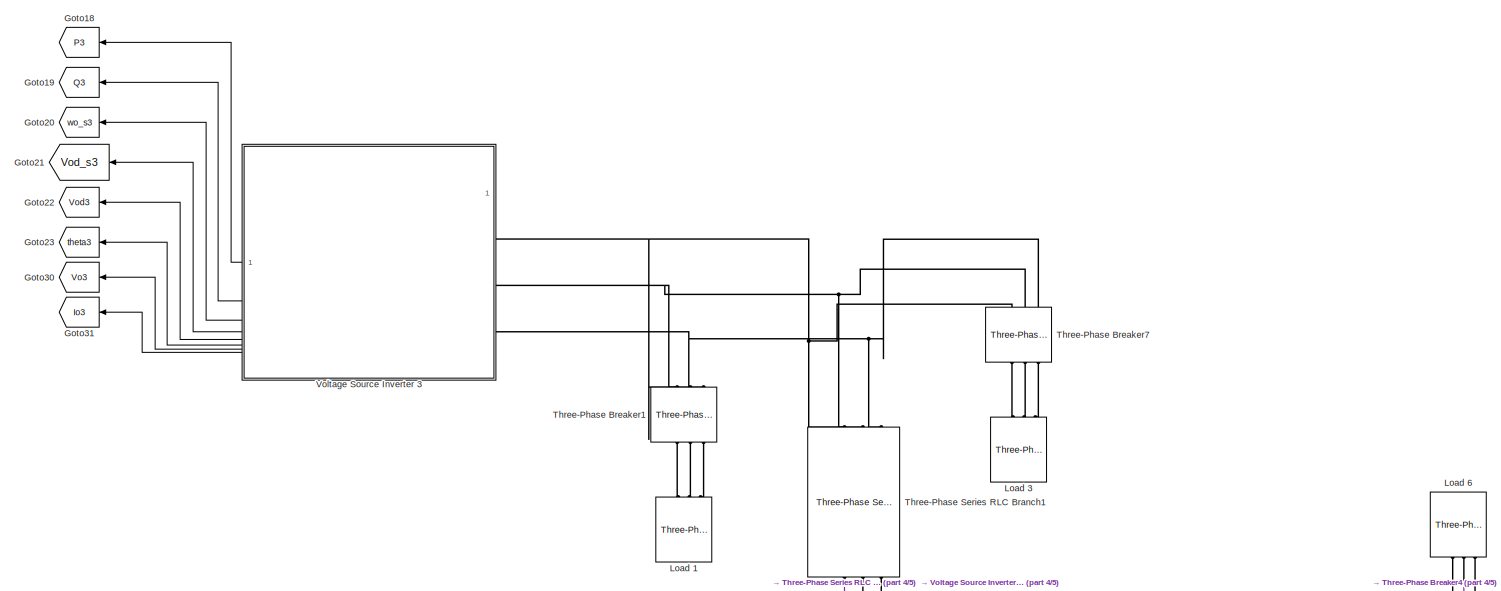
[diagram: root canvas - part 1/5, top center region]
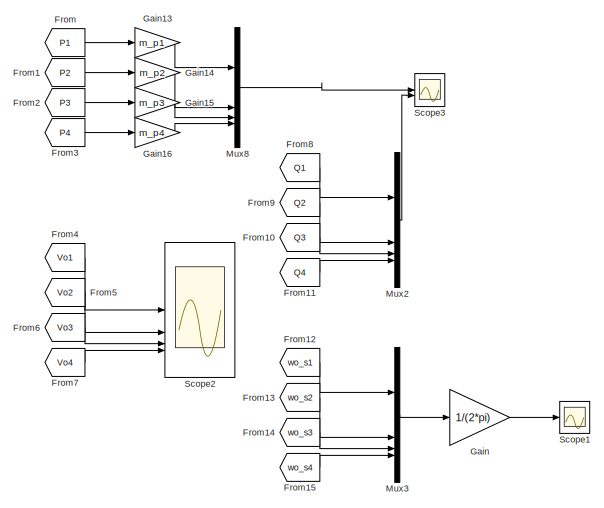
[diagram: root canvas - part 2/5, top left region]
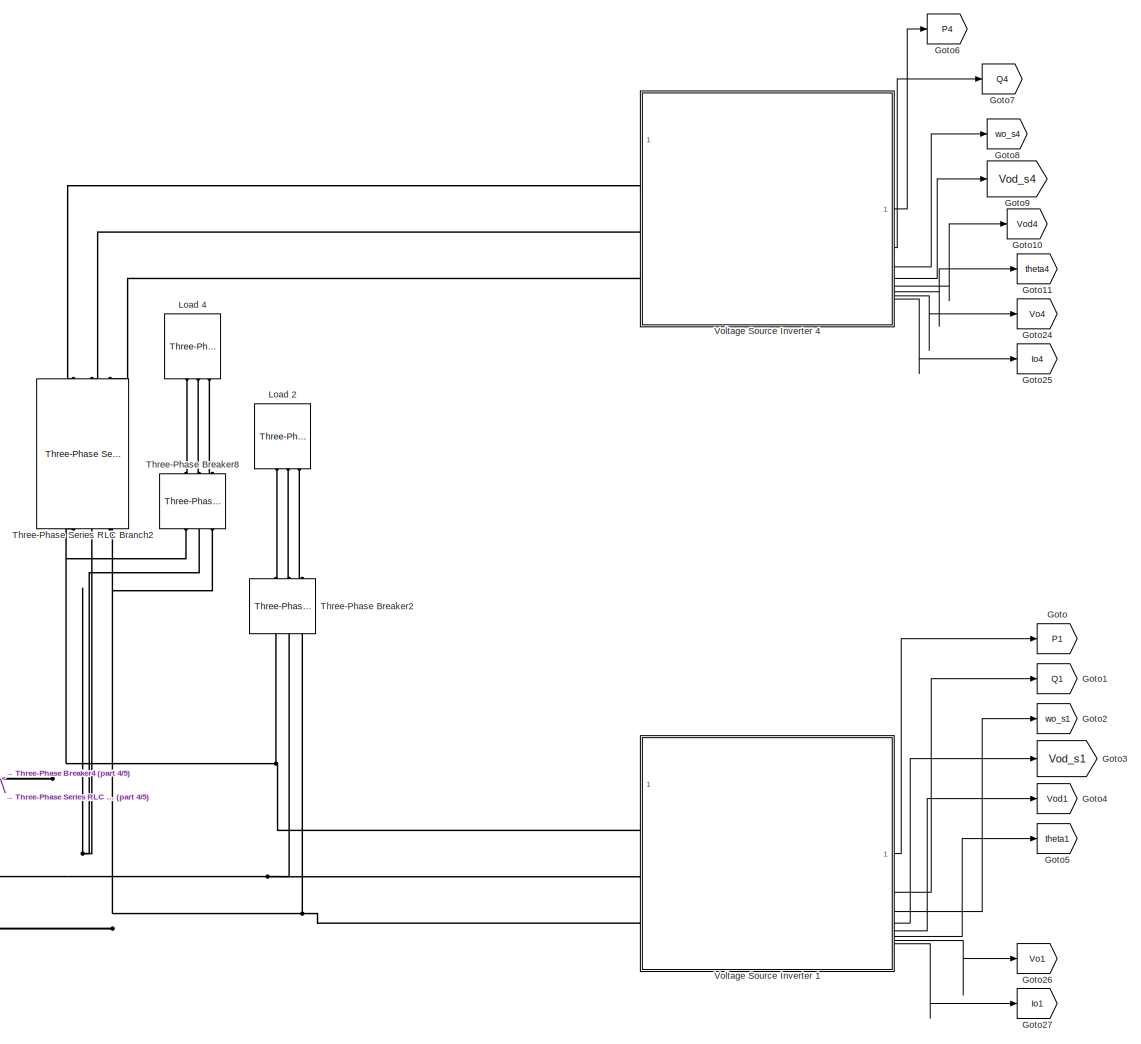
[diagram: root canvas - part 3/5, middle right region]
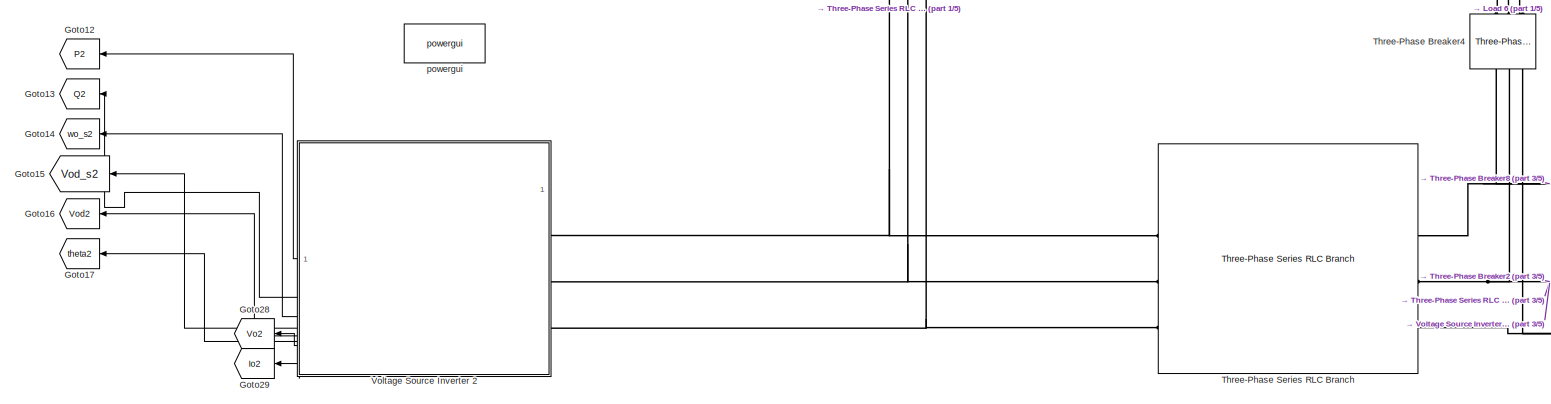
[diagram: root canvas - part 4/5, central region]
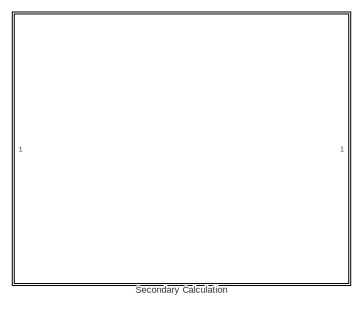
[diagram: root canvas - part 5/5, bottom center region]
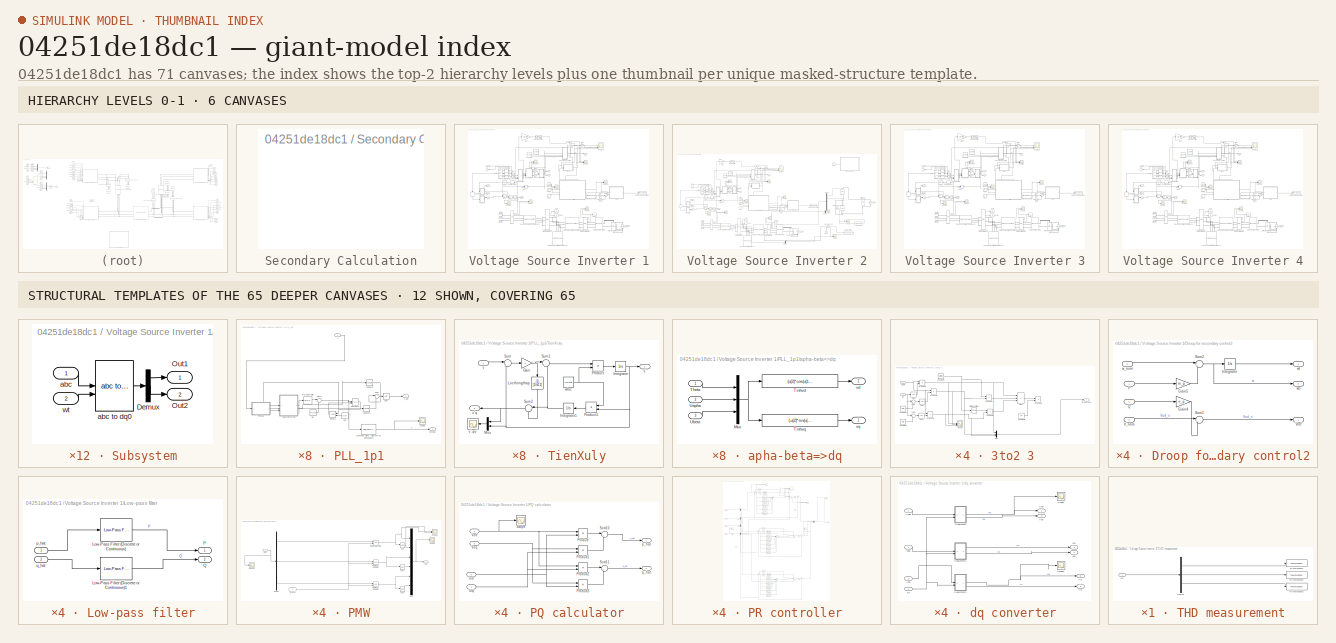
[diagram: thumbnail index - top-2 hierarchy levels (6 canvases) + 12 structural-template representatives of the remaining 65 canvases]
MODEL slx_04251de18dc1
KIND model
CONFIG AbsTol = auto
CONFIG EnableMultiTasking = off
CONFIG FixedStep = auto
CONFIG MaxStep = auto
CONFIG MinStep = auto
CONFIG RelTol = 1e-3
CONFIG SampleTimeConstraint = Unconstrained
CONFIG SolverName = VariableStepAuto
CONFIG StartTime = 0.0
CONFIG StopTime = 1.3
BLOCK [From] From
  GotoTag = P1
BLOCK [From] From1
  GotoTag = P2
BLOCK [From] From10
  GotoTag = Q3
BLOCK [From] From11
  GotoTag = Q4
BLOCK [From] From12
  GotoTag = wo_s1
BLOCK [From] From13
  GotoTag = wo_s2
BLOCK [From] From14
  GotoTag = wo_s3
BLOCK [From] From15
  GotoTag = wo_s4
BLOCK [From] From2
  GotoTag = P3
BLOCK [From] From3
  GotoTag = P4
BLOCK [From] From4
  GotoTag = Vo1
BLOCK [From] From5
  GotoTag = Vo2
BLOCK [From] From6
  GotoTag = Vo3
BLOCK [From] From7
  GotoTag = Vo4
BLOCK [From] From8
  GotoTag = Q1
BLOCK [From] From9
  GotoTag = Q2
BLOCK [Gain] Gain
  Gain = 1/(2*pi)
BLOCK [Gain] Gain13
  Gain = m_p1
BLOCK [Gain] Gain14
  Gain = m_p2
BLOCK [Gain] Gain15
  Gain = m_p3
BLOCK [Gain] Gain16
  Gain = m_p4
BLOCK [Goto] Goto
  GotoTag = P1
BLOCK [Goto] Goto1
  GotoTag = Q1
BLOCK [Goto] Goto10
  GotoTag = Vod4
BLOCK [Goto] Goto11
  GotoTag = theta4
BLOCK [Goto] Goto12
  GotoTag = P2
  NameLocation = top
BLOCK [Goto] Goto13
  GotoTag = Q2
  NameLocation = top
BLOCK [Goto] Goto14
  GotoTag = wo_s2
  NameLocation = top
BLOCK [Goto] Goto15
  GotoTag = Vod_s2
  NameLocation = top
BLOCK [Goto] Goto16
  GotoTag = Vod2
  NameLocation = top
BLOCK [Goto] Goto17
  GotoTag = theta2
  NameLocation = top
BLOCK [Goto] Goto18
  GotoTag = P3
  NameLocation = top
BLOCK [Goto] Goto19
  GotoTag = Q3
  NameLocation = top
BLOCK [Goto] Goto2
  GotoTag = wo_s1
BLOCK [Goto] Goto20
  GotoTag = wo_s3
  NameLocation = top
BLOCK [Goto] Goto21
  GotoTag = Vod_s3
  NameLocation = top
BLOCK [Goto] Goto22
  GotoTag = Vod3
  NameLocation = top
BLOCK [Goto] Goto23
  GotoTag = theta3
  NameLocation = top
BLOCK [Goto] Goto24
  GotoTag = Vo4
BLOCK [Goto] Goto25
  GotoTag = Io4
BLOCK [Goto] Goto26
  GotoTag = Vo1
BLOCK [Goto] Goto27
  GotoTag = Io1
BLOCK [Goto] Goto28
  GotoTag = Vo2
  NameLocation = top
BLOCK [Goto] Goto29
  GotoTag = Io2
  NameLocation = top
BLOCK [Goto] Goto3
  GotoTag = Vod_s1
BLOCK [Goto] Goto30
  GotoTag = Vo3
  NameLocation = top
BLOCK [Goto] Goto31
  GotoTag = Io3
  NameLocation = top
BLOCK [Goto] Goto4
  GotoTag = Vod1
BLOCK [Goto] Goto5
  GotoTag = theta1
BLOCK [Goto] Goto6
  GotoTag = P4
BLOCK [Goto] Goto7
  GotoTag = Q4
BLOCK [Goto] Goto8
  GotoTag = wo_s4
BLOCK [Goto] Goto9
  GotoTag = Vod_s4
BLOCK [Reference] Load 1  REF=spsThreePhaseSeriesRLCLoadLib/Three-Phase
Series RLC Load
  AttributesFormatString = \n
  NameLocation = right
  SourceBlock = spsThreePhaseSeriesRLCLoadLib/Three-Phase\nSeries RLC Load
  SourceType = Three-Phase Series RLC Load
BLOCK [Reference] Load 2  REF=spsThreePhaseSeriesRLCLoadLib/Three-Phase
Series RLC Load
  AttributesFormatString = \n
  NameLocation = right
  SourceBlock = spsThreePhaseSeriesRLCLoadLib/Three-Phase\nSeries RLC Load
  SourceType = Three-Phase Series RLC Load
BLOCK [Reference] Load 3  REF=spsThreePhaseSeriesRLCLoadLib/Three-Phase
Series RLC Load
  AttributesFormatString = \n
  NameLocation = right
  SourceBlock = spsThreePhaseSeriesRLCLoadLib/Three-Phase\nSeries RLC Load
  SourceType = Three-Phase Series RLC Load
BLOCK [Reference] Load 4  REF=spsThreePhaseSeriesRLCLoadLib/Three-Phase
Series RLC Load
  AttributesFormatString = \n
  NameLocation = right
  SourceBlock = spsThreePhaseSeriesRLCLoadLib/Three-Phase\nSeries RLC Load
  SourceType = Three-Phase Series RLC Load
BLOCK [Reference] Load 6  REF=spsThreePhaseSeriesRLCLoadLib/Three-Phase
Series RLC Load
  AttributesFormatString = \n
  NameLocation = right
  SourceBlock = spsThreePhaseSeriesRLCLoadLib/Three-Phase\nSeries RLC Load
  SourceType = Three-Phase Series RLC Load
BLOCK [Mux] Mux2
  DisplayOption = bar
BLOCK [Mux] Mux3
  DisplayOption = bar
BLOCK [Mux] Mux8
  DisplayOption = bar
BLOCK [Scope] Scope1
  Floating = off
  NumInputPorts = 1
  ScopeSpecificationString = Simulink.scopes.TimeScopeBlockCfg('CurrentConfiguration', extmgr.ConfigurationSet(extmgr.Configuration('Core','General UI',true),extmgr.Configuration('Core','Source UI',true),extmgr.Configuration('Sources','WiredSimulink',true,'DataLoggingVariableName','ScopeData2'),extmgr.Configuration('Visuals','Time Domain',true,'SerializedDisplays',{struct('MinYLimReal','44.59117','MaxYLimReal','50.60098','YLa...<+2032ch>
BLOCK [Scope] Scope2
  Floating = off
  NumInputPorts = 4
  ScopeSpecificationString = Simulink.scopes.TimeScopeBlockCfg('CurrentConfiguration', extmgr.ConfigurationSet(extmgr.Configuration('Core','General UI',true),extmgr.Configuration('Core','Source UI',true),extmgr.Configuration('Sources','WiredSimulink',true,'DataLoggingVariableName','ScopeData3'),extmgr.Configuration('Visuals','Time Domain',true,'SerializedDisplays',{struct('MinYLimReal','-72.95531','MaxYLimReal','73.26588','YL...<+3902ch>
BLOCK [Scope] Scope3
  Floating = off
  NumInputPorts = 2
  ScopeSpecificationString = Simulink.scopes.TimeScopeBlockCfg('CurrentConfiguration', extmgr.ConfigurationSet(extmgr.Configuration('Core','General UI',true),extmgr.Configuration('Core','Source UI',true),extmgr.Configuration('Sources','WiredSimulink',true,'DataLoggingVariableName','ScopeData4'),extmgr.Configuration('Visuals','Time Domain',true,'SerializedDisplays',{struct('MinYLimReal','-1.80488','MaxYLimReal','17.37157','YLa...<+2719ch>
BLOCK [SubSystem] Secondary Calculation
BLOCK [Reference] Three-Phase Breaker1  REF=spsThreePhaseBreakerLib/Three-Phase Breaker
  NameLocation = right
  SourceBlock = spsThreePhaseBreakerLib/Three-Phase Breaker
  SourceType = Three-Phase Breaker
BLOCK [Reference] Three-Phase Breaker2  REF=spsThreePhaseBreakerLib/Three-Phase Breaker
  NameLocation = right
  SourceBlock = spsThreePhaseBreakerLib/Three-Phase Breaker
  SourceType = Three-Phase Breaker
BLOCK [Reference] Three-Phase Breaker4  REF=spsThreePhaseBreakerLib/Three-Phase Breaker
  NameLocation = right
  SourceBlock = spsThreePhaseBreakerLib/Three-Phase Breaker
  SourceType = Three-Phase Breaker
BLOCK [Reference] Three-Phase Breaker7  REF=spsThreePhaseBreakerLib/Three-Phase Breaker
  NameLocation = right
  SourceBlock = spsThreePhaseBreakerLib/Three-Phase Breaker
  SourceType = Three-Phase Breaker
BLOCK [Reference] Three-Phase Breaker8  REF=spsThreePhaseBreakerLib/Three-Phase Breaker
  NameLocation = right
  SourceBlock = spsThreePhaseBreakerLib/Three-Phase Breaker
  SourceType = Three-Phase Breaker
BLOCK [Reference] Three-Phase Series RLC Branch  REF=spsThreePhaseSeriesRLCBranchLib/Three-Phase
Series RLC Branch
  AttributesFormatString = \n
  SourceBlock = spsThreePhaseSeriesRLCBranchLib/Three-Phase\nSeries RLC Branch
  SourceType = Three-Phase Series RLC Branch
BLOCK [Reference] Three-Phase Series RLC Branch1  REF=spsThreePhaseSeriesRLCBranchLib/Three-Phase
Series RLC Branch
  AttributesFormatString = \n
  NameLocation = left
  SourceBlock = spsThreePhaseSeriesRLCBranchLib/Three-Phase\nSeries RLC Branch
  SourceType = Three-Phase Series RLC Branch
BLOCK [Reference] Three-Phase Series RLC Branch2  REF=spsThreePhaseSeriesRLCBranchLib/Three-Phase
Series RLC Branch
  AttributesFormatString = \n
  NameLocation = left
  SourceBlock = spsThreePhaseSeriesRLCBranchLib/Three-Phase\nSeries RLC Branch
  SourceType = Three-Phase Series RLC Branch
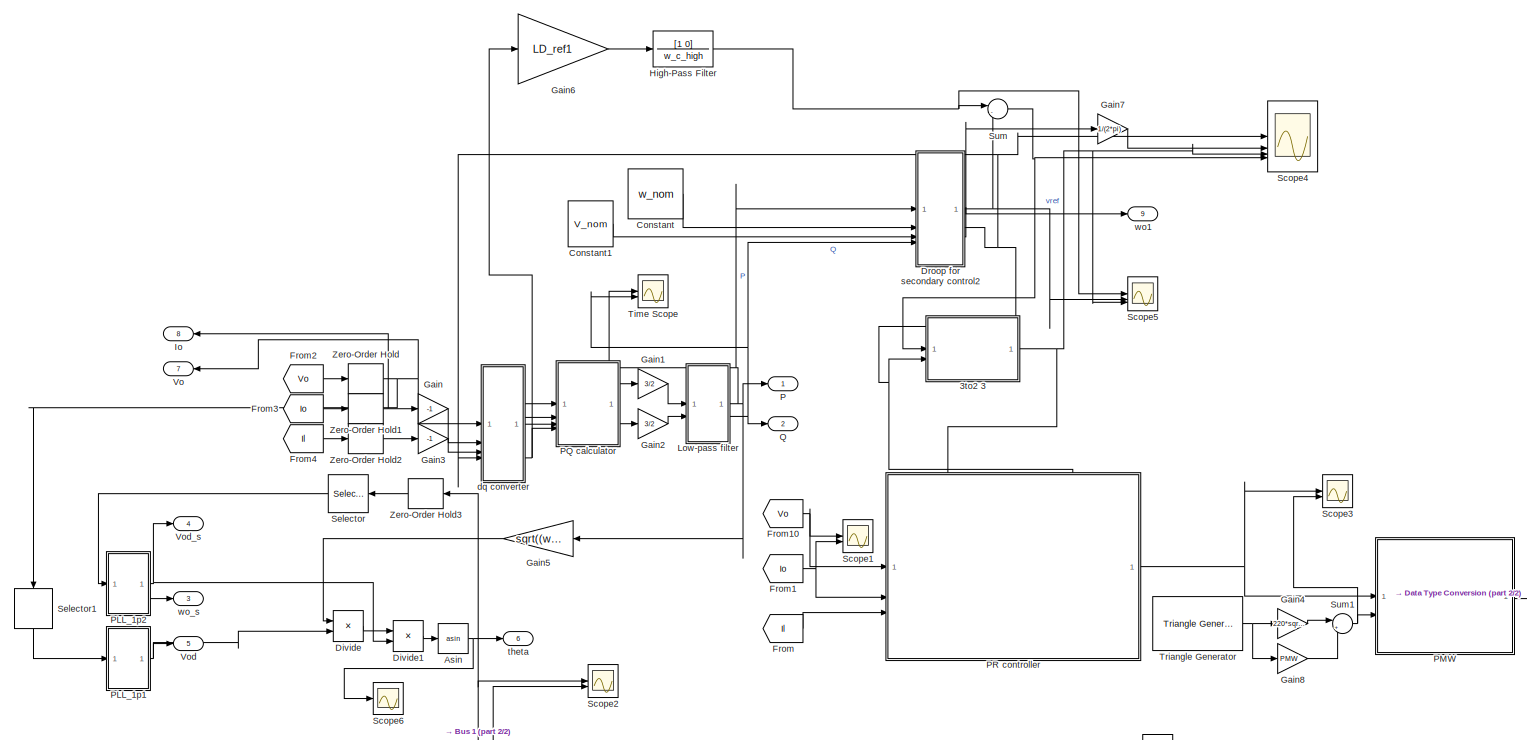
[diagram: Voltage Source Inverter 1 - part 1/2, full width, middle band]
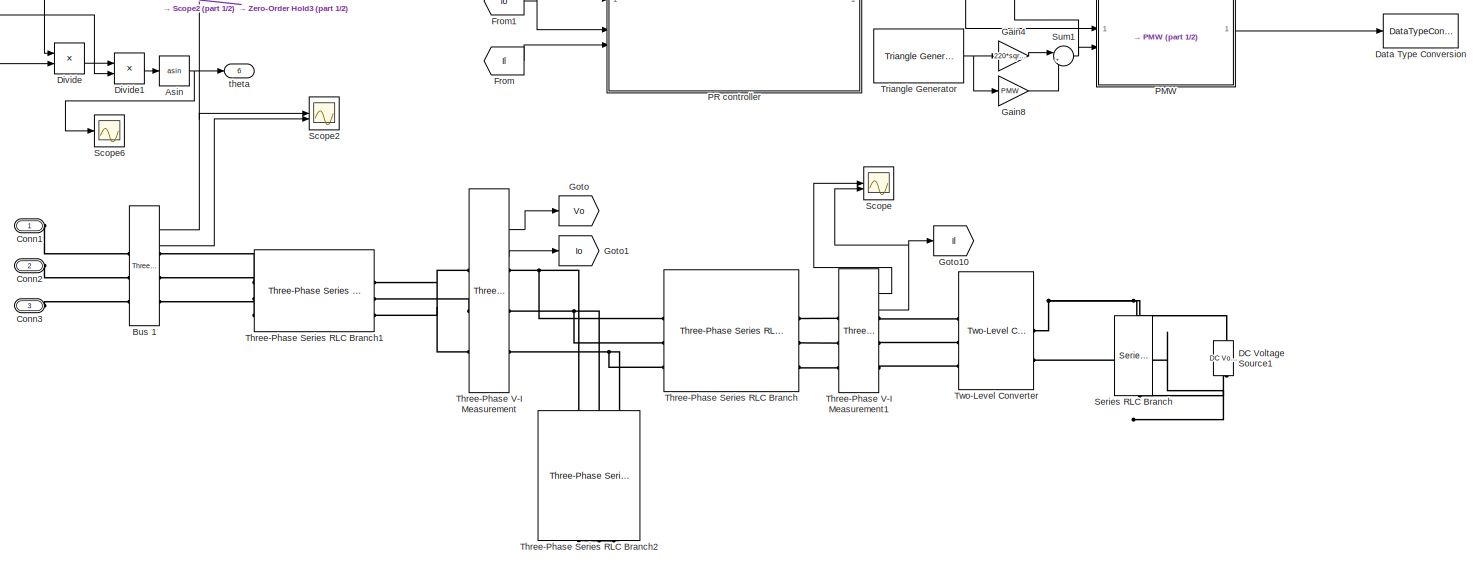
[diagram: Voltage Source Inverter 1 - part 2/2, full width, bottom band]
BLOCK [SubSystem] Voltage Source Inverter 1
BLOCK [SubSystem] Voltage Source Inverter 1/3to2 3
BLOCK [Sum] Voltage Source Inverter 1/3to2 3/Add1
  IconShape = rectangular
  Inputs = +++
BLOCK [Constant] Voltage Source Inverter 1/3to2 3/Constant2
  Value = 2*pi/3
BLOCK [Constant] Voltage Source Inverter 1/3to2 3/Constant3
  Value = 4*pi/3
BLOCK [Constant] Voltage Source Inverter 1/3to2 3/Constant4
  Value = exp(i*2*pi/3)
BLOCK [Constant] Voltage Source Inverter 1/3to2 3/Constant5
  Value = 2/3
BLOCK [Trigonometry] Voltage Source Inverter 1/3to2 3/Cos
  Operator = cos
BLOCK [Trigonometry] Voltage Source Inverter 1/3to2 3/Cos1
  Operator = cos
BLOCK [Trigonometry] Voltage Source Inverter 1/3to2 3/Cos2
  Operator = cos
BLOCK [Math] Voltage Source Inverter 1/3to2 3/Math Function1
  Operator = square
  SignedPower = on
BLOCK [Mux] Voltage Source Inverter 1/3to2 3/Mux
  DisplayOption = bar
  Inputs = 3
BLOCK [Product] Voltage Source Inverter 1/3to2 3/Product3
  RndMeth = Zero
BLOCK [Product] Voltage Source Inverter 1/3to2 3/Product4
  RndMeth = Zero
BLOCK [Product] Voltage Source Inverter 1/3to2 3/Product5
  RndMeth = Zero
BLOCK [Product] Voltage Source Inverter 1/3to2 3/Product6
  RndMeth = Zero
BLOCK [Product] Voltage Source Inverter 1/3to2 3/Product7
  RndMeth = Zero
BLOCK [Product] Voltage Source Inverter 1/3to2 3/Product8
  RndMeth = Zero
BLOCK [Scope] Voltage Source Inverter 1/3to2 3/Scope
  Floating = off
  NumInputPorts = 3
  ScopeSpecificationString = Simulink.scopes.TimeScopeBlockCfg('CurrentConfiguration', extmgr.ConfigurationSet(extmgr.Configuration('Core','General UI',true),extmgr.Configuration('Core','Source UI',true),extmgr.Configuration('Sources','WiredSimulink',true,'DataLoggingVariableName','ScopeData4'),extmgr.Configuration('Visuals','Time Domain',true,'SerializedDisplays',{struct('MinYLimReal','-388.90831','MaxYLimReal','388.90868','...<+2070ch>  <repeated x4 — deduplicated; at blocks: Scope>
BLOCK [Sum] Voltage Source Inverter 1/3to2 3/Sum
  Inputs = |++
BLOCK [Sum] Voltage Source Inverter 1/3to2 3/Sum1
  Inputs = |++
BLOCK [Inport] Voltage Source Inverter 1/3to2 3/single 
BLOCK [Outport] Voltage Source Inverter 1/3to2 3/threePhase
  VectorParamsAs1DForOutWhenUnconnected = off
BLOCK [Inport] Voltage Source Inverter 1/3to2 3/wt 
  Port = 2
BLOCK [Trigonometry] Voltage Source Inverter 1/Asin
  Operator = asin
BLOCK [Reference] Voltage Source Inverter 1/Bus 1  REF=spsThreePhaseVIMeasurementLib/Three-Phase
V-I Measurement
  SourceBlock = spsThreePhaseVIMeasurementLib/Three-Phase\nV-I Measurement
  SourceType = Three-Phase VI Measurement
BLOCK [PMIOPort] Voltage Source Inverter 1/Conn1
  Side = Left
BLOCK [PMIOPort] Voltage Source Inverter 1/Conn2
  Port = 2
  Side = Left
BLOCK [PMIOPort] Voltage Source Inverter 1/Conn3
  Port = 3
  Side = Left
BLOCK [Constant] Voltage Source Inverter 1/Constant
  Value = w_nom
BLOCK [Constant] Voltage Source Inverter 1/Constant1
  Value = V_nom
BLOCK [Reference] Voltage Source Inverter 1/DC Voltage Source1  REF=spsDCVoltageSourceLib/DC Voltage Source
  NameLocation = right
  SourceBlock = spsDCVoltageSourceLib/DC Voltage Source
  SourceType = DC Voltage Source
BLOCK [DataTypeConversion] Voltage Source Inverter 1/Data Type Conversion
  OutDataTypeStr = int8
  RndMeth = Floor
  SaturateOnIntegerOverflow = off
BLOCK [Product] Voltage Source Inverter 1/Divide
  Inputs = */
BLOCK [Product] Voltage Source Inverter 1/Divide1
  Inputs = */
BLOCK [SubSystem] Voltage Source Inverter 1/Droop for secondary control2
BLOCK [Gain] Voltage Source Inverter 1/Droop for secondary control2/Gain4
  Gain = n_q
BLOCK [Gain] Voltage Source Inverter 1/Droop for secondary control2/Gain5
  Gain = m_p
BLOCK [Integrator] Voltage Source Inverter 1/Droop for secondary control2/Integrator
  WrapState = on
  WrappedStateLowerValue = 0
  WrappedStateUpperValue = 2*pi
BLOCK [Inport] Voltage Source Inverter 1/Droop for secondary control2/P
BLOCK [Inport] Voltage Source Inverter 1/Droop for secondary control2/Q
  Port = 4
BLOCK [Sum] Voltage Source Inverter 1/Droop for secondary control2/Sum1
  Inputs = |+-
BLOCK [Sum] Voltage Source Inverter 1/Droop for secondary control2/Sum2
  Inputs = |+-
BLOCK [Inport] Voltage Source Inverter 1/Droop for secondary control2/V_nom
  Port = 3
BLOCK [Outport] Voltage Source Inverter 1/Droop for secondary control2/Vref
BLOCK [Inport] Voltage Source Inverter 1/Droop for secondary control2/w_nom
  Port = 2
BLOCK [Outport] Voltage Source Inverter 1/Droop for secondary control2/wo
  Port = 3
BLOCK [Outport] Voltage Source Inverter 1/Droop for secondary control2/wt
  Port = 2
BLOCK [From] Voltage Source Inverter 1/From
  GotoTag = Il
BLOCK [From] Voltage Source Inverter 1/From1
  GotoTag = Io
BLOCK [From] Voltage Source Inverter 1/From10
  GotoTag = Vo
BLOCK [From] Voltage Source Inverter 1/From2
  GotoTag = Vo
BLOCK [From] Voltage Source Inverter 1/From3
  GotoTag = Io
BLOCK [From] Voltage Source Inverter 1/From4
  GotoTag = Il
BLOCK [Gain] Voltage Source Inverter 1/Gain
  Gain = -1
BLOCK [Gain] Voltage Source Inverter 1/Gain1
  Gain = 3/2
BLOCK [Gain] Voltage Source Inverter 1/Gain2
  Gain = 3/2
BLOCK [Gain] Voltage Source Inverter 1/Gain3
  Gain = -1
BLOCK [Gain] Voltage Source Inverter 1/Gain4
  Commented = on
  Gain = 220*sqrt(2)
BLOCK [Gain] Voltage Source Inverter 1/Gain5
  Gain = sqrt((w_nom*L_in1)^2+R_in1^2)
  NameLocation = top
BLOCK [Gain] Voltage Source Inverter 1/Gain6
  Gain = LD_ref1
BLOCK [Gain] Voltage Source Inverter 1/Gain7
  Gain = 1/(2*pi)
BLOCK [Gain] Voltage Source Inverter 1/Gain8
  Gain = PMW
BLOCK [Goto] Voltage Source Inverter 1/Goto
  GotoTag = Vo
BLOCK [Goto] Voltage Source Inverter 1/Goto1
  GotoTag = Io
BLOCK [Goto] Voltage Source Inverter 1/Goto10
  GotoTag = Il
BLOCK [TransferFcn] Voltage Source Inverter 1/High-Pass Filter
  Denominator = w_c_high
  Numerator = [1 0]
BLOCK [Outport] Voltage Source Inverter 1/Io
  NameLocation = top
  Port = 8
BLOCK [SubSystem] Voltage Source Inverter 1/Low-pass filter
BLOCK [Reference] Voltage Source Inverter 1/Low-pass filter/Low-Pass Filter (Discrete or Continuous)  REF=eeGeneralControl/Low-Pass Filter
(Discrete or Continuous)
  SourceBlock = eeGeneralControl/Low-Pass Filter\n(Discrete or Continuous)
  SourceType = Low-Pass Filter (Discrete or Continuous)
BLOCK [Reference] Voltage Source Inverter 1/Low-pass filter/Low-Pass Filter (Discrete or Continuous)1  REF=eeGeneralControl/Low-Pass Filter
(Discrete or Continuous)
  SourceBlock = eeGeneralControl/Low-Pass Filter\n(Discrete or Continuous)
  SourceType = Low-Pass Filter (Discrete or Continuous)
BLOCK [Outport] Voltage Source Inverter 1/Low-pass filter/P
BLOCK [Outport] Voltage Source Inverter 1/Low-pass filter/Q
  Port = 2
BLOCK [Inport] Voltage Source Inverter 1/Low-pass filter/p_hat
BLOCK [Inport] Voltage Source Inverter 1/Low-pass filter/q_hat
  Port = 2
BLOCK [Outport] Voltage Source Inverter 1/P
BLOCK [SubSystem] Voltage Source Inverter 1/PLL_1p1
  MinAlgLoopOccurrences = on
  SystemSampleTime = 10*Ts
BLOCK [Constant] Voltage Source Inverter 1/PLL_1p1/2pi
  Value = 2*pi
BLOCK [Reference] Voltage Source Inverter 1/PLL_1p1/Low-Pass Filter (Discrete or Continuous)  REF=eeGeneralControl/Low-Pass Filter
(Discrete or Continuous)
  SourceBlock = eeGeneralControl/Low-Pass Filter\n(Discrete or Continuous)
  SourceType = Low-Pass Filter (Discrete or Continuous)
BLOCK [Reference] Voltage Source Inverter 1/PLL_1p1/PID Controller  REF=slpidlib/PID Controller
  SourceBlock = slpidlib/PID Controller
  SourceType = PID 1dof
BLOCK [RelationalOperator] Voltage Source Inverter 1/PLL_1p1/Reset1
  InputSameDT = off
  OutDataTypeStr = boolean
BLOCK [Scope] Voltage Source Inverter 1/PLL_1p1/Scope
  Floating = off
  NumInputPorts = 1
  ScopeSpecificationString = Simulink.scopes.TimeScopeBlockCfg('CurrentConfiguration', extmgr.ConfigurationSet(extmgr.Configuration('Core','General UI',true),extmgr.Configuration('Core','Source UI',true),extmgr.Configuration('Sources','WiredSimulink',true,'DataLoggingVariableName','ScopeData1'),extmgr.Configuration('Visuals','Time Domain',true,'SerializedDisplays',{struct('MinYLimReal','314.04897','MaxYLimReal','314.19081','Y...<+1449ch>  <repeated x8 — deduplicated; at blocks: Scope>
BLOCK [Sqrt] Voltage Source Inverter 1/PLL_1p1/Sqrt
BLOCK [Math] Voltage Source Inverter 1/PLL_1p1/Square
  Operator = square
BLOCK [Math] Voltage Source Inverter 1/PLL_1p1/Square1
  Operator = square
BLOCK [Sum] Voltage Source Inverter 1/PLL_1p1/Sum
  Inputs = |++
BLOCK [Sum] Voltage Source Inverter 1/PLL_1p1/Sum1
  Inputs = |++
BLOCK [SubSystem] Voltage Source Inverter 1/PLL_1p1/TienXuly
BLOCK [Gain] Voltage Source Inverter 1/PLL_1p1/TienXuly/Gain
  Gain = k
BLOCK [Integrator] Voltage Source Inverter 1/PLL_1p1/TienXuly/Integrator
  NameLocation = top
BLOCK [Integrator] Voltage Source Inverter 1/PLL_1p1/TienXuly/Integrator1
BLOCK [TransferFcn] Voltage Source Inverter 1/PLL_1p1/TienXuly/Locthongthap
  Denominator = [1/fc2 1]
  NameLocation = left
BLOCK [Mux] Voltage Source Inverter 1/PLL_1p1/TienXuly/Mux
  DisplayOption = bar
  Inputs = 2
  NameLocation = top
BLOCK [Product] Voltage Source Inverter 1/PLL_1p1/TienXuly/Product
  RndMeth = Zero
BLOCK [Product] Voltage Source Inverter 1/PLL_1p1/TienXuly/Product1
  NameLocation = top
  RndMeth = Zero
BLOCK [Sum] Voltage Source Inverter 1/PLL_1p1/TienXuly/Sum
  Inputs = |+-
BLOCK [Sum] Voltage Source Inverter 1/PLL_1p1/TienXuly/Sum1
  Inputs = |+-
BLOCK [Sum] Voltage Source Inverter 1/PLL_1p1/TienXuly/Sum2
  Inputs = |+-
  NameLocation = top
BLOCK [Inport] Voltage Source Inverter 1/PLL_1p1/TienXuly/v
BLOCK [Outport] Voltage Source Inverter 1/PLL_1p1/TienXuly/v'
  VectorParamsAs1DForOutWhenUnconnected = off
BLOCK [Scope] Voltage Source Inverter 1/PLL_1p1/TienXuly/v'-qv'
  Floating = off
  NumInputPorts = 1
  ScopeSpecificationString = Simulink.scopes.TimeScopeBlockCfg('CurrentConfiguration', extmgr.ConfigurationSet(extmgr.Configuration('Core','General UI',true),extmgr.Configuration('Core','Source UI',true),extmgr.Configuration('Sources','WiredSimulink',true,'DataLoggingVariableName','ScopeData2','DataLoggingSaveFormat','StructureWithTime','DataLoggingLimitDataPoints',true,'DataLoggingDecimation','1','DataLoggingDecimateData',tr...<+1753ch>  <repeated x8 — deduplicated; at blocks: v'-qv'>
BLOCK [Outport] Voltage Source Inverter 1/PLL_1p1/TienXuly/v'q
  NameLocation = top
  Port = 2
  VectorParamsAs1DForOutWhenUnconnected = off
BLOCK [Constant] Voltage Source Inverter 1/PLL_1p1/TienXuly/wloc
  Value = fc1*2*pi
BLOCK [Integrator] Voltage Source Inverter 1/PLL_1p1/Tinhtheta
  ExternalReset = rising
  UpperSaturationLimit = 2*pi
BLOCK [SubSystem] Voltage Source Inverter 1/PLL_1p1/apha-beta=>dq
BLOCK [Mux] Voltage Source Inverter 1/PLL_1p1/apha-beta=>dq/Mux
  DisplayOption = bar
  Inputs = 3
BLOCK [Inport] Voltage Source Inverter 1/PLL_1p1/apha-beta=>dq/Theta
BLOCK [Fcn] Voltage Source Inverter 1/PLL_1p1/apha-beta=>dq/Tinhvd
  Expr = (u[2]*cos(u[1])+u[3]*sin(u[1]))
BLOCK [Fcn] Voltage Source Inverter 1/PLL_1p1/apha-beta=>dq/Tinhvq
  Expr = (-u[2]*sin(u[1])+u[3]*cos(u[1]))
BLOCK [Inport] Voltage Source Inverter 1/PLL_1p1/apha-beta=>dq/Uapha
  Port = 2
BLOCK [Inport] Voltage Source Inverter 1/PLL_1p1/apha-beta=>dq/Ubeta
  Port = 3
BLOCK [Outport] Voltage Source Inverter 1/PLL_1p1/apha-beta=>dq/vd
  Port = 2
  VectorParamsAs1DForOutWhenUnconnected = off
BLOCK [Outport] Voltage Source Inverter 1/PLL_1p1/apha-beta=>dq/vq
  VectorParamsAs1DForOutWhenUnconnected = off
BLOCK [Outport] Voltage Source Inverter 1/PLL_1p1/omega
  Port = 2
BLOCK [Inport] Voltage Source Inverter 1/PLL_1p1/v
BLOCK [Outport] Voltage Source Inverter 1/PLL_1p1/v_dq
BLOCK [Constant] Voltage Source Inverter 1/PLL_1p1/wff
  Value = 50*2*pi
BLOCK [SubSystem] Voltage Source Inverter 1/PLL_1p2
  MinAlgLoopOccurrences = on
  SystemSampleTime = 10*Ts
BLOCK [Constant] Voltage Source Inverter 1/PLL_1p2/2pi
  Value = 2*pi
BLOCK [Reference] Voltage Source Inverter 1/PLL_1p2/Low-Pass Filter (Discrete or Continuous)  REF=eeGeneralControl/Low-Pass Filter
(Discrete or Continuous)
  SourceBlock = eeGeneralControl/Low-Pass Filter\n(Discrete or Continuous)
  SourceType = Low-Pass Filter (Discrete or Continuous)
BLOCK [Reference] Voltage Source Inverter 1/PLL_1p2/PID Controller  REF=slpidlib/PID Controller
  SourceBlock = slpidlib/PID Controller
  SourceType = PID 1dof
BLOCK [RelationalOperator] Voltage Source Inverter 1/PLL_1p2/Reset1
  InputSameDT = off
  OutDataTypeStr = boolean
BLOCK [Scope] Voltage Source Inverter 1/PLL_1p2/Scope
  Floating = off
  NumInputPorts = 1
BLOCK [Sqrt] Voltage Source Inverter 1/PLL_1p2/Sqrt
BLOCK [Math] Voltage Source Inverter 1/PLL_1p2/Square
  Operator = square
BLOCK [Math] Voltage Source Inverter 1/PLL_1p2/Square1
  Operator = square
BLOCK [Sum] Voltage Source Inverter 1/PLL_1p2/Sum
  Inputs = |++
BLOCK [Sum] Voltage Source Inverter 1/PLL_1p2/Sum1
  Inputs = |++
BLOCK [SubSystem] Voltage Source Inverter 1/PLL_1p2/TienXuly
BLOCK [Gain] Voltage Source Inverter 1/PLL_1p2/TienXuly/Gain
  Gain = k
BLOCK [Integrator] Voltage Source Inverter 1/PLL_1p2/TienXuly/Integrator
  NameLocation = top
BLOCK [Integrator] Voltage Source Inverter 1/PLL_1p2/TienXuly/Integrator1
BLOCK [TransferFcn] Voltage Source Inverter 1/PLL_1p2/TienXuly/Locthongthap
  Denominator = [1/fc2 1]
  NameLocation = left
BLOCK [Mux] Voltage Source Inverter 1/PLL_1p2/TienXuly/Mux
  DisplayOption = bar
  Inputs = 2
  NameLocation = top
BLOCK [Product] Voltage Source Inverter 1/PLL_1p2/TienXuly/Product
  RndMeth = Zero
BLOCK [Product] Voltage Source Inverter 1/PLL_1p2/TienXuly/Product1
  NameLocation = top
  RndMeth = Zero
BLOCK [Sum] Voltage Source Inverter 1/PLL_1p2/TienXuly/Sum
  Inputs = |+-
BLOCK [Sum] Voltage Source Inverter 1/PLL_1p2/TienXuly/Sum1
  Inputs = |+-
BLOCK [Sum] Voltage Source Inverter 1/PLL_1p2/TienXuly/Sum2
  Inputs = |+-
  NameLocation = top
BLOCK [Inport] Voltage Source Inverter 1/PLL_1p2/TienXuly/v
BLOCK [Outport] Voltage Source Inverter 1/PLL_1p2/TienXuly/v'
  VectorParamsAs1DForOutWhenUnconnected = off
BLOCK [Scope] Voltage Source Inverter 1/PLL_1p2/TienXuly/v'-qv'
  Floating = off
  NumInputPorts = 1
BLOCK [Outport] Voltage Source Inverter 1/PLL_1p2/TienXuly/v'q
  NameLocation = top
  Port = 2
  VectorParamsAs1DForOutWhenUnconnected = off
BLOCK [Constant] Voltage Source Inverter 1/PLL_1p2/TienXuly/wloc
  Value = fc1*2*pi
BLOCK [Integrator] Voltage Source Inverter 1/PLL_1p2/Tinhtheta
  ExternalReset = rising
  UpperSaturationLimit = 2*pi
BLOCK [SubSystem] Voltage Source Inverter 1/PLL_1p2/apha-beta=>dq
BLOCK [Mux] Voltage Source Inverter 1/PLL_1p2/apha-beta=>dq/Mux
  DisplayOption = bar
  Inputs = 3
BLOCK [Inport] Voltage Source Inverter 1/PLL_1p2/apha-beta=>dq/Theta
BLOCK [Fcn] Voltage Source Inverter 1/PLL_1p2/apha-beta=>dq/Tinhvd
  Expr = (u[2]*cos(u[1])+u[3]*sin(u[1]))
BLOCK [Fcn] Voltage Source Inverter 1/PLL_1p2/apha-beta=>dq/Tinhvq
  Expr = (-u[2]*sin(u[1])+u[3]*cos(u[1]))
BLOCK [Inport] Voltage Source Inverter 1/PLL_1p2/apha-beta=>dq/Uapha
  Port = 2
BLOCK [Inport] Voltage Source Inverter 1/PLL_1p2/apha-beta=>dq/Ubeta
  Port = 3
BLOCK [Outport] Voltage Source Inverter 1/PLL_1p2/apha-beta=>dq/vd
  Port = 2
  VectorParamsAs1DForOutWhenUnconnected = off
BLOCK [Outport] Voltage Source Inverter 1/PLL_1p2/apha-beta=>dq/vq
  VectorParamsAs1DForOutWhenUnconnected = off
BLOCK [Outport] Voltage Source Inverter 1/PLL_1p2/omega
  Port = 2
BLOCK [Inport] Voltage Source Inverter 1/PLL_1p2/v
BLOCK [Outport] Voltage Source Inverter 1/PLL_1p2/v_dq
BLOCK [Constant] Voltage Source Inverter 1/PLL_1p2/wff
  Value = 50*2*pi
BLOCK [SubSystem] Voltage Source Inverter 1/PMW
BLOCK [Demux] Voltage Source Inverter 1/PMW/Demux
  Outputs = 3
BLOCK [Mux] Voltage Source Inverter 1/PMW/Mux
  DisplayOption = bar
  Inputs = 6
BLOCK [Logic] Voltage Source Inverter 1/PMW/NOT
  AllPortsSameDT = off
  Operator = NOT
  OutDataTypeStr = boolean
BLOCK [Logic] Voltage Source Inverter 1/PMW/NOT1
  AllPortsSameDT = off
  Operator = NOT
  OutDataTypeStr = boolean
BLOCK [Logic] Voltage Source Inverter 1/PMW/NOT2
  AllPortsSameDT = off
  Operator = NOT
  OutDataTypeStr = boolean
BLOCK [Outport] Voltage Source Inverter 1/PMW/Out1
BLOCK [Inport] Voltage Source Inverter 1/PMW/REF
BLOCK [RelationalOperator] Voltage Source Inverter 1/PMW/Relational Operator
  InputSameDT = off
  OutDataTypeStr = boolean
  RndMeth = Simplest
BLOCK [RelationalOperator] Voltage Source Inverter 1/PMW/Relational Operator1
  InputSameDT = off
  OutDataTypeStr = boolean
  RndMeth = Simplest
BLOCK [RelationalOperator] Voltage Source Inverter 1/PMW/Relational Operator2
  InputSameDT = off
  OutDataTypeStr = boolean
  RndMeth = Simplest
BLOCK [Scope] Voltage Source Inverter 1/PMW/Scope
  Floating = off
  NumInputPorts = 1
  ScopeSpecificationString = Simulink.scopes.TimeScopeBlockCfg('CurrentConfiguration', extmgr.ConfigurationSet(extmgr.Configuration('Core','General UI',true),extmgr.Configuration('Core','Source UI',true),extmgr.Configuration('Sources','WiredSimulink',true,'DataLoggingVariableName','ScopeData6'),extmgr.Configuration('Visuals','Time Domain',true,'SerializedDisplays',{struct('MinYLimReal','-0.125','MaxYLimReal','1.125','YLabelRe...<+1941ch>  <repeated x4 — deduplicated; at blocks: Scope>
BLOCK [Scope] Voltage Source Inverter 1/PMW/Scope1
  Floating = off
  NumInputPorts = 1
  ScopeSpecificationString = Simulink.scopes.TimeScopeBlockCfg('CurrentConfiguration', extmgr.ConfigurationSet(extmgr.Configuration('Core','General UI',true),extmgr.Configuration('Core','Source UI',true),extmgr.Configuration('Sources','WiredSimulink',true,'DataLoggingVariableName','ScopeData7'),extmgr.Configuration('Visuals','Time Domain',true,'SerializedDisplays',{struct('MinYLimReal','-7865.84866','MaxYLimReal','7880.10806'...<+1450ch>  <repeated x4 — deduplicated; at blocks: Scope1>
BLOCK [Scope] Voltage Source Inverter 1/PMW/Scope2
  Floating = off
  NumInputPorts = 2
  ScopeSpecificationString = Simulink.scopes.TimeScopeBlockCfg('CurrentConfiguration', extmgr.ConfigurationSet(extmgr.Configuration('Core','General UI',true),extmgr.Configuration('Core','Source UI',true),extmgr.Configuration('Sources','WiredSimulink',true,'DataLoggingVariableName','ScopeData8'),extmgr.Configuration('Visuals','Time Domain',true,'SerializedDisplays',{struct('MinYLimReal','-0.125','MaxYLimReal','1.125','YLabelRe...<+1442ch>  <repeated x4 — deduplicated; at blocks: Scope2>
BLOCK [Inport] Voltage Source Inverter 1/PMW/Tri_signal
  Port = 2
BLOCK [SubSystem] Voltage Source Inverter 1/PQ calculator
BLOCK [Inport] Voltage Source Inverter 1/PQ calculator/Iod
  Port = 3
BLOCK [Inport] Voltage Source Inverter 1/PQ calculator/Ioq
  Port = 4
BLOCK [Product] Voltage Source Inverter 1/PQ calculator/Product
BLOCK [Product] Voltage Source Inverter 1/PQ calculator/Product1
BLOCK [Product] Voltage Source Inverter 1/PQ calculator/Product2
BLOCK [Product] Voltage Source Inverter 1/PQ calculator/Product3
BLOCK [Scope] Voltage Source Inverter 1/PQ calculator/Scope
  Floating = off
  NumInputPorts = 1
  ScopeSpecificationString = Simulink.scopes.TimeScopeBlockCfg('CurrentConfiguration', extmgr.ConfigurationSet(extmgr.Configuration('Core','General UI',true),extmgr.Configuration('Core','Source UI',true),extmgr.Configuration('Sources','WiredSimulink',true,'DataLoggingVariableName','ScopeData2'),extmgr.Configuration('Visuals','Time Domain',true,'SerializedDisplays',{struct('MinYLimReal','296.70971','MaxYLimReal','308.09113','Y...<+2027ch>  <repeated x4 — deduplicated; at blocks: Scope>
BLOCK [Sum] Voltage Source Inverter 1/PQ calculator/Sum10
  Inputs = |++
BLOCK [Sum] Voltage Source Inverter 1/PQ calculator/Sum11
  Inputs = |+-
BLOCK [Inport] Voltage Source Inverter 1/PQ calculator/Vod
BLOCK [Inport] Voltage Source Inverter 1/PQ calculator/Voq
  Port = 2
BLOCK [Outport] Voltage Source Inverter 1/PQ calculator/p_hat
BLOCK [Outport] Voltage Source Inverter 1/PQ calculator/q_hat
  Port = 2
BLOCK [SubSystem] Voltage Source Inverter 1/PR controller
  PortSchema = {"entries":[{"content":{"sides":[{"content":{"connectorIds":["In1","In2","In3"]},"type":"ConnectorPlacement.EquallySpacedRectSide","uuid":"7320bc60-546b-444c-8acd-b3f08639d81a"},{"content":{"connectorIds":["Out1"],"side":"RIGHT"},"type":"ConnectorPlacement.EquallySpacedRectSide","uuid":"69cfd51f-d98e-4566-bb44-68be2b580a1e"},{"content":{"connectorIds":["In4","In5"],"side":"TOP"},"type":"ConnectorP...<+263ch>  <repeated x4 — deduplicated; at blocks: PR controller>
BLOCK [Demux] Voltage Source Inverter 1/PR controller/Demux
  Outputs = 3
BLOCK [Demux] Voltage Source Inverter 1/PR controller/Demux1
  Outputs = 3
BLOCK [Demux] Voltage Source Inverter 1/PR controller/Demux2
  Outputs = 3
BLOCK [Demux] Voltage Source Inverter 1/PR controller/Demux3
  Outputs = 3
BLOCK [Gain] Voltage Source Inverter 1/PR controller/Gain
  Gain = ki_pr
BLOCK [Gain] Voltage Source Inverter 1/PR controller/Gain1
  Gain = Kp_pr
BLOCK [Gain] Voltage Source Inverter 1/PR controller/Gain2
  Gain = ki_pr
BLOCK [Gain] Voltage Source Inverter 1/PR controller/Gain3
  Gain = Kp_pr
BLOCK [Gain] Voltage Source Inverter 1/PR controller/Gain4
  Gain = k
BLOCK [Gain] Voltage Source Inverter 1/PR controller/Gain5
  Gain = k
BLOCK [Gain] Voltage Source Inverter 1/PR controller/Gain6
  Gain = ki_pr
BLOCK [Gain] Voltage Source Inverter 1/PR controller/Gain7
  Gain = Kp_pr
BLOCK [Gain] Voltage Source Inverter 1/PR controller/Gain8
  Gain = k
BLOCK [Gain] Voltage Source Inverter 1/PR controller/Gain9
BLOCK [Inport] Voltage Source Inverter 1/PR controller/Inv Current
  Port = 3
BLOCK [Inport] Voltage Source Inverter 1/PR controller/Load Current
  Port = 2
BLOCK [Inport] Voltage Source Inverter 1/PR controller/Load Voltage
BLOCK [Mux] Voltage Source Inverter 1/PR controller/Mux
  DisplayOption = bar
  Inputs = 3
BLOCK [Outport] Voltage Source Inverter 1/PR controller/Ref
BLOCK [Inport] Voltage Source Inverter 1/PR controller/Ref Voltage
  Port = 4
BLOCK [Scope] Voltage Source Inverter 1/PR controller/Scope
  Floating = off
  NumInputPorts = 4
  ScopeSpecificationString = Simulink.scopes.TimeScopeBlockCfg('CurrentConfiguration', extmgr.ConfigurationSet(extmgr.Configuration('Core','General UI',true),extmgr.Configuration('Core','Source UI',true),extmgr.Configuration('Sources','WiredSimulink',true,'DataLoggingVariableName','ScopeData1'),extmgr.Configuration('Visuals','Time Domain',true,'SerializedDisplays',{struct('MinYLimReal','-253.62404','MaxYLimReal','270.1681','Y...<+3654ch>  <repeated x3 — deduplicated; at blocks: Scope>
BLOCK [Scope] Voltage Source Inverter 1/PR controller/Scope1
  Floating = off
  NumInputPorts = 2
  ScopeSpecificationString = Simulink.scopes.TimeScopeBlockCfg('CurrentConfiguration', extmgr.ConfigurationSet(extmgr.Configuration('Core','General UI',true),extmgr.Configuration('Core','Source UI',true),extmgr.Configuration('Sources','WiredSimulink',true,'DataLoggingVariableName','ScopeData2'),extmgr.Configuration('Visuals','Time Domain',true,'SerializedDisplays',{struct('MinYLimReal','-2126.63032','MaxYLimReal','2161.40725'...<+2485ch>  <repeated x3 — deduplicated; at blocks: Scope1>
BLOCK [Scope] Voltage Source Inverter 1/PR controller/Scope2
  Floating = off
  NumInputPorts = 2
  ScopeSpecificationString = Simulink.scopes.TimeScopeBlockCfg('CurrentConfiguration', extmgr.ConfigurationSet(extmgr.Configuration('Core','General UI',true),extmgr.Configuration('Core','Source UI',true),extmgr.Configuration('Sources','WiredSimulink',true,'DataLoggingVariableName','ScopeData1'),extmgr.Configuration('Visuals','Time Domain',true,'SerializedDisplays',{struct('MinYLimReal','-418.84681','MaxYLimReal','358.59948','...<+1486ch>  <repeated x4 — deduplicated; at blocks: Scope2>
BLOCK [Scope] Voltage Source Inverter 1/PR controller/Scope3
  Floating = off
  NumInputPorts = 3
  ScopeSpecificationString = Simulink.scopes.TimeScopeBlockCfg('CurrentConfiguration', extmgr.ConfigurationSet(extmgr.Configuration('Core','General UI',true),extmgr.Configuration('Core','Source UI',true),extmgr.Configuration('Sources','WiredSimulink',true,'DataLoggingVariableName','ScopeData2'),extmgr.Configuration('Visuals','Time Domain',true,'SerializedDisplays',{struct('MinYLimReal','-1272.62241','MaxYLimReal','1267.72294'...<+2863ch>  <repeated x3 — deduplicated; at blocks: Scope3>
BLOCK [Scope] Voltage Source Inverter 1/PR controller/Scope4
  Floating = off
  NumInputPorts = 3
  ScopeSpecificationString = Simulink.scopes.TimeScopeBlockCfg('CurrentConfiguration', extmgr.ConfigurationSet(extmgr.Configuration('Core','General UI',true),extmgr.Configuration('Core','Source UI',true),extmgr.Configuration('Sources','WiredSimulink',true,'DataLoggingVariableName','ScopeData3'),extmgr.Configuration('Visuals','Time Domain',true,'SerializedDisplays',{struct('MinYLimReal','-945.93015','MaxYLimReal','876.96921','...<+2801ch>  <repeated x4 — deduplicated; at blocks: Scope4>
BLOCK [Scope] Voltage Source Inverter 1/PR controller/Scope5
  Floating = off
  NumInputPorts = 2
  ScopeSpecificationString = Simulink.scopes.TimeScopeBlockCfg('CurrentConfiguration', extmgr.ConfigurationSet(extmgr.Configuration('Core','General UI',true),extmgr.Configuration('Core','Source UI',true),extmgr.Configuration('Sources','WiredSimulink',true,'DataLoggingVariableName','ScopeData4'),extmgr.Configuration('Visuals','Time Domain',true,'SerializedDisplays',{struct('MinYLimReal','-1.00000','MaxYLimReal','1.00000','YLab...<+1502ch>  <repeated x4 — deduplicated; at blocks: Scope5>
BLOCK [Scope] Voltage Source Inverter 1/PR controller/Scope6
  Floating = off
  NumInputPorts = 2
  ScopeSpecificationString = Simulink.scopes.TimeScopeBlockCfg('CurrentConfiguration', extmgr.ConfigurationSet(extmgr.Configuration('Core','General UI',true),extmgr.Configuration('Core','Source UI',true),extmgr.Configuration('Sources','WiredSimulink',true,'DataLoggingVariableName','ScopeData5'),extmgr.Configuration('Visuals','Time Domain',true,'SerializedDisplays',{struct('MinYLimReal','-56.81337','MaxYLimReal','57.03532','YL...<+2198ch>  <repeated x4 — deduplicated; at blocks: Scope6>
BLOCK [Sum] Voltage Source Inverter 1/PR controller/Sum
  Inputs = |+-
BLOCK [Sum] Voltage Source Inverter 1/PR controller/Sum1
  Inputs = |+++++-
BLOCK [Sum] Voltage Source Inverter 1/PR controller/Sum10
  Inputs = |+++++
BLOCK [Sum] Voltage Source Inverter 1/PR controller/Sum11
  Inputs = |++
BLOCK [Sum] Voltage Source Inverter 1/PR controller/Sum2
  Inputs = |+-
BLOCK [Sum] Voltage Source Inverter 1/PR controller/Sum3
  Inputs = |+++++-
BLOCK [Sum] Voltage Source Inverter 1/PR controller/Sum4
  Inputs = |+++++
BLOCK [Sum] Voltage Source Inverter 1/PR controller/Sum5
  Inputs = |+++++
BLOCK [Sum] Voltage Source Inverter 1/PR controller/Sum6
  Inputs = |++
BLOCK [Sum] Voltage Source Inverter 1/PR controller/Sum7
  Inputs = |++
BLOCK [Sum] Voltage Source Inverter 1/PR controller/Sum8
  Inputs = |+-
BLOCK [Sum] Voltage Source Inverter 1/PR controller/Sum9
  Inputs = |+++++-
BLOCK [TransferFcn] Voltage Source Inverter 1/PR controller/Transfer Fcn
  Denominator = [1 2*wc_pr*wc_pr w_nom*w_nom]
  Numerator = [2*wc_pr 0]
BLOCK [TransferFcn] Voltage Source Inverter 1/PR controller/Transfer Fcn1
  Denominator = [1 2*wc_hc 5*w_nom*5*w_nom]
  Numerator = [-K_h5*wc_hc 0]
BLOCK [TransferFcn] Voltage Source Inverter 1/PR controller/Transfer Fcn10
  Denominator = [1 2*wc_hc 9*w_nom*9*w_nom]
  Numerator = [-K_h9*wc_hc 0]
BLOCK [TransferFcn] Voltage Source Inverter 1/PR controller/Transfer Fcn11
  Denominator = [1 2*wc_hc 13*w_nom*13*w_nom]
  Numerator = [-K_h13*wc_hc 0]
BLOCK [TransferFcn] Voltage Source Inverter 1/PR controller/Transfer Fcn12
  Denominator = [1 2*wc_hc 9*w_nom*9*w_nom]
  Numerator = [-K_h9*wc_hc 0]
BLOCK [TransferFcn] Voltage Source Inverter 1/PR controller/Transfer Fcn13
  Denominator = [1 2*wc_hc 13*w_nom*13*w_nom]
  Numerator = [-K_h13*wc_hc 0]
BLOCK [TransferFcn] Voltage Source Inverter 1/PR controller/Transfer Fcn14
  Denominator = [1 2*wc_pr*wc_pr w_nom*w_nom]
  Numerator = [2*wc_pr 0]
BLOCK [TransferFcn] Voltage Source Inverter 1/PR controller/Transfer Fcn15
  Denominator = [1 2*wc_hc 5*w_nom*5*w_nom]
  Numerator = [-K_h5*wc_hc 0]
BLOCK [TransferFcn] Voltage Source Inverter 1/PR controller/Transfer Fcn16
  Denominator = [1 2*wc_hc 7*w_nom*7*w_nom]
  Numerator = [-K_h7*wc_hc 0]
BLOCK [TransferFcn] Voltage Source Inverter 1/PR controller/Transfer Fcn17
  Denominator = [1 2*wc_hc 11*w_nom*11*w_nom]
  Numerator = [-K_h11*wc_hc 0]
BLOCK [TransferFcn] Voltage Source Inverter 1/PR controller/Transfer Fcn2
  Denominator = [1 2*wc_pr*wc_pr w_nom*w_nom]
  Numerator = [2*wc_pr 0]
BLOCK [TransferFcn] Voltage Source Inverter 1/PR controller/Transfer Fcn3
  Denominator = [1 2*wc_hc 7*w_nom*7*w_nom]
  Numerator = [-K_h7*wc_hc 0]
BLOCK [TransferFcn] Voltage Source Inverter 1/PR controller/Transfer Fcn4
  Denominator = [1 2*wc_hc 11*w_nom*11*w_nom]
  Numerator = [-K_h11*wc_hc 0]
BLOCK [TransferFcn] Voltage Source Inverter 1/PR controller/Transfer Fcn5
  Denominator = [1 2*wc_hc 5*w_nom*5*w_nom]
  Numerator = [-K_h5*wc_hc 0]
BLOCK [TransferFcn] Voltage Source Inverter 1/PR controller/Transfer Fcn6
  Denominator = [1 2*wc_hc 7*w_nom*7*w_nom]
  Numerator = [-K_h7*wc_hc 0]
BLOCK [TransferFcn] Voltage Source Inverter 1/PR controller/Transfer Fcn7
  Denominator = [1 2*wc_hc 9*w_nom*9*w_nom]
  Numerator = [-K_h9*wc_hc 0]
BLOCK [TransferFcn] Voltage Source Inverter 1/PR controller/Transfer Fcn8
  Denominator = [1 2*wc_hc 13*w_nom*13*w_nom]
  Numerator = [-K_h13*wc_hc 0]
BLOCK [TransferFcn] Voltage Source Inverter 1/PR controller/Transfer Fcn9
  Denominator = [1 2*wc_hc 11*w_nom*11*w_nom]
  Numerator = [-K_h11*wc_hc 0]
BLOCK [Inport] Voltage Source Inverter 1/PR controller/wt
  Port = 5
BLOCK [Outport] Voltage Source Inverter 1/Q
  Port = 2
BLOCK [Scope] Voltage Source Inverter 1/Scope
  Floating = off
  NumInputPorts = 2
  ScopeSpecificationString = Simulink.scopes.TimeScopeBlockCfg('CurrentConfiguration', extmgr.ConfigurationSet(extmgr.Configuration('Core','General UI',true),extmgr.Configuration('Core','Source UI',true),extmgr.Configuration('Sources','WiredSimulink',true,'DataLoggingVariableName','ScopeData1'),extmgr.Configuration('Visuals','Time Domain',true,'SerializedDisplays',{struct('MinYLimReal','-500.75601','MaxYLimReal','500.75471','...<+2340ch>  <repeated x4 — deduplicated; at blocks: Scope>
BLOCK [Scope] Voltage Source Inverter 1/Scope1
  Floating = off
  NumInputPorts = 2
  ScopeSpecificationString = Simulink.scopes.TimeScopeBlockCfg('CurrentConfiguration', extmgr.ConfigurationSet(extmgr.Configuration('Core','General UI',true),extmgr.Configuration('Core','Source UI',true),extmgr.Configuration('Sources','WiredSimulink',true,'DataLoggingVariableName','ScopeData9'),extmgr.Configuration('Visuals','Time Domain',true,'SerializedDisplays',{struct('MinYLimReal','-416.658','MaxYLimReal','414.67834','YL...<+2483ch>
BLOCK [Scope] Voltage Source Inverter 1/Scope2
  Floating = off
  NumInputPorts = 2
  ScopeSpecificationString = Simulink.scopes.TimeScopeBlockCfg('CurrentConfiguration', extmgr.ConfigurationSet(extmgr.Configuration('Core','General UI',true),extmgr.Configuration('Core','Source UI',true),extmgr.Configuration('Sources','WiredSimulink',true,'DataLoggingVariableName','ScopeData2'),extmgr.Configuration('Visuals','Time Domain',true,'SerializedDisplays',{struct('MinYLimReal','-349.55786','MaxYLimReal','348.92012','...<+2338ch>  <repeated x4 — deduplicated; at blocks: Scope2>
BLOCK [Scope] Voltage Source Inverter 1/Scope3
  Floating = off
  NumInputPorts = 2
  ScopeSpecificationString = Simulink.scopes.TimeScopeBlockCfg('CurrentConfiguration', extmgr.ConfigurationSet(extmgr.Configuration('Core','General UI',true),extmgr.Configuration('Core','Source UI',true),extmgr.Configuration('Sources','WiredSimulink',true),extmgr.Configuration('Visuals','Time Domain',true,'SerializedDisplays',{struct('MinYLimReal','-1644.03787','MaxYLimReal','1653.58498','YLabelReal','','MinYLimMag','  0.0000...<+1520ch>
BLOCK [Scope] Voltage Source Inverter 1/Scope4
  Floating = off
  NumInputPorts = 4
  ScopeSpecificationString = Simulink.scopes.TimeScopeBlockCfg('CurrentConfiguration', extmgr.ConfigurationSet(extmgr.Configuration('Core','General UI',true),extmgr.Configuration('Core','Source UI',true),extmgr.Configuration('Sources','WiredSimulink',true,'DataLoggingVariableName','ScopeData2'),extmgr.Configuration('Visuals','Time Domain',true,'SerializedDisplays',{struct('MinYLimReal','-0.7854','MaxYLimReal','7.06858','YLabe...<+4254ch>  <repeated x3 — deduplicated; at blocks: Scope4>
BLOCK [Scope] Voltage Source Inverter 1/Scope5
  Floating = off
  NumInputPorts = 3
  ScopeSpecificationString = Simulink.scopes.TimeScopeBlockCfg('CurrentConfiguration', extmgr.ConfigurationSet(extmgr.Configuration('Core','General UI',true),extmgr.Configuration('Core','Source UI',true),extmgr.Configuration('Sources','WiredSimulink',true),extmgr.Configuration('Visuals','Time Domain',true,'SerializedDisplays',{struct('MinYLimReal','-0.000000011','MaxYLimReal','0.000000011','YLabelReal','','MinYLimMag','0.0000...<+2869ch>  <repeated x4 — deduplicated; at blocks: Scope5>
BLOCK [Scope] Voltage Source Inverter 1/Scope6
  Floating = off
  NumInputPorts = 1
  ScopeSpecificationString = Simulink.scopes.TimeScopeBlockCfg('CurrentConfiguration', extmgr.ConfigurationSet(extmgr.Configuration('Core','General UI',true),extmgr.Configuration('Core','Source UI',true),extmgr.Configuration('Sources','WiredSimulink',true,'DataLoggingVariableName','ScopeData2'),extmgr.Configuration('Visuals','Time Domain',true,'SerializedDisplays',{struct('MinYLimReal','-0.00069','MaxYLimReal','0.00617','YLab...<+1414ch>  <repeated x4 — deduplicated; at blocks: Scope6>
BLOCK [Selector] Voltage Source Inverter 1/Selector
  IndexOptions = Index vector (dialog)
  Indices = [1]
  InputPortWidth = 3
  NameLocation = top
  OutputSizes = 1
BLOCK [Selector] Voltage Source Inverter 1/Selector1
  IndexOptions = Index vector (dialog)
  Indices = [1]
  InputPortWidth = 3
  NameLocation = left
  OutputSizes = 1
BLOCK [Reference] Voltage Source Inverter 1/Series RLC Branch  REF=spsSeriesRLCBranchLib/Series RLC Branch
  NameLocation = left
  SourceBlock = spsSeriesRLCBranchLib/Series RLC Branch
  SourceType = Series RLC Branch
BLOCK [Sum] Voltage Source Inverter 1/Sum
  Inputs = |-+
BLOCK [Sum] Voltage Source Inverter 1/Sum1
  Inputs = |++
BLOCK [Reference] Voltage Source Inverter 1/Three-Phase Series RLC Branch  REF=spsThreePhaseSeriesRLCBranchLib/Three-Phase
Series RLC Branch
  AttributesFormatString = \n
  SourceBlock = spsThreePhaseSeriesRLCBranchLib/Three-Phase\nSeries RLC Branch
  SourceType = Three-Phase Series RLC Branch
BLOCK [Reference] Voltage Source Inverter 1/Three-Phase Series RLC Branch1  REF=spsThreePhaseSeriesRLCBranchLib/Three-Phase
Series RLC Branch
  AttributesFormatString = \n
  SourceBlock = spsThreePhaseSeriesRLCBranchLib/Three-Phase\nSeries RLC Branch
  SourceType = Three-Phase Series RLC Branch
BLOCK [Reference] Voltage Source Inverter 1/Three-Phase Series RLC Branch2  REF=spsThreePhaseSeriesRLCBranchLib/Three-Phase
Series RLC Branch
  AttributesFormatString = \n
  NameLocation = left
  SourceBlock = spsThreePhaseSeriesRLCBranchLib/Three-Phase\nSeries RLC Branch
  SourceType = Three-Phase Series RLC Branch
BLOCK [Reference] Voltage Source Inverter 1/Three-Phase V-I Measurement  REF=spsThreePhaseVIMeasurementLib/Three-Phase
V-I Measurement
  SourceBlock = spsThreePhaseVIMeasurementLib/Three-Phase\nV-I Measurement
  SourceType = Three-Phase VI Measurement
BLOCK [Reference] Voltage Source Inverter 1/Three-Phase V-I Measurement1  REF=spsThreePhaseVIMeasurementLib/Three-Phase
V-I Measurement
  SourceBlock = spsThreePhaseVIMeasurementLib/Three-Phase\nV-I Measurement
  SourceType = Three-Phase VI Measurement
BLOCK [Scope] Voltage Source Inverter 1/Time Scope
  DefaultConfigurationName = spbscopes.TimeScopeBlockCfg
  Floating = off
  NumInputPorts = 2
  ScopeSpecificationString = spbscopes.TimeScopeBlockCfg('CurrentConfiguration', extmgr.ConfigurationSet(extmgr.Configuration('Core','General UI',true,'FigureColor',[0.156862745098039 0.156862745098039 0.156862745098039]),extmgr.Configuration('Core','Source UI',true),extmgr.Configuration('Sources','WiredSimulink',true,'DataLoggingVariableName','ScopeData1'),extmgr.Configuration('Visuals','Time Domain',true,'DisplayPropertyDef...<+1576ch>
  UserDataPersistent = on
BLOCK [Reference] Voltage Source Inverter 1/Triangle Generator  REF=spsTriangleGeneratorLib/Triangle
Generator
  LibrarySourceBlock = sps_lib/Sources/Signal Generator Sources/Triangle\nGenerator
  SourceBlock = spsTriangleGeneratorLib/Triangle\nGenerator
  SourceType = Triangle Generator
BLOCK [Reference] Voltage Source Inverter 1/Two-Level Converter  REF=spsTwoLevelConverterLib/Two-Level Converter
  SourceBlock = spsTwoLevelConverterLib/Two-Level Converter
  SourceType = Two-Level Converter
BLOCK [Outport] Voltage Source Inverter 1/Vo
  NameLocation = top
  Port = 7
BLOCK [Outport] Voltage Source Inverter 1/Vod
  Port = 5
BLOCK [Outport] Voltage Source Inverter 1/Vod_s
  Port = 4
BLOCK [ZeroOrderHold] Voltage Source Inverter 1/Zero-Order Hold
  SampleTime = modT
BLOCK [ZeroOrderHold] Voltage Source Inverter 1/Zero-Order Hold1
  SampleTime = modT
BLOCK [ZeroOrderHold] Voltage Source Inverter 1/Zero-Order Hold2
  SampleTime = modT
BLOCK [ZeroOrderHold] Voltage Source Inverter 1/Zero-Order Hold3
  NameLocation = top
  SampleTime = -1
BLOCK [SubSystem] Voltage Source Inverter 1/dq converter
BLOCK [Outport] Voltage Source Inverter 1/dq converter/Ild
  Port = 5
BLOCK [Inport] Voltage Source Inverter 1/dq converter/Ildq
  Port = 3
BLOCK [Outport] Voltage Source Inverter 1/dq converter/Ilq
  Port = 6
BLOCK [Outport] Voltage Source Inverter 1/dq converter/Iod
  Port = 3
BLOCK [Inport] Voltage Source Inverter 1/dq converter/Iodq
  Port = 2
BLOCK [Outport] Voltage Source Inverter 1/dq converter/Ioq
  Port = 4
BLOCK [Scope] Voltage Source Inverter 1/dq converter/Scope
  Floating = off
  NumInputPorts = 1
  ScopeSpecificationString = Simulink.scopes.TimeScopeBlockCfg('CurrentConfiguration', extmgr.ConfigurationSet(extmgr.Configuration('Core','General UI',true),extmgr.Configuration('Core','Source UI',true),extmgr.Configuration('Sources','WiredSimulink',true,'DataLoggingVariableName','ScopeData2'),extmgr.Configuration('Visuals','Time Domain',true,'SerializedDisplays',{struct('MinYLimReal','248.60459','MaxYLimReal','305.18298','Y...<+1454ch>  <repeated x4 — deduplicated; at blocks: Scope>
BLOCK [Scope] Voltage Source Inverter 1/dq converter/Scope1
  Floating = off
  NumInputPorts = 1
  ScopeSpecificationString = Simulink.scopes.TimeScopeBlockCfg('CurrentConfiguration', extmgr.ConfigurationSet(extmgr.Configuration('Core','General UI',true),extmgr.Configuration('Core','Source UI',true),extmgr.Configuration('Sources','WiredSimulink',true,'DataLoggingVariableName','ScopeData1'),extmgr.Configuration('Visuals','Time Domain',true,'SerializedDisplays',{struct('MinYLimReal','-631.77766','MaxYLimReal','635.65441','...<+1451ch>  <repeated x4 — deduplicated; at blocks: Scope1>
BLOCK [SubSystem] Voltage Source Inverter 1/dq converter/Subsystem
BLOCK [Demux] Voltage Source Inverter 1/dq converter/Subsystem/Demux
  Outputs = 3
BLOCK [Outport] Voltage Source Inverter 1/dq converter/Subsystem/Out1
BLOCK [Outport] Voltage Source Inverter 1/dq converter/Subsystem/Out2
  Port = 2
BLOCK [Inport] Voltage Source Inverter 1/dq converter/Subsystem/abc
BLOCK [Reference] Voltage Source Inverter 1/dq converter/Subsystem/abc to dq0  REF=spsabctodq0Lib/abc to dq0
  SourceBlock = spsabctodq0Lib/abc to dq0
  SourceType = abc to dq0 Transformation
BLOCK [Inport] Voltage Source Inverter 1/dq converter/Subsystem/wt
  Port = 2
BLOCK [SubSystem] Voltage Source Inverter 1/dq converter/Subsystem1
BLOCK [Demux] Voltage Source Inverter 1/dq converter/Subsystem1/Demux
  Outputs = 3
BLOCK [Outport] Voltage Source Inverter 1/dq converter/Subsystem1/Out1
BLOCK [Outport] Voltage Source Inverter 1/dq converter/Subsystem1/Out2
  Port = 2
BLOCK [Inport] Voltage Source Inverter 1/dq converter/Subsystem1/abc
BLOCK [Reference] Voltage Source Inverter 1/dq converter/Subsystem1/abc to dq0  REF=spsabctodq0Lib/abc to dq0
  SourceBlock = spsabctodq0Lib/abc to dq0
  SourceType = abc to dq0 Transformation
BLOCK [Inport] Voltage Source Inverter 1/dq converter/Subsystem1/wt
  Port = 2
BLOCK [SubSystem] Voltage Source Inverter 1/dq converter/Subsystem2
BLOCK [Demux] Voltage Source Inverter 1/dq converter/Subsystem2/Demux
  Outputs = 3
BLOCK [Outport] Voltage Source Inverter 1/dq converter/Subsystem2/Out1
BLOCK [Outport] Voltage Source Inverter 1/dq converter/Subsystem2/Out2
  Port = 2
BLOCK [Inport] Voltage Source Inverter 1/dq converter/Subsystem2/abc
BLOCK [Reference] Voltage Source Inverter 1/dq converter/Subsystem2/abc to dq0  REF=spsabctodq0Lib/abc to dq0
  SourceBlock = spsabctodq0Lib/abc to dq0
  SourceType = abc to dq0 Transformation
BLOCK [Inport] Voltage Source Inverter 1/dq converter/Subsystem2/wt
  Port = 2
BLOCK [Outport] Voltage Source Inverter 1/dq converter/Vod
BLOCK [Inport] Voltage Source Inverter 1/dq converter/Vodq
BLOCK [Outport] Voltage Source Inverter 1/dq converter/Voq
  Port = 2
BLOCK [Inport] Voltage Source Inverter 1/dq converter/wt
  Port = 4
BLOCK [Outport] Voltage Source Inverter 1/theta
  Port = 6
BLOCK [Outport] Voltage Source Inverter 1/wo1
  Port = 9
BLOCK [Outport] Voltage Source Inverter 1/wo_s
  Port = 3
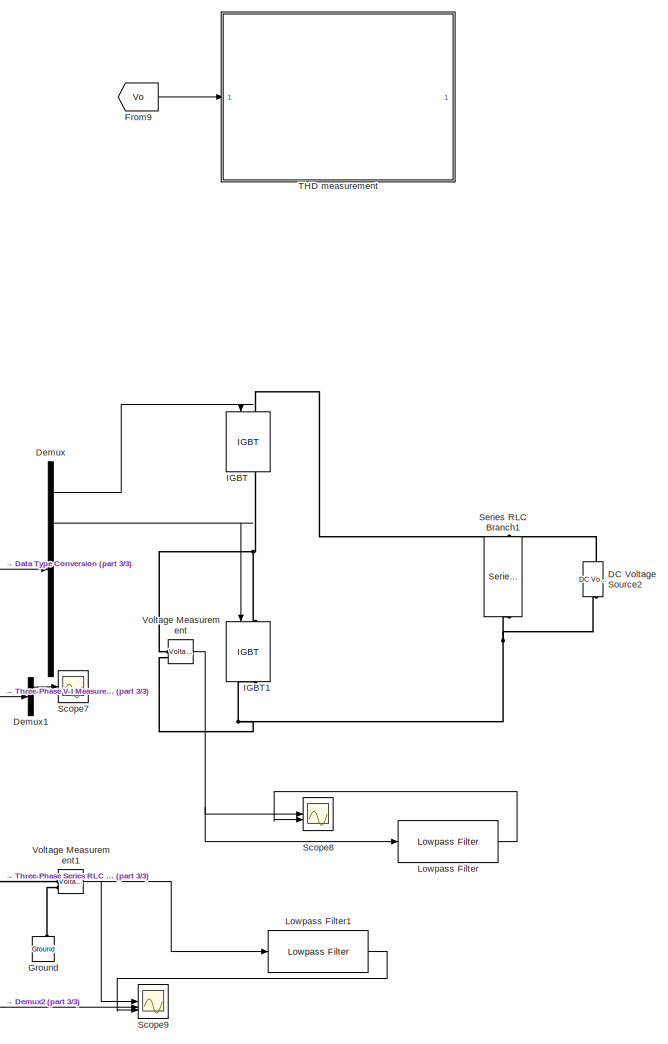
[diagram: Voltage Source Inverter 2 - part 1/3, right side, full height]
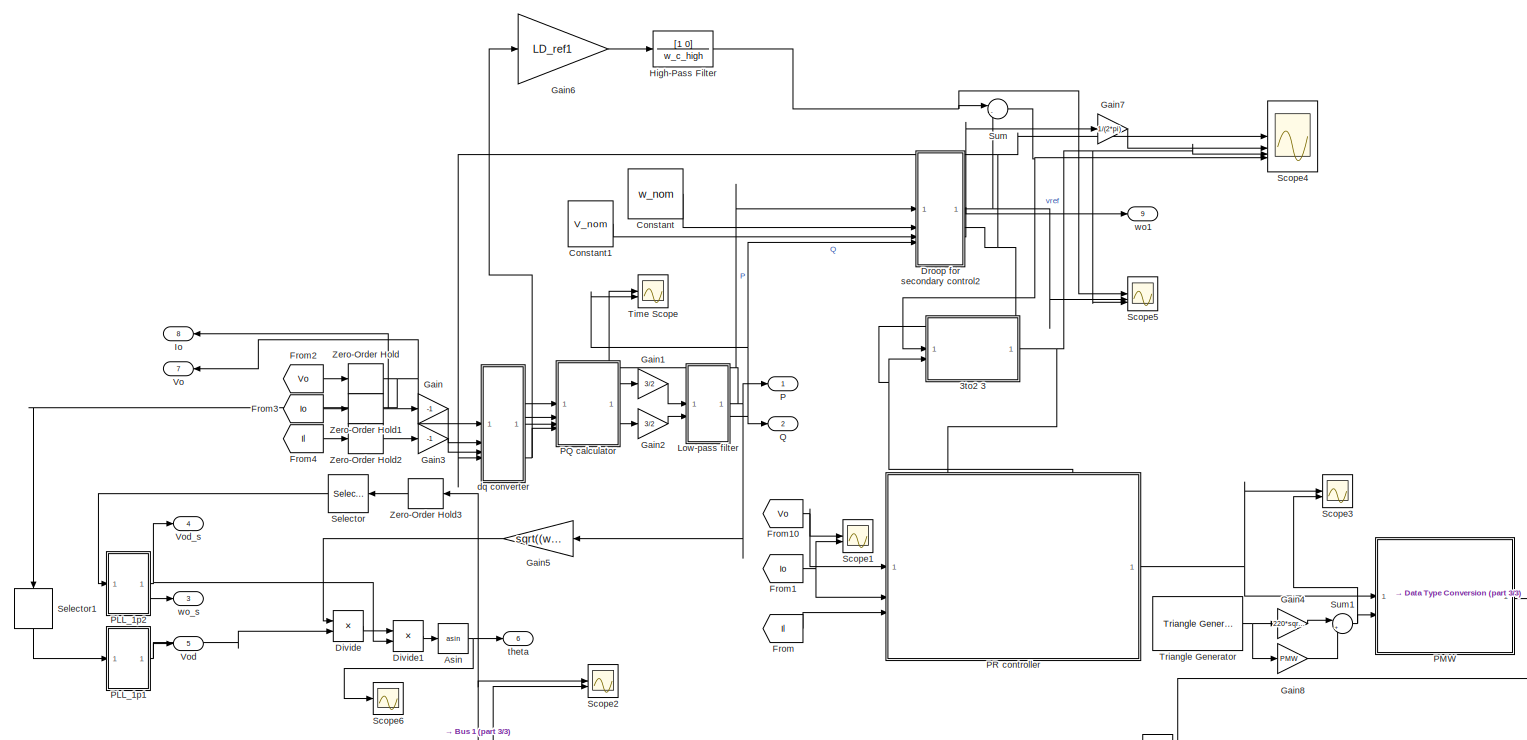
[diagram: Voltage Source Inverter 2 - part 2/3, middle left region]
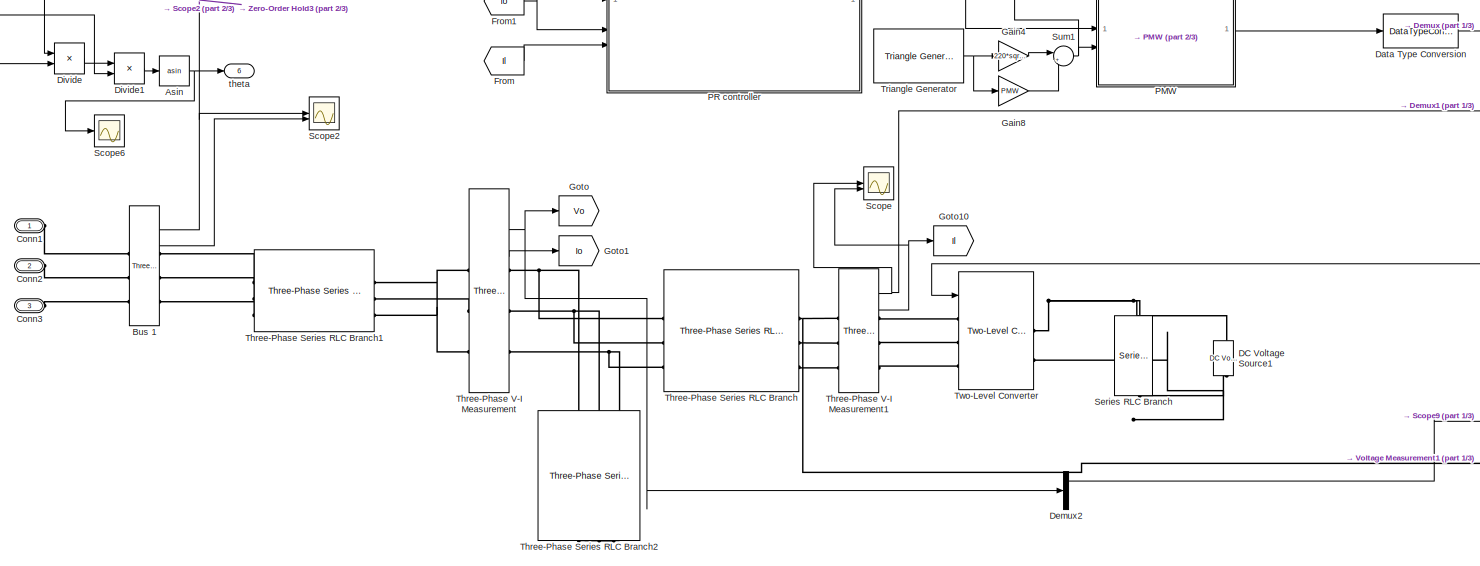
[diagram: Voltage Source Inverter 2 - part 3/3, bottom center region]
BLOCK [SubSystem] Voltage Source Inverter 2
  NameLocation = top
BLOCK [SubSystem] Voltage Source Inverter 2/3to2 3
BLOCK [Sum] Voltage Source Inverter 2/3to2 3/Add1
  IconShape = rectangular
  Inputs = +++
BLOCK [Constant] Voltage Source Inverter 2/3to2 3/Constant2
  Value = 2*pi/3
BLOCK [Constant] Voltage Source Inverter 2/3to2 3/Constant3
  Value = 4*pi/3
BLOCK [Constant] Voltage Source Inverter 2/3to2 3/Constant4
  Value = exp(i*2*pi/3)
BLOCK [Constant] Voltage Source Inverter 2/3to2 3/Constant5
  Value = 2/3
BLOCK [Trigonometry] Voltage Source Inverter 2/3to2 3/Cos
  Operator = cos
BLOCK [Trigonometry] Voltage Source Inverter 2/3to2 3/Cos1
  Operator = cos
BLOCK [Trigonometry] Voltage Source Inverter 2/3to2 3/Cos2
  Operator = cos
BLOCK [Math] Voltage Source Inverter 2/3to2 3/Math Function1
  Operator = square
  SignedPower = on
BLOCK [Mux] Voltage Source Inverter 2/3to2 3/Mux
  DisplayOption = bar
  Inputs = 3
BLOCK [Product] Voltage Source Inverter 2/3to2 3/Product3
  RndMeth = Zero
BLOCK [Product] Voltage Source Inverter 2/3to2 3/Product4
  RndMeth = Zero
BLOCK [Product] Voltage Source Inverter 2/3to2 3/Product5
  RndMeth = Zero
BLOCK [Product] Voltage Source Inverter 2/3to2 3/Product6
  RndMeth = Zero
BLOCK [Product] Voltage Source Inverter 2/3to2 3/Product7
  RndMeth = Zero
BLOCK [Product] Voltage Source Inverter 2/3to2 3/Product8
  RndMeth = Zero
BLOCK [Scope] Voltage Source Inverter 2/3to2 3/Scope
  Floating = off
  NumInputPorts = 3
BLOCK [Sum] Voltage Source Inverter 2/3to2 3/Sum
  Inputs = |++
BLOCK [Sum] Voltage Source Inverter 2/3to2 3/Sum1
  Inputs = |++
BLOCK [Inport] Voltage Source Inverter 2/3to2 3/single 
BLOCK [Outport] Voltage Source Inverter 2/3to2 3/threePhase
  VectorParamsAs1DForOutWhenUnconnected = off
BLOCK [Inport] Voltage Source Inverter 2/3to2 3/wt 
  Port = 2
BLOCK [Trigonometry] Voltage Source Inverter 2/Asin
  Operator = asin
BLOCK [Reference] Voltage Source Inverter 2/Bus 1  REF=spsThreePhaseVIMeasurementLib/Three-Phase
V-I Measurement
  SourceBlock = spsThreePhaseVIMeasurementLib/Three-Phase\nV-I Measurement
  SourceType = Three-Phase VI Measurement
BLOCK [PMIOPort] Voltage Source Inverter 2/Conn1
  Side = Left
BLOCK [PMIOPort] Voltage Source Inverter 2/Conn2
  Port = 2
  Side = Left
BLOCK [PMIOPort] Voltage Source Inverter 2/Conn3
  Port = 3
  Side = Left
BLOCK [Constant] Voltage Source Inverter 2/Constant
  Value = w_nom
BLOCK [Constant] Voltage Source Inverter 2/Constant1
  Value = V_nom
BLOCK [Reference] Voltage Source Inverter 2/DC Voltage Source1  REF=spsDCVoltageSourceLib/DC Voltage Source
  NameLocation = right
  SourceBlock = spsDCVoltageSourceLib/DC Voltage Source
  SourceType = DC Voltage Source
BLOCK [Reference] Voltage Source Inverter 2/DC Voltage Source2  REF=spsDCVoltageSourceLib/DC Voltage Source
  NameLocation = right
  SourceBlock = spsDCVoltageSourceLib/DC Voltage Source
  SourceType = DC Voltage Source
BLOCK [DataTypeConversion] Voltage Source Inverter 2/Data Type Conversion
  OutDataTypeStr = int8
  RndMeth = Floor
  SaturateOnIntegerOverflow = off
BLOCK [Demux] Voltage Source Inverter 2/Demux
  Outputs = 6
BLOCK [Demux] Voltage Source Inverter 2/Demux1
  Outputs = 3
BLOCK [Demux] Voltage Source Inverter 2/Demux2
  Outputs = 3
BLOCK [Product] Voltage Source Inverter 2/Divide
  Inputs = */
BLOCK [Product] Voltage Source Inverter 2/Divide1
  Inputs = */
BLOCK [SubSystem] Voltage Source Inverter 2/Droop for secondary control2
BLOCK [Gain] Voltage Source Inverter 2/Droop for secondary control2/Gain4
  Gain = n_q
BLOCK [Gain] Voltage Source Inverter 2/Droop for secondary control2/Gain5
  Gain = m_p
BLOCK [Integrator] Voltage Source Inverter 2/Droop for secondary control2/Integrator
  WrapState = on
  WrappedStateLowerValue = 0
  WrappedStateUpperValue = 2*pi
BLOCK [Inport] Voltage Source Inverter 2/Droop for secondary control2/P
BLOCK [Inport] Voltage Source Inverter 2/Droop for secondary control2/Q
  Port = 4
BLOCK [Sum] Voltage Source Inverter 2/Droop for secondary control2/Sum1
  Inputs = |+-
BLOCK [Sum] Voltage Source Inverter 2/Droop for secondary control2/Sum2
  Inputs = |+-
BLOCK [Inport] Voltage Source Inverter 2/Droop for secondary control2/V_nom
  Port = 3
BLOCK [Outport] Voltage Source Inverter 2/Droop for secondary control2/Vref
BLOCK [Inport] Voltage Source Inverter 2/Droop for secondary control2/w_nom
  Port = 2
BLOCK [Outport] Voltage Source Inverter 2/Droop for secondary control2/wo
  Port = 3
BLOCK [Outport] Voltage Source Inverter 2/Droop for secondary control2/wt
  Port = 2
BLOCK [From] Voltage Source Inverter 2/From
  GotoTag = Il
BLOCK [From] Voltage Source Inverter 2/From1
  GotoTag = Io
BLOCK [From] Voltage Source Inverter 2/From10
  GotoTag = Vo
BLOCK [From] Voltage Source Inverter 2/From2
  GotoTag = Vo
BLOCK [From] Voltage Source Inverter 2/From3
  GotoTag = Io
BLOCK [From] Voltage Source Inverter 2/From4
  GotoTag = Il
BLOCK [From] Voltage Source Inverter 2/From9
  GotoTag = Vo
BLOCK [Gain] Voltage Source Inverter 2/Gain
  Gain = -1
BLOCK [Gain] Voltage Source Inverter 2/Gain1
  Gain = 3/2
BLOCK [Gain] Voltage Source Inverter 2/Gain2
  Gain = 3/2
BLOCK [Gain] Voltage Source Inverter 2/Gain3
  Gain = -1
BLOCK [Gain] Voltage Source Inverter 2/Gain4
  Commented = on
  Gain = 220*sqrt(2)
BLOCK [Gain] Voltage Source Inverter 2/Gain5
  Gain = sqrt((w_nom*L_in1)^2+R_in1^2)
  NameLocation = top
BLOCK [Gain] Voltage Source Inverter 2/Gain6
  Gain = LD_ref1
BLOCK [Gain] Voltage Source Inverter 2/Gain7
  Gain = 1/(2*pi)
BLOCK [Gain] Voltage Source Inverter 2/Gain8
  Gain = PMW
BLOCK [Goto] Voltage Source Inverter 2/Goto
  GotoTag = Vo
BLOCK [Goto] Voltage Source Inverter 2/Goto1
  GotoTag = Io
BLOCK [Goto] Voltage Source Inverter 2/Goto10
  GotoTag = Il
BLOCK [Reference] Voltage Source Inverter 2/Ground  REF=spsGroundLib/Ground
  LibrarySourceBlock = sps_lib/Utilities/Ground
  NameLocation = right
  SourceBlock = spsGroundLib/Ground
  SourceType = Ground
BLOCK [TransferFcn] Voltage Source Inverter 2/High-Pass Filter
  Denominator = w_c_high
  Numerator = [1 0]
BLOCK [Reference] Voltage Source Inverter 2/IGBT  REF=spsIGBTLib/IGBT
  LibrarySourceBlock = sps_lib/Power Electronics/IGBT
  NameLocation = left
  SourceBlock = spsIGBTLib/IGBT
  SourceType = IGBT
BLOCK [Reference] Voltage Source Inverter 2/IGBT1  REF=spsIGBTLib/IGBT
  LibrarySourceBlock = sps_lib/Power Electronics/IGBT
  NameLocation = left
  SourceBlock = spsIGBTLib/IGBT
  SourceType = IGBT
BLOCK [Outport] Voltage Source Inverter 2/Io
  NameLocation = top
  Port = 8
BLOCK [SubSystem] Voltage Source Inverter 2/Low-pass filter
BLOCK [Reference] Voltage Source Inverter 2/Low-pass filter/Low-Pass Filter (Discrete or Continuous)  REF=eeGeneralControl/Low-Pass Filter
(Discrete or Continuous)
  SourceBlock = eeGeneralControl/Low-Pass Filter\n(Discrete or Continuous)
  SourceType = Low-Pass Filter (Discrete or Continuous)
BLOCK [Reference] Voltage Source Inverter 2/Low-pass filter/Low-Pass Filter (Discrete or Continuous)1  REF=eeGeneralControl/Low-Pass Filter
(Discrete or Continuous)
  SourceBlock = eeGeneralControl/Low-Pass Filter\n(Discrete or Continuous)
  SourceType = Low-Pass Filter (Discrete or Continuous)
BLOCK [Outport] Voltage Source Inverter 2/Low-pass filter/P
BLOCK [Outport] Voltage Source Inverter 2/Low-pass filter/Q
  Port = 2
BLOCK [Inport] Voltage Source Inverter 2/Low-pass filter/p_hat
BLOCK [Inport] Voltage Source Inverter 2/Low-pass filter/q_hat
  Port = 2
BLOCK [Reference] Voltage Source Inverter 2/Lowpass Filter  REF=dspfdesign/Lowpass Filter
  SourceBlock = dspfdesign/Lowpass Filter
  SourceType = dsp.simulink.LowpassFilter
BLOCK [Reference] Voltage Source Inverter 2/Lowpass Filter1  REF=dspfdesign/Lowpass Filter
  SourceBlock = dspfdesign/Lowpass Filter
  SourceType = dsp.simulink.LowpassFilter
BLOCK [Outport] Voltage Source Inverter 2/P
BLOCK [SubSystem] Voltage Source Inverter 2/PLL_1p1
  MinAlgLoopOccurrences = on
  SystemSampleTime = 10*Ts
BLOCK [Constant] Voltage Source Inverter 2/PLL_1p1/2pi
  Value = 2*pi
BLOCK [Reference] Voltage Source Inverter 2/PLL_1p1/Low-Pass Filter (Discrete or Continuous)  REF=eeGeneralControl/Low-Pass Filter
(Discrete or Continuous)
  SourceBlock = eeGeneralControl/Low-Pass Filter\n(Discrete or Continuous)
  SourceType = Low-Pass Filter (Discrete or Continuous)
BLOCK [Reference] Voltage Source Inverter 2/PLL_1p1/PID Controller  REF=slpidlib/PID Controller
  SourceBlock = slpidlib/PID Controller
  SourceType = PID 1dof
BLOCK [RelationalOperator] Voltage Source Inverter 2/PLL_1p1/Reset1
  InputSameDT = off
  OutDataTypeStr = boolean
BLOCK [Scope] Voltage Source Inverter 2/PLL_1p1/Scope
  Floating = off
  NumInputPorts = 1
BLOCK [Sqrt] Voltage Source Inverter 2/PLL_1p1/Sqrt
BLOCK [Math] Voltage Source Inverter 2/PLL_1p1/Square
  Operator = square
BLOCK [Math] Voltage Source Inverter 2/PLL_1p1/Square1
  Operator = square
BLOCK [Sum] Voltage Source Inverter 2/PLL_1p1/Sum
  Inputs = |++
BLOCK [Sum] Voltage Source Inverter 2/PLL_1p1/Sum1
  Inputs = |++
BLOCK [SubSystem] Voltage Source Inverter 2/PLL_1p1/TienXuly
BLOCK [Gain] Voltage Source Inverter 2/PLL_1p1/TienXuly/Gain
  Gain = k
BLOCK [Integrator] Voltage Source Inverter 2/PLL_1p1/TienXuly/Integrator
  NameLocation = top
BLOCK [Integrator] Voltage Source Inverter 2/PLL_1p1/TienXuly/Integrator1
BLOCK [TransferFcn] Voltage Source Inverter 2/PLL_1p1/TienXuly/Locthongthap
  Denominator = [1/fc2 1]
  NameLocation = left
BLOCK [Mux] Voltage Source Inverter 2/PLL_1p1/TienXuly/Mux
  DisplayOption = bar
  Inputs = 2
  NameLocation = top
BLOCK [Product] Voltage Source Inverter 2/PLL_1p1/TienXuly/Product
  RndMeth = Zero
BLOCK [Product] Voltage Source Inverter 2/PLL_1p1/TienXuly/Product1
  NameLocation = top
  RndMeth = Zero
BLOCK [Sum] Voltage Source Inverter 2/PLL_1p1/TienXuly/Sum
  Inputs = |+-
BLOCK [Sum] Voltage Source Inverter 2/PLL_1p1/TienXuly/Sum1
  Inputs = |+-
BLOCK [Sum] Voltage Source Inverter 2/PLL_1p1/TienXuly/Sum2
  Inputs = |+-
  NameLocation = top
BLOCK [Inport] Voltage Source Inverter 2/PLL_1p1/TienXuly/v
BLOCK [Outport] Voltage Source Inverter 2/PLL_1p1/TienXuly/v'
  VectorParamsAs1DForOutWhenUnconnected = off
BLOCK [Scope] Voltage Source Inverter 2/PLL_1p1/TienXuly/v'-qv'
  Floating = off
  NumInputPorts = 1
BLOCK [Outport] Voltage Source Inverter 2/PLL_1p1/TienXuly/v'q
  NameLocation = top
  Port = 2
  VectorParamsAs1DForOutWhenUnconnected = off
BLOCK [Constant] Voltage Source Inverter 2/PLL_1p1/TienXuly/wloc
  Value = fc1*2*pi
BLOCK [Integrator] Voltage Source Inverter 2/PLL_1p1/Tinhtheta
  ExternalReset = rising
  UpperSaturationLimit = 2*pi
BLOCK [SubSystem] Voltage Source Inverter 2/PLL_1p1/apha-beta=>dq
BLOCK [Mux] Voltage Source Inverter 2/PLL_1p1/apha-beta=>dq/Mux
  DisplayOption = bar
  Inputs = 3
BLOCK [Inport] Voltage Source Inverter 2/PLL_1p1/apha-beta=>dq/Theta
BLOCK [Fcn] Voltage Source Inverter 2/PLL_1p1/apha-beta=>dq/Tinhvd
  Expr = (u[2]*cos(u[1])+u[3]*sin(u[1]))
BLOCK [Fcn] Voltage Source Inverter 2/PLL_1p1/apha-beta=>dq/Tinhvq
  Expr = (-u[2]*sin(u[1])+u[3]*cos(u[1]))
BLOCK [Inport] Voltage Source Inverter 2/PLL_1p1/apha-beta=>dq/Uapha
  Port = 2
BLOCK [Inport] Voltage Source Inverter 2/PLL_1p1/apha-beta=>dq/Ubeta
  Port = 3
BLOCK [Outport] Voltage Source Inverter 2/PLL_1p1/apha-beta=>dq/vd
  Port = 2
  VectorParamsAs1DForOutWhenUnconnected = off
BLOCK [Outport] Voltage Source Inverter 2/PLL_1p1/apha-beta=>dq/vq
  VectorParamsAs1DForOutWhenUnconnected = off
BLOCK [Outport] Voltage Source Inverter 2/PLL_1p1/omega
  Port = 2
BLOCK [Inport] Voltage Source Inverter 2/PLL_1p1/v
BLOCK [Outport] Voltage Source Inverter 2/PLL_1p1/v_dq
BLOCK [Constant] Voltage Source Inverter 2/PLL_1p1/wff
  Value = 50*2*pi
BLOCK [SubSystem] Voltage Source Inverter 2/PLL_1p2
  MinAlgLoopOccurrences = on
  SystemSampleTime = 10*Ts
BLOCK [Constant] Voltage Source Inverter 2/PLL_1p2/2pi
  Value = 2*pi
BLOCK [Reference] Voltage Source Inverter 2/PLL_1p2/Low-Pass Filter (Discrete or Continuous)  REF=eeGeneralControl/Low-Pass Filter
(Discrete or Continuous)
  SourceBlock = eeGeneralControl/Low-Pass Filter\n(Discrete or Continuous)
  SourceType = Low-Pass Filter (Discrete or Continuous)
BLOCK [Reference] Voltage Source Inverter 2/PLL_1p2/PID Controller  REF=slpidlib/PID Controller
  SourceBlock = slpidlib/PID Controller
  SourceType = PID 1dof
BLOCK [RelationalOperator] Voltage Source Inverter 2/PLL_1p2/Reset1
  InputSameDT = off
  OutDataTypeStr = boolean
BLOCK [Scope] Voltage Source Inverter 2/PLL_1p2/Scope
  Floating = off
  NumInputPorts = 1
BLOCK [Sqrt] Voltage Source Inverter 2/PLL_1p2/Sqrt
BLOCK [Math] Voltage Source Inverter 2/PLL_1p2/Square
  Operator = square
BLOCK [Math] Voltage Source Inverter 2/PLL_1p2/Square1
  Operator = square
BLOCK [Sum] Voltage Source Inverter 2/PLL_1p2/Sum
  Inputs = |++
BLOCK [Sum] Voltage Source Inverter 2/PLL_1p2/Sum1
  Inputs = |++
BLOCK [SubSystem] Voltage Source Inverter 2/PLL_1p2/TienXuly
BLOCK [Gain] Voltage Source Inverter 2/PLL_1p2/TienXuly/Gain
  Gain = k
BLOCK [Integrator] Voltage Source Inverter 2/PLL_1p2/TienXuly/Integrator
  NameLocation = top
BLOCK [Integrator] Voltage Source Inverter 2/PLL_1p2/TienXuly/Integrator1
BLOCK [TransferFcn] Voltage Source Inverter 2/PLL_1p2/TienXuly/Locthongthap
  Denominator = [1/fc2 1]
  NameLocation = left
BLOCK [Mux] Voltage Source Inverter 2/PLL_1p2/TienXuly/Mux
  DisplayOption = bar
  Inputs = 2
  NameLocation = top
BLOCK [Product] Voltage Source Inverter 2/PLL_1p2/TienXuly/Product
  RndMeth = Zero
BLOCK [Product] Voltage Source Inverter 2/PLL_1p2/TienXuly/Product1
  NameLocation = top
  RndMeth = Zero
BLOCK [Sum] Voltage Source Inverter 2/PLL_1p2/TienXuly/Sum
  Inputs = |+-
BLOCK [Sum] Voltage Source Inverter 2/PLL_1p2/TienXuly/Sum1
  Inputs = |+-
BLOCK [Sum] Voltage Source Inverter 2/PLL_1p2/TienXuly/Sum2
  Inputs = |+-
  NameLocation = top
BLOCK [Inport] Voltage Source Inverter 2/PLL_1p2/TienXuly/v
BLOCK [Outport] Voltage Source Inverter 2/PLL_1p2/TienXuly/v'
  VectorParamsAs1DForOutWhenUnconnected = off
BLOCK [Scope] Voltage Source Inverter 2/PLL_1p2/TienXuly/v'-qv'
  Floating = off
  NumInputPorts = 1
BLOCK [Outport] Voltage Source Inverter 2/PLL_1p2/TienXuly/v'q
  NameLocation = top
  Port = 2
  VectorParamsAs1DForOutWhenUnconnected = off
BLOCK [Constant] Voltage Source Inverter 2/PLL_1p2/TienXuly/wloc
  Value = fc1*2*pi
BLOCK [Integrator] Voltage Source Inverter 2/PLL_1p2/Tinhtheta
  ExternalReset = rising
  UpperSaturationLimit = 2*pi
BLOCK [SubSystem] Voltage Source Inverter 2/PLL_1p2/apha-beta=>dq
BLOCK [Mux] Voltage Source Inverter 2/PLL_1p2/apha-beta=>dq/Mux
  DisplayOption = bar
  Inputs = 3
BLOCK [Inport] Voltage Source Inverter 2/PLL_1p2/apha-beta=>dq/Theta
BLOCK [Fcn] Voltage Source Inverter 2/PLL_1p2/apha-beta=>dq/Tinhvd
  Expr = (u[2]*cos(u[1])+u[3]*sin(u[1]))
BLOCK [Fcn] Voltage Source Inverter 2/PLL_1p2/apha-beta=>dq/Tinhvq
  Expr = (-u[2]*sin(u[1])+u[3]*cos(u[1]))
BLOCK [Inport] Voltage Source Inverter 2/PLL_1p2/apha-beta=>dq/Uapha
  Port = 2
BLOCK [Inport] Voltage Source Inverter 2/PLL_1p2/apha-beta=>dq/Ubeta
  Port = 3
BLOCK [Outport] Voltage Source Inverter 2/PLL_1p2/apha-beta=>dq/vd
  Port = 2
  VectorParamsAs1DForOutWhenUnconnected = off
BLOCK [Outport] Voltage Source Inverter 2/PLL_1p2/apha-beta=>dq/vq
  VectorParamsAs1DForOutWhenUnconnected = off
BLOCK [Outport] Voltage Source Inverter 2/PLL_1p2/omega
  Port = 2
BLOCK [Inport] Voltage Source Inverter 2/PLL_1p2/v
BLOCK [Outport] Voltage Source Inverter 2/PLL_1p2/v_dq
BLOCK [Constant] Voltage Source Inverter 2/PLL_1p2/wff
  Value = 50*2*pi
BLOCK [SubSystem] Voltage Source Inverter 2/PMW
BLOCK [Demux] Voltage Source Inverter 2/PMW/Demux
  Outputs = 3
BLOCK [Mux] Voltage Source Inverter 2/PMW/Mux
  DisplayOption = bar
  Inputs = 6
BLOCK [Logic] Voltage Source Inverter 2/PMW/NOT
  AllPortsSameDT = off
  Operator = NOT
  OutDataTypeStr = boolean
BLOCK [Logic] Voltage Source Inverter 2/PMW/NOT1
  AllPortsSameDT = off
  Operator = NOT
  OutDataTypeStr = boolean
BLOCK [Logic] Voltage Source Inverter 2/PMW/NOT2
  AllPortsSameDT = off
  Operator = NOT
  OutDataTypeStr = boolean
BLOCK [Outport] Voltage Source Inverter 2/PMW/Out1
BLOCK [Inport] Voltage Source Inverter 2/PMW/REF
BLOCK [RelationalOperator] Voltage Source Inverter 2/PMW/Relational Operator
  InputSameDT = off
  OutDataTypeStr = boolean
  RndMeth = Simplest
BLOCK [RelationalOperator] Voltage Source Inverter 2/PMW/Relational Operator1
  InputSameDT = off
  OutDataTypeStr = boolean
  RndMeth = Simplest
BLOCK [RelationalOperator] Voltage Source Inverter 2/PMW/Relational Operator2
  InputSameDT = off
  OutDataTypeStr = boolean
  RndMeth = Simplest
BLOCK [Scope] Voltage Source Inverter 2/PMW/Scope
  Floating = off
  NumInputPorts = 1
BLOCK [Scope] Voltage Source Inverter 2/PMW/Scope1
  Floating = off
  NumInputPorts = 1
BLOCK [Scope] Voltage Source Inverter 2/PMW/Scope2
  Floating = off
  NumInputPorts = 2
BLOCK [Inport] Voltage Source Inverter 2/PMW/Tri_signal
  Port = 2
BLOCK [SubSystem] Voltage Source Inverter 2/PQ calculator
BLOCK [Inport] Voltage Source Inverter 2/PQ calculator/Iod
  Port = 3
BLOCK [Inport] Voltage Source Inverter 2/PQ calculator/Ioq
  Port = 4
BLOCK [Product] Voltage Source Inverter 2/PQ calculator/Product
BLOCK [Product] Voltage Source Inverter 2/PQ calculator/Product1
BLOCK [Product] Voltage Source Inverter 2/PQ calculator/Product2
BLOCK [Product] Voltage Source Inverter 2/PQ calculator/Product3
BLOCK [Scope] Voltage Source Inverter 2/PQ calculator/Scope
  Floating = off
  NumInputPorts = 1
BLOCK [Sum] Voltage Source Inverter 2/PQ calculator/Sum10
  Inputs = |++
BLOCK [Sum] Voltage Source Inverter 2/PQ calculator/Sum11
  Inputs = |+-
BLOCK [Inport] Voltage Source Inverter 2/PQ calculator/Vod
BLOCK [Inport] Voltage Source Inverter 2/PQ calculator/Voq
  Port = 2
BLOCK [Outport] Voltage Source Inverter 2/PQ calculator/p_hat
BLOCK [Outport] Voltage Source Inverter 2/PQ calculator/q_hat
  Port = 2
BLOCK [SubSystem] Voltage Source Inverter 2/PR controller
BLOCK [Demux] Voltage Source Inverter 2/PR controller/Demux
  Outputs = 3
BLOCK [Demux] Voltage Source Inverter 2/PR controller/Demux1
  Outputs = 3
BLOCK [Demux] Voltage Source Inverter 2/PR controller/Demux2
  Outputs = 3
BLOCK [Demux] Voltage Source Inverter 2/PR controller/Demux3
  Outputs = 3
BLOCK [Gain] Voltage Source Inverter 2/PR controller/Gain
  Gain = ki_pr
BLOCK [Gain] Voltage Source Inverter 2/PR controller/Gain1
  Gain = Kp_pr
BLOCK [Gain] Voltage Source Inverter 2/PR controller/Gain2
  Gain = ki_pr
BLOCK [Gain] Voltage Source Inverter 2/PR controller/Gain3
  Gain = Kp_pr
BLOCK [Gain] Voltage Source Inverter 2/PR controller/Gain4
  Gain = k
BLOCK [Gain] Voltage Source Inverter 2/PR controller/Gain5
  Gain = k
BLOCK [Gain] Voltage Source Inverter 2/PR controller/Gain6
  Gain = ki_pr
BLOCK [Gain] Voltage Source Inverter 2/PR controller/Gain7
  Gain = Kp_pr
BLOCK [Gain] Voltage Source Inverter 2/PR controller/Gain8
  Gain = k
BLOCK [Gain] Voltage Source Inverter 2/PR controller/Gain9
BLOCK [Inport] Voltage Source Inverter 2/PR controller/Inv Current
  Port = 3
BLOCK [Inport] Voltage Source Inverter 2/PR controller/Load Current
  Port = 2
BLOCK [Inport] Voltage Source Inverter 2/PR controller/Load Voltage
BLOCK [Mux] Voltage Source Inverter 2/PR controller/Mux
  DisplayOption = bar
  Inputs = 3
BLOCK [Outport] Voltage Source Inverter 2/PR controller/Ref
BLOCK [Inport] Voltage Source Inverter 2/PR controller/Ref Voltage
  Port = 4
BLOCK [Scope] Voltage Source Inverter 2/PR controller/Scope
  Floating = off
  NumInputPorts = 4
  ScopeSpecificationString = Simulink.scopes.TimeScopeBlockCfg('CurrentConfiguration', extmgr.ConfigurationSet(extmgr.Configuration('Core','General UI',true),extmgr.Configuration('Core','Source UI',true),extmgr.Configuration('Sources','WiredSimulink',true,'DataLoggingVariableName','ScopeData1'),extmgr.Configuration('Visuals','Time Domain',true,'SerializedDisplays',{struct('MinYLimReal','-350.84553','MaxYLimReal','384.67948','...<+3643ch>
BLOCK [Scope] Voltage Source Inverter 2/PR controller/Scope1
  Floating = off
  NumInputPorts = 2
  ScopeSpecificationString = Simulink.scopes.TimeScopeBlockCfg('CurrentConfiguration', extmgr.ConfigurationSet(extmgr.Configuration('Core','General UI',true),extmgr.Configuration('Core','Source UI',true),extmgr.Configuration('Sources','WiredSimulink',true,'DataLoggingVariableName','ScopeData2'),extmgr.Configuration('Visuals','Time Domain',true,'SerializedDisplays',{struct('MinYLimReal','-1907.24153','MaxYLimReal','1906.97635'...<+2485ch>
BLOCK [Scope] Voltage Source Inverter 2/PR controller/Scope2
  Floating = off
  NumInputPorts = 2
BLOCK [Scope] Voltage Source Inverter 2/PR controller/Scope3
  Floating = off
  NumInputPorts = 3
  ScopeSpecificationString = Simulink.scopes.TimeScopeBlockCfg('CurrentConfiguration', extmgr.ConfigurationSet(extmgr.Configuration('Core','General UI',true),extmgr.Configuration('Core','Source UI',true),extmgr.Configuration('Sources','WiredSimulink',true,'DataLoggingVariableName','ScopeData2'),extmgr.Configuration('Visuals','Time Domain',true,'SerializedDisplays',{struct('MinYLimReal','-3292.79821','MaxYLimReal','3283.84658'...<+2862ch>
BLOCK [Scope] Voltage Source Inverter 2/PR controller/Scope4
  Floating = off
  NumInputPorts = 3
BLOCK [Scope] Voltage Source Inverter 2/PR controller/Scope5
  Floating = off
  NumInputPorts = 2
BLOCK [Scope] Voltage Source Inverter 2/PR controller/Scope6
  Floating = off
  NumInputPorts = 2
BLOCK [Sum] Voltage Source Inverter 2/PR controller/Sum
  Inputs = |+-
BLOCK [Sum] Voltage Source Inverter 2/PR controller/Sum1
  Inputs = |+++++-
BLOCK [Sum] Voltage Source Inverter 2/PR controller/Sum10
  Inputs = |+++++
BLOCK [Sum] Voltage Source Inverter 2/PR controller/Sum11
  Inputs = |++
BLOCK [Sum] Voltage Source Inverter 2/PR controller/Sum2
  Inputs = |+-
BLOCK [Sum] Voltage Source Inverter 2/PR controller/Sum3
  Inputs = |+++++-
BLOCK [Sum] Voltage Source Inverter 2/PR controller/Sum4
  Inputs = |+++++
BLOCK [Sum] Voltage Source Inverter 2/PR controller/Sum5
  Inputs = |+++++
BLOCK [Sum] Voltage Source Inverter 2/PR controller/Sum6
  Inputs = |++
BLOCK [Sum] Voltage Source Inverter 2/PR controller/Sum7
  Inputs = |++
BLOCK [Sum] Voltage Source Inverter 2/PR controller/Sum8
  Inputs = |+-
BLOCK [Sum] Voltage Source Inverter 2/PR controller/Sum9
  Inputs = |+++++-
BLOCK [TransferFcn] Voltage Source Inverter 2/PR controller/Transfer Fcn
  Denominator = [1 2*wc_pr*wc_pr w_nom*w_nom]
  Numerator = [2*wc_pr 0]
BLOCK [TransferFcn] Voltage Source Inverter 2/PR controller/Transfer Fcn1
  Denominator = [1 2*wc_hc 5*w_nom*5*w_nom]
  Numerator = [-K_h5*wc_hc 0]
BLOCK [TransferFcn] Voltage Source Inverter 2/PR controller/Transfer Fcn10
  Denominator = [1 2*wc_hc 9*w_nom*9*w_nom]
  Numerator = [-K_h9*wc_hc 0]
BLOCK [TransferFcn] Voltage Source Inverter 2/PR controller/Transfer Fcn11
  Denominator = [1 2*wc_hc 13*w_nom*13*w_nom]
  Numerator = [-K_h13*wc_hc 0]
BLOCK [TransferFcn] Voltage Source Inverter 2/PR controller/Transfer Fcn12
  Denominator = [1 2*wc_hc 9*w_nom*9*w_nom]
  Numerator = [-K_h9*wc_hc 0]
BLOCK [TransferFcn] Voltage Source Inverter 2/PR controller/Transfer Fcn13
  Denominator = [1 2*wc_hc 13*w_nom*13*w_nom]
  Numerator = [-K_h13*wc_hc 0]
BLOCK [TransferFcn] Voltage Source Inverter 2/PR controller/Transfer Fcn14
  Denominator = [1 2*wc_pr*wc_pr w_nom*w_nom]
  Numerator = [2*wc_pr 0]
BLOCK [TransferFcn] Voltage Source Inverter 2/PR controller/Transfer Fcn15
  Denominator = [1 2*wc_hc 5*w_nom*5*w_nom]
  Numerator = [-K_h5*wc_hc 0]
BLOCK [TransferFcn] Voltage Source Inverter 2/PR controller/Transfer Fcn16
  Denominator = [1 2*wc_hc 7*w_nom*7*w_nom]
  Numerator = [-K_h7*wc_hc 0]
BLOCK [TransferFcn] Voltage Source Inverter 2/PR controller/Transfer Fcn17
  Denominator = [1 2*wc_hc 11*w_nom*11*w_nom]
  Numerator = [-K_h11*wc_hc 0]
BLOCK [TransferFcn] Voltage Source Inverter 2/PR controller/Transfer Fcn2
  Denominator = [1 2*wc_pr*wc_pr w_nom*w_nom]
  Numerator = [2*wc_pr 0]
BLOCK [TransferFcn] Voltage Source Inverter 2/PR controller/Transfer Fcn3
  Denominator = [1 2*wc_hc 7*w_nom*7*w_nom]
  Numerator = [-K_h7*wc_hc 0]
BLOCK [TransferFcn] Voltage Source Inverter 2/PR controller/Transfer Fcn4
  Denominator = [1 2*wc_hc 11*w_nom*11*w_nom]
  Numerator = [-K_h11*wc_hc 0]
BLOCK [TransferFcn] Voltage Source Inverter 2/PR controller/Transfer Fcn5
  Denominator = [1 2*wc_hc 5*w_nom*5*w_nom]
  Numerator = [-K_h5*wc_hc 0]
BLOCK [TransferFcn] Voltage Source Inverter 2/PR controller/Transfer Fcn6
  Denominator = [1 2*wc_hc 7*w_nom*7*w_nom]
  Numerator = [-K_h7*wc_hc 0]
BLOCK [TransferFcn] Voltage Source Inverter 2/PR controller/Transfer Fcn7
  Denominator = [1 2*wc_hc 9*w_nom*9*w_nom]
  Numerator = [-K_h9*wc_hc 0]
BLOCK [TransferFcn] Voltage Source Inverter 2/PR controller/Transfer Fcn8
  Denominator = [1 2*wc_hc 13*w_nom*13*w_nom]
  Numerator = [-K_h13*wc_hc 0]
BLOCK [TransferFcn] Voltage Source Inverter 2/PR controller/Transfer Fcn9
  Denominator = [1 2*wc_hc 11*w_nom*11*w_nom]
  Numerator = [-K_h11*wc_hc 0]
BLOCK [Inport] Voltage Source Inverter 2/PR controller/wt
  Port = 5
BLOCK [Outport] Voltage Source Inverter 2/Q
  Port = 2
BLOCK [Scope] Voltage Source Inverter 2/Scope
  Floating = off
  NumInputPorts = 2
BLOCK [Scope] Voltage Source Inverter 2/Scope1
  Floating = off
  NumInputPorts = 2
  ScopeSpecificationString = Simulink.scopes.TimeScopeBlockCfg('CurrentConfiguration', extmgr.ConfigurationSet(extmgr.Configuration('Core','General UI',true),extmgr.Configuration('Core','Source UI',true),extmgr.Configuration('Sources','WiredSimulink',true,'DataLoggingVariableName','ScopeData9'),extmgr.Configuration('Visuals','Time Domain',true,'SerializedDisplays',{struct('MinYLimReal','-283.78635','MaxYLimReal','282.61745','...<+2490ch>
BLOCK [Scope] Voltage Source Inverter 2/Scope2
  Floating = off
  NumInputPorts = 2
BLOCK [Scope] Voltage Source Inverter 2/Scope3
  Floating = off
  NumInputPorts = 2
  ScopeSpecificationString = Simulink.scopes.TimeScopeBlockCfg('CurrentConfiguration', extmgr.ConfigurationSet(extmgr.Configuration('Core','General UI',true),extmgr.Configuration('Core','Source UI',true),extmgr.Configuration('Sources','WiredSimulink',true),extmgr.Configuration('Visuals','Time Domain',true,'SerializedDisplays',{struct('MinYLimReal','-1944.54365','MaxYLimReal','1944.54365','YLabelReal','','MinYLimMag','  0.0000...<+1520ch>
BLOCK [Scope] Voltage Source Inverter 2/Scope4
  Floating = off
  NumInputPorts = 4
  ScopeSpecificationString = Simulink.scopes.TimeScopeBlockCfg('CurrentConfiguration', extmgr.ConfigurationSet(extmgr.Configuration('Core','General UI',true),extmgr.Configuration('Core','Source UI',true),extmgr.Configuration('Sources','WiredSimulink',true,'DataLoggingVariableName','ScopeData2'),extmgr.Configuration('Visuals','Time Domain',true,'SerializedDisplays',{struct('MinYLimReal','-0.7854','MaxYLimReal','7.06858','YLabe...<+4255ch>
BLOCK [Scope] Voltage Source Inverter 2/Scope5
  Floating = off
  NumInputPorts = 3
BLOCK [Scope] Voltage Source Inverter 2/Scope6
  Floating = off
  NumInputPorts = 1
BLOCK [Scope] Voltage Source Inverter 2/Scope7
  Floating = off
  NumInputPorts = 1
  ScopeSpecificationString = Simulink.scopes.TimeScopeBlockCfg('CurrentConfiguration', extmgr.ConfigurationSet(extmgr.Configuration('Core','General UI',true),extmgr.Configuration('Core','Source UI',true),extmgr.Configuration('Sources','WiredSimulink',true,'DataLoggingVariableName','ScopeData3'),extmgr.Configuration('Visuals','Time Domain',true,'SerializedDisplays',{struct('MinYLimReal','-500.24109','MaxYLimReal','500.19228','...<+1476ch>
BLOCK [Scope] Voltage Source Inverter 2/Scope8
  Floating = off
  NumInputPorts = 2
  ScopeSpecificationString = Simulink.scopes.TimeScopeBlockCfg('CurrentConfiguration', extmgr.ConfigurationSet(extmgr.Configuration('Core','General UI',true),extmgr.Configuration('Core','Source UI',true),extmgr.Configuration('Sources','WiredSimulink',true,'DataLoggingVariableName','ScopeData4'),extmgr.Configuration('Visuals','Time Domain',true,'SerializedDisplays',{struct('MinYLimReal','-73.74999','MaxYLimReal','673.74999','Y...<+2157ch>
BLOCK [Scope] Voltage Source Inverter 2/Scope9
  Floating = off
  NumInputPorts = 3
  ScopeSpecificationString = Simulink.scopes.TimeScopeBlockCfg('CurrentConfiguration', extmgr.ConfigurationSet(extmgr.Configuration('Core','General UI',true),extmgr.Configuration('Core','Source UI',true),extmgr.Configuration('Sources','WiredSimulink',true,'DataLoggingVariableName','ScopeData1'),extmgr.Configuration('Visuals','Time Domain',true,'SerializedDisplays',{struct('MinYLimReal','-499.84655','MaxYLimReal','499.9717','Y...<+2122ch>
BLOCK [Selector] Voltage Source Inverter 2/Selector
  IndexOptions = Index vector (dialog)
  Indices = [1]
  InputPortWidth = 3
  NameLocation = top
  OutputSizes = 1
BLOCK [Selector] Voltage Source Inverter 2/Selector1
  IndexOptions = Index vector (dialog)
  Indices = [1]
  InputPortWidth = 3
  NameLocation = left
  OutputSizes = 1
BLOCK [Reference] Voltage Source Inverter 2/Series RLC Branch  REF=spsSeriesRLCBranchLib/Series RLC Branch
  NameLocation = left
  SourceBlock = spsSeriesRLCBranchLib/Series RLC Branch
  SourceType = Series RLC Branch
BLOCK [Reference] Voltage Source Inverter 2/Series RLC Branch1  REF=spsSeriesRLCBranchLib/Series RLC Branch
  NameLocation = left
  SourceBlock = spsSeriesRLCBranchLib/Series RLC Branch
  SourceType = Series RLC Branch
BLOCK [Sum] Voltage Source Inverter 2/Sum
  Inputs = |-+
BLOCK [Sum] Voltage Source Inverter 2/Sum1
  Inputs = |++
BLOCK [SubSystem] Voltage Source Inverter 2/THD measurement
BLOCK [Demux] Voltage Source Inverter 2/THD measurement/Demux
  Outputs = 3
BLOCK [Inport] Voltage Source Inverter 2/THD measurement/In1
BLOCK [ToWorkspace] Voltage Source Inverter 2/THD measurement/To Workspace
  FixptAsFi = on
  MaxDataPoints = inf
  SampleTime = -1
  SaveFormat = Structure With Time
  VariableName = phase1
BLOCK [ToWorkspace] Voltage Source Inverter 2/THD measurement/To Workspace1
  FixptAsFi = on
  MaxDataPoints = inf
  SampleTime = -1
  SaveFormat = Structure With Time
  VariableName = phase2
BLOCK [ToWorkspace] Voltage Source Inverter 2/THD measurement/To Workspace2
  FixptAsFi = on
  MaxDataPoints = inf
  SampleTime = -1
  SaveFormat = Structure With Time
  VariableName = phase3
BLOCK [Reference] Voltage Source Inverter 2/Three-Phase Series RLC Branch  REF=spsThreePhaseSeriesRLCBranchLib/Three-Phase
Series RLC Branch
  AttributesFormatString = \n
  SourceBlock = spsThreePhaseSeriesRLCBranchLib/Three-Phase\nSeries RLC Branch
  SourceType = Three-Phase Series RLC Branch
BLOCK [Reference] Voltage Source Inverter 2/Three-Phase Series RLC Branch1  REF=spsThreePhaseSeriesRLCBranchLib/Three-Phase
Series RLC Branch
  AttributesFormatString = \n
  SourceBlock = spsThreePhaseSeriesRLCBranchLib/Three-Phase\nSeries RLC Branch
  SourceType = Three-Phase Series RLC Branch
BLOCK [Reference] Voltage Source Inverter 2/Three-Phase Series RLC Branch2  REF=spsThreePhaseSeriesRLCBranchLib/Three-Phase
Series RLC Branch
  AttributesFormatString = \n
  NameLocation = left
  SourceBlock = spsThreePhaseSeriesRLCBranchLib/Three-Phase\nSeries RLC Branch
  SourceType = Three-Phase Series RLC Branch
BLOCK [Reference] Voltage Source Inverter 2/Three-Phase V-I Measurement  REF=spsThreePhaseVIMeasurementLib/Three-Phase
V-I Measurement
  SourceBlock = spsThreePhaseVIMeasurementLib/Three-Phase\nV-I Measurement
  SourceType = Three-Phase VI Measurement
BLOCK [Reference] Voltage Source Inverter 2/Three-Phase V-I Measurement1  REF=spsThreePhaseVIMeasurementLib/Three-Phase
V-I Measurement
  SourceBlock = spsThreePhaseVIMeasurementLib/Three-Phase\nV-I Measurement
  SourceType = Three-Phase VI Measurement
BLOCK [Scope] Voltage Source Inverter 2/Time Scope
  DefaultConfigurationName = spbscopes.TimeScopeBlockCfg
  Floating = off
  NumInputPorts = 2
  ScopeSpecificationString = spbscopes.TimeScopeBlockCfg('CurrentConfiguration', extmgr.ConfigurationSet(extmgr.Configuration('Core','General UI',true,'FigureColor',[0.156862745098039 0.156862745098039 0.156862745098039]),extmgr.Configuration('Core','Source UI',true),extmgr.Configuration('Sources','WiredSimulink',true,'DataLoggingVariableName','ScopeData1'),extmgr.Configuration('Visuals','Time Domain',true,'DisplayPropertyDef...<+1580ch>
  UserDataPersistent = on
BLOCK [Reference] Voltage Source Inverter 2/Triangle Generator  REF=spsTriangleGeneratorLib/Triangle
Generator
  LibrarySourceBlock = sps_lib/Sources/Signal Generator Sources/Triangle\nGenerator
  SourceBlock = spsTriangleGeneratorLib/Triangle\nGenerator
  SourceType = Triangle Generator
BLOCK [Reference] Voltage Source Inverter 2/Two-Level Converter  REF=spsTwoLevelConverterLib/Two-Level Converter
  SourceBlock = spsTwoLevelConverterLib/Two-Level Converter
  SourceType = Two-Level Converter
BLOCK [Outport] Voltage Source Inverter 2/Vo
  NameLocation = top
  Port = 7
BLOCK [Outport] Voltage Source Inverter 2/Vod
  Port = 5
BLOCK [Outport] Voltage Source Inverter 2/Vod_s
  Port = 4
BLOCK [Reference] Voltage Source Inverter 2/Voltage Measurement  REF=spsVoltageMeasurementLib/Voltage Measurement
  LibrarySourceBlock = sps_lib/Sensors and Measurements/Voltage Measurement
  SourceBlock = spsVoltageMeasurementLib/Voltage Measurement
  SourceType = Voltage Measurement
  UserDataPersistent = on
BLOCK [Reference] Voltage Source Inverter 2/Voltage Measurement1  REF=spsVoltageMeasurementLib/Voltage Measurement
  LibrarySourceBlock = sps_lib/Sensors and Measurements/Voltage Measurement
  SourceBlock = spsVoltageMeasurementLib/Voltage Measurement
  SourceType = Voltage Measurement
  UserDataPersistent = on
BLOCK [ZeroOrderHold] Voltage Source Inverter 2/Zero-Order Hold
  SampleTime = modT
BLOCK [ZeroOrderHold] Voltage Source Inverter 2/Zero-Order Hold1
  SampleTime = modT
BLOCK [ZeroOrderHold] Voltage Source Inverter 2/Zero-Order Hold2
  SampleTime = modT
BLOCK [ZeroOrderHold] Voltage Source Inverter 2/Zero-Order Hold3
  NameLocation = top
  SampleTime = -1
BLOCK [SubSystem] Voltage Source Inverter 2/dq converter
BLOCK [Outport] Voltage Source Inverter 2/dq converter/Ild
  Port = 5
BLOCK [Inport] Voltage Source Inverter 2/dq converter/Ildq
  Port = 3
BLOCK [Outport] Voltage Source Inverter 2/dq converter/Ilq
  Port = 6
BLOCK [Outport] Voltage Source Inverter 2/dq converter/Iod
  Port = 3
BLOCK [Inport] Voltage Source Inverter 2/dq converter/Iodq
  Port = 2
BLOCK [Outport] Voltage Source Inverter 2/dq converter/Ioq
  Port = 4
BLOCK [Scope] Voltage Source Inverter 2/dq converter/Scope
  Floating = off
  NumInputPorts = 1
BLOCK [Scope] Voltage Source Inverter 2/dq converter/Scope1
  Floating = off
  NumInputPorts = 1
BLOCK [SubSystem] Voltage Source Inverter 2/dq converter/Subsystem
BLOCK [Demux] Voltage Source Inverter 2/dq converter/Subsystem/Demux
  Outputs = 3
BLOCK [Outport] Voltage Source Inverter 2/dq converter/Subsystem/Out1
BLOCK [Outport] Voltage Source Inverter 2/dq converter/Subsystem/Out2
  Port = 2
BLOCK [Inport] Voltage Source Inverter 2/dq converter/Subsystem/abc
BLOCK [Reference] Voltage Source Inverter 2/dq converter/Subsystem/abc to dq0  REF=spsabctodq0Lib/abc to dq0
  SourceBlock = spsabctodq0Lib/abc to dq0
  SourceType = abc to dq0 Transformation
BLOCK [Inport] Voltage Source Inverter 2/dq converter/Subsystem/wt
  Port = 2
BLOCK [SubSystem] Voltage Source Inverter 2/dq converter/Subsystem1
BLOCK [Demux] Voltage Source Inverter 2/dq converter/Subsystem1/Demux
  Outputs = 3
BLOCK [Outport] Voltage Source Inverter 2/dq converter/Subsystem1/Out1
BLOCK [Outport] Voltage Source Inverter 2/dq converter/Subsystem1/Out2
  Port = 2
BLOCK [Inport] Voltage Source Inverter 2/dq converter/Subsystem1/abc
BLOCK [Reference] Voltage Source Inverter 2/dq converter/Subsystem1/abc to dq0  REF=spsabctodq0Lib/abc to dq0
  SourceBlock = spsabctodq0Lib/abc to dq0
  SourceType = abc to dq0 Transformation
BLOCK [Inport] Voltage Source Inverter 2/dq converter/Subsystem1/wt
  Port = 2
BLOCK [SubSystem] Voltage Source Inverter 2/dq converter/Subsystem2
BLOCK [Demux] Voltage Source Inverter 2/dq converter/Subsystem2/Demux
  Outputs = 3
BLOCK [Outport] Voltage Source Inverter 2/dq converter/Subsystem2/Out1
BLOCK [Outport] Voltage Source Inverter 2/dq converter/Subsystem2/Out2
  Port = 2
BLOCK [Inport] Voltage Source Inverter 2/dq converter/Subsystem2/abc
BLOCK [Reference] Voltage Source Inverter 2/dq converter/Subsystem2/abc to dq0  REF=spsabctodq0Lib/abc to dq0
  SourceBlock = spsabctodq0Lib/abc to dq0
  SourceType = abc to dq0 Transformation
BLOCK [Inport] Voltage Source Inverter 2/dq converter/Subsystem2/wt
  Port = 2
BLOCK [Outport] Voltage Source Inverter 2/dq converter/Vod
BLOCK [Inport] Voltage Source Inverter 2/dq converter/Vodq
BLOCK [Outport] Voltage Source Inverter 2/dq converter/Voq
  Port = 2
BLOCK [Inport] Voltage Source Inverter 2/dq converter/wt
  Port = 4
BLOCK [Outport] Voltage Source Inverter 2/theta
  Port = 6
BLOCK [Outport] Voltage Source Inverter 2/wo1
  Port = 9
BLOCK [Outport] Voltage Source Inverter 2/wo_s
  Port = 3
BLOCK [SubSystem] Voltage Source Inverter 3
  NameLocation = top
BLOCK [SubSystem] Voltage Source Inverter 3/3to2 3
BLOCK [Sum] Voltage Source Inverter 3/3to2 3/Add1
  IconShape = rectangular
  Inputs = +++
BLOCK [Constant] Voltage Source Inverter 3/3to2 3/Constant2
  Value = 2*pi/3
BLOCK [Constant] Voltage Source Inverter 3/3to2 3/Constant3
  Value = 4*pi/3
BLOCK [Constant] Voltage Source Inverter 3/3to2 3/Constant4
  Value = exp(i*2*pi/3)
BLOCK [Constant] Voltage Source Inverter 3/3to2 3/Constant5
  Value = 2/3
BLOCK [Trigonometry] Voltage Source Inverter 3/3to2 3/Cos
  Operator = cos
BLOCK [Trigonometry] Voltage Source Inverter 3/3to2 3/Cos1
  Operator = cos
BLOCK [Trigonometry] Voltage Source Inverter 3/3to2 3/Cos2
  Operator = cos
BLOCK [Math] Voltage Source Inverter 3/3to2 3/Math Function1
  Operator = square
  SignedPower = on
BLOCK [Mux] Voltage Source Inverter 3/3to2 3/Mux
  DisplayOption = bar
  Inputs = 3
BLOCK [Product] Voltage Source Inverter 3/3to2 3/Product3
  RndMeth = Zero
BLOCK [Product] Voltage Source Inverter 3/3to2 3/Product4
  RndMeth = Zero
BLOCK [Product] Voltage Source Inverter 3/3to2 3/Product5
  RndMeth = Zero
BLOCK [Product] Voltage Source Inverter 3/3to2 3/Product6
  RndMeth = Zero
BLOCK [Product] Voltage Source Inverter 3/3to2 3/Product7
  RndMeth = Zero
BLOCK [Product] Voltage Source Inverter 3/3to2 3/Product8
  RndMeth = Zero
BLOCK [Scope] Voltage Source Inverter 3/3to2 3/Scope
  Floating = off
  NumInputPorts = 3
BLOCK [Sum] Voltage Source Inverter 3/3to2 3/Sum
  Inputs = |++
BLOCK [Sum] Voltage Source Inverter 3/3to2 3/Sum1
  Inputs = |++
BLOCK [Inport] Voltage Source Inverter 3/3to2 3/single 
BLOCK [Outport] Voltage Source Inverter 3/3to2 3/threePhase
  VectorParamsAs1DForOutWhenUnconnected = off
BLOCK [Inport] Voltage Source Inverter 3/3to2 3/wt 
  Port = 2
BLOCK [Trigonometry] Voltage Source Inverter 3/Asin
  Operator = asin
BLOCK [Reference] Voltage Source Inverter 3/Bus 1  REF=spsThreePhaseVIMeasurementLib/Three-Phase
V-I Measurement
  SourceBlock = spsThreePhaseVIMeasurementLib/Three-Phase\nV-I Measurement
  SourceType = Three-Phase VI Measurement
BLOCK [PMIOPort] Voltage Source Inverter 3/Conn1
  Side = Left
BLOCK [PMIOPort] Voltage Source Inverter 3/Conn2
  Port = 2
  Side = Left
BLOCK [PMIOPort] Voltage Source Inverter 3/Conn3
  Port = 3
  Side = Left
BLOCK [Constant] Voltage Source Inverter 3/Constant
  Value = w_nom
BLOCK [Constant] Voltage Source Inverter 3/Constant1
  Value = V_nom
BLOCK [Reference] Voltage Source Inverter 3/DC Voltage Source1  REF=spsDCVoltageSourceLib/DC Voltage Source
  NameLocation = right
  SourceBlock = spsDCVoltageSourceLib/DC Voltage Source
  SourceType = DC Voltage Source
BLOCK [DataTypeConversion] Voltage Source Inverter 3/Data Type Conversion
  OutDataTypeStr = int8
  RndMeth = Floor
  SaturateOnIntegerOverflow = off
BLOCK [Product] Voltage Source Inverter 3/Divide
  Inputs = */
BLOCK [Product] Voltage Source Inverter 3/Divide1
  Inputs = */
BLOCK [SubSystem] Voltage Source Inverter 3/Droop for secondary control2
BLOCK [Gain] Voltage Source Inverter 3/Droop for secondary control2/Gain4
  Gain = n_q
BLOCK [Gain] Voltage Source Inverter 3/Droop for secondary control2/Gain5
  Gain = m_p
BLOCK [Integrator] Voltage Source Inverter 3/Droop for secondary control2/Integrator
  WrapState = on
  WrappedStateLowerValue = 0
  WrappedStateUpperValue = 2*pi
BLOCK [Inport] Voltage Source Inverter 3/Droop for secondary control2/P
BLOCK [Inport] Voltage Source Inverter 3/Droop for secondary control2/Q
  Port = 4
BLOCK [Sum] Voltage Source Inverter 3/Droop for secondary control2/Sum1
  Inputs = |+-
BLOCK [Sum] Voltage Source Inverter 3/Droop for secondary control2/Sum2
  Inputs = |+-
BLOCK [Inport] Voltage Source Inverter 3/Droop for secondary control2/V_nom
  Port = 3
BLOCK [Outport] Voltage Source Inverter 3/Droop for secondary control2/Vref
BLOCK [Inport] Voltage Source Inverter 3/Droop for secondary control2/w_nom
  Port = 2
BLOCK [Outport] Voltage Source Inverter 3/Droop for secondary control2/wo
  Port = 3
BLOCK [Outport] Voltage Source Inverter 3/Droop for secondary control2/wt
  Port = 2
BLOCK [From] Voltage Source Inverter 3/From
  GotoTag = Il
BLOCK [From] Voltage Source Inverter 3/From1
  GotoTag = Io
BLOCK [From] Voltage Source Inverter 3/From10
  GotoTag = Vo
BLOCK [From] Voltage Source Inverter 3/From2
  GotoTag = Vo
BLOCK [From] Voltage Source Inverter 3/From3
  GotoTag = Io
BLOCK [From] Voltage Source Inverter 3/From4
  GotoTag = Il
BLOCK [Gain] Voltage Source Inverter 3/Gain
  Gain = -1
BLOCK [Gain] Voltage Source Inverter 3/Gain1
  Gain = 3/2
BLOCK [Gain] Voltage Source Inverter 3/Gain2
  Gain = 3/2
BLOCK [Gain] Voltage Source Inverter 3/Gain3
  Gain = -1
BLOCK [Gain] Voltage Source Inverter 3/Gain4
  Commented = on
  Gain = 220*sqrt(2)
BLOCK [Gain] Voltage Source Inverter 3/Gain5
  Gain = sqrt((w_nom*L_in1)^2+R_in1^2)
  NameLocation = top
BLOCK [Gain] Voltage Source Inverter 3/Gain6
  Gain = LD_ref1
BLOCK [Gain] Voltage Source Inverter 3/Gain7
  Gain = 1/(2*pi)
BLOCK [Gain] Voltage Source Inverter 3/Gain8
  Gain = PMW
BLOCK [Goto] Voltage Source Inverter 3/Goto
  GotoTag = Vo
BLOCK [Goto] Voltage Source Inverter 3/Goto1
  GotoTag = Io
BLOCK [Goto] Voltage Source Inverter 3/Goto10
  GotoTag = Il
BLOCK [TransferFcn] Voltage Source Inverter 3/High-Pass Filter
  Denominator = w_c_high
  Numerator = [1 0]
BLOCK [Outport] Voltage Source Inverter 3/Io
  NameLocation = top
  Port = 8
BLOCK [SubSystem] Voltage Source Inverter 3/Low-pass filter
BLOCK [Reference] Voltage Source Inverter 3/Low-pass filter/Low-Pass Filter (Discrete or Continuous)  REF=eeGeneralControl/Low-Pass Filter
(Discrete or Continuous)
  SourceBlock = eeGeneralControl/Low-Pass Filter\n(Discrete or Continuous)
  SourceType = Low-Pass Filter (Discrete or Continuous)
BLOCK [Reference] Voltage Source Inverter 3/Low-pass filter/Low-Pass Filter (Discrete or Continuous)1  REF=eeGeneralControl/Low-Pass Filter
(Discrete or Continuous)
  SourceBlock = eeGeneralControl/Low-Pass Filter\n(Discrete or Continuous)
  SourceType = Low-Pass Filter (Discrete or Continuous)
BLOCK [Outport] Voltage Source Inverter 3/Low-pass filter/P
BLOCK [Outport] Voltage Source Inverter 3/Low-pass filter/Q
  Port = 2
BLOCK [Inport] Voltage Source Inverter 3/Low-pass filter/p_hat
BLOCK [Inport] Voltage Source Inverter 3/Low-pass filter/q_hat
  Port = 2
BLOCK [Outport] Voltage Source Inverter 3/P
BLOCK [SubSystem] Voltage Source Inverter 3/PLL_1p1
  MinAlgLoopOccurrences = on
  SystemSampleTime = 10*Ts
BLOCK [Constant] Voltage Source Inverter 3/PLL_1p1/2pi
  Value = 2*pi
BLOCK [Reference] Voltage Source Inverter 3/PLL_1p1/Low-Pass Filter (Discrete or Continuous)  REF=eeGeneralControl/Low-Pass Filter
(Discrete or Continuous)
  SourceBlock = eeGeneralControl/Low-Pass Filter\n(Discrete or Continuous)
  SourceType = Low-Pass Filter (Discrete or Continuous)
BLOCK [Reference] Voltage Source Inverter 3/PLL_1p1/PID Controller  REF=slpidlib/PID Controller
  SourceBlock = slpidlib/PID Controller
  SourceType = PID 1dof
BLOCK [RelationalOperator] Voltage Source Inverter 3/PLL_1p1/Reset1
  InputSameDT = off
  OutDataTypeStr = boolean
BLOCK [Scope] Voltage Source Inverter 3/PLL_1p1/Scope
  Floating = off
  NumInputPorts = 1
BLOCK [Sqrt] Voltage Source Inverter 3/PLL_1p1/Sqrt
BLOCK [Math] Voltage Source Inverter 3/PLL_1p1/Square
  Operator = square
BLOCK [Math] Voltage Source Inverter 3/PLL_1p1/Square1
  Operator = square
BLOCK [Sum] Voltage Source Inverter 3/PLL_1p1/Sum
  Inputs = |++
BLOCK [Sum] Voltage Source Inverter 3/PLL_1p1/Sum1
  Inputs = |++
BLOCK [SubSystem] Voltage Source Inverter 3/PLL_1p1/TienXuly
BLOCK [Gain] Voltage Source Inverter 3/PLL_1p1/TienXuly/Gain
  Gain = k
BLOCK [Integrator] Voltage Source Inverter 3/PLL_1p1/TienXuly/Integrator
  NameLocation = top
BLOCK [Integrator] Voltage Source Inverter 3/PLL_1p1/TienXuly/Integrator1
BLOCK [TransferFcn] Voltage Source Inverter 3/PLL_1p1/TienXuly/Locthongthap
  Denominator = [1/fc2 1]
  NameLocation = left
BLOCK [Mux] Voltage Source Inverter 3/PLL_1p1/TienXuly/Mux
  DisplayOption = bar
  Inputs = 2
  NameLocation = top
BLOCK [Product] Voltage Source Inverter 3/PLL_1p1/TienXuly/Product
  RndMeth = Zero
BLOCK [Product] Voltage Source Inverter 3/PLL_1p1/TienXuly/Product1
  NameLocation = top
  RndMeth = Zero
BLOCK [Sum] Voltage Source Inverter 3/PLL_1p1/TienXuly/Sum
  Inputs = |+-
BLOCK [Sum] Voltage Source Inverter 3/PLL_1p1/TienXuly/Sum1
  Inputs = |+-
BLOCK [Sum] Voltage Source Inverter 3/PLL_1p1/TienXuly/Sum2
  Inputs = |+-
  NameLocation = top
BLOCK [Inport] Voltage Source Inverter 3/PLL_1p1/TienXuly/v
BLOCK [Outport] Voltage Source Inverter 3/PLL_1p1/TienXuly/v'
  VectorParamsAs1DForOutWhenUnconnected = off
BLOCK [Scope] Voltage Source Inverter 3/PLL_1p1/TienXuly/v'-qv'
  Floating = off
  NumInputPorts = 1
BLOCK [Outport] Voltage Source Inverter 3/PLL_1p1/TienXuly/v'q
  NameLocation = top
  Port = 2
  VectorParamsAs1DForOutWhenUnconnected = off
BLOCK [Constant] Voltage Source Inverter 3/PLL_1p1/TienXuly/wloc
  Value = fc1*2*pi
BLOCK [Integrator] Voltage Source Inverter 3/PLL_1p1/Tinhtheta
  ExternalReset = rising
  UpperSaturationLimit = 2*pi
BLOCK [SubSystem] Voltage Source Inverter 3/PLL_1p1/apha-beta=>dq
BLOCK [Mux] Voltage Source Inverter 3/PLL_1p1/apha-beta=>dq/Mux
  DisplayOption = bar
  Inputs = 3
BLOCK [Inport] Voltage Source Inverter 3/PLL_1p1/apha-beta=>dq/Theta
BLOCK [Fcn] Voltage Source Inverter 3/PLL_1p1/apha-beta=>dq/Tinhvd
  Expr = (u[2]*cos(u[1])+u[3]*sin(u[1]))
BLOCK [Fcn] Voltage Source Inverter 3/PLL_1p1/apha-beta=>dq/Tinhvq
  Expr = (-u[2]*sin(u[1])+u[3]*cos(u[1]))
BLOCK [Inport] Voltage Source Inverter 3/PLL_1p1/apha-beta=>dq/Uapha
  Port = 2
BLOCK [Inport] Voltage Source Inverter 3/PLL_1p1/apha-beta=>dq/Ubeta
  Port = 3
BLOCK [Outport] Voltage Source Inverter 3/PLL_1p1/apha-beta=>dq/vd
  Port = 2
  VectorParamsAs1DForOutWhenUnconnected = off
BLOCK [Outport] Voltage Source Inverter 3/PLL_1p1/apha-beta=>dq/vq
  VectorParamsAs1DForOutWhenUnconnected = off
BLOCK [Outport] Voltage Source Inverter 3/PLL_1p1/omega
  Port = 2
BLOCK [Inport] Voltage Source Inverter 3/PLL_1p1/v
BLOCK [Outport] Voltage Source Inverter 3/PLL_1p1/v_dq
BLOCK [Constant] Voltage Source Inverter 3/PLL_1p1/wff
  Value = 50*2*pi
BLOCK [SubSystem] Voltage Source Inverter 3/PLL_1p2
  MinAlgLoopOccurrences = on
  SystemSampleTime = 10*Ts
BLOCK [Constant] Voltage Source Inverter 3/PLL_1p2/2pi
  Value = 2*pi
BLOCK [Reference] Voltage Source Inverter 3/PLL_1p2/Low-Pass Filter (Discrete or Continuous)  REF=eeGeneralControl/Low-Pass Filter
(Discrete or Continuous)
  SourceBlock = eeGeneralControl/Low-Pass Filter\n(Discrete or Continuous)
  SourceType = Low-Pass Filter (Discrete or Continuous)
BLOCK [Reference] Voltage Source Inverter 3/PLL_1p2/PID Controller  REF=slpidlib/PID Controller
  SourceBlock = slpidlib/PID Controller
  SourceType = PID 1dof
BLOCK [RelationalOperator] Voltage Source Inverter 3/PLL_1p2/Reset1
  InputSameDT = off
  OutDataTypeStr = boolean
BLOCK [Scope] Voltage Source Inverter 3/PLL_1p2/Scope
  Floating = off
  NumInputPorts = 1
BLOCK [Sqrt] Voltage Source Inverter 3/PLL_1p2/Sqrt
BLOCK [Math] Voltage Source Inverter 3/PLL_1p2/Square
  Operator = square
BLOCK [Math] Voltage Source Inverter 3/PLL_1p2/Square1
  Operator = square
BLOCK [Sum] Voltage Source Inverter 3/PLL_1p2/Sum
  Inputs = |++
BLOCK [Sum] Voltage Source Inverter 3/PLL_1p2/Sum1
  Inputs = |++
BLOCK [SubSystem] Voltage Source Inverter 3/PLL_1p2/TienXuly
BLOCK [Gain] Voltage Source Inverter 3/PLL_1p2/TienXuly/Gain
  Gain = k
BLOCK [Integrator] Voltage Source Inverter 3/PLL_1p2/TienXuly/Integrator
  NameLocation = top
BLOCK [Integrator] Voltage Source Inverter 3/PLL_1p2/TienXuly/Integrator1
BLOCK [TransferFcn] Voltage Source Inverter 3/PLL_1p2/TienXuly/Locthongthap
  Denominator = [1/fc2 1]
  NameLocation = left
BLOCK [Mux] Voltage Source Inverter 3/PLL_1p2/TienXuly/Mux
  DisplayOption = bar
  Inputs = 2
  NameLocation = top
BLOCK [Product] Voltage Source Inverter 3/PLL_1p2/TienXuly/Product
  RndMeth = Zero
BLOCK [Product] Voltage Source Inverter 3/PLL_1p2/TienXuly/Product1
  NameLocation = top
  RndMeth = Zero
BLOCK [Sum] Voltage Source Inverter 3/PLL_1p2/TienXuly/Sum
  Inputs = |+-
BLOCK [Sum] Voltage Source Inverter 3/PLL_1p2/TienXuly/Sum1
  Inputs = |+-
BLOCK [Sum] Voltage Source Inverter 3/PLL_1p2/TienXuly/Sum2
  Inputs = |+-
  NameLocation = top
BLOCK [Inport] Voltage Source Inverter 3/PLL_1p2/TienXuly/v
BLOCK [Outport] Voltage Source Inverter 3/PLL_1p2/TienXuly/v'
  VectorParamsAs1DForOutWhenUnconnected = off
BLOCK [Scope] Voltage Source Inverter 3/PLL_1p2/TienXuly/v'-qv'
  Floating = off
  NumInputPorts = 1
BLOCK [Outport] Voltage Source Inverter 3/PLL_1p2/TienXuly/v'q
  NameLocation = top
  Port = 2
  VectorParamsAs1DForOutWhenUnconnected = off
BLOCK [Constant] Voltage Source Inverter 3/PLL_1p2/TienXuly/wloc
  Value = fc1*2*pi
BLOCK [Integrator] Voltage Source Inverter 3/PLL_1p2/Tinhtheta
  ExternalReset = rising
  UpperSaturationLimit = 2*pi
BLOCK [SubSystem] Voltage Source Inverter 3/PLL_1p2/apha-beta=>dq
BLOCK [Mux] Voltage Source Inverter 3/PLL_1p2/apha-beta=>dq/Mux
  DisplayOption = bar
  Inputs = 3
BLOCK [Inport] Voltage Source Inverter 3/PLL_1p2/apha-beta=>dq/Theta
BLOCK [Fcn] Voltage Source Inverter 3/PLL_1p2/apha-beta=>dq/Tinhvd
  Expr = (u[2]*cos(u[1])+u[3]*sin(u[1]))
BLOCK [Fcn] Voltage Source Inverter 3/PLL_1p2/apha-beta=>dq/Tinhvq
  Expr = (-u[2]*sin(u[1])+u[3]*cos(u[1]))
BLOCK [Inport] Voltage Source Inverter 3/PLL_1p2/apha-beta=>dq/Uapha
  Port = 2
BLOCK [Inport] Voltage Source Inverter 3/PLL_1p2/apha-beta=>dq/Ubeta
  Port = 3
BLOCK [Outport] Voltage Source Inverter 3/PLL_1p2/apha-beta=>dq/vd
  Port = 2
  VectorParamsAs1DForOutWhenUnconnected = off
BLOCK [Outport] Voltage Source Inverter 3/PLL_1p2/apha-beta=>dq/vq
  VectorParamsAs1DForOutWhenUnconnected = off
BLOCK [Outport] Voltage Source Inverter 3/PLL_1p2/omega
  Port = 2
BLOCK [Inport] Voltage Source Inverter 3/PLL_1p2/v
BLOCK [Outport] Voltage Source Inverter 3/PLL_1p2/v_dq
BLOCK [Constant] Voltage Source Inverter 3/PLL_1p2/wff
  Value = 50*2*pi
BLOCK [SubSystem] Voltage Source Inverter 3/PMW
BLOCK [Demux] Voltage Source Inverter 3/PMW/Demux
  Outputs = 3
BLOCK [Mux] Voltage Source Inverter 3/PMW/Mux
  DisplayOption = bar
  Inputs = 6
BLOCK [Logic] Voltage Source Inverter 3/PMW/NOT
  AllPortsSameDT = off
  Operator = NOT
  OutDataTypeStr = boolean
BLOCK [Logic] Voltage Source Inverter 3/PMW/NOT1
  AllPortsSameDT = off
  Operator = NOT
  OutDataTypeStr = boolean
BLOCK [Logic] Voltage Source Inverter 3/PMW/NOT2
  AllPortsSameDT = off
  Operator = NOT
  OutDataTypeStr = boolean
BLOCK [Outport] Voltage Source Inverter 3/PMW/Out1
BLOCK [Inport] Voltage Source Inverter 3/PMW/REF
BLOCK [RelationalOperator] Voltage Source Inverter 3/PMW/Relational Operator
  InputSameDT = off
  OutDataTypeStr = boolean
  RndMeth = Simplest
BLOCK [RelationalOperator] Voltage Source Inverter 3/PMW/Relational Operator1
  InputSameDT = off
  OutDataTypeStr = boolean
  RndMeth = Simplest
BLOCK [RelationalOperator] Voltage Source Inverter 3/PMW/Relational Operator2
  InputSameDT = off
  OutDataTypeStr = boolean
  RndMeth = Simplest
BLOCK [Scope] Voltage Source Inverter 3/PMW/Scope
  Floating = off
  NumInputPorts = 1
BLOCK [Scope] Voltage Source Inverter 3/PMW/Scope1
  Floating = off
  NumInputPorts = 1
BLOCK [Scope] Voltage Source Inverter 3/PMW/Scope2
  Floating = off
  NumInputPorts = 2
BLOCK [Inport] Voltage Source Inverter 3/PMW/Tri_signal
  Port = 2
BLOCK [SubSystem] Voltage Source Inverter 3/PQ calculator
BLOCK [Inport] Voltage Source Inverter 3/PQ calculator/Iod
  Port = 3
BLOCK [Inport] Voltage Source Inverter 3/PQ calculator/Ioq
  Port = 4
BLOCK [Product] Voltage Source Inverter 3/PQ calculator/Product
BLOCK [Product] Voltage Source Inverter 3/PQ calculator/Product1
BLOCK [Product] Voltage Source Inverter 3/PQ calculator/Product2
BLOCK [Product] Voltage Source Inverter 3/PQ calculator/Product3
BLOCK [Scope] Voltage Source Inverter 3/PQ calculator/Scope
  Floating = off
  NumInputPorts = 1
BLOCK [Sum] Voltage Source Inverter 3/PQ calculator/Sum10
  Inputs = |++
BLOCK [Sum] Voltage Source Inverter 3/PQ calculator/Sum11
  Inputs = |+-
BLOCK [Inport] Voltage Source Inverter 3/PQ calculator/Vod
BLOCK [Inport] Voltage Source Inverter 3/PQ calculator/Voq
  Port = 2
BLOCK [Outport] Voltage Source Inverter 3/PQ calculator/p_hat
BLOCK [Outport] Voltage Source Inverter 3/PQ calculator/q_hat
  Port = 2
BLOCK [SubSystem] Voltage Source Inverter 3/PR controller
BLOCK [Demux] Voltage Source Inverter 3/PR controller/Demux
  Outputs = 3
BLOCK [Demux] Voltage Source Inverter 3/PR controller/Demux1
  Outputs = 3
BLOCK [Demux] Voltage Source Inverter 3/PR controller/Demux2
  Outputs = 3
BLOCK [Demux] Voltage Source Inverter 3/PR controller/Demux3
  Outputs = 3
BLOCK [Gain] Voltage Source Inverter 3/PR controller/Gain
  Gain = ki_pr
BLOCK [Gain] Voltage Source Inverter 3/PR controller/Gain1
  Gain = Kp_pr
BLOCK [Gain] Voltage Source Inverter 3/PR controller/Gain2
  Gain = ki_pr
BLOCK [Gain] Voltage Source Inverter 3/PR controller/Gain3
  Gain = Kp_pr
BLOCK [Gain] Voltage Source Inverter 3/PR controller/Gain4
  Gain = k
BLOCK [Gain] Voltage Source Inverter 3/PR controller/Gain5
  Gain = k
BLOCK [Gain] Voltage Source Inverter 3/PR controller/Gain6
  Gain = ki_pr
BLOCK [Gain] Voltage Source Inverter 3/PR controller/Gain7
  Gain = Kp_pr
BLOCK [Gain] Voltage Source Inverter 3/PR controller/Gain8
  Gain = k
BLOCK [Gain] Voltage Source Inverter 3/PR controller/Gain9
BLOCK [Inport] Voltage Source Inverter 3/PR controller/Inv Current
  Port = 3
BLOCK [Inport] Voltage Source Inverter 3/PR controller/Load Current
  Port = 2
BLOCK [Inport] Voltage Source Inverter 3/PR controller/Load Voltage
BLOCK [Mux] Voltage Source Inverter 3/PR controller/Mux
  DisplayOption = bar
  Inputs = 3
BLOCK [Outport] Voltage Source Inverter 3/PR controller/Ref
BLOCK [Inport] Voltage Source Inverter 3/PR controller/Ref Voltage
  Port = 4
BLOCK [Scope] Voltage Source Inverter 3/PR controller/Scope
  Floating = off
  NumInputPorts = 4
BLOCK [Scope] Voltage Source Inverter 3/PR controller/Scope1
  Floating = off
  NumInputPorts = 2
BLOCK [Scope] Voltage Source Inverter 3/PR controller/Scope2
  Floating = off
  NumInputPorts = 2
BLOCK [Scope] Voltage Source Inverter 3/PR controller/Scope3
  Floating = off
  NumInputPorts = 3
BLOCK [Scope] Voltage Source Inverter 3/PR controller/Scope4
  Floating = off
  NumInputPorts = 3
BLOCK [Scope] Voltage Source Inverter 3/PR controller/Scope5
  Floating = off
  NumInputPorts = 2
BLOCK [Scope] Voltage Source Inverter 3/PR controller/Scope6
  Floating = off
  NumInputPorts = 2
BLOCK [Sum] Voltage Source Inverter 3/PR controller/Sum
  Inputs = |+-
BLOCK [Sum] Voltage Source Inverter 3/PR controller/Sum1
  Inputs = |+++++-
BLOCK [Sum] Voltage Source Inverter 3/PR controller/Sum10
  Inputs = |+++++
BLOCK [Sum] Voltage Source Inverter 3/PR controller/Sum11
  Inputs = |++
BLOCK [Sum] Voltage Source Inverter 3/PR controller/Sum2
  Inputs = |+-
BLOCK [Sum] Voltage Source Inverter 3/PR controller/Sum3
  Inputs = |+++++-
BLOCK [Sum] Voltage Source Inverter 3/PR controller/Sum4
  Inputs = |+++++
BLOCK [Sum] Voltage Source Inverter 3/PR controller/Sum5
  Inputs = |+++++
BLOCK [Sum] Voltage Source Inverter 3/PR controller/Sum6
  Inputs = |++
BLOCK [Sum] Voltage Source Inverter 3/PR controller/Sum7
  Inputs = |++
BLOCK [Sum] Voltage Source Inverter 3/PR controller/Sum8
  Inputs = |+-
BLOCK [Sum] Voltage Source Inverter 3/PR controller/Sum9
  Inputs = |+++++-
BLOCK [TransferFcn] Voltage Source Inverter 3/PR controller/Transfer Fcn
  Denominator = [1 2*wc_pr*wc_pr w_nom*w_nom]
  Numerator = [2*wc_pr 0]
BLOCK [TransferFcn] Voltage Source Inverter 3/PR controller/Transfer Fcn1
  Denominator = [1 2*wc_hc 5*w_nom*5*w_nom]
  Numerator = [-K_h5*wc_hc 0]
BLOCK [TransferFcn] Voltage Source Inverter 3/PR controller/Transfer Fcn10
  Denominator = [1 2*wc_hc 9*w_nom*9*w_nom]
  Numerator = [-K_h9*wc_hc 0]
BLOCK [TransferFcn] Voltage Source Inverter 3/PR controller/Transfer Fcn11
  Denominator = [1 2*wc_hc 13*w_nom*13*w_nom]
  Numerator = [-K_h13*wc_hc 0]
BLOCK [TransferFcn] Voltage Source Inverter 3/PR controller/Transfer Fcn12
  Denominator = [1 2*wc_hc 9*w_nom*9*w_nom]
  Numerator = [-K_h9*wc_hc 0]
BLOCK [TransferFcn] Voltage Source Inverter 3/PR controller/Transfer Fcn13
  Denominator = [1 2*wc_hc 13*w_nom*13*w_nom]
  Numerator = [-K_h13*wc_hc 0]
BLOCK [TransferFcn] Voltage Source Inverter 3/PR controller/Transfer Fcn14
  Denominator = [1 2*wc_pr*wc_pr w_nom*w_nom]
  Numerator = [2*wc_pr 0]
BLOCK [TransferFcn] Voltage Source Inverter 3/PR controller/Transfer Fcn15
  Denominator = [1 2*wc_hc 5*w_nom*5*w_nom]
  Numerator = [-K_h5*wc_hc 0]
BLOCK [TransferFcn] Voltage Source Inverter 3/PR controller/Transfer Fcn16
  Denominator = [1 2*wc_hc 7*w_nom*7*w_nom]
  Numerator = [-K_h7*wc_hc 0]
BLOCK [TransferFcn] Voltage Source Inverter 3/PR controller/Transfer Fcn17
  Denominator = [1 2*wc_hc 11*w_nom*11*w_nom]
  Numerator = [-K_h11*wc_hc 0]
BLOCK [TransferFcn] Voltage Source Inverter 3/PR controller/Transfer Fcn2
  Denominator = [1 2*wc_pr*wc_pr w_nom*w_nom]
  Numerator = [2*wc_pr 0]
BLOCK [TransferFcn] Voltage Source Inverter 3/PR controller/Transfer Fcn3
  Denominator = [1 2*wc_hc 7*w_nom*7*w_nom]
  Numerator = [-K_h7*wc_hc 0]
BLOCK [TransferFcn] Voltage Source Inverter 3/PR controller/Transfer Fcn4
  Denominator = [1 2*wc_hc 11*w_nom*11*w_nom]
  Numerator = [-K_h11*wc_hc 0]
BLOCK [TransferFcn] Voltage Source Inverter 3/PR controller/Transfer Fcn5
  Denominator = [1 2*wc_hc 5*w_nom*5*w_nom]
  Numerator = [-K_h5*wc_hc 0]
BLOCK [TransferFcn] Voltage Source Inverter 3/PR controller/Transfer Fcn6
  Denominator = [1 2*wc_hc 7*w_nom*7*w_nom]
  Numerator = [-K_h7*wc_hc 0]
BLOCK [TransferFcn] Voltage Source Inverter 3/PR controller/Transfer Fcn7
  Denominator = [1 2*wc_hc 9*w_nom*9*w_nom]
  Numerator = [-K_h9*wc_hc 0]
BLOCK [TransferFcn] Voltage Source Inverter 3/PR controller/Transfer Fcn8
  Denominator = [1 2*wc_hc 13*w_nom*13*w_nom]
  Numerator = [-K_h13*wc_hc 0]
BLOCK [TransferFcn] Voltage Source Inverter 3/PR controller/Transfer Fcn9
  Denominator = [1 2*wc_hc 11*w_nom*11*w_nom]
  Numerator = [-K_h11*wc_hc 0]
BLOCK [Inport] Voltage Source Inverter 3/PR controller/wt
  Port = 5
BLOCK [Outport] Voltage Source Inverter 3/Q
  Port = 2
BLOCK [Scope] Voltage Source Inverter 3/Scope
  Floating = off
  NumInputPorts = 2
BLOCK [Scope] Voltage Source Inverter 3/Scope1
  Floating = off
  NumInputPorts = 2
  ScopeSpecificationString = Simulink.scopes.TimeScopeBlockCfg('CurrentConfiguration', extmgr.ConfigurationSet(extmgr.Configuration('Core','General UI',true),extmgr.Configuration('Core','Source UI',true),extmgr.Configuration('Sources','WiredSimulink',true,'DataLoggingVariableName','ScopeData9'),extmgr.Configuration('Visuals','Time Domain',true,'SerializedDisplays',{struct('MinYLimReal','-200.32898','MaxYLimReal','188.77029','...<+2488ch>
BLOCK [Scope] Voltage Source Inverter 3/Scope2
  Floating = off
  NumInputPorts = 2
BLOCK [Scope] Voltage Source Inverter 3/Scope3
  Floating = off
  NumInputPorts = 2
  ScopeSpecificationString = Simulink.scopes.TimeScopeBlockCfg('CurrentConfiguration', extmgr.ConfigurationSet(extmgr.Configuration('Core','General UI',true),extmgr.Configuration('Core','Source UI',true),extmgr.Configuration('Sources','WiredSimulink',true),extmgr.Configuration('Visuals','Time Domain',true,'SerializedDisplays',{struct('MinYLimReal','-18690.41791','MaxYLimReal','18689.33607','YLabelReal','','MinYLimMag','   0.0...<+1528ch>
BLOCK [Scope] Voltage Source Inverter 3/Scope4
  Floating = off
  NumInputPorts = 4
BLOCK [Scope] Voltage Source Inverter 3/Scope5
  Floating = off
  NumInputPorts = 3
BLOCK [Scope] Voltage Source Inverter 3/Scope6
  Floating = off
  NumInputPorts = 1
BLOCK [Selector] Voltage Source Inverter 3/Selector
  IndexOptions = Index vector (dialog)
  Indices = [1]
  InputPortWidth = 3
  NameLocation = top
  OutputSizes = 1
BLOCK [Selector] Voltage Source Inverter 3/Selector1
  IndexOptions = Index vector (dialog)
  Indices = [1]
  InputPortWidth = 3
  NameLocation = left
  OutputSizes = 1
BLOCK [Reference] Voltage Source Inverter 3/Series RLC Branch  REF=spsSeriesRLCBranchLib/Series RLC Branch
  NameLocation = left
  SourceBlock = spsSeriesRLCBranchLib/Series RLC Branch
  SourceType = Series RLC Branch
BLOCK [Sum] Voltage Source Inverter 3/Sum
  Inputs = |-+
BLOCK [Sum] Voltage Source Inverter 3/Sum1
  Inputs = |++
BLOCK [Reference] Voltage Source Inverter 3/Three-Phase Series RLC Branch  REF=spsThreePhaseSeriesRLCBranchLib/Three-Phase
Series RLC Branch
  AttributesFormatString = \n
  SourceBlock = spsThreePhaseSeriesRLCBranchLib/Three-Phase\nSeries RLC Branch
  SourceType = Three-Phase Series RLC Branch
BLOCK [Reference] Voltage Source Inverter 3/Three-Phase Series RLC Branch1  REF=spsThreePhaseSeriesRLCBranchLib/Three-Phase
Series RLC Branch
  AttributesFormatString = \n
  SourceBlock = spsThreePhaseSeriesRLCBranchLib/Three-Phase\nSeries RLC Branch
  SourceType = Three-Phase Series RLC Branch
BLOCK [Reference] Voltage Source Inverter 3/Three-Phase Series RLC Branch2  REF=spsThreePhaseSeriesRLCBranchLib/Three-Phase
Series RLC Branch
  AttributesFormatString = \n
  NameLocation = left
  SourceBlock = spsThreePhaseSeriesRLCBranchLib/Three-Phase\nSeries RLC Branch
  SourceType = Three-Phase Series RLC Branch
BLOCK [Reference] Voltage Source Inverter 3/Three-Phase V-I Measurement  REF=spsThreePhaseVIMeasurementLib/Three-Phase
V-I Measurement
  SourceBlock = spsThreePhaseVIMeasurementLib/Three-Phase\nV-I Measurement
  SourceType = Three-Phase VI Measurement
BLOCK [Reference] Voltage Source Inverter 3/Three-Phase V-I Measurement1  REF=spsThreePhaseVIMeasurementLib/Three-Phase
V-I Measurement
  SourceBlock = spsThreePhaseVIMeasurementLib/Three-Phase\nV-I Measurement
  SourceType = Three-Phase VI Measurement
BLOCK [Scope] Voltage Source Inverter 3/Time Scope
  DefaultConfigurationName = spbscopes.TimeScopeBlockCfg
  Floating = off
  NumInputPorts = 2
  ScopeSpecificationString = spbscopes.TimeScopeBlockCfg('CurrentConfiguration', extmgr.ConfigurationSet(extmgr.Configuration('Core','General UI',true,'FigureColor',[0.156862745098039 0.156862745098039 0.156862745098039]),extmgr.Configuration('Core','Source UI',true),extmgr.Configuration('Sources','WiredSimulink',true,'DataLoggingVariableName','ScopeData1'),extmgr.Configuration('Visuals','Time Domain',true,'DisplayPropertyDef...<+1576ch>
  UserDataPersistent = on
BLOCK [Reference] Voltage Source Inverter 3/Triangle Generator  REF=spsTriangleGeneratorLib/Triangle
Generator
  LibrarySourceBlock = sps_lib/Sources/Signal Generator Sources/Triangle\nGenerator
  SourceBlock = spsTriangleGeneratorLib/Triangle\nGenerator
  SourceType = Triangle Generator
BLOCK [Reference] Voltage Source Inverter 3/Two-Level Converter  REF=spsTwoLevelConverterLib/Two-Level Converter
  SourceBlock = spsTwoLevelConverterLib/Two-Level Converter
  SourceType = Two-Level Converter
BLOCK [Outport] Voltage Source Inverter 3/Vo
  NameLocation = top
  Port = 7
BLOCK [Outport] Voltage Source Inverter 3/Vod
  Port = 5
BLOCK [Outport] Voltage Source Inverter 3/Vod_s
  Port = 4
BLOCK [ZeroOrderHold] Voltage Source Inverter 3/Zero-Order Hold
  SampleTime = modT
BLOCK [ZeroOrderHold] Voltage Source Inverter 3/Zero-Order Hold1
  SampleTime = modT
BLOCK [ZeroOrderHold] Voltage Source Inverter 3/Zero-Order Hold2
  SampleTime = modT
BLOCK [ZeroOrderHold] Voltage Source Inverter 3/Zero-Order Hold3
  NameLocation = top
  SampleTime = -1
BLOCK [SubSystem] Voltage Source Inverter 3/dq converter
BLOCK [Outport] Voltage Source Inverter 3/dq converter/Ild
  Port = 5
BLOCK [Inport] Voltage Source Inverter 3/dq converter/Ildq
  Port = 3
BLOCK [Outport] Voltage Source Inverter 3/dq converter/Ilq
  Port = 6
BLOCK [Outport] Voltage Source Inverter 3/dq converter/Iod
  Port = 3
BLOCK [Inport] Voltage Source Inverter 3/dq converter/Iodq
  Port = 2
BLOCK [Outport] Voltage Source Inverter 3/dq converter/Ioq
  Port = 4
BLOCK [Scope] Voltage Source Inverter 3/dq converter/Scope
  Floating = off
  NumInputPorts = 1
BLOCK [Scope] Voltage Source Inverter 3/dq converter/Scope1
  Floating = off
  NumInputPorts = 1
BLOCK [SubSystem] Voltage Source Inverter 3/dq converter/Subsystem
BLOCK [Demux] Voltage Source Inverter 3/dq converter/Subsystem/Demux
  Outputs = 3
BLOCK [Outport] Voltage Source Inverter 3/dq converter/Subsystem/Out1
BLOCK [Outport] Voltage Source Inverter 3/dq converter/Subsystem/Out2
  Port = 2
BLOCK [Inport] Voltage Source Inverter 3/dq converter/Subsystem/abc
BLOCK [Reference] Voltage Source Inverter 3/dq converter/Subsystem/abc to dq0  REF=spsabctodq0Lib/abc to dq0
  SourceBlock = spsabctodq0Lib/abc to dq0
  SourceType = abc to dq0 Transformation
BLOCK [Inport] Voltage Source Inverter 3/dq converter/Subsystem/wt
  Port = 2
BLOCK [SubSystem] Voltage Source Inverter 3/dq converter/Subsystem1
BLOCK [Demux] Voltage Source Inverter 3/dq converter/Subsystem1/Demux
  Outputs = 3
BLOCK [Outport] Voltage Source Inverter 3/dq converter/Subsystem1/Out1
BLOCK [Outport] Voltage Source Inverter 3/dq converter/Subsystem1/Out2
  Port = 2
BLOCK [Inport] Voltage Source Inverter 3/dq converter/Subsystem1/abc
BLOCK [Reference] Voltage Source Inverter 3/dq converter/Subsystem1/abc to dq0  REF=spsabctodq0Lib/abc to dq0
  SourceBlock = spsabctodq0Lib/abc to dq0
  SourceType = abc to dq0 Transformation
BLOCK [Inport] Voltage Source Inverter 3/dq converter/Subsystem1/wt
  Port = 2
BLOCK [SubSystem] Voltage Source Inverter 3/dq converter/Subsystem2
BLOCK [Demux] Voltage Source Inverter 3/dq converter/Subsystem2/Demux
  Outputs = 3
BLOCK [Outport] Voltage Source Inverter 3/dq converter/Subsystem2/Out1
BLOCK [Outport] Voltage Source Inverter 3/dq converter/Subsystem2/Out2
  Port = 2
BLOCK [Inport] Voltage Source Inverter 3/dq converter/Subsystem2/abc
BLOCK [Reference] Voltage Source Inverter 3/dq converter/Subsystem2/abc to dq0  REF=spsabctodq0Lib/abc to dq0
  SourceBlock = spsabctodq0Lib/abc to dq0
  SourceType = abc to dq0 Transformation
BLOCK [Inport] Voltage Source Inverter 3/dq converter/Subsystem2/wt
  Port = 2
BLOCK [Outport] Voltage Source Inverter 3/dq converter/Vod
BLOCK [Inport] Voltage Source Inverter 3/dq converter/Vodq
BLOCK [Outport] Voltage Source Inverter 3/dq converter/Voq
  Port = 2
BLOCK [Inport] Voltage Source Inverter 3/dq converter/wt
  Port = 4
BLOCK [Outport] Voltage Source Inverter 3/theta
  Port = 6
BLOCK [Outport] Voltage Source Inverter 3/wo1
  Port = 9
BLOCK [Outport] Voltage Source Inverter 3/wo_s
  Port = 3
BLOCK [SubSystem] Voltage Source Inverter 4
BLOCK [SubSystem] Voltage Source Inverter 4/3to2 3
BLOCK [Sum] Voltage Source Inverter 4/3to2 3/Add1
  IconShape = rectangular
  Inputs = +++
BLOCK [Constant] Voltage Source Inverter 4/3to2 3/Constant2
  Value = 2*pi/3
BLOCK [Constant] Voltage Source Inverter 4/3to2 3/Constant3
  Value = 4*pi/3
BLOCK [Constant] Voltage Source Inverter 4/3to2 3/Constant4
  Value = exp(i*2*pi/3)
BLOCK [Constant] Voltage Source Inverter 4/3to2 3/Constant5
  Value = 2/3
BLOCK [Trigonometry] Voltage Source Inverter 4/3to2 3/Cos
  Operator = cos
BLOCK [Trigonometry] Voltage Source Inverter 4/3to2 3/Cos1
  Operator = cos
BLOCK [Trigonometry] Voltage Source Inverter 4/3to2 3/Cos2
  Operator = cos
BLOCK [Math] Voltage Source Inverter 4/3to2 3/Math Function1
  Operator = square
  SignedPower = on
BLOCK [Mux] Voltage Source Inverter 4/3to2 3/Mux
  DisplayOption = bar
  Inputs = 3
BLOCK [Product] Voltage Source Inverter 4/3to2 3/Product3
  RndMeth = Zero
BLOCK [Product] Voltage Source Inverter 4/3to2 3/Product4
  RndMeth = Zero
BLOCK [Product] Voltage Source Inverter 4/3to2 3/Product5
  RndMeth = Zero
BLOCK [Product] Voltage Source Inverter 4/3to2 3/Product6
  RndMeth = Zero
BLOCK [Product] Voltage Source Inverter 4/3to2 3/Product7
  RndMeth = Zero
BLOCK [Product] Voltage Source Inverter 4/3to2 3/Product8
  RndMeth = Zero
BLOCK [Scope] Voltage Source Inverter 4/3to2 3/Scope
  Floating = off
  NumInputPorts = 3
BLOCK [Sum] Voltage Source Inverter 4/3to2 3/Sum
  Inputs = |++
BLOCK [Sum] Voltage Source Inverter 4/3to2 3/Sum1
  Inputs = |++
BLOCK [Inport] Voltage Source Inverter 4/3to2 3/single 
BLOCK [Outport] Voltage Source Inverter 4/3to2 3/threePhase
  VectorParamsAs1DForOutWhenUnconnected = off
BLOCK [Inport] Voltage Source Inverter 4/3to2 3/wt 
  Port = 2
BLOCK [Trigonometry] Voltage Source Inverter 4/Asin
  Operator = asin
BLOCK [Reference] Voltage Source Inverter 4/Bus 1  REF=spsThreePhaseVIMeasurementLib/Three-Phase
V-I Measurement
  SourceBlock = spsThreePhaseVIMeasurementLib/Three-Phase\nV-I Measurement
  SourceType = Three-Phase VI Measurement
BLOCK [PMIOPort] Voltage Source Inverter 4/Conn1
  Side = Left
BLOCK [PMIOPort] Voltage Source Inverter 4/Conn2
  Port = 2
  Side = Left
BLOCK [PMIOPort] Voltage Source Inverter 4/Conn3
  Port = 3
  Side = Left
BLOCK [Constant] Voltage Source Inverter 4/Constant
  Value = w_nom
BLOCK [Constant] Voltage Source Inverter 4/Constant1
  Value = V_nom
BLOCK [Reference] Voltage Source Inverter 4/DC Voltage Source1  REF=spsDCVoltageSourceLib/DC Voltage Source
  NameLocation = right
  SourceBlock = spsDCVoltageSourceLib/DC Voltage Source
  SourceType = DC Voltage Source
BLOCK [DataTypeConversion] Voltage Source Inverter 4/Data Type Conversion
  OutDataTypeStr = int8
  RndMeth = Floor
  SaturateOnIntegerOverflow = off
BLOCK [Product] Voltage Source Inverter 4/Divide
  Inputs = */
BLOCK [Product] Voltage Source Inverter 4/Divide1
  Inputs = */
BLOCK [SubSystem] Voltage Source Inverter 4/Droop for secondary control2
BLOCK [Gain] Voltage Source Inverter 4/Droop for secondary control2/Gain4
  Gain = n_q
BLOCK [Gain] Voltage Source Inverter 4/Droop for secondary control2/Gain5
  Gain = m_p
BLOCK [Integrator] Voltage Source Inverter 4/Droop for secondary control2/Integrator
  WrapState = on
  WrappedStateLowerValue = 0
  WrappedStateUpperValue = 2*pi
BLOCK [Inport] Voltage Source Inverter 4/Droop for secondary control2/P
BLOCK [Inport] Voltage Source Inverter 4/Droop for secondary control2/Q
  Port = 4
BLOCK [Sum] Voltage Source Inverter 4/Droop for secondary control2/Sum1
  Inputs = |+-
BLOCK [Sum] Voltage Source Inverter 4/Droop for secondary control2/Sum2
  Inputs = |+-
BLOCK [Inport] Voltage Source Inverter 4/Droop for secondary control2/V_nom
  Port = 3
BLOCK [Outport] Voltage Source Inverter 4/Droop for secondary control2/Vref
BLOCK [Inport] Voltage Source Inverter 4/Droop for secondary control2/w_nom
  Port = 2
BLOCK [Outport] Voltage Source Inverter 4/Droop for secondary control2/wo
  Port = 3
BLOCK [Outport] Voltage Source Inverter 4/Droop for secondary control2/wt
  Port = 2
BLOCK [From] Voltage Source Inverter 4/From
  GotoTag = Il
BLOCK [From] Voltage Source Inverter 4/From1
  GotoTag = Io
BLOCK [From] Voltage Source Inverter 4/From10
  GotoTag = Vo
BLOCK [From] Voltage Source Inverter 4/From2
  GotoTag = Vo
BLOCK [From] Voltage Source Inverter 4/From3
  GotoTag = Io
BLOCK [From] Voltage Source Inverter 4/From4
  GotoTag = Il
BLOCK [Gain] Voltage Source Inverter 4/Gain
  Gain = -1
BLOCK [Gain] Voltage Source Inverter 4/Gain1
  Gain = 3/2
BLOCK [Gain] Voltage Source Inverter 4/Gain2
  Gain = 3/2
BLOCK [Gain] Voltage Source Inverter 4/Gain3
  Gain = -1
BLOCK [Gain] Voltage Source Inverter 4/Gain4
  Commented = on
  Gain = 220*sqrt(2)
BLOCK [Gain] Voltage Source Inverter 4/Gain5
  Gain = sqrt((w_nom*L_in1)^2+R_in1^2)
  NameLocation = top
BLOCK [Gain] Voltage Source Inverter 4/Gain6
  Gain = LD_ref1
BLOCK [Gain] Voltage Source Inverter 4/Gain7
  Gain = 1/(2*pi)
BLOCK [Gain] Voltage Source Inverter 4/Gain8
  Gain = PMW
BLOCK [Goto] Voltage Source Inverter 4/Goto
  GotoTag = Vo
BLOCK [Goto] Voltage Source Inverter 4/Goto1
  GotoTag = Io
BLOCK [Goto] Voltage Source Inverter 4/Goto10
  GotoTag = Il
BLOCK [TransferFcn] Voltage Source Inverter 4/High-Pass Filter
  Denominator = w_c_high
  Numerator = [1 0]
BLOCK [Outport] Voltage Source Inverter 4/Io
  NameLocation = top
  Port = 8
BLOCK [SubSystem] Voltage Source Inverter 4/Low-pass filter
BLOCK [Reference] Voltage Source Inverter 4/Low-pass filter/Low-Pass Filter (Discrete or Continuous)  REF=eeGeneralControl/Low-Pass Filter
(Discrete or Continuous)
  SourceBlock = eeGeneralControl/Low-Pass Filter\n(Discrete or Continuous)
  SourceType = Low-Pass Filter (Discrete or Continuous)
BLOCK [Reference] Voltage Source Inverter 4/Low-pass filter/Low-Pass Filter (Discrete or Continuous)1  REF=eeGeneralControl/Low-Pass Filter
(Discrete or Continuous)
  SourceBlock = eeGeneralControl/Low-Pass Filter\n(Discrete or Continuous)
  SourceType = Low-Pass Filter (Discrete or Continuous)
BLOCK [Outport] Voltage Source Inverter 4/Low-pass filter/P
BLOCK [Outport] Voltage Source Inverter 4/Low-pass filter/Q
  Port = 2
BLOCK [Inport] Voltage Source Inverter 4/Low-pass filter/p_hat
BLOCK [Inport] Voltage Source Inverter 4/Low-pass filter/q_hat
  Port = 2
BLOCK [Outport] Voltage Source Inverter 4/P
BLOCK [SubSystem] Voltage Source Inverter 4/PLL_1p1
  MinAlgLoopOccurrences = on
  SystemSampleTime = 10*Ts
BLOCK [Constant] Voltage Source Inverter 4/PLL_1p1/2pi
  Value = 2*pi
BLOCK [Reference] Voltage Source Inverter 4/PLL_1p1/Low-Pass Filter (Discrete or Continuous)  REF=eeGeneralControl/Low-Pass Filter
(Discrete or Continuous)
  SourceBlock = eeGeneralControl/Low-Pass Filter\n(Discrete or Continuous)
  SourceType = Low-Pass Filter (Discrete or Continuous)
BLOCK [Reference] Voltage Source Inverter 4/PLL_1p1/PID Controller  REF=slpidlib/PID Controller
  SourceBlock = slpidlib/PID Controller
  SourceType = PID 1dof
BLOCK [RelationalOperator] Voltage Source Inverter 4/PLL_1p1/Reset1
  InputSameDT = off
  OutDataTypeStr = boolean
BLOCK [Scope] Voltage Source Inverter 4/PLL_1p1/Scope
  Floating = off
  NumInputPorts = 1
BLOCK [Sqrt] Voltage Source Inverter 4/PLL_1p1/Sqrt
BLOCK [Math] Voltage Source Inverter 4/PLL_1p1/Square
  Operator = square
BLOCK [Math] Voltage Source Inverter 4/PLL_1p1/Square1
  Operator = square
BLOCK [Sum] Voltage Source Inverter 4/PLL_1p1/Sum
  Inputs = |++
BLOCK [Sum] Voltage Source Inverter 4/PLL_1p1/Sum1
  Inputs = |++
BLOCK [SubSystem] Voltage Source Inverter 4/PLL_1p1/TienXuly
BLOCK [Gain] Voltage Source Inverter 4/PLL_1p1/TienXuly/Gain
  Gain = k
BLOCK [Integrator] Voltage Source Inverter 4/PLL_1p1/TienXuly/Integrator
  NameLocation = top
BLOCK [Integrator] Voltage Source Inverter 4/PLL_1p1/TienXuly/Integrator1
BLOCK [TransferFcn] Voltage Source Inverter 4/PLL_1p1/TienXuly/Locthongthap
  Denominator = [1/fc2 1]
  NameLocation = left
BLOCK [Mux] Voltage Source Inverter 4/PLL_1p1/TienXuly/Mux
  DisplayOption = bar
  Inputs = 2
  NameLocation = top
BLOCK [Product] Voltage Source Inverter 4/PLL_1p1/TienXuly/Product
  RndMeth = Zero
BLOCK [Product] Voltage Source Inverter 4/PLL_1p1/TienXuly/Product1
  NameLocation = top
  RndMeth = Zero
BLOCK [Sum] Voltage Source Inverter 4/PLL_1p1/TienXuly/Sum
  Inputs = |+-
BLOCK [Sum] Voltage Source Inverter 4/PLL_1p1/TienXuly/Sum1
  Inputs = |+-
BLOCK [Sum] Voltage Source Inverter 4/PLL_1p1/TienXuly/Sum2
  Inputs = |+-
  NameLocation = top
BLOCK [Inport] Voltage Source Inverter 4/PLL_1p1/TienXuly/v
BLOCK [Outport] Voltage Source Inverter 4/PLL_1p1/TienXuly/v'
  VectorParamsAs1DForOutWhenUnconnected = off
BLOCK [Scope] Voltage Source Inverter 4/PLL_1p1/TienXuly/v'-qv'
  Floating = off
  NumInputPorts = 1
BLOCK [Outport] Voltage Source Inverter 4/PLL_1p1/TienXuly/v'q
  NameLocation = top
  Port = 2
  VectorParamsAs1DForOutWhenUnconnected = off
BLOCK [Constant] Voltage Source Inverter 4/PLL_1p1/TienXuly/wloc
  Value = fc1*2*pi
BLOCK [Integrator] Voltage Source Inverter 4/PLL_1p1/Tinhtheta
  ExternalReset = rising
  UpperSaturationLimit = 2*pi
BLOCK [SubSystem] Voltage Source Inverter 4/PLL_1p1/apha-beta=>dq
BLOCK [Mux] Voltage Source Inverter 4/PLL_1p1/apha-beta=>dq/Mux
  DisplayOption = bar
  Inputs = 3
BLOCK [Inport] Voltage Source Inverter 4/PLL_1p1/apha-beta=>dq/Theta
BLOCK [Fcn] Voltage Source Inverter 4/PLL_1p1/apha-beta=>dq/Tinhvd
  Expr = (u[2]*cos(u[1])+u[3]*sin(u[1]))
BLOCK [Fcn] Voltage Source Inverter 4/PLL_1p1/apha-beta=>dq/Tinhvq
  Expr = (-u[2]*sin(u[1])+u[3]*cos(u[1]))
BLOCK [Inport] Voltage Source Inverter 4/PLL_1p1/apha-beta=>dq/Uapha
  Port = 2
BLOCK [Inport] Voltage Source Inverter 4/PLL_1p1/apha-beta=>dq/Ubeta
  Port = 3
BLOCK [Outport] Voltage Source Inverter 4/PLL_1p1/apha-beta=>dq/vd
  Port = 2
  VectorParamsAs1DForOutWhenUnconnected = off
BLOCK [Outport] Voltage Source Inverter 4/PLL_1p1/apha-beta=>dq/vq
  VectorParamsAs1DForOutWhenUnconnected = off
BLOCK [Outport] Voltage Source Inverter 4/PLL_1p1/omega
  Port = 2
BLOCK [Inport] Voltage Source Inverter 4/PLL_1p1/v
BLOCK [Outport] Voltage Source Inverter 4/PLL_1p1/v_dq
BLOCK [Constant] Voltage Source Inverter 4/PLL_1p1/wff
  Value = 50*2*pi
BLOCK [SubSystem] Voltage Source Inverter 4/PLL_1p2
  MinAlgLoopOccurrences = on
  SystemSampleTime = 10*Ts
BLOCK [Constant] Voltage Source Inverter 4/PLL_1p2/2pi
  Value = 2*pi
BLOCK [Reference] Voltage Source Inverter 4/PLL_1p2/Low-Pass Filter (Discrete or Continuous)  REF=eeGeneralControl/Low-Pass Filter
(Discrete or Continuous)
  SourceBlock = eeGeneralControl/Low-Pass Filter\n(Discrete or Continuous)
  SourceType = Low-Pass Filter (Discrete or Continuous)
BLOCK [Reference] Voltage Source Inverter 4/PLL_1p2/PID Controller  REF=slpidlib/PID Controller
  SourceBlock = slpidlib/PID Controller
  SourceType = PID 1dof
BLOCK [RelationalOperator] Voltage Source Inverter 4/PLL_1p2/Reset1
  InputSameDT = off
  OutDataTypeStr = boolean
BLOCK [Scope] Voltage Source Inverter 4/PLL_1p2/Scope
  Floating = off
  NumInputPorts = 1
BLOCK [Sqrt] Voltage Source Inverter 4/PLL_1p2/Sqrt
BLOCK [Math] Voltage Source Inverter 4/PLL_1p2/Square
  Operator = square
BLOCK [Math] Voltage Source Inverter 4/PLL_1p2/Square1
  Operator = square
BLOCK [Sum] Voltage Source Inverter 4/PLL_1p2/Sum
  Inputs = |++
BLOCK [Sum] Voltage Source Inverter 4/PLL_1p2/Sum1
  Inputs = |++
BLOCK [SubSystem] Voltage Source Inverter 4/PLL_1p2/TienXuly
BLOCK [Gain] Voltage Source Inverter 4/PLL_1p2/TienXuly/Gain
  Gain = k
BLOCK [Integrator] Voltage Source Inverter 4/PLL_1p2/TienXuly/Integrator
  NameLocation = top
BLOCK [Integrator] Voltage Source Inverter 4/PLL_1p2/TienXuly/Integrator1
BLOCK [TransferFcn] Voltage Source Inverter 4/PLL_1p2/TienXuly/Locthongthap
  Denominator = [1/fc2 1]
  NameLocation = left
BLOCK [Mux] Voltage Source Inverter 4/PLL_1p2/TienXuly/Mux
  DisplayOption = bar
  Inputs = 2
  NameLocation = top
BLOCK [Product] Voltage Source Inverter 4/PLL_1p2/TienXuly/Product
  RndMeth = Zero
BLOCK [Product] Voltage Source Inverter 4/PLL_1p2/TienXuly/Product1
  NameLocation = top
  RndMeth = Zero
BLOCK [Sum] Voltage Source Inverter 4/PLL_1p2/TienXuly/Sum
  Inputs = |+-
BLOCK [Sum] Voltage Source Inverter 4/PLL_1p2/TienXuly/Sum1
  Inputs = |+-
BLOCK [Sum] Voltage Source Inverter 4/PLL_1p2/TienXuly/Sum2
  Inputs = |+-
  NameLocation = top
BLOCK [Inport] Voltage Source Inverter 4/PLL_1p2/TienXuly/v
BLOCK [Outport] Voltage Source Inverter 4/PLL_1p2/TienXuly/v'
  VectorParamsAs1DForOutWhenUnconnected = off
BLOCK [Scope] Voltage Source Inverter 4/PLL_1p2/TienXuly/v'-qv'
  Floating = off
  NumInputPorts = 1
BLOCK [Outport] Voltage Source Inverter 4/PLL_1p2/TienXuly/v'q
  NameLocation = top
  Port = 2
  VectorParamsAs1DForOutWhenUnconnected = off
BLOCK [Constant] Voltage Source Inverter 4/PLL_1p2/TienXuly/wloc
  Value = fc1*2*pi
BLOCK [Integrator] Voltage Source Inverter 4/PLL_1p2/Tinhtheta
  ExternalReset = rising
  UpperSaturationLimit = 2*pi
BLOCK [SubSystem] Voltage Source Inverter 4/PLL_1p2/apha-beta=>dq
BLOCK [Mux] Voltage Source Inverter 4/PLL_1p2/apha-beta=>dq/Mux
  DisplayOption = bar
  Inputs = 3
BLOCK [Inport] Voltage Source Inverter 4/PLL_1p2/apha-beta=>dq/Theta
BLOCK [Fcn] Voltage Source Inverter 4/PLL_1p2/apha-beta=>dq/Tinhvd
  Expr = (u[2]*cos(u[1])+u[3]*sin(u[1]))
BLOCK [Fcn] Voltage Source Inverter 4/PLL_1p2/apha-beta=>dq/Tinhvq
  Expr = (-u[2]*sin(u[1])+u[3]*cos(u[1]))
BLOCK [Inport] Voltage Source Inverter 4/PLL_1p2/apha-beta=>dq/Uapha
  Port = 2
BLOCK [Inport] Voltage Source Inverter 4/PLL_1p2/apha-beta=>dq/Ubeta
  Port = 3
BLOCK [Outport] Voltage Source Inverter 4/PLL_1p2/apha-beta=>dq/vd
  Port = 2
  VectorParamsAs1DForOutWhenUnconnected = off
BLOCK [Outport] Voltage Source Inverter 4/PLL_1p2/apha-beta=>dq/vq
  VectorParamsAs1DForOutWhenUnconnected = off
BLOCK [Outport] Voltage Source Inverter 4/PLL_1p2/omega
  Port = 2
BLOCK [Inport] Voltage Source Inverter 4/PLL_1p2/v
BLOCK [Outport] Voltage Source Inverter 4/PLL_1p2/v_dq
BLOCK [Constant] Voltage Source Inverter 4/PLL_1p2/wff
  Value = 50*2*pi
BLOCK [SubSystem] Voltage Source Inverter 4/PMW
BLOCK [Demux] Voltage Source Inverter 4/PMW/Demux
  Outputs = 3
BLOCK [Mux] Voltage Source Inverter 4/PMW/Mux
  DisplayOption = bar
  Inputs = 6
BLOCK [Logic] Voltage Source Inverter 4/PMW/NOT
  AllPortsSameDT = off
  Operator = NOT
  OutDataTypeStr = boolean
BLOCK [Logic] Voltage Source Inverter 4/PMW/NOT1
  AllPortsSameDT = off
  Operator = NOT
  OutDataTypeStr = boolean
BLOCK [Logic] Voltage Source Inverter 4/PMW/NOT2
  AllPortsSameDT = off
  Operator = NOT
  OutDataTypeStr = boolean
BLOCK [Outport] Voltage Source Inverter 4/PMW/Out1
BLOCK [Inport] Voltage Source Inverter 4/PMW/REF
BLOCK [RelationalOperator] Voltage Source Inverter 4/PMW/Relational Operator
  InputSameDT = off
  OutDataTypeStr = boolean
  RndMeth = Simplest
BLOCK [RelationalOperator] Voltage Source Inverter 4/PMW/Relational Operator1
  InputSameDT = off
  OutDataTypeStr = boolean
  RndMeth = Simplest
BLOCK [RelationalOperator] Voltage Source Inverter 4/PMW/Relational Operator2
  InputSameDT = off
  OutDataTypeStr = boolean
  RndMeth = Simplest
BLOCK [Scope] Voltage Source Inverter 4/PMW/Scope
  Floating = off
  NumInputPorts = 1
BLOCK [Scope] Voltage Source Inverter 4/PMW/Scope1
  Floating = off
  NumInputPorts = 1
BLOCK [Scope] Voltage Source Inverter 4/PMW/Scope2
  Floating = off
  NumInputPorts = 2
BLOCK [Inport] Voltage Source Inverter 4/PMW/Tri_signal
  Port = 2
BLOCK [SubSystem] Voltage Source Inverter 4/PQ calculator
BLOCK [Inport] Voltage Source Inverter 4/PQ calculator/Iod
  Port = 3
BLOCK [Inport] Voltage Source Inverter 4/PQ calculator/Ioq
  Port = 4
BLOCK [Product] Voltage Source Inverter 4/PQ calculator/Product
BLOCK [Product] Voltage Source Inverter 4/PQ calculator/Product1
BLOCK [Product] Voltage Source Inverter 4/PQ calculator/Product2
BLOCK [Product] Voltage Source Inverter 4/PQ calculator/Product3
BLOCK [Scope] Voltage Source Inverter 4/PQ calculator/Scope
  Floating = off
  NumInputPorts = 1
BLOCK [Sum] Voltage Source Inverter 4/PQ calculator/Sum10
  Inputs = |++
BLOCK [Sum] Voltage Source Inverter 4/PQ calculator/Sum11
  Inputs = |+-
BLOCK [Inport] Voltage Source Inverter 4/PQ calculator/Vod
BLOCK [Inport] Voltage Source Inverter 4/PQ calculator/Voq
  Port = 2
BLOCK [Outport] Voltage Source Inverter 4/PQ calculator/p_hat
BLOCK [Outport] Voltage Source Inverter 4/PQ calculator/q_hat
  Port = 2
BLOCK [SubSystem] Voltage Source Inverter 4/PR controller
BLOCK [Demux] Voltage Source Inverter 4/PR controller/Demux
  Outputs = 3
BLOCK [Demux] Voltage Source Inverter 4/PR controller/Demux1
  Outputs = 3
BLOCK [Demux] Voltage Source Inverter 4/PR controller/Demux2
  Outputs = 3
BLOCK [Demux] Voltage Source Inverter 4/PR controller/Demux3
  Outputs = 3
BLOCK [Gain] Voltage Source Inverter 4/PR controller/Gain
  Gain = ki_pr
BLOCK [Gain] Voltage Source Inverter 4/PR controller/Gain1
  Gain = Kp_pr
BLOCK [Gain] Voltage Source Inverter 4/PR controller/Gain2
  Gain = ki_pr
BLOCK [Gain] Voltage Source Inverter 4/PR controller/Gain3
  Gain = Kp_pr
BLOCK [Gain] Voltage Source Inverter 4/PR controller/Gain4
  Gain = k
BLOCK [Gain] Voltage Source Inverter 4/PR controller/Gain5
  Gain = k
BLOCK [Gain] Voltage Source Inverter 4/PR controller/Gain6
  Gain = ki_pr
BLOCK [Gain] Voltage Source Inverter 4/PR controller/Gain7
  Gain = Kp_pr
BLOCK [Gain] Voltage Source Inverter 4/PR controller/Gain8
  Gain = k
BLOCK [Gain] Voltage Source Inverter 4/PR controller/Gain9
BLOCK [Inport] Voltage Source Inverter 4/PR controller/Inv Current
  Port = 3
BLOCK [Inport] Voltage Source Inverter 4/PR controller/Load Current
  Port = 2
BLOCK [Inport] Voltage Source Inverter 4/PR controller/Load Voltage
BLOCK [Mux] Voltage Source Inverter 4/PR controller/Mux
  DisplayOption = bar
  Inputs = 3
BLOCK [Outport] Voltage Source Inverter 4/PR controller/Ref
BLOCK [Inport] Voltage Source Inverter 4/PR controller/Ref Voltage
  Port = 4
BLOCK [Scope] Voltage Source Inverter 4/PR controller/Scope
  Floating = off
  NumInputPorts = 4
BLOCK [Scope] Voltage Source Inverter 4/PR controller/Scope1
  Floating = off
  NumInputPorts = 2
BLOCK [Scope] Voltage Source Inverter 4/PR controller/Scope2
  Floating = off
  NumInputPorts = 2
BLOCK [Scope] Voltage Source Inverter 4/PR controller/Scope3
  Floating = off
  NumInputPorts = 3
BLOCK [Scope] Voltage Source Inverter 4/PR controller/Scope4
  Floating = off
  NumInputPorts = 3
BLOCK [Scope] Voltage Source Inverter 4/PR controller/Scope5
  Floating = off
  NumInputPorts = 2
BLOCK [Scope] Voltage Source Inverter 4/PR controller/Scope6
  Floating = off
  NumInputPorts = 2
BLOCK [Sum] Voltage Source Inverter 4/PR controller/Sum
  Inputs = |+-
BLOCK [Sum] Voltage Source Inverter 4/PR controller/Sum1
  Inputs = |+++++-
BLOCK [Sum] Voltage Source Inverter 4/PR controller/Sum10
  Inputs = |+++++
BLOCK [Sum] Voltage Source Inverter 4/PR controller/Sum11
  Inputs = |++
BLOCK [Sum] Voltage Source Inverter 4/PR controller/Sum2
  Inputs = |+-
BLOCK [Sum] Voltage Source Inverter 4/PR controller/Sum3
  Inputs = |+++++-
BLOCK [Sum] Voltage Source Inverter 4/PR controller/Sum4
  Inputs = |+++++
BLOCK [Sum] Voltage Source Inverter 4/PR controller/Sum5
  Inputs = |+++++
BLOCK [Sum] Voltage Source Inverter 4/PR controller/Sum6
  Inputs = |++
BLOCK [Sum] Voltage Source Inverter 4/PR controller/Sum7
  Inputs = |++
BLOCK [Sum] Voltage Source Inverter 4/PR controller/Sum8
  Inputs = |+-
BLOCK [Sum] Voltage Source Inverter 4/PR controller/Sum9
  Inputs = |+++++-
BLOCK [TransferFcn] Voltage Source Inverter 4/PR controller/Transfer Fcn
  Denominator = [1 2*wc_pr*wc_pr w_nom*w_nom]
  Numerator = [2*wc_pr 0]
BLOCK [TransferFcn] Voltage Source Inverter 4/PR controller/Transfer Fcn1
  Denominator = [1 2*wc_hc 5*w_nom*5*w_nom]
  Numerator = [-K_h5*wc_hc 0]
BLOCK [TransferFcn] Voltage Source Inverter 4/PR controller/Transfer Fcn10
  Denominator = [1 2*wc_hc 9*w_nom*9*w_nom]
  Numerator = [-K_h9*wc_hc 0]
BLOCK [TransferFcn] Voltage Source Inverter 4/PR controller/Transfer Fcn11
  Denominator = [1 2*wc_hc 13*w_nom*13*w_nom]
  Numerator = [-K_h13*wc_hc 0]
BLOCK [TransferFcn] Voltage Source Inverter 4/PR controller/Transfer Fcn12
  Denominator = [1 2*wc_hc 9*w_nom*9*w_nom]
  Numerator = [-K_h9*wc_hc 0]
BLOCK [TransferFcn] Voltage Source Inverter 4/PR controller/Transfer Fcn13
  Denominator = [1 2*wc_hc 13*w_nom*13*w_nom]
  Numerator = [-K_h13*wc_hc 0]
BLOCK [TransferFcn] Voltage Source Inverter 4/PR controller/Transfer Fcn14
  Denominator = [1 2*wc_pr*wc_pr w_nom*w_nom]
  Numerator = [2*wc_pr 0]
BLOCK [TransferFcn] Voltage Source Inverter 4/PR controller/Transfer Fcn15
  Denominator = [1 2*wc_hc 5*w_nom*5*w_nom]
  Numerator = [-K_h5*wc_hc 0]
BLOCK [TransferFcn] Voltage Source Inverter 4/PR controller/Transfer Fcn16
  Denominator = [1 2*wc_hc 7*w_nom*7*w_nom]
  Numerator = [-K_h7*wc_hc 0]
BLOCK [TransferFcn] Voltage Source Inverter 4/PR controller/Transfer Fcn17
  Denominator = [1 2*wc_hc 11*w_nom*11*w_nom]
  Numerator = [-K_h11*wc_hc 0]
BLOCK [TransferFcn] Voltage Source Inverter 4/PR controller/Transfer Fcn2
  Denominator = [1 2*wc_pr*wc_pr w_nom*w_nom]
  Numerator = [2*wc_pr 0]
BLOCK [TransferFcn] Voltage Source Inverter 4/PR controller/Transfer Fcn3
  Denominator = [1 2*wc_hc 7*w_nom*7*w_nom]
  Numerator = [-K_h7*wc_hc 0]
BLOCK [TransferFcn] Voltage Source Inverter 4/PR controller/Transfer Fcn4
  Denominator = [1 2*wc_hc 11*w_nom*11*w_nom]
  Numerator = [-K_h11*wc_hc 0]
BLOCK [TransferFcn] Voltage Source Inverter 4/PR controller/Transfer Fcn5
  Denominator = [1 2*wc_hc 5*w_nom*5*w_nom]
  Numerator = [-K_h5*wc_hc 0]
BLOCK [TransferFcn] Voltage Source Inverter 4/PR controller/Transfer Fcn6
  Denominator = [1 2*wc_hc 7*w_nom*7*w_nom]
  Numerator = [-K_h7*wc_hc 0]
BLOCK [TransferFcn] Voltage Source Inverter 4/PR controller/Transfer Fcn7
  Denominator = [1 2*wc_hc 9*w_nom*9*w_nom]
  Numerator = [-K_h9*wc_hc 0]
BLOCK [TransferFcn] Voltage Source Inverter 4/PR controller/Transfer Fcn8
  Denominator = [1 2*wc_hc 13*w_nom*13*w_nom]
  Numerator = [-K_h13*wc_hc 0]
BLOCK [TransferFcn] Voltage Source Inverter 4/PR controller/Transfer Fcn9
  Denominator = [1 2*wc_hc 11*w_nom*11*w_nom]
  Numerator = [-K_h11*wc_hc 0]
BLOCK [Inport] Voltage Source Inverter 4/PR controller/wt
  Port = 5
BLOCK [Outport] Voltage Source Inverter 4/Q
  Port = 2
BLOCK [Scope] Voltage Source Inverter 4/Scope
  Floating = off
  NumInputPorts = 2
BLOCK [Scope] Voltage Source Inverter 4/Scope1
  Floating = off
  NumInputPorts = 2
  ScopeSpecificationString = Simulink.scopes.TimeScopeBlockCfg('CurrentConfiguration', extmgr.ConfigurationSet(extmgr.Configuration('Core','General UI',true),extmgr.Configuration('Core','Source UI',true),extmgr.Configuration('Sources','WiredSimulink',true,'DataLoggingVariableName','ScopeData9'),extmgr.Configuration('Visuals','Time Domain',true,'SerializedDisplays',{struct('MinYLimReal','-49.63557','MaxYLimReal','49.8613','YLa...<+2483ch>
BLOCK [Scope] Voltage Source Inverter 4/Scope2
  Floating = off
  NumInputPorts = 2
BLOCK [Scope] Voltage Source Inverter 4/Scope3
  Floating = off
  NumInputPorts = 2
  ScopeSpecificationString = Simulink.scopes.TimeScopeBlockCfg('CurrentConfiguration', extmgr.ConfigurationSet(extmgr.Configuration('Core','General UI',true),extmgr.Configuration('Core','Source UI',true),extmgr.Configuration('Sources','WiredSimulink',true),extmgr.Configuration('Visuals','Time Domain',true,'SerializedDisplays',{struct('MinYLimReal','-1644.03787','MaxYLimReal','1653.58498','YLabelReal','','MinYLimMag','  0.0000...<+1520ch>
BLOCK [Scope] Voltage Source Inverter 4/Scope4
  Floating = off
  NumInputPorts = 4
BLOCK [Scope] Voltage Source Inverter 4/Scope5
  Floating = off
  NumInputPorts = 3
BLOCK [Scope] Voltage Source Inverter 4/Scope6
  Floating = off
  NumInputPorts = 1
BLOCK [Selector] Voltage Source Inverter 4/Selector
  IndexOptions = Index vector (dialog)
  Indices = [1]
  InputPortWidth = 3
  NameLocation = top
  OutputSizes = 1
BLOCK [Selector] Voltage Source Inverter 4/Selector1
  IndexOptions = Index vector (dialog)
  Indices = [1]
  InputPortWidth = 3
  NameLocation = left
  OutputSizes = 1
BLOCK [Reference] Voltage Source Inverter 4/Series RLC Branch  REF=spsSeriesRLCBranchLib/Series RLC Branch
  NameLocation = left
  SourceBlock = spsSeriesRLCBranchLib/Series RLC Branch
  SourceType = Series RLC Branch
BLOCK [Sum] Voltage Source Inverter 4/Sum
  Inputs = |-+
BLOCK [Sum] Voltage Source Inverter 4/Sum1
  Inputs = |++
BLOCK [Reference] Voltage Source Inverter 4/Three-Phase Series RLC Branch  REF=spsThreePhaseSeriesRLCBranchLib/Three-Phase
Series RLC Branch
  AttributesFormatString = \n
  SourceBlock = spsThreePhaseSeriesRLCBranchLib/Three-Phase\nSeries RLC Branch
  SourceType = Three-Phase Series RLC Branch
BLOCK [Reference] Voltage Source Inverter 4/Three-Phase Series RLC Branch1  REF=spsThreePhaseSeriesRLCBranchLib/Three-Phase
Series RLC Branch
  AttributesFormatString = \n
  SourceBlock = spsThreePhaseSeriesRLCBranchLib/Three-Phase\nSeries RLC Branch
  SourceType = Three-Phase Series RLC Branch
BLOCK [Reference] Voltage Source Inverter 4/Three-Phase Series RLC Branch2  REF=spsThreePhaseSeriesRLCBranchLib/Three-Phase
Series RLC Branch
  AttributesFormatString = \n
  NameLocation = left
  SourceBlock = spsThreePhaseSeriesRLCBranchLib/Three-Phase\nSeries RLC Branch
  SourceType = Three-Phase Series RLC Branch
BLOCK [Reference] Voltage Source Inverter 4/Three-Phase V-I Measurement  REF=spsThreePhaseVIMeasurementLib/Three-Phase
V-I Measurement
  SourceBlock = spsThreePhaseVIMeasurementLib/Three-Phase\nV-I Measurement
  SourceType = Three-Phase VI Measurement
BLOCK [Reference] Voltage Source Inverter 4/Three-Phase V-I Measurement1  REF=spsThreePhaseVIMeasurementLib/Three-Phase
V-I Measurement
  SourceBlock = spsThreePhaseVIMeasurementLib/Three-Phase\nV-I Measurement
  SourceType = Three-Phase VI Measurement
BLOCK [Scope] Voltage Source Inverter 4/Time Scope
  DefaultConfigurationName = spbscopes.TimeScopeBlockCfg
  Floating = off
  NumInputPorts = 2
  ScopeSpecificationString = spbscopes.TimeScopeBlockCfg('CurrentConfiguration', extmgr.ConfigurationSet(extmgr.Configuration('Core','General UI',true,'FigureColor',[0.156862745098039 0.156862745098039 0.156862745098039]),extmgr.Configuration('Core','Source UI',true),extmgr.Configuration('Sources','WiredSimulink',true,'DataLoggingVariableName','ScopeData1'),extmgr.Configuration('Visuals','Time Domain',true,'DisplayPropertyDef...<+1568ch>
  UserDataPersistent = on
BLOCK [Reference] Voltage Source Inverter 4/Triangle Generator  REF=spsTriangleGeneratorLib/Triangle
Generator
  LibrarySourceBlock = sps_lib/Sources/Signal Generator Sources/Triangle\nGenerator
  SourceBlock = spsTriangleGeneratorLib/Triangle\nGenerator
  SourceType = Triangle Generator
BLOCK [Reference] Voltage Source Inverter 4/Two-Level Converter  REF=spsTwoLevelConverterLib/Two-Level Converter
  SourceBlock = spsTwoLevelConverterLib/Two-Level Converter
  SourceType = Two-Level Converter
BLOCK [Outport] Voltage Source Inverter 4/Vo
  NameLocation = top
  Port = 7
BLOCK [Outport] Voltage Source Inverter 4/Vod
  Port = 5
BLOCK [Outport] Voltage Source Inverter 4/Vod_s
  Port = 4
BLOCK [ZeroOrderHold] Voltage Source Inverter 4/Zero-Order Hold
  SampleTime = modT
BLOCK [ZeroOrderHold] Voltage Source Inverter 4/Zero-Order Hold1
  SampleTime = modT
BLOCK [ZeroOrderHold] Voltage Source Inverter 4/Zero-Order Hold2
  SampleTime = modT
BLOCK [ZeroOrderHold] Voltage Source Inverter 4/Zero-Order Hold3
  NameLocation = top
  SampleTime = -1
BLOCK [SubSystem] Voltage Source Inverter 4/dq converter
BLOCK [Outport] Voltage Source Inverter 4/dq converter/Ild
  Port = 5
BLOCK [Inport] Voltage Source Inverter 4/dq converter/Ildq
  Port = 3
BLOCK [Outport] Voltage Source Inverter 4/dq converter/Ilq
  Port = 6
BLOCK [Outport] Voltage Source Inverter 4/dq converter/Iod
  Port = 3
BLOCK [Inport] Voltage Source Inverter 4/dq converter/Iodq
  Port = 2
BLOCK [Outport] Voltage Source Inverter 4/dq converter/Ioq
  Port = 4
BLOCK [Scope] Voltage Source Inverter 4/dq converter/Scope
  Floating = off
  NumInputPorts = 1
BLOCK [Scope] Voltage Source Inverter 4/dq converter/Scope1
  Floating = off
  NumInputPorts = 1
BLOCK [SubSystem] Voltage Source Inverter 4/dq converter/Subsystem
BLOCK [Demux] Voltage Source Inverter 4/dq converter/Subsystem/Demux
  Outputs = 3
BLOCK [Outport] Voltage Source Inverter 4/dq converter/Subsystem/Out1
BLOCK [Outport] Voltage Source Inverter 4/dq converter/Subsystem/Out2
  Port = 2
BLOCK [Inport] Voltage Source Inverter 4/dq converter/Subsystem/abc
BLOCK [Reference] Voltage Source Inverter 4/dq converter/Subsystem/abc to dq0  REF=spsabctodq0Lib/abc to dq0
  SourceBlock = spsabctodq0Lib/abc to dq0
  SourceType = abc to dq0 Transformation
BLOCK [Inport] Voltage Source Inverter 4/dq converter/Subsystem/wt
  Port = 2
BLOCK [SubSystem] Voltage Source Inverter 4/dq converter/Subsystem1
BLOCK [Demux] Voltage Source Inverter 4/dq converter/Subsystem1/Demux
  Outputs = 3
BLOCK [Outport] Voltage Source Inverter 4/dq converter/Subsystem1/Out1
BLOCK [Outport] Voltage Source Inverter 4/dq converter/Subsystem1/Out2
  Port = 2
BLOCK [Inport] Voltage Source Inverter 4/dq converter/Subsystem1/abc
BLOCK [Reference] Voltage Source Inverter 4/dq converter/Subsystem1/abc to dq0  REF=spsabctodq0Lib/abc to dq0
  SourceBlock = spsabctodq0Lib/abc to dq0
  SourceType = abc to dq0 Transformation
BLOCK [Inport] Voltage Source Inverter 4/dq converter/Subsystem1/wt
  Port = 2
BLOCK [SubSystem] Voltage Source Inverter 4/dq converter/Subsystem2
BLOCK [Demux] Voltage Source Inverter 4/dq converter/Subsystem2/Demux
  Outputs = 3
BLOCK [Outport] Voltage Source Inverter 4/dq converter/Subsystem2/Out1
BLOCK [Outport] Voltage Source Inverter 4/dq converter/Subsystem2/Out2
  Port = 2
BLOCK [Inport] Voltage Source Inverter 4/dq converter/Subsystem2/abc
BLOCK [Reference] Voltage Source Inverter 4/dq converter/Subsystem2/abc to dq0  REF=spsabctodq0Lib/abc to dq0
  SourceBlock = spsabctodq0Lib/abc to dq0
  SourceType = abc to dq0 Transformation
BLOCK [Inport] Voltage Source Inverter 4/dq converter/Subsystem2/wt
  Port = 2
BLOCK [Outport] Voltage Source Inverter 4/dq converter/Vod
BLOCK [Inport] Voltage Source Inverter 4/dq converter/Vodq
BLOCK [Outport] Voltage Source Inverter 4/dq converter/Voq
  Port = 2
BLOCK [Inport] Voltage Source Inverter 4/dq converter/wt
  Port = 4
BLOCK [Outport] Voltage Source Inverter 4/theta
  Port = 6
BLOCK [Outport] Voltage Source Inverter 4/wo1
  Port = 9
BLOCK [Outport] Voltage Source Inverter 4/wo_s
  Port = 3
BLOCK [Reference] powergui  REF=sps_lib/powergui
  Priority = 1
  SourceBlock = sps_lib/powergui
  SourceType = PSB option menu block
LINE From10:1 -> Mux2:3
LINE From11:1 -> Mux2:4
LINE From12:1 -> Mux3:1
LINE From13:1 -> Mux3:2
LINE From14:1 -> Mux3:3
LINE From15:1 -> Mux3:4
LINE From1:1 -> Gain14:1
LINE From2:1 -> Gain15:1
LINE From3:1 -> Gain16:1
LINE From4:1 -> Scope2:1
LINE From5:1 -> Scope2:2
LINE From6:1 -> Scope2:3
LINE From7:1 -> Scope2:4
LINE From8:1 -> Mux2:1
LINE From9:1 -> Mux2:2
LINE From:1 -> Gain13:1
LINE Gain13:1 -> Mux8:1
LINE Gain14:1 -> Mux8:2
LINE Gain15:1 -> Mux8:3
LINE Gain16:1 -> Mux8:4
LINE Gain:1 -> Scope1:1
LINE Mux2:1 -> Scope3:2
LINE Mux3:1 -> Gain:1
LINE Mux8:1 -> Scope3:1
LINE Voltage Source Inverter 1/3to2 3/Add1:1 -> Voltage Source Inverter 1/3to2 3/Product6:1
LINE Voltage Source Inverter 1/3to2 3/Constant2:1 -> Voltage Source Inverter 1/3to2 3/Sum:2
LINE Voltage Source Inverter 1/3to2 3/Constant3:1 -> Voltage Source Inverter 1/3to2 3/Sum1:2
NET Voltage Source Inverter 1/3to2 3/Constant4:1 -> Voltage Source Inverter 1/3to2 3/Math Function1:1, Voltage Source Inverter 1/3to2 3/Product7:1
LINE Voltage Source Inverter 1/3to2 3/Constant5:1 -> Voltage Source Inverter 1/3to2 3/Product6:2
LINE Voltage Source Inverter 1/3to2 3/Cos1:1 -> Voltage Source Inverter 1/3to2 3/Product4:2
LINE Voltage Source Inverter 1/3to2 3/Cos2:1 -> Voltage Source Inverter 1/3to2 3/Product5:2
LINE Voltage Source Inverter 1/3to2 3/Cos:1 -> Voltage Source Inverter 1/3to2 3/Product3:2
LINE Voltage Source Inverter 1/3to2 3/Math Function1:1 -> Voltage Source Inverter 1/3to2 3/Product8:1
LINE Voltage Source Inverter 1/3to2 3/Mux:1 -> Voltage Source Inverter 1/3to2 3/threePhase:1
NET Voltage Source Inverter 1/3to2 3/Product3:1 -> Voltage Source Inverter 1/3to2 3/Add1:1, Voltage Source Inverter 1/3to2 3/Mux:1, Voltage Source Inverter 1/3to2 3/Scope:1
NET Voltage Source Inverter 1/3to2 3/Product4:1 -> Voltage Source Inverter 1/3to2 3/Mux:2, Voltage Source Inverter 1/3to2 3/Product7:2, Voltage Source Inverter 1/3to2 3/Scope:2
NET Voltage Source Inverter 1/3to2 3/Product5:1 -> Voltage Source Inverter 1/3to2 3/Mux:3, Voltage Source Inverter 1/3to2 3/Product8:2, Voltage Source Inverter 1/3to2 3/Scope:3
LINE Voltage Source Inverter 1/3to2 3/Product7:1 -> Voltage Source Inverter 1/3to2 3/Add1:2
LINE Voltage Source Inverter 1/3to2 3/Product8:1 -> Voltage Source Inverter 1/3to2 3/Add1:3
LINE Voltage Source Inverter 1/3to2 3/Sum1:1 -> Voltage Source Inverter 1/3to2 3/Cos2:1
LINE Voltage Source Inverter 1/3to2 3/Sum:1 -> Voltage Source Inverter 1/3to2 3/Cos1:1
NET Voltage Source Inverter 1/3to2 3/single :1 -> Voltage Source Inverter 1/3to2 3/Product3:1, Voltage Source Inverter 1/3to2 3/Product4:1, Voltage Source Inverter 1/3to2 3/Product5:1
NET Voltage Source Inverter 1/3to2 3/wt :1 -> Voltage Source Inverter 1/3to2 3/Cos:1, Voltage Source Inverter 1/3to2 3/Sum1:1, Voltage Source Inverter 1/3to2 3/Sum:1
NET Voltage Source Inverter 1/3to2 3:1 -> Voltage Source Inverter 1/PR controller:4, Voltage Source Inverter 1/Scope4:3, Voltage Source Inverter 1/Scope5:3
NET Voltage Source Inverter 1/Asin:1 -> Voltage Source Inverter 1/Scope6:1, Voltage Source Inverter 1/theta:1
NET Voltage Source Inverter 1/Bus 1:1 -> Voltage Source Inverter 1/Scope2:1, Voltage Source Inverter 1/Zero-Order Hold3:1
LINE Voltage Source Inverter 1/Bus 1:2 -> Voltage Source Inverter 1/Scope2:2
LINE Voltage Source Inverter 1/Constant1:1 -> Voltage Source Inverter 1/Droop for secondary control2:3
LINE Voltage Source Inverter 1/Constant:1 -> Voltage Source Inverter 1/Droop for secondary control2:2
LINE Voltage Source Inverter 1/Divide1:1 -> Voltage Source Inverter 1/Asin:1
LINE Voltage Source Inverter 1/Divide:1 -> Voltage Source Inverter 1/Divide1:1
LINE Voltage Source Inverter 1/Droop for secondary control2/Gain4:1 -> Voltage Source Inverter 1/Droop for secondary control2/Sum1:2
LINE Voltage Source Inverter 1/Droop for secondary control2/Gain5:1 -> Voltage Source Inverter 1/Droop for secondary control2/Sum2:2
LINE Voltage Source Inverter 1/Droop for secondary control2/Integrator:1 -> Voltage Source Inverter 1/Droop for secondary control2/wt:1
LINE Voltage Source Inverter 1/Droop for secondary control2/P:1 -> Voltage Source Inverter 1/Droop for secondary control2/Gain5:1
LINE Voltage Source Inverter 1/Droop for secondary control2/Q:1 -> Voltage Source Inverter 1/Droop for secondary control2/Gain4:1
LINE Voltage Source Inverter 1/Droop for secondary control2/Sum1:1 -> Voltage Source Inverter 1/Droop for secondary control2/Vref:1
NET Voltage Source Inverter 1/Droop for secondary control2/Sum2:1 -> Voltage Source Inverter 1/Droop for secondary control2/Integrator:1, Voltage Source Inverter 1/Droop for secondary control2/wo:1
LINE Voltage Source Inverter 1/Droop for secondary control2/V_nom:1 -> Voltage Source Inverter 1/Droop for secondary control2/Sum1:1
LINE Voltage Source Inverter 1/Droop for secondary control2/w_nom:1 -> Voltage Source Inverter 1/Droop for secondary control2/Sum2:1
NET Voltage Source Inverter 1/Droop for secondary control2:1 -> Voltage Source Inverter 1/Scope5:2, Voltage Source Inverter 1/Sum:2
NET Voltage Source Inverter 1/Droop for secondary control2:2 -> Voltage Source Inverter 1/3to2 3:2, Voltage Source Inverter 1/PR controller:5, Voltage Source Inverter 1/Scope4:1, Voltage Source Inverter 1/dq converter:4
NET Voltage Source Inverter 1/Droop for secondary control2:3 -> Voltage Source Inverter 1/Gain7:1, Voltage Source Inverter 1/wo1:1
NET Voltage Source Inverter 1/From10:1 -> Voltage Source Inverter 1/PR controller:1, Voltage Source Inverter 1/Scope1:1
NET Voltage Source Inverter 1/From1:1 -> Voltage Source Inverter 1/PR controller:2, Voltage Source Inverter 1/Scope1:2
LINE Voltage Source Inverter 1/From2:1 -> Voltage Source Inverter 1/Zero-Order Hold:1
LINE Voltage Source Inverter 1/From3:1 -> Voltage Source Inverter 1/Zero-Order Hold1:1
LINE Voltage Source Inverter 1/From4:1 -> Voltage Source Inverter 1/Zero-Order Hold2:1
LINE Voltage Source Inverter 1/From:1 -> Voltage Source Inverter 1/PR controller:3
LINE Voltage Source Inverter 1/Gain1:1 -> Voltage Source Inverter 1/Low-pass filter:1
LINE Voltage Source Inverter 1/Gain2:1 -> Voltage Source Inverter 1/Low-pass filter:2
LINE Voltage Source Inverter 1/Gain3:1 -> Voltage Source Inverter 1/dq converter:3
LINE Voltage Source Inverter 1/Gain4:1 -> Voltage Source Inverter 1/Sum1:1
LINE Voltage Source Inverter 1/Gain5:1 -> Voltage Source Inverter 1/Divide:1
LINE Voltage Source Inverter 1/Gain6:1 -> Voltage Source Inverter 1/High-Pass Filter:1
LINE Voltage Source Inverter 1/Gain7:1 -> Voltage Source Inverter 1/Scope4:2
LINE Voltage Source Inverter 1/Gain8:1 -> Voltage Source Inverter 1/Sum1:2
LINE Voltage Source Inverter 1/Gain:1 -> Voltage Source Inverter 1/dq converter:2
NET Voltage Source Inverter 1/High-Pass Filter:1 -> Voltage Source Inverter 1/Scope5:1, Voltage Source Inverter 1/Sum:1
LINE Voltage Source Inverter 1/Low-pass filter/Low-Pass Filter (Discrete or Continuous)1:1 -> Voltage Source Inverter 1/Low-pass filter/Q:1
LINE Voltage Source Inverter 1/Low-pass filter/Low-Pass Filter (Discrete or Continuous):1 -> Voltage Source Inverter 1/Low-pass filter/P:1
LINE Voltage Source Inverter 1/Low-pass filter/p_hat:1 -> Voltage Source Inverter 1/Low-pass filter/Low-Pass Filter (Discrete or Continuous):1
LINE Voltage Source Inverter 1/Low-pass filter/q_hat:1 -> Voltage Source Inverter 1/Low-pass filter/Low-Pass Filter (Discrete or Continuous)1:1
NET Voltage Source Inverter 1/Low-pass filter:1 -> Voltage Source Inverter 1/Droop for secondary control2:1, Voltage Source Inverter 1/Gain5:1, Voltage Source Inverter 1/P:1, Voltage Source Inverter 1/Time Scope:1
NET Voltage Source Inverter 1/Low-pass filter:2 -> Voltage Source Inverter 1/Droop for secondary control2:4, Voltage Source Inverter 1/Q:1, Voltage Source Inverter 1/Time Scope:2
LINE Voltage Source Inverter 1/PLL_1p1/2pi:1 -> Voltage Source Inverter 1/PLL_1p1/Reset1:2
NET Voltage Source Inverter 1/PLL_1p1/Low-Pass Filter (Discrete or Continuous):1 -> Voltage Source Inverter 1/PLL_1p1/Scope:1, Voltage Source Inverter 1/PLL_1p1/omega:1
LINE Voltage Source Inverter 1/PLL_1p1/PID Controller:1 -> Voltage Source Inverter 1/PLL_1p1/Sum1:1
LINE Voltage Source Inverter 1/PLL_1p1/Reset1:1 -> Voltage Source Inverter 1/PLL_1p1/Tinhtheta:2
LINE Voltage Source Inverter 1/PLL_1p1/Sqrt:1 -> Voltage Source Inverter 1/PLL_1p1/v_dq:1
LINE Voltage Source Inverter 1/PLL_1p1/Square1:1 -> Voltage Source Inverter 1/PLL_1p1/Sum:2
LINE Voltage Source Inverter 1/PLL_1p1/Square:1 -> Voltage Source Inverter 1/PLL_1p1/Sum:1
NET Voltage Source Inverter 1/PLL_1p1/Sum1:1 -> Voltage Source Inverter 1/PLL_1p1/Low-Pass Filter (Discrete or Continuous):1, Voltage Source Inverter 1/PLL_1p1/Tinhtheta:1
LINE Voltage Source Inverter 1/PLL_1p1/Sum:1 -> Voltage Source Inverter 1/PLL_1p1/Sqrt:1
NET Voltage Source Inverter 1/PLL_1p1/TienXuly/Gain:1 -> Voltage Source Inverter 1/PLL_1p1/TienXuly/Locthongthap:1, Voltage Source Inverter 1/PLL_1p1/TienXuly/Sum1:1
NET Voltage Source Inverter 1/PLL_1p1/TienXuly/Integrator1:1 -> Voltage Source Inverter 1/PLL_1p1/TienXuly/Sum1:2, Voltage Source Inverter 1/PLL_1p1/TienXuly/Sum2:1
NET Voltage Source Inverter 1/PLL_1p1/TienXuly/Integrator:1 -> Voltage Source Inverter 1/PLL_1p1/TienXuly/Mux:2, Voltage Source Inverter 1/PLL_1p1/TienXuly/Product1:2, Voltage Source Inverter 1/PLL_1p1/TienXuly/Sum:2, Voltage Source Inverter 1/PLL_1p1/TienXuly/v':1
LINE Voltage Source Inverter 1/PLL_1p1/TienXuly/Locthongthap:1 -> Voltage Source Inverter 1/PLL_1p1/TienXuly/Sum2:2
LINE Voltage Source Inverter 1/PLL_1p1/TienXuly/Mux:1 -> Voltage Source Inverter 1/PLL_1p1/TienXuly/v'-qv':1
LINE Voltage Source Inverter 1/PLL_1p1/TienXuly/Product1:1 -> Voltage Source Inverter 1/PLL_1p1/TienXuly/Integrator1:1
LINE Voltage Source Inverter 1/PLL_1p1/TienXuly/Product:1 -> Voltage Source Inverter 1/PLL_1p1/TienXuly/Integrator:1
LINE Voltage Source Inverter 1/PLL_1p1/TienXuly/Sum1:1 -> Voltage Source Inverter 1/PLL_1p1/TienXuly/Product:1
NET Voltage Source Inverter 1/PLL_1p1/TienXuly/Sum2:1 -> Voltage Source Inverter 1/PLL_1p1/TienXuly/Mux:1, Voltage Source Inverter 1/PLL_1p1/TienXuly/v'q:1
LINE Voltage Source Inverter 1/PLL_1p1/TienXuly/Sum:1 -> Voltage Source Inverter 1/PLL_1p1/TienXuly/Gain:1
LINE Voltage Source Inverter 1/PLL_1p1/TienXuly/v:1 -> Voltage Source Inverter 1/PLL_1p1/TienXuly/Sum:1
NET Voltage Source Inverter 1/PLL_1p1/TienXuly/wloc:1 -> Voltage Source Inverter 1/PLL_1p1/TienXuly/Product1:1, Voltage Source Inverter 1/PLL_1p1/TienXuly/Product:2
LINE Voltage Source Inverter 1/PLL_1p1/TienXuly:1 -> Voltage Source Inverter 1/PLL_1p1/apha-beta=>dq:2
LINE Voltage Source Inverter 1/PLL_1p1/TienXuly:2 -> Voltage Source Inverter 1/PLL_1p1/apha-beta=>dq:3
NET Voltage Source Inverter 1/PLL_1p1/Tinhtheta:1 -> Voltage Source Inverter 1/PLL_1p1/Reset1:1, Voltage Source Inverter 1/PLL_1p1/apha-beta=>dq:1
NET Voltage Source Inverter 1/PLL_1p1/apha-beta=>dq/Mux:1 -> Voltage Source Inverter 1/PLL_1p1/apha-beta=>dq/Tinhvd:1, Voltage Source Inverter 1/PLL_1p1/apha-beta=>dq/Tinhvq:1
LINE Voltage Source Inverter 1/PLL_1p1/apha-beta=>dq/Theta:1 -> Voltage Source Inverter 1/PLL_1p1/apha-beta=>dq/Mux:1
LINE Voltage Source Inverter 1/PLL_1p1/apha-beta=>dq/Tinhvd:1 -> Voltage Source Inverter 1/PLL_1p1/apha-beta=>dq/vd:1
LINE Voltage Source Inverter 1/PLL_1p1/apha-beta=>dq/Tinhvq:1 -> Voltage Source Inverter 1/PLL_1p1/apha-beta=>dq/vq:1
LINE Voltage Source Inverter 1/PLL_1p1/apha-beta=>dq/Uapha:1 -> Voltage Source Inverter 1/PLL_1p1/apha-beta=>dq/Mux:2
LINE Voltage Source Inverter 1/PLL_1p1/apha-beta=>dq/Ubeta:1 -> Voltage Source Inverter 1/PLL_1p1/apha-beta=>dq/Mux:3
NET Voltage Source Inverter 1/PLL_1p1/apha-beta=>dq:1 -> Voltage Source Inverter 1/PLL_1p1/PID Controller:1, Voltage Source Inverter 1/PLL_1p1/Square1:1
LINE Voltage Source Inverter 1/PLL_1p1/apha-beta=>dq:2 -> Voltage Source Inverter 1/PLL_1p1/Square:1
LINE Voltage Source Inverter 1/PLL_1p1/v:1 -> Voltage Source Inverter 1/PLL_1p1/TienXuly:1
LINE Voltage Source Inverter 1/PLL_1p1/wff:1 -> Voltage Source Inverter 1/PLL_1p1/Sum1:2
NET Voltage Source Inverter 1/PLL_1p1:1 -> Voltage Source Inverter 1/Divide:2, Voltage Source Inverter 1/Vod:1
LINE Voltage Source Inverter 1/PLL_1p2/2pi:1 -> Voltage Source Inverter 1/PLL_1p2/Reset1:2
NET Voltage Source Inverter 1/PLL_1p2/Low-Pass Filter (Discrete or Continuous):1 -> Voltage Source Inverter 1/PLL_1p2/Scope:1, Voltage Source Inverter 1/PLL_1p2/omega:1
LINE Voltage Source Inverter 1/PLL_1p2/PID Controller:1 -> Voltage Source Inverter 1/PLL_1p2/Sum1:1
LINE Voltage Source Inverter 1/PLL_1p2/Reset1:1 -> Voltage Source Inverter 1/PLL_1p2/Tinhtheta:2
LINE Voltage Source Inverter 1/PLL_1p2/Sqrt:1 -> Voltage Source Inverter 1/PLL_1p2/v_dq:1
LINE Voltage Source Inverter 1/PLL_1p2/Square1:1 -> Voltage Source Inverter 1/PLL_1p2/Sum:2
LINE Voltage Source Inverter 1/PLL_1p2/Square:1 -> Voltage Source Inverter 1/PLL_1p2/Sum:1
NET Voltage Source Inverter 1/PLL_1p2/Sum1:1 -> Voltage Source Inverter 1/PLL_1p2/Low-Pass Filter (Discrete or Continuous):1, Voltage Source Inverter 1/PLL_1p2/Tinhtheta:1
LINE Voltage Source Inverter 1/PLL_1p2/Sum:1 -> Voltage Source Inverter 1/PLL_1p2/Sqrt:1
NET Voltage Source Inverter 1/PLL_1p2/TienXuly/Gain:1 -> Voltage Source Inverter 1/PLL_1p2/TienXuly/Locthongthap:1, Voltage Source Inverter 1/PLL_1p2/TienXuly/Sum1:1
NET Voltage Source Inverter 1/PLL_1p2/TienXuly/Integrator1:1 -> Voltage Source Inverter 1/PLL_1p2/TienXuly/Sum1:2, Voltage Source Inverter 1/PLL_1p2/TienXuly/Sum2:1
NET Voltage Source Inverter 1/PLL_1p2/TienXuly/Integrator:1 -> Voltage Source Inverter 1/PLL_1p2/TienXuly/Mux:2, Voltage Source Inverter 1/PLL_1p2/TienXuly/Product1:2, Voltage Source Inverter 1/PLL_1p2/TienXuly/Sum:2, Voltage Source Inverter 1/PLL_1p2/TienXuly/v':1
LINE Voltage Source Inverter 1/PLL_1p2/TienXuly/Locthongthap:1 -> Voltage Source Inverter 1/PLL_1p2/TienXuly/Sum2:2
LINE Voltage Source Inverter 1/PLL_1p2/TienXuly/Mux:1 -> Voltage Source Inverter 1/PLL_1p2/TienXuly/v'-qv':1
LINE Voltage Source Inverter 1/PLL_1p2/TienXuly/Product1:1 -> Voltage Source Inverter 1/PLL_1p2/TienXuly/Integrator1:1
LINE Voltage Source Inverter 1/PLL_1p2/TienXuly/Product:1 -> Voltage Source Inverter 1/PLL_1p2/TienXuly/Integrator:1
LINE Voltage Source Inverter 1/PLL_1p2/TienXuly/Sum1:1 -> Voltage Source Inverter 1/PLL_1p2/TienXuly/Product:1
NET Voltage Source Inverter 1/PLL_1p2/TienXuly/Sum2:1 -> Voltage Source Inverter 1/PLL_1p2/TienXuly/Mux:1, Voltage Source Inverter 1/PLL_1p2/TienXuly/v'q:1
LINE Voltage Source Inverter 1/PLL_1p2/TienXuly/Sum:1 -> Voltage Source Inverter 1/PLL_1p2/TienXuly/Gain:1
LINE Voltage Source Inverter 1/PLL_1p2/TienXuly/v:1 -> Voltage Source Inverter 1/PLL_1p2/TienXuly/Sum:1
NET Voltage Source Inverter 1/PLL_1p2/TienXuly/wloc:1 -> Voltage Source Inverter 1/PLL_1p2/TienXuly/Product1:1, Voltage Source Inverter 1/PLL_1p2/TienXuly/Product:2
LINE Voltage Source Inverter 1/PLL_1p2/TienXuly:1 -> Voltage Source Inverter 1/PLL_1p2/apha-beta=>dq:2
LINE Voltage Source Inverter 1/PLL_1p2/TienXuly:2 -> Voltage Source Inverter 1/PLL_1p2/apha-beta=>dq:3
NET Voltage Source Inverter 1/PLL_1p2/Tinhtheta:1 -> Voltage Source Inverter 1/PLL_1p2/Reset1:1, Voltage Source Inverter 1/PLL_1p2/apha-beta=>dq:1
NET Voltage Source Inverter 1/PLL_1p2/apha-beta=>dq/Mux:1 -> Voltage Source Inverter 1/PLL_1p2/apha-beta=>dq/Tinhvd:1, Voltage Source Inverter 1/PLL_1p2/apha-beta=>dq/Tinhvq:1
LINE Voltage Source Inverter 1/PLL_1p2/apha-beta=>dq/Theta:1 -> Voltage Source Inverter 1/PLL_1p2/apha-beta=>dq/Mux:1
LINE Voltage Source Inverter 1/PLL_1p2/apha-beta=>dq/Tinhvd:1 -> Voltage Source Inverter 1/PLL_1p2/apha-beta=>dq/vd:1
LINE Voltage Source Inverter 1/PLL_1p2/apha-beta=>dq/Tinhvq:1 -> Voltage Source Inverter 1/PLL_1p2/apha-beta=>dq/vq:1
LINE Voltage Source Inverter 1/PLL_1p2/apha-beta=>dq/Uapha:1 -> Voltage Source Inverter 1/PLL_1p2/apha-beta=>dq/Mux:2
LINE Voltage Source Inverter 1/PLL_1p2/apha-beta=>dq/Ubeta:1 -> Voltage Source Inverter 1/PLL_1p2/apha-beta=>dq/Mux:3
NET Voltage Source Inverter 1/PLL_1p2/apha-beta=>dq:1 -> Voltage Source Inverter 1/PLL_1p2/PID Controller:1, Voltage Source Inverter 1/PLL_1p2/Square1:1
LINE Voltage Source Inverter 1/PLL_1p2/apha-beta=>dq:2 -> Voltage Source Inverter 1/PLL_1p2/Square:1
LINE Voltage Source Inverter 1/PLL_1p2/v:1 -> Voltage Source Inverter 1/PLL_1p2/TienXuly:1
LINE Voltage Source Inverter 1/PLL_1p2/wff:1 -> Voltage Source Inverter 1/PLL_1p2/Sum1:2
NET Voltage Source Inverter 1/PLL_1p2:1 -> Voltage Source Inverter 1/Divide1:2, Voltage Source Inverter 1/Vod_s:1
LINE Voltage Source Inverter 1/PLL_1p2:2 -> Voltage Source Inverter 1/wo_s:1
LINE Voltage Source Inverter 1/PMW/Demux:1 -> Voltage Source Inverter 1/PMW/Relational Operator:1
LINE Voltage Source Inverter 1/PMW/Demux:2 -> Voltage Source Inverter 1/PMW/Relational Operator1:1
LINE Voltage Source Inverter 1/PMW/Demux:3 -> Voltage Source Inverter 1/PMW/Relational Operator2:1
NET Voltage Source Inverter 1/PMW/Mux:1 -> Voltage Source Inverter 1/PMW/Out1:1, Voltage Source Inverter 1/PMW/Scope:1
LINE Voltage Source Inverter 1/PMW/NOT1:1 -> Voltage Source Inverter 1/PMW/Mux:4
LINE Voltage Source Inverter 1/PMW/NOT2:1 -> Voltage Source Inverter 1/PMW/Mux:6
NET Voltage Source Inverter 1/PMW/NOT:1 -> Voltage Source Inverter 1/PMW/Mux:2, Voltage Source Inverter 1/PMW/Scope2:2
NET Voltage Source Inverter 1/PMW/REF:1 -> Voltage Source Inverter 1/PMW/Demux:1, Voltage Source Inverter 1/PMW/Scope1:1
NET Voltage Source Inverter 1/PMW/Relational Operator1:1 -> Voltage Source Inverter 1/PMW/Mux:3, Voltage Source Inverter 1/PMW/NOT1:1
NET Voltage Source Inverter 1/PMW/Relational Operator2:1 -> Voltage Source Inverter 1/PMW/Mux:5, Voltage Source Inverter 1/PMW/NOT2:1
NET Voltage Source Inverter 1/PMW/Relational Operator:1 -> Voltage Source Inverter 1/PMW/Mux:1, Voltage Source Inverter 1/PMW/NOT:1, Voltage Source Inverter 1/PMW/Scope2:1
NET Voltage Source Inverter 1/PMW/Tri_signal:1 -> Voltage Source Inverter 1/PMW/Relational Operator1:2, Voltage Source Inverter 1/PMW/Relational Operator2:2, Voltage Source Inverter 1/PMW/Relational Operator:2
LINE Voltage Source Inverter 1/PMW:1 -> Voltage Source Inverter 1/Data Type Conversion:1
NET Voltage Source Inverter 1/PQ calculator/Iod:1 -> Voltage Source Inverter 1/PQ calculator/Product3:2, Voltage Source Inverter 1/PQ calculator/Product:2
NET Voltage Source Inverter 1/PQ calculator/Ioq:1 -> Voltage Source Inverter 1/PQ calculator/Product1:2, Voltage Source Inverter 1/PQ calculator/Product2:2
LINE Voltage Source Inverter 1/PQ calculator/Product1:1 -> Voltage Source Inverter 1/PQ calculator/Sum10:2
LINE Voltage Source Inverter 1/PQ calculator/Product2:1 -> Voltage Source Inverter 1/PQ calculator/Sum11:1
LINE Voltage Source Inverter 1/PQ calculator/Product3:1 -> Voltage Source Inverter 1/PQ calculator/Sum11:2
LINE Voltage Source Inverter 1/PQ calculator/Product:1 -> Voltage Source Inverter 1/PQ calculator/Sum10:1
LINE Voltage Source Inverter 1/PQ calculator/Sum10:1 -> Voltage Source Inverter 1/PQ calculator/p_hat:1
LINE Voltage Source Inverter 1/PQ calculator/Sum11:1 -> Voltage Source Inverter 1/PQ calculator/q_hat:1
NET Voltage Source Inverter 1/PQ calculator/Vod:1 -> Voltage Source Inverter 1/PQ calculator/Product2:1, Voltage Source Inverter 1/PQ calculator/Product:1, Voltage Source Inverter 1/PQ calculator/Scope:1
NET Voltage Source Inverter 1/PQ calculator/Voq:1 -> Voltage Source Inverter 1/PQ calculator/Product1:1, Voltage Source Inverter 1/PQ calculator/Product3:1
LINE Voltage Source Inverter 1/PQ calculator:1 -> Voltage Source Inverter 1/Gain1:1
LINE Voltage Source Inverter 1/PQ calculator:2 -> Voltage Source Inverter 1/Gain2:1
NET Voltage Source Inverter 1/PR controller/Demux1:1 -> Voltage Source Inverter 1/PR controller/Scope2:2, Voltage Source Inverter 1/PR controller/Scope3:3, Voltage Source Inverter 1/PR controller/Sum6:2, Voltage Source Inverter 1/PR controller/Sum:2
NET Voltage Source Inverter 1/PR controller/Demux1:2 -> Voltage Source Inverter 1/PR controller/Sum2:2, Voltage Source Inverter 1/PR controller/Sum7:2
NET Voltage Source Inverter 1/PR controller/Demux1:3 -> Voltage Source Inverter 1/PR controller/Sum11:2, Voltage Source Inverter 1/PR controller/Sum8:2
NET Voltage Source Inverter 1/PR controller/Demux3:1 -> Voltage Source Inverter 1/PR controller/Scope:4, Voltage Source Inverter 1/PR controller/Sum1:5
LINE Voltage Source Inverter 1/PR controller/Demux3:2 -> Voltage Source Inverter 1/PR controller/Sum3:5
LINE Voltage Source Inverter 1/PR controller/Demux3:3 -> Voltage Source Inverter 1/PR controller/Sum9:5
NET Voltage Source Inverter 1/PR controller/Demux:1 -> Voltage Source Inverter 1/PR controller/Scope2:1, Voltage Source Inverter 1/PR controller/Sum:1
LINE Voltage Source Inverter 1/PR controller/Demux:2 -> Voltage Source Inverter 1/PR controller/Sum2:1
LINE Voltage Source Inverter 1/PR controller/Demux:3 -> Voltage Source Inverter 1/PR controller/Sum8:1
NET Voltage Source Inverter 1/PR controller/Gain1:1 -> Voltage Source Inverter 1/PR controller/Scope:1, Voltage Source Inverter 1/PR controller/Sum1:1
LINE Voltage Source Inverter 1/PR controller/Gain2:1 -> Voltage Source Inverter 1/PR controller/Transfer Fcn2:1
LINE Voltage Source Inverter 1/PR controller/Gain3:1 -> Voltage Source Inverter 1/PR controller/Sum3:1
LINE Voltage Source Inverter 1/PR controller/Gain4:1 -> Voltage Source Inverter 1/PR controller/Sum6:1
LINE Voltage Source Inverter 1/PR controller/Gain5:1 -> Voltage Source Inverter 1/PR controller/Sum7:1
LINE Voltage Source Inverter 1/PR controller/Gain6:1 -> Voltage Source Inverter 1/PR controller/Transfer Fcn14:1
LINE Voltage Source Inverter 1/PR controller/Gain7:1 -> Voltage Source Inverter 1/PR controller/Sum9:1
LINE Voltage Source Inverter 1/PR controller/Gain8:1 -> Voltage Source Inverter 1/PR controller/Sum11:1
LINE Voltage Source Inverter 1/PR controller/Gain9:1 -> Voltage Source Inverter 1/PR controller/Demux3:1
LINE Voltage Source Inverter 1/PR controller/Gain:1 -> Voltage Source Inverter 1/PR controller/Transfer Fcn:1
NET Voltage Source Inverter 1/PR controller/Inv Current:1 -> Voltage Source Inverter 1/PR controller/Gain9:1, Voltage Source Inverter 1/PR controller/Scope6:2
NET Voltage Source Inverter 1/PR controller/Load Current:1 -> Voltage Source Inverter 1/PR controller/Demux2:1, Voltage Source Inverter 1/PR controller/Scope6:1
LINE Voltage Source Inverter 1/PR controller/Load Voltage:1 -> Voltage Source Inverter 1/PR controller/Demux1:1
NET Voltage Source Inverter 1/PR controller/Mux:1 -> Voltage Source Inverter 1/PR controller/Ref:1, Voltage Source Inverter 1/PR controller/Scope1:1, Voltage Source Inverter 1/PR controller/Scope1:2
LINE Voltage Source Inverter 1/PR controller/Ref Voltage:1 -> Voltage Source Inverter 1/PR controller/Demux:1
LINE Voltage Source Inverter 1/PR controller/Sum10:1 -> Voltage Source Inverter 1/PR controller/Sum9:3
NET Voltage Source Inverter 1/PR controller/Sum11:1 -> Voltage Source Inverter 1/PR controller/Mux:3, Voltage Source Inverter 1/PR controller/Scope4:3
NET Voltage Source Inverter 1/PR controller/Sum1:1 -> Voltage Source Inverter 1/PR controller/Gain4:1, Voltage Source Inverter 1/PR controller/Scope3:1
NET Voltage Source Inverter 1/PR controller/Sum2:1 -> Voltage Source Inverter 1/PR controller/Gain2:1, Voltage Source Inverter 1/PR controller/Gain3:1, Voltage Source Inverter 1/PR controller/Transfer Fcn10:1, Voltage Source Inverter 1/PR controller/Transfer Fcn11:1, Voltage Source Inverter 1/PR controller/Transfer Fcn5:1, Voltage Source Inverter 1/PR controller/Transfer Fcn6:1, Voltage Source Inverter 1/PR controller/Transfer Fcn9:1
LINE Voltage Source Inverter 1/PR controller/Sum3:1 -> Voltage Source Inverter 1/PR controller/Gain5:1
NET Voltage Source Inverter 1/PR controller/Sum4:1 -> Voltage Source Inverter 1/PR controller/Scope:3, Voltage Source Inverter 1/PR controller/Sum1:3
LINE Voltage Source Inverter 1/PR controller/Sum5:1 -> Voltage Source Inverter 1/PR controller/Sum3:3
NET Voltage Source Inverter 1/PR controller/Sum6:1 -> Voltage Source Inverter 1/PR controller/Mux:1, Voltage Source Inverter 1/PR controller/Scope3:2, Voltage Source Inverter 1/PR controller/Scope4:1
NET Voltage Source Inverter 1/PR controller/Sum7:1 -> Voltage Source Inverter 1/PR controller/Mux:2, Voltage Source Inverter 1/PR controller/Scope4:2
NET Voltage Source Inverter 1/PR controller/Sum8:1 -> Voltage Source Inverter 1/PR controller/Gain6:1, Voltage Source Inverter 1/PR controller/Gain7:1, Voltage Source Inverter 1/PR controller/Transfer Fcn12:1, Voltage Source Inverter 1/PR controller/Transfer Fcn13:1, Voltage Source Inverter 1/PR controller/Transfer Fcn15:1, Voltage Source Inverter 1/PR controller/Transfer Fcn16:1, Voltage Source Inverter 1/PR controller/Transfer Fcn17:1
LINE Voltage Source Inverter 1/PR controller/Sum9:1 -> Voltage Source Inverter 1/PR controller/Gain8:1
NET Voltage Source Inverter 1/PR controller/Sum:1 -> Voltage Source Inverter 1/PR controller/Gain1:1, Voltage Source Inverter 1/PR controller/Gain:1, Voltage Source Inverter 1/PR controller/Transfer Fcn1:1, Voltage Source Inverter 1/PR controller/Transfer Fcn3:1, Voltage Source Inverter 1/PR controller/Transfer Fcn4:1, Voltage Source Inverter 1/PR controller/Transfer Fcn7:1, Voltage Source Inverter 1/PR controller/Transfer Fcn8:1
LINE Voltage Source Inverter 1/PR controller/Transfer Fcn10:1 -> Voltage Source Inverter 1/PR controller/Sum5:3
LINE Voltage Source Inverter 1/PR controller/Transfer Fcn11:1 -> Voltage Source Inverter 1/PR controller/Sum5:5
LINE Voltage Source Inverter 1/PR controller/Transfer Fcn12:1 -> Voltage Source Inverter 1/PR controller/Sum10:3
LINE Voltage Source Inverter 1/PR controller/Transfer Fcn13:1 -> Voltage Source Inverter 1/PR controller/Sum10:5
LINE Voltage Source Inverter 1/PR controller/Transfer Fcn14:1 -> Voltage Source Inverter 1/PR controller/Sum9:2
LINE Voltage Source Inverter 1/PR controller/Transfer Fcn15:1 -> Voltage Source Inverter 1/PR controller/Sum10:1
LINE Voltage Source Inverter 1/PR controller/Transfer Fcn16:1 -> Voltage Source Inverter 1/PR controller/Sum10:2
LINE Voltage Source Inverter 1/PR controller/Transfer Fcn17:1 -> Voltage Source Inverter 1/PR controller/Sum10:4
LINE Voltage Source Inverter 1/PR controller/Transfer Fcn1:1 -> Voltage Source Inverter 1/PR controller/Sum4:1
LINE Voltage Source Inverter 1/PR controller/Transfer Fcn2:1 -> Voltage Source Inverter 1/PR controller/Sum3:2
LINE Voltage Source Inverter 1/PR controller/Transfer Fcn3:1 -> Voltage Source Inverter 1/PR controller/Sum4:2
LINE Voltage Source Inverter 1/PR controller/Transfer Fcn4:1 -> Voltage Source Inverter 1/PR controller/Sum4:4
LINE Voltage Source Inverter 1/PR controller/Transfer Fcn5:1 -> Voltage Source Inverter 1/PR controller/Sum5:1
LINE Voltage Source Inverter 1/PR controller/Transfer Fcn6:1 -> Voltage Source Inverter 1/PR controller/Sum5:2
LINE Voltage Source Inverter 1/PR controller/Transfer Fcn7:1 -> Voltage Source Inverter 1/PR controller/Sum4:3
LINE Voltage Source Inverter 1/PR controller/Transfer Fcn8:1 -> Voltage Source Inverter 1/PR controller/Sum4:5
LINE Voltage Source Inverter 1/PR controller/Transfer Fcn9:1 -> Voltage Source Inverter 1/PR controller/Sum5:4
NET Voltage Source Inverter 1/PR controller/Transfer Fcn:1 -> Voltage Source Inverter 1/PR controller/Scope:2, Voltage Source Inverter 1/PR controller/Sum1:2
NET Voltage Source Inverter 1/PR controller:1 -> Voltage Source Inverter 1/PMW:1, Voltage Source Inverter 1/Scope3:1
LINE Voltage Source Inverter 1/Selector1:1 -> Voltage Source Inverter 1/PLL_1p1:1
LINE Voltage Source Inverter 1/Selector:1 -> Voltage Source Inverter 1/PLL_1p2:1
NET Voltage Source Inverter 1/Sum1:1 -> Voltage Source Inverter 1/PMW:2, Voltage Source Inverter 1/Scope3:2
NET Voltage Source Inverter 1/Sum:1 -> Voltage Source Inverter 1/3to2 3:1, Voltage Source Inverter 1/Scope4:4
LINE Voltage Source Inverter 1/Three-Phase V-I Measurement1:1 -> Voltage Source Inverter 1/Scope:1
NET Voltage Source Inverter 1/Three-Phase V-I Measurement1:2 -> Voltage Source Inverter 1/Goto10:1, Voltage Source Inverter 1/Scope:2
LINE Voltage Source Inverter 1/Three-Phase V-I Measurement:1 -> Voltage Source Inverter 1/Goto:1
LINE Voltage Source Inverter 1/Three-Phase V-I Measurement:2 -> Voltage Source Inverter 1/Goto1:1
NET Voltage Source Inverter 1/Triangle Generator:1 -> Voltage Source Inverter 1/Gain4:1, Voltage Source Inverter 1/Gain8:1
NET Voltage Source Inverter 1/Zero-Order Hold1:1 -> Voltage Source Inverter 1/Gain:1, Voltage Source Inverter 1/Io:1
LINE Voltage Source Inverter 1/Zero-Order Hold2:1 -> Voltage Source Inverter 1/Gain3:1
LINE Voltage Source Inverter 1/Zero-Order Hold3:1 -> Voltage Source Inverter 1/Selector:1
NET Voltage Source Inverter 1/Zero-Order Hold:1 -> Voltage Source Inverter 1/Selector1:1, Voltage Source Inverter 1/Vo:1, Voltage Source Inverter 1/dq converter:1
LINE Voltage Source Inverter 1/dq converter/Ildq:1 -> Voltage Source Inverter 1/dq converter/Subsystem2:1
LINE Voltage Source Inverter 1/dq converter/Iodq:1 -> Voltage Source Inverter 1/dq converter/Subsystem1:1
LINE Voltage Source Inverter 1/dq converter/Subsystem/Demux:1 -> Voltage Source Inverter 1/dq converter/Subsystem/Out1:1
LINE Voltage Source Inverter 1/dq converter/Subsystem/Demux:2 -> Voltage Source Inverter 1/dq converter/Subsystem/Out2:1
LINE Voltage Source Inverter 1/dq converter/Subsystem/abc to dq0:1 -> Voltage Source Inverter 1/dq converter/Subsystem/Demux:1
LINE Voltage Source Inverter 1/dq converter/Subsystem/abc:1 -> Voltage Source Inverter 1/dq converter/Subsystem/abc to dq0:1
LINE Voltage Source Inverter 1/dq converter/Subsystem/wt:1 -> Voltage Source Inverter 1/dq converter/Subsystem/abc to dq0:2
LINE Voltage Source Inverter 1/dq converter/Subsystem1/Demux:1 -> Voltage Source Inverter 1/dq converter/Subsystem1/Out1:1
LINE Voltage Source Inverter 1/dq converter/Subsystem1/Demux:2 -> Voltage Source Inverter 1/dq converter/Subsystem1/Out2:1
LINE Voltage Source Inverter 1/dq converter/Subsystem1/abc to dq0:1 -> Voltage Source Inverter 1/dq converter/Subsystem1/Demux:1
LINE Voltage Source Inverter 1/dq converter/Subsystem1/abc:1 -> Voltage Source Inverter 1/dq converter/Subsystem1/abc to dq0:1
LINE Voltage Source Inverter 1/dq converter/Subsystem1/wt:1 -> Voltage Source Inverter 1/dq converter/Subsystem1/abc to dq0:2
LINE Voltage Source Inverter 1/dq converter/Subsystem1:1 -> Voltage Source Inverter 1/dq converter/Iod:1
LINE Voltage Source Inverter 1/dq converter/Subsystem1:2 -> Voltage Source Inverter 1/dq converter/Ioq:1
LINE Voltage Source Inverter 1/dq converter/Subsystem2/Demux:1 -> Voltage Source Inverter 1/dq converter/Subsystem2/Out1:1
LINE Voltage Source Inverter 1/dq converter/Subsystem2/Demux:2 -> Voltage Source Inverter 1/dq converter/Subsystem2/Out2:1
LINE Voltage Source Inverter 1/dq converter/Subsystem2/abc to dq0:1 -> Voltage Source Inverter 1/dq converter/Subsystem2/Demux:1
LINE Voltage Source Inverter 1/dq converter/Subsystem2/abc:1 -> Voltage Source Inverter 1/dq converter/Subsystem2/abc to dq0:1
LINE Voltage Source Inverter 1/dq converter/Subsystem2/wt:1 -> Voltage Source Inverter 1/dq converter/Subsystem2/abc to dq0:2
NET Voltage Source Inverter 1/dq converter/Subsystem2:1 -> Voltage Source Inverter 1/dq converter/Ild:1, Voltage Source Inverter 1/dq converter/Scope1:1
LINE Voltage Source Inverter 1/dq converter/Subsystem2:2 -> Voltage Source Inverter 1/dq converter/Ilq:1
NET Voltage Source Inverter 1/dq converter/Subsystem:1 -> Voltage Source Inverter 1/dq converter/Scope:1, Voltage Source Inverter 1/dq converter/Vod:1
LINE Voltage Source Inverter 1/dq converter/Subsystem:2 -> Voltage Source Inverter 1/dq converter/Voq:1
LINE Voltage Source Inverter 1/dq converter/Vodq:1 -> Voltage Source Inverter 1/dq converter/Subsystem:1
NET Voltage Source Inverter 1/dq converter/wt:1 -> Voltage Source Inverter 1/dq converter/Subsystem1:2, Voltage Source Inverter 1/dq converter/Subsystem2:2, Voltage Source Inverter 1/dq converter/Subsystem:2
LINE Voltage Source Inverter 1/dq converter:1 -> Voltage Source Inverter 1/PQ calculator:1
LINE Voltage Source Inverter 1/dq converter:2 -> Voltage Source Inverter 1/PQ calculator:2
LINE Voltage Source Inverter 1/dq converter:3 -> Voltage Source Inverter 1/PQ calculator:3
NET Voltage Source Inverter 1/dq converter:4 -> Voltage Source Inverter 1/Gain6:1, Voltage Source Inverter 1/PQ calculator:4
LINE Voltage Source Inverter 1:1 -> Goto:1
LINE Voltage Source Inverter 1:2 -> Goto1:1
LINE Voltage Source Inverter 1:3 -> Goto2:1
LINE Voltage Source Inverter 1:4 -> Goto3:1
LINE Voltage Source Inverter 1:5 -> Goto4:1
LINE Voltage Source Inverter 1:6 -> Goto5:1
LINE Voltage Source Inverter 1:7 -> Goto26:1
LINE Voltage Source Inverter 1:8 -> Goto27:1
LINE Voltage Source Inverter 2/3to2 3/Add1:1 -> Voltage Source Inverter 2/3to2 3/Product6:1
LINE Voltage Source Inverter 2/3to2 3/Constant2:1 -> Voltage Source Inverter 2/3to2 3/Sum:2
LINE Voltage Source Inverter 2/3to2 3/Constant3:1 -> Voltage Source Inverter 2/3to2 3/Sum1:2
NET Voltage Source Inverter 2/3to2 3/Constant4:1 -> Voltage Source Inverter 2/3to2 3/Math Function1:1, Voltage Source Inverter 2/3to2 3/Product7:1
LINE Voltage Source Inverter 2/3to2 3/Constant5:1 -> Voltage Source Inverter 2/3to2 3/Product6:2
LINE Voltage Source Inverter 2/3to2 3/Cos1:1 -> Voltage Source Inverter 2/3to2 3/Product4:2
LINE Voltage Source Inverter 2/3to2 3/Cos2:1 -> Voltage Source Inverter 2/3to2 3/Product5:2
LINE Voltage Source Inverter 2/3to2 3/Cos:1 -> Voltage Source Inverter 2/3to2 3/Product3:2
LINE Voltage Source Inverter 2/3to2 3/Math Function1:1 -> Voltage Source Inverter 2/3to2 3/Product8:1
LINE Voltage Source Inverter 2/3to2 3/Mux:1 -> Voltage Source Inverter 2/3to2 3/threePhase:1
NET Voltage Source Inverter 2/3to2 3/Product3:1 -> Voltage Source Inverter 2/3to2 3/Add1:1, Voltage Source Inverter 2/3to2 3/Mux:1, Voltage Source Inverter 2/3to2 3/Scope:1
NET Voltage Source Inverter 2/3to2 3/Product4:1 -> Voltage Source Inverter 2/3to2 3/Mux:2, Voltage Source Inverter 2/3to2 3/Product7:2, Voltage Source Inverter 2/3to2 3/Scope:2
NET Voltage Source Inverter 2/3to2 3/Product5:1 -> Voltage Source Inverter 2/3to2 3/Mux:3, Voltage Source Inverter 2/3to2 3/Product8:2, Voltage Source Inverter 2/3to2 3/Scope:3
LINE Voltage Source Inverter 2/3to2 3/Product7:1 -> Voltage Source Inverter 2/3to2 3/Add1:2
LINE Voltage Source Inverter 2/3to2 3/Product8:1 -> Voltage Source Inverter 2/3to2 3/Add1:3
LINE Voltage Source Inverter 2/3to2 3/Sum1:1 -> Voltage Source Inverter 2/3to2 3/Cos2:1
LINE Voltage Source Inverter 2/3to2 3/Sum:1 -> Voltage Source Inverter 2/3to2 3/Cos1:1
NET Voltage Source Inverter 2/3to2 3/single :1 -> Voltage Source Inverter 2/3to2 3/Product3:1, Voltage Source Inverter 2/3to2 3/Product4:1, Voltage Source Inverter 2/3to2 3/Product5:1
NET Voltage Source Inverter 2/3to2 3/wt :1 -> Voltage Source Inverter 2/3to2 3/Cos:1, Voltage Source Inverter 2/3to2 3/Sum1:1, Voltage Source Inverter 2/3to2 3/Sum:1
NET Voltage Source Inverter 2/3to2 3:1 -> Voltage Source Inverter 2/PR controller:4, Voltage Source Inverter 2/Scope4:3, Voltage Source Inverter 2/Scope5:3
NET Voltage Source Inverter 2/Asin:1 -> Voltage Source Inverter 2/Scope6:1, Voltage Source Inverter 2/theta:1
NET Voltage Source Inverter 2/Bus 1:1 -> Voltage Source Inverter 2/Scope2:1, Voltage Source Inverter 2/Zero-Order Hold3:1
LINE Voltage Source Inverter 2/Bus 1:2 -> Voltage Source Inverter 2/Scope2:2
LINE Voltage Source Inverter 2/Constant1:1 -> Voltage Source Inverter 2/Droop for secondary control2:3
LINE Voltage Source Inverter 2/Constant:1 -> Voltage Source Inverter 2/Droop for secondary control2:2
NET Voltage Source Inverter 2/Data Type Conversion:1 -> Voltage Source Inverter 2/Demux:1, Voltage Source Inverter 2/Two-Level Converter:1
LINE Voltage Source Inverter 2/Demux1:1 -> Voltage Source Inverter 2/Scope7:1
LINE Voltage Source Inverter 2/Demux2:1 -> Voltage Source Inverter 2/Scope9:2
LINE Voltage Source Inverter 2/Demux:1 -> Voltage Source Inverter 2/IGBT:1
LINE Voltage Source Inverter 2/Demux:2 -> Voltage Source Inverter 2/IGBT1:1
LINE Voltage Source Inverter 2/Divide1:1 -> Voltage Source Inverter 2/Asin:1
LINE Voltage Source Inverter 2/Divide:1 -> Voltage Source Inverter 2/Divide1:1
LINE Voltage Source Inverter 2/Droop for secondary control2/Gain4:1 -> Voltage Source Inverter 2/Droop for secondary control2/Sum1:2
LINE Voltage Source Inverter 2/Droop for secondary control2/Gain5:1 -> Voltage Source Inverter 2/Droop for secondary control2/Sum2:2
LINE Voltage Source Inverter 2/Droop for secondary control2/Integrator:1 -> Voltage Source Inverter 2/Droop for secondary control2/wt:1
LINE Voltage Source Inverter 2/Droop for secondary control2/P:1 -> Voltage Source Inverter 2/Droop for secondary control2/Gain5:1
LINE Voltage Source Inverter 2/Droop for secondary control2/Q:1 -> Voltage Source Inverter 2/Droop for secondary control2/Gain4:1
LINE Voltage Source Inverter 2/Droop for secondary control2/Sum1:1 -> Voltage Source Inverter 2/Droop for secondary control2/Vref:1
NET Voltage Source Inverter 2/Droop for secondary control2/Sum2:1 -> Voltage Source Inverter 2/Droop for secondary control2/Integrator:1, Voltage Source Inverter 2/Droop for secondary control2/wo:1
LINE Voltage Source Inverter 2/Droop for secondary control2/V_nom:1 -> Voltage Source Inverter 2/Droop for secondary control2/Sum1:1
LINE Voltage Source Inverter 2/Droop for secondary control2/w_nom:1 -> Voltage Source Inverter 2/Droop for secondary control2/Sum2:1
NET Voltage Source Inverter 2/Droop for secondary control2:1 -> Voltage Source Inverter 2/Scope5:2, Voltage Source Inverter 2/Sum:2
NET Voltage Source Inverter 2/Droop for secondary control2:2 -> Voltage Source Inverter 2/3to2 3:2, Voltage Source Inverter 2/PR controller:5, Voltage Source Inverter 2/Scope4:1, Voltage Source Inverter 2/dq converter:4
NET Voltage Source Inverter 2/Droop for secondary control2:3 -> Voltage Source Inverter 2/Gain7:1, Voltage Source Inverter 2/wo1:1
NET Voltage Source Inverter 2/From10:1 -> Voltage Source Inverter 2/PR controller:1, Voltage Source Inverter 2/Scope1:1
NET Voltage Source Inverter 2/From1:1 -> Voltage Source Inverter 2/PR controller:2, Voltage Source Inverter 2/Scope1:2
LINE Voltage Source Inverter 2/From2:1 -> Voltage Source Inverter 2/Zero-Order Hold:1
LINE Voltage Source Inverter 2/From3:1 -> Voltage Source Inverter 2/Zero-Order Hold1:1
LINE Voltage Source Inverter 2/From4:1 -> Voltage Source Inverter 2/Zero-Order Hold2:1
LINE Voltage Source Inverter 2/From9:1 -> Voltage Source Inverter 2/THD measurement:1
LINE Voltage Source Inverter 2/From:1 -> Voltage Source Inverter 2/PR controller:3
LINE Voltage Source Inverter 2/Gain1:1 -> Voltage Source Inverter 2/Low-pass filter:1
LINE Voltage Source Inverter 2/Gain2:1 -> Voltage Source Inverter 2/Low-pass filter:2
LINE Voltage Source Inverter 2/Gain3:1 -> Voltage Source Inverter 2/dq converter:3
LINE Voltage Source Inverter 2/Gain4:1 -> Voltage Source Inverter 2/Sum1:1
LINE Voltage Source Inverter 2/Gain5:1 -> Voltage Source Inverter 2/Divide:1
LINE Voltage Source Inverter 2/Gain6:1 -> Voltage Source Inverter 2/High-Pass Filter:1
LINE Voltage Source Inverter 2/Gain7:1 -> Voltage Source Inverter 2/Scope4:2
LINE Voltage Source Inverter 2/Gain8:1 -> Voltage Source Inverter 2/Sum1:2
LINE Voltage Source Inverter 2/Gain:1 -> Voltage Source Inverter 2/dq converter:2
NET Voltage Source Inverter 2/High-Pass Filter:1 -> Voltage Source Inverter 2/Scope5:1, Voltage Source Inverter 2/Sum:1
LINE Voltage Source Inverter 2/Low-pass filter/Low-Pass Filter (Discrete or Continuous)1:1 -> Voltage Source Inverter 2/Low-pass filter/Q:1
LINE Voltage Source Inverter 2/Low-pass filter/Low-Pass Filter (Discrete or Continuous):1 -> Voltage Source Inverter 2/Low-pass filter/P:1
LINE Voltage Source Inverter 2/Low-pass filter/p_hat:1 -> Voltage Source Inverter 2/Low-pass filter/Low-Pass Filter (Discrete or Continuous):1
LINE Voltage Source Inverter 2/Low-pass filter/q_hat:1 -> Voltage Source Inverter 2/Low-pass filter/Low-Pass Filter (Discrete or Continuous)1:1
NET Voltage Source Inverter 2/Low-pass filter:1 -> Voltage Source Inverter 2/Droop for secondary control2:1, Voltage Source Inverter 2/Gain5:1, Voltage Source Inverter 2/P:1, Voltage Source Inverter 2/Time Scope:1
NET Voltage Source Inverter 2/Low-pass filter:2 -> Voltage Source Inverter 2/Droop for secondary control2:4, Voltage Source Inverter 2/Q:1, Voltage Source Inverter 2/Time Scope:2
LINE Voltage Source Inverter 2/Lowpass Filter1:1 -> Voltage Source Inverter 2/Scope9:3
LINE Voltage Source Inverter 2/Lowpass Filter:1 -> Voltage Source Inverter 2/Scope8:2
LINE Voltage Source Inverter 2/PLL_1p1/2pi:1 -> Voltage Source Inverter 2/PLL_1p1/Reset1:2
NET Voltage Source Inverter 2/PLL_1p1/Low-Pass Filter (Discrete or Continuous):1 -> Voltage Source Inverter 2/PLL_1p1/Scope:1, Voltage Source Inverter 2/PLL_1p1/omega:1
LINE Voltage Source Inverter 2/PLL_1p1/PID Controller:1 -> Voltage Source Inverter 2/PLL_1p1/Sum1:1
LINE Voltage Source Inverter 2/PLL_1p1/Reset1:1 -> Voltage Source Inverter 2/PLL_1p1/Tinhtheta:2
LINE Voltage Source Inverter 2/PLL_1p1/Sqrt:1 -> Voltage Source Inverter 2/PLL_1p1/v_dq:1
LINE Voltage Source Inverter 2/PLL_1p1/Square1:1 -> Voltage Source Inverter 2/PLL_1p1/Sum:2
LINE Voltage Source Inverter 2/PLL_1p1/Square:1 -> Voltage Source Inverter 2/PLL_1p1/Sum:1
NET Voltage Source Inverter 2/PLL_1p1/Sum1:1 -> Voltage Source Inverter 2/PLL_1p1/Low-Pass Filter (Discrete or Continuous):1, Voltage Source Inverter 2/PLL_1p1/Tinhtheta:1
LINE Voltage Source Inverter 2/PLL_1p1/Sum:1 -> Voltage Source Inverter 2/PLL_1p1/Sqrt:1
NET Voltage Source Inverter 2/PLL_1p1/TienXuly/Gain:1 -> Voltage Source Inverter 2/PLL_1p1/TienXuly/Locthongthap:1, Voltage Source Inverter 2/PLL_1p1/TienXuly/Sum1:1
NET Voltage Source Inverter 2/PLL_1p1/TienXuly/Integrator1:1 -> Voltage Source Inverter 2/PLL_1p1/TienXuly/Sum1:2, Voltage Source Inverter 2/PLL_1p1/TienXuly/Sum2:1
NET Voltage Source Inverter 2/PLL_1p1/TienXuly/Integrator:1 -> Voltage Source Inverter 2/PLL_1p1/TienXuly/Mux:2, Voltage Source Inverter 2/PLL_1p1/TienXuly/Product1:2, Voltage Source Inverter 2/PLL_1p1/TienXuly/Sum:2, Voltage Source Inverter 2/PLL_1p1/TienXuly/v':1
LINE Voltage Source Inverter 2/PLL_1p1/TienXuly/Locthongthap:1 -> Voltage Source Inverter 2/PLL_1p1/TienXuly/Sum2:2
LINE Voltage Source Inverter 2/PLL_1p1/TienXuly/Mux:1 -> Voltage Source Inverter 2/PLL_1p1/TienXuly/v'-qv':1
LINE Voltage Source Inverter 2/PLL_1p1/TienXuly/Product1:1 -> Voltage Source Inverter 2/PLL_1p1/TienXuly/Integrator1:1
LINE Voltage Source Inverter 2/PLL_1p1/TienXuly/Product:1 -> Voltage Source Inverter 2/PLL_1p1/TienXuly/Integrator:1
LINE Voltage Source Inverter 2/PLL_1p1/TienXuly/Sum1:1 -> Voltage Source Inverter 2/PLL_1p1/TienXuly/Product:1
NET Voltage Source Inverter 2/PLL_1p1/TienXuly/Sum2:1 -> Voltage Source Inverter 2/PLL_1p1/TienXuly/Mux:1, Voltage Source Inverter 2/PLL_1p1/TienXuly/v'q:1
LINE Voltage Source Inverter 2/PLL_1p1/TienXuly/Sum:1 -> Voltage Source Inverter 2/PLL_1p1/TienXuly/Gain:1
LINE Voltage Source Inverter 2/PLL_1p1/TienXuly/v:1 -> Voltage Source Inverter 2/PLL_1p1/TienXuly/Sum:1
NET Voltage Source Inverter 2/PLL_1p1/TienXuly/wloc:1 -> Voltage Source Inverter 2/PLL_1p1/TienXuly/Product1:1, Voltage Source Inverter 2/PLL_1p1/TienXuly/Product:2
LINE Voltage Source Inverter 2/PLL_1p1/TienXuly:1 -> Voltage Source Inverter 2/PLL_1p1/apha-beta=>dq:2
LINE Voltage Source Inverter 2/PLL_1p1/TienXuly:2 -> Voltage Source Inverter 2/PLL_1p1/apha-beta=>dq:3
NET Voltage Source Inverter 2/PLL_1p1/Tinhtheta:1 -> Voltage Source Inverter 2/PLL_1p1/Reset1:1, Voltage Source Inverter 2/PLL_1p1/apha-beta=>dq:1
NET Voltage Source Inverter 2/PLL_1p1/apha-beta=>dq/Mux:1 -> Voltage Source Inverter 2/PLL_1p1/apha-beta=>dq/Tinhvd:1, Voltage Source Inverter 2/PLL_1p1/apha-beta=>dq/Tinhvq:1
LINE Voltage Source Inverter 2/PLL_1p1/apha-beta=>dq/Theta:1 -> Voltage Source Inverter 2/PLL_1p1/apha-beta=>dq/Mux:1
LINE Voltage Source Inverter 2/PLL_1p1/apha-beta=>dq/Tinhvd:1 -> Voltage Source Inverter 2/PLL_1p1/apha-beta=>dq/vd:1
LINE Voltage Source Inverter 2/PLL_1p1/apha-beta=>dq/Tinhvq:1 -> Voltage Source Inverter 2/PLL_1p1/apha-beta=>dq/vq:1
LINE Voltage Source Inverter 2/PLL_1p1/apha-beta=>dq/Uapha:1 -> Voltage Source Inverter 2/PLL_1p1/apha-beta=>dq/Mux:2
LINE Voltage Source Inverter 2/PLL_1p1/apha-beta=>dq/Ubeta:1 -> Voltage Source Inverter 2/PLL_1p1/apha-beta=>dq/Mux:3
NET Voltage Source Inverter 2/PLL_1p1/apha-beta=>dq:1 -> Voltage Source Inverter 2/PLL_1p1/PID Controller:1, Voltage Source Inverter 2/PLL_1p1/Square1:1
LINE Voltage Source Inverter 2/PLL_1p1/apha-beta=>dq:2 -> Voltage Source Inverter 2/PLL_1p1/Square:1
LINE Voltage Source Inverter 2/PLL_1p1/v:1 -> Voltage Source Inverter 2/PLL_1p1/TienXuly:1
LINE Voltage Source Inverter 2/PLL_1p1/wff:1 -> Voltage Source Inverter 2/PLL_1p1/Sum1:2
NET Voltage Source Inverter 2/PLL_1p1:1 -> Voltage Source Inverter 2/Divide:2, Voltage Source Inverter 2/Vod:1
LINE Voltage Source Inverter 2/PLL_1p2/2pi:1 -> Voltage Source Inverter 2/PLL_1p2/Reset1:2
NET Voltage Source Inverter 2/PLL_1p2/Low-Pass Filter (Discrete or Continuous):1 -> Voltage Source Inverter 2/PLL_1p2/Scope:1, Voltage Source Inverter 2/PLL_1p2/omega:1
LINE Voltage Source Inverter 2/PLL_1p2/PID Controller:1 -> Voltage Source Inverter 2/PLL_1p2/Sum1:1
LINE Voltage Source Inverter 2/PLL_1p2/Reset1:1 -> Voltage Source Inverter 2/PLL_1p2/Tinhtheta:2
LINE Voltage Source Inverter 2/PLL_1p2/Sqrt:1 -> Voltage Source Inverter 2/PLL_1p2/v_dq:1
LINE Voltage Source Inverter 2/PLL_1p2/Square1:1 -> Voltage Source Inverter 2/PLL_1p2/Sum:2
LINE Voltage Source Inverter 2/PLL_1p2/Square:1 -> Voltage Source Inverter 2/PLL_1p2/Sum:1
NET Voltage Source Inverter 2/PLL_1p2/Sum1:1 -> Voltage Source Inverter 2/PLL_1p2/Low-Pass Filter (Discrete or Continuous):1, Voltage Source Inverter 2/PLL_1p2/Tinhtheta:1
LINE Voltage Source Inverter 2/PLL_1p2/Sum:1 -> Voltage Source Inverter 2/PLL_1p2/Sqrt:1
NET Voltage Source Inverter 2/PLL_1p2/TienXuly/Gain:1 -> Voltage Source Inverter 2/PLL_1p2/TienXuly/Locthongthap:1, Voltage Source Inverter 2/PLL_1p2/TienXuly/Sum1:1
NET Voltage Source Inverter 2/PLL_1p2/TienXuly/Integrator1:1 -> Voltage Source Inverter 2/PLL_1p2/TienXuly/Sum1:2, Voltage Source Inverter 2/PLL_1p2/TienXuly/Sum2:1
NET Voltage Source Inverter 2/PLL_1p2/TienXuly/Integrator:1 -> Voltage Source Inverter 2/PLL_1p2/TienXuly/Mux:2, Voltage Source Inverter 2/PLL_1p2/TienXuly/Product1:2, Voltage Source Inverter 2/PLL_1p2/TienXuly/Sum:2, Voltage Source Inverter 2/PLL_1p2/TienXuly/v':1
LINE Voltage Source Inverter 2/PLL_1p2/TienXuly/Locthongthap:1 -> Voltage Source Inverter 2/PLL_1p2/TienXuly/Sum2:2
LINE Voltage Source Inverter 2/PLL_1p2/TienXuly/Mux:1 -> Voltage Source Inverter 2/PLL_1p2/TienXuly/v'-qv':1
LINE Voltage Source Inverter 2/PLL_1p2/TienXuly/Product1:1 -> Voltage Source Inverter 2/PLL_1p2/TienXuly/Integrator1:1
LINE Voltage Source Inverter 2/PLL_1p2/TienXuly/Product:1 -> Voltage Source Inverter 2/PLL_1p2/TienXuly/Integrator:1
LINE Voltage Source Inverter 2/PLL_1p2/TienXuly/Sum1:1 -> Voltage Source Inverter 2/PLL_1p2/TienXuly/Product:1
NET Voltage Source Inverter 2/PLL_1p2/TienXuly/Sum2:1 -> Voltage Source Inverter 2/PLL_1p2/TienXuly/Mux:1, Voltage Source Inverter 2/PLL_1p2/TienXuly/v'q:1
LINE Voltage Source Inverter 2/PLL_1p2/TienXuly/Sum:1 -> Voltage Source Inverter 2/PLL_1p2/TienXuly/Gain:1
LINE Voltage Source Inverter 2/PLL_1p2/TienXuly/v:1 -> Voltage Source Inverter 2/PLL_1p2/TienXuly/Sum:1
NET Voltage Source Inverter 2/PLL_1p2/TienXuly/wloc:1 -> Voltage Source Inverter 2/PLL_1p2/TienXuly/Product1:1, Voltage Source Inverter 2/PLL_1p2/TienXuly/Product:2
LINE Voltage Source Inverter 2/PLL_1p2/TienXuly:1 -> Voltage Source Inverter 2/PLL_1p2/apha-beta=>dq:2
LINE Voltage Source Inverter 2/PLL_1p2/TienXuly:2 -> Voltage Source Inverter 2/PLL_1p2/apha-beta=>dq:3
NET Voltage Source Inverter 2/PLL_1p2/Tinhtheta:1 -> Voltage Source Inverter 2/PLL_1p2/Reset1:1, Voltage Source Inverter 2/PLL_1p2/apha-beta=>dq:1
NET Voltage Source Inverter 2/PLL_1p2/apha-beta=>dq/Mux:1 -> Voltage Source Inverter 2/PLL_1p2/apha-beta=>dq/Tinhvd:1, Voltage Source Inverter 2/PLL_1p2/apha-beta=>dq/Tinhvq:1
LINE Voltage Source Inverter 2/PLL_1p2/apha-beta=>dq/Theta:1 -> Voltage Source Inverter 2/PLL_1p2/apha-beta=>dq/Mux:1
LINE Voltage Source Inverter 2/PLL_1p2/apha-beta=>dq/Tinhvd:1 -> Voltage Source Inverter 2/PLL_1p2/apha-beta=>dq/vd:1
LINE Voltage Source Inverter 2/PLL_1p2/apha-beta=>dq/Tinhvq:1 -> Voltage Source Inverter 2/PLL_1p2/apha-beta=>dq/vq:1
LINE Voltage Source Inverter 2/PLL_1p2/apha-beta=>dq/Uapha:1 -> Voltage Source Inverter 2/PLL_1p2/apha-beta=>dq/Mux:2
LINE Voltage Source Inverter 2/PLL_1p2/apha-beta=>dq/Ubeta:1 -> Voltage Source Inverter 2/PLL_1p2/apha-beta=>dq/Mux:3
NET Voltage Source Inverter 2/PLL_1p2/apha-beta=>dq:1 -> Voltage Source Inverter 2/PLL_1p2/PID Controller:1, Voltage Source Inverter 2/PLL_1p2/Square1:1
LINE Voltage Source Inverter 2/PLL_1p2/apha-beta=>dq:2 -> Voltage Source Inverter 2/PLL_1p2/Square:1
LINE Voltage Source Inverter 2/PLL_1p2/v:1 -> Voltage Source Inverter 2/PLL_1p2/TienXuly:1
LINE Voltage Source Inverter 2/PLL_1p2/wff:1 -> Voltage Source Inverter 2/PLL_1p2/Sum1:2
NET Voltage Source Inverter 2/PLL_1p2:1 -> Voltage Source Inverter 2/Divide1:2, Voltage Source Inverter 2/Vod_s:1
LINE Voltage Source Inverter 2/PLL_1p2:2 -> Voltage Source Inverter 2/wo_s:1
LINE Voltage Source Inverter 2/PMW/Demux:1 -> Voltage Source Inverter 2/PMW/Relational Operator:1
LINE Voltage Source Inverter 2/PMW/Demux:2 -> Voltage Source Inverter 2/PMW/Relational Operator1:1
LINE Voltage Source Inverter 2/PMW/Demux:3 -> Voltage Source Inverter 2/PMW/Relational Operator2:1
NET Voltage Source Inverter 2/PMW/Mux:1 -> Voltage Source Inverter 2/PMW/Out1:1, Voltage Source Inverter 2/PMW/Scope:1
LINE Voltage Source Inverter 2/PMW/NOT1:1 -> Voltage Source Inverter 2/PMW/Mux:4
LINE Voltage Source Inverter 2/PMW/NOT2:1 -> Voltage Source Inverter 2/PMW/Mux:6
NET Voltage Source Inverter 2/PMW/NOT:1 -> Voltage Source Inverter 2/PMW/Mux:2, Voltage Source Inverter 2/PMW/Scope2:2
NET Voltage Source Inverter 2/PMW/REF:1 -> Voltage Source Inverter 2/PMW/Demux:1, Voltage Source Inverter 2/PMW/Scope1:1
NET Voltage Source Inverter 2/PMW/Relational Operator1:1 -> Voltage Source Inverter 2/PMW/Mux:3, Voltage Source Inverter 2/PMW/NOT1:1
NET Voltage Source Inverter 2/PMW/Relational Operator2:1 -> Voltage Source Inverter 2/PMW/Mux:5, Voltage Source Inverter 2/PMW/NOT2:1
NET Voltage Source Inverter 2/PMW/Relational Operator:1 -> Voltage Source Inverter 2/PMW/Mux:1, Voltage Source Inverter 2/PMW/NOT:1, Voltage Source Inverter 2/PMW/Scope2:1
NET Voltage Source Inverter 2/PMW/Tri_signal:1 -> Voltage Source Inverter 2/PMW/Relational Operator1:2, Voltage Source Inverter 2/PMW/Relational Operator2:2, Voltage Source Inverter 2/PMW/Relational Operator:2
LINE Voltage Source Inverter 2/PMW:1 -> Voltage Source Inverter 2/Data Type Conversion:1
NET Voltage Source Inverter 2/PQ calculator/Iod:1 -> Voltage Source Inverter 2/PQ calculator/Product3:2, Voltage Source Inverter 2/PQ calculator/Product:2
NET Voltage Source Inverter 2/PQ calculator/Ioq:1 -> Voltage Source Inverter 2/PQ calculator/Product1:2, Voltage Source Inverter 2/PQ calculator/Product2:2
LINE Voltage Source Inverter 2/PQ calculator/Product1:1 -> Voltage Source Inverter 2/PQ calculator/Sum10:2
LINE Voltage Source Inverter 2/PQ calculator/Product2:1 -> Voltage Source Inverter 2/PQ calculator/Sum11:1
LINE Voltage Source Inverter 2/PQ calculator/Product3:1 -> Voltage Source Inverter 2/PQ calculator/Sum11:2
LINE Voltage Source Inverter 2/PQ calculator/Product:1 -> Voltage Source Inverter 2/PQ calculator/Sum10:1
LINE Voltage Source Inverter 2/PQ calculator/Sum10:1 -> Voltage Source Inverter 2/PQ calculator/p_hat:1
LINE Voltage Source Inverter 2/PQ calculator/Sum11:1 -> Voltage Source Inverter 2/PQ calculator/q_hat:1
NET Voltage Source Inverter 2/PQ calculator/Vod:1 -> Voltage Source Inverter 2/PQ calculator/Product2:1, Voltage Source Inverter 2/PQ calculator/Product:1, Voltage Source Inverter 2/PQ calculator/Scope:1
NET Voltage Source Inverter 2/PQ calculator/Voq:1 -> Voltage Source Inverter 2/PQ calculator/Product1:1, Voltage Source Inverter 2/PQ calculator/Product3:1
LINE Voltage Source Inverter 2/PQ calculator:1 -> Voltage Source Inverter 2/Gain1:1
LINE Voltage Source Inverter 2/PQ calculator:2 -> Voltage Source Inverter 2/Gain2:1
NET Voltage Source Inverter 2/PR controller/Demux1:1 -> Voltage Source Inverter 2/PR controller/Scope2:2, Voltage Source Inverter 2/PR controller/Scope3:3, Voltage Source Inverter 2/PR controller/Sum6:2, Voltage Source Inverter 2/PR controller/Sum:2
NET Voltage Source Inverter 2/PR controller/Demux1:2 -> Voltage Source Inverter 2/PR controller/Sum2:2, Voltage Source Inverter 2/PR controller/Sum7:2
NET Voltage Source Inverter 2/PR controller/Demux1:3 -> Voltage Source Inverter 2/PR controller/Sum11:2, Voltage Source Inverter 2/PR controller/Sum8:2
NET Voltage Source Inverter 2/PR controller/Demux3:1 -> Voltage Source Inverter 2/PR controller/Scope:4, Voltage Source Inverter 2/PR controller/Sum1:5
LINE Voltage Source Inverter 2/PR controller/Demux3:2 -> Voltage Source Inverter 2/PR controller/Sum3:5
LINE Voltage Source Inverter 2/PR controller/Demux3:3 -> Voltage Source Inverter 2/PR controller/Sum9:5
NET Voltage Source Inverter 2/PR controller/Demux:1 -> Voltage Source Inverter 2/PR controller/Scope2:1, Voltage Source Inverter 2/PR controller/Sum:1
LINE Voltage Source Inverter 2/PR controller/Demux:2 -> Voltage Source Inverter 2/PR controller/Sum2:1
LINE Voltage Source Inverter 2/PR controller/Demux:3 -> Voltage Source Inverter 2/PR controller/Sum8:1
NET Voltage Source Inverter 2/PR controller/Gain1:1 -> Voltage Source Inverter 2/PR controller/Scope:1, Voltage Source Inverter 2/PR controller/Sum1:1
LINE Voltage Source Inverter 2/PR controller/Gain2:1 -> Voltage Source Inverter 2/PR controller/Transfer Fcn2:1
LINE Voltage Source Inverter 2/PR controller/Gain3:1 -> Voltage Source Inverter 2/PR controller/Sum3:1
LINE Voltage Source Inverter 2/PR controller/Gain4:1 -> Voltage Source Inverter 2/PR controller/Sum6:1
LINE Voltage Source Inverter 2/PR controller/Gain5:1 -> Voltage Source Inverter 2/PR controller/Sum7:1
LINE Voltage Source Inverter 2/PR controller/Gain6:1 -> Voltage Source Inverter 2/PR controller/Transfer Fcn14:1
LINE Voltage Source Inverter 2/PR controller/Gain7:1 -> Voltage Source Inverter 2/PR controller/Sum9:1
LINE Voltage Source Inverter 2/PR controller/Gain8:1 -> Voltage Source Inverter 2/PR controller/Sum11:1
LINE Voltage Source Inverter 2/PR controller/Gain9:1 -> Voltage Source Inverter 2/PR controller/Demux3:1
LINE Voltage Source Inverter 2/PR controller/Gain:1 -> Voltage Source Inverter 2/PR controller/Transfer Fcn:1
NET Voltage Source Inverter 2/PR controller/Inv Current:1 -> Voltage Source Inverter 2/PR controller/Gain9:1, Voltage Source Inverter 2/PR controller/Scope6:2
NET Voltage Source Inverter 2/PR controller/Load Current:1 -> Voltage Source Inverter 2/PR controller/Demux2:1, Voltage Source Inverter 2/PR controller/Scope6:1
LINE Voltage Source Inverter 2/PR controller/Load Voltage:1 -> Voltage Source Inverter 2/PR controller/Demux1:1
NET Voltage Source Inverter 2/PR controller/Mux:1 -> Voltage Source Inverter 2/PR controller/Ref:1, Voltage Source Inverter 2/PR controller/Scope1:1, Voltage Source Inverter 2/PR controller/Scope1:2
LINE Voltage Source Inverter 2/PR controller/Ref Voltage:1 -> Voltage Source Inverter 2/PR controller/Demux:1
LINE Voltage Source Inverter 2/PR controller/Sum10:1 -> Voltage Source Inverter 2/PR controller/Sum9:3
NET Voltage Source Inverter 2/PR controller/Sum11:1 -> Voltage Source Inverter 2/PR controller/Mux:3, Voltage Source Inverter 2/PR controller/Scope4:3
NET Voltage Source Inverter 2/PR controller/Sum1:1 -> Voltage Source Inverter 2/PR controller/Gain4:1, Voltage Source Inverter 2/PR controller/Scope3:1
NET Voltage Source Inverter 2/PR controller/Sum2:1 -> Voltage Source Inverter 2/PR controller/Gain2:1, Voltage Source Inverter 2/PR controller/Gain3:1, Voltage Source Inverter 2/PR controller/Transfer Fcn10:1, Voltage Source Inverter 2/PR controller/Transfer Fcn11:1, Voltage Source Inverter 2/PR controller/Transfer Fcn5:1, Voltage Source Inverter 2/PR controller/Transfer Fcn6:1, Voltage Source Inverter 2/PR controller/Transfer Fcn9:1
LINE Voltage Source Inverter 2/PR controller/Sum3:1 -> Voltage Source Inverter 2/PR controller/Gain5:1
NET Voltage Source Inverter 2/PR controller/Sum4:1 -> Voltage Source Inverter 2/PR controller/Scope:3, Voltage Source Inverter 2/PR controller/Sum1:3
LINE Voltage Source Inverter 2/PR controller/Sum5:1 -> Voltage Source Inverter 2/PR controller/Sum3:3
NET Voltage Source Inverter 2/PR controller/Sum6:1 -> Voltage Source Inverter 2/PR controller/Mux:1, Voltage Source Inverter 2/PR controller/Scope3:2, Voltage Source Inverter 2/PR controller/Scope4:1
NET Voltage Source Inverter 2/PR controller/Sum7:1 -> Voltage Source Inverter 2/PR controller/Mux:2, Voltage Source Inverter 2/PR controller/Scope4:2
NET Voltage Source Inverter 2/PR controller/Sum8:1 -> Voltage Source Inverter 2/PR controller/Gain6:1, Voltage Source Inverter 2/PR controller/Gain7:1, Voltage Source Inverter 2/PR controller/Transfer Fcn12:1, Voltage Source Inverter 2/PR controller/Transfer Fcn13:1, Voltage Source Inverter 2/PR controller/Transfer Fcn15:1, Voltage Source Inverter 2/PR controller/Transfer Fcn16:1, Voltage Source Inverter 2/PR controller/Transfer Fcn17:1
LINE Voltage Source Inverter 2/PR controller/Sum9:1 -> Voltage Source Inverter 2/PR controller/Gain8:1
NET Voltage Source Inverter 2/PR controller/Sum:1 -> Voltage Source Inverter 2/PR controller/Gain1:1, Voltage Source Inverter 2/PR controller/Gain:1, Voltage Source Inverter 2/PR controller/Transfer Fcn1:1, Voltage Source Inverter 2/PR controller/Transfer Fcn3:1, Voltage Source Inverter 2/PR controller/Transfer Fcn4:1, Voltage Source Inverter 2/PR controller/Transfer Fcn7:1, Voltage Source Inverter 2/PR controller/Transfer Fcn8:1
LINE Voltage Source Inverter 2/PR controller/Transfer Fcn10:1 -> Voltage Source Inverter 2/PR controller/Sum5:3
LINE Voltage Source Inverter 2/PR controller/Transfer Fcn11:1 -> Voltage Source Inverter 2/PR controller/Sum5:5
LINE Voltage Source Inverter 2/PR controller/Transfer Fcn12:1 -> Voltage Source Inverter 2/PR controller/Sum10:3
LINE Voltage Source Inverter 2/PR controller/Transfer Fcn13:1 -> Voltage Source Inverter 2/PR controller/Sum10:5
LINE Voltage Source Inverter 2/PR controller/Transfer Fcn14:1 -> Voltage Source Inverter 2/PR controller/Sum9:2
LINE Voltage Source Inverter 2/PR controller/Transfer Fcn15:1 -> Voltage Source Inverter 2/PR controller/Sum10:1
LINE Voltage Source Inverter 2/PR controller/Transfer Fcn16:1 -> Voltage Source Inverter 2/PR controller/Sum10:2
LINE Voltage Source Inverter 2/PR controller/Transfer Fcn17:1 -> Voltage Source Inverter 2/PR controller/Sum10:4
LINE Voltage Source Inverter 2/PR controller/Transfer Fcn1:1 -> Voltage Source Inverter 2/PR controller/Sum4:1
LINE Voltage Source Inverter 2/PR controller/Transfer Fcn2:1 -> Voltage Source Inverter 2/PR controller/Sum3:2
LINE Voltage Source Inverter 2/PR controller/Transfer Fcn3:1 -> Voltage Source Inverter 2/PR controller/Sum4:2
LINE Voltage Source Inverter 2/PR controller/Transfer Fcn4:1 -> Voltage Source Inverter 2/PR controller/Sum4:4
LINE Voltage Source Inverter 2/PR controller/Transfer Fcn5:1 -> Voltage Source Inverter 2/PR controller/Sum5:1
LINE Voltage Source Inverter 2/PR controller/Transfer Fcn6:1 -> Voltage Source Inverter 2/PR controller/Sum5:2
LINE Voltage Source Inverter 2/PR controller/Transfer Fcn7:1 -> Voltage Source Inverter 2/PR controller/Sum4:3
LINE Voltage Source Inverter 2/PR controller/Transfer Fcn8:1 -> Voltage Source Inverter 2/PR controller/Sum4:5
LINE Voltage Source Inverter 2/PR controller/Transfer Fcn9:1 -> Voltage Source Inverter 2/PR controller/Sum5:4
NET Voltage Source Inverter 2/PR controller/Transfer Fcn:1 -> Voltage Source Inverter 2/PR controller/Scope:2, Voltage Source Inverter 2/PR controller/Sum1:2
NET Voltage Source Inverter 2/PR controller:1 -> Voltage Source Inverter 2/PMW:1, Voltage Source Inverter 2/Scope3:1
LINE Voltage Source Inverter 2/Selector1:1 -> Voltage Source Inverter 2/PLL_1p1:1
LINE Voltage Source Inverter 2/Selector:1 -> Voltage Source Inverter 2/PLL_1p2:1
NET Voltage Source Inverter 2/Sum1:1 -> Voltage Source Inverter 2/PMW:2, Voltage Source Inverter 2/Scope3:2
NET Voltage Source Inverter 2/Sum:1 -> Voltage Source Inverter 2/3to2 3:1, Voltage Source Inverter 2/Scope4:4
LINE Voltage Source Inverter 2/THD measurement/Demux:1 -> Voltage Source Inverter 2/THD measurement/To Workspace:1
LINE Voltage Source Inverter 2/THD measurement/Demux:2 -> Voltage Source Inverter 2/THD measurement/To Workspace1:1
LINE Voltage Source Inverter 2/THD measurement/Demux:3 -> Voltage Source Inverter 2/THD measurement/To Workspace2:1
LINE Voltage Source Inverter 2/THD measurement/In1:1 -> Voltage Source Inverter 2/THD measurement/Demux:1
NET Voltage Source Inverter 2/Three-Phase V-I Measurement1:1 -> Voltage Source Inverter 2/Demux1:1, Voltage Source Inverter 2/Scope:1
NET Voltage Source Inverter 2/Three-Phase V-I Measurement1:2 -> Voltage Source Inverter 2/Goto10:1, Voltage Source Inverter 2/Scope:2
NET Voltage Source Inverter 2/Three-Phase V-I Measurement:1 -> Voltage Source Inverter 2/Demux2:1, Voltage Source Inverter 2/Goto:1
LINE Voltage Source Inverter 2/Three-Phase V-I Measurement:2 -> Voltage Source Inverter 2/Goto1:1
NET Voltage Source Inverter 2/Triangle Generator:1 -> Voltage Source Inverter 2/Gain4:1, Voltage Source Inverter 2/Gain8:1
NET Voltage Source Inverter 2/Voltage Measurement1:1 -> Voltage Source Inverter 2/Lowpass Filter1:1, Voltage Source Inverter 2/Scope9:1
NET Voltage Source Inverter 2/Voltage Measurement:1 -> Voltage Source Inverter 2/Lowpass Filter:1, Voltage Source Inverter 2/Scope8:1
NET Voltage Source Inverter 2/Zero-Order Hold1:1 -> Voltage Source Inverter 2/Gain:1, Voltage Source Inverter 2/Io:1
LINE Voltage Source Inverter 2/Zero-Order Hold2:1 -> Voltage Source Inverter 2/Gain3:1
LINE Voltage Source Inverter 2/Zero-Order Hold3:1 -> Voltage Source Inverter 2/Selector:1
NET Voltage Source Inverter 2/Zero-Order Hold:1 -> Voltage Source Inverter 2/Selector1:1, Voltage Source Inverter 2/Vo:1, Voltage Source Inverter 2/dq converter:1
LINE Voltage Source Inverter 2/dq converter/Ildq:1 -> Voltage Source Inverter 2/dq converter/Subsystem2:1
LINE Voltage Source Inverter 2/dq converter/Iodq:1 -> Voltage Source Inverter 2/dq converter/Subsystem1:1
LINE Voltage Source Inverter 2/dq converter/Subsystem/Demux:1 -> Voltage Source Inverter 2/dq converter/Subsystem/Out1:1
LINE Voltage Source Inverter 2/dq converter/Subsystem/Demux:2 -> Voltage Source Inverter 2/dq converter/Subsystem/Out2:1
LINE Voltage Source Inverter 2/dq converter/Subsystem/abc to dq0:1 -> Voltage Source Inverter 2/dq converter/Subsystem/Demux:1
LINE Voltage Source Inverter 2/dq converter/Subsystem/abc:1 -> Voltage Source Inverter 2/dq converter/Subsystem/abc to dq0:1
LINE Voltage Source Inverter 2/dq converter/Subsystem/wt:1 -> Voltage Source Inverter 2/dq converter/Subsystem/abc to dq0:2
LINE Voltage Source Inverter 2/dq converter/Subsystem1/Demux:1 -> Voltage Source Inverter 2/dq converter/Subsystem1/Out1:1
LINE Voltage Source Inverter 2/dq converter/Subsystem1/Demux:2 -> Voltage Source Inverter 2/dq converter/Subsystem1/Out2:1
LINE Voltage Source Inverter 2/dq converter/Subsystem1/abc to dq0:1 -> Voltage Source Inverter 2/dq converter/Subsystem1/Demux:1
LINE Voltage Source Inverter 2/dq converter/Subsystem1/abc:1 -> Voltage Source Inverter 2/dq converter/Subsystem1/abc to dq0:1
LINE Voltage Source Inverter 2/dq converter/Subsystem1/wt:1 -> Voltage Source Inverter 2/dq converter/Subsystem1/abc to dq0:2
LINE Voltage Source Inverter 2/dq converter/Subsystem1:1 -> Voltage Source Inverter 2/dq converter/Iod:1
LINE Voltage Source Inverter 2/dq converter/Subsystem1:2 -> Voltage Source Inverter 2/dq converter/Ioq:1
LINE Voltage Source Inverter 2/dq converter/Subsystem2/Demux:1 -> Voltage Source Inverter 2/dq converter/Subsystem2/Out1:1
LINE Voltage Source Inverter 2/dq converter/Subsystem2/Demux:2 -> Voltage Source Inverter 2/dq converter/Subsystem2/Out2:1
LINE Voltage Source Inverter 2/dq converter/Subsystem2/abc to dq0:1 -> Voltage Source Inverter 2/dq converter/Subsystem2/Demux:1
LINE Voltage Source Inverter 2/dq converter/Subsystem2/abc:1 -> Voltage Source Inverter 2/dq converter/Subsystem2/abc to dq0:1
LINE Voltage Source Inverter 2/dq converter/Subsystem2/wt:1 -> Voltage Source Inverter 2/dq converter/Subsystem2/abc to dq0:2
NET Voltage Source Inverter 2/dq converter/Subsystem2:1 -> Voltage Source Inverter 2/dq converter/Ild:1, Voltage Source Inverter 2/dq converter/Scope1:1
LINE Voltage Source Inverter 2/dq converter/Subsystem2:2 -> Voltage Source Inverter 2/dq converter/Ilq:1
NET Voltage Source Inverter 2/dq converter/Subsystem:1 -> Voltage Source Inverter 2/dq converter/Scope:1, Voltage Source Inverter 2/dq converter/Vod:1
LINE Voltage Source Inverter 2/dq converter/Subsystem:2 -> Voltage Source Inverter 2/dq converter/Voq:1
LINE Voltage Source Inverter 2/dq converter/Vodq:1 -> Voltage Source Inverter 2/dq converter/Subsystem:1
NET Voltage Source Inverter 2/dq converter/wt:1 -> Voltage Source Inverter 2/dq converter/Subsystem1:2, Voltage Source Inverter 2/dq converter/Subsystem2:2, Voltage Source Inverter 2/dq converter/Subsystem:2
LINE Voltage Source Inverter 2/dq converter:1 -> Voltage Source Inverter 2/PQ calculator:1
LINE Voltage Source Inverter 2/dq converter:2 -> Voltage Source Inverter 2/PQ calculator:2
LINE Voltage Source Inverter 2/dq converter:3 -> Voltage Source Inverter 2/PQ calculator:3
NET Voltage Source Inverter 2/dq converter:4 -> Voltage Source Inverter 2/Gain6:1, Voltage Source Inverter 2/PQ calculator:4
LINE Voltage Source Inverter 2:1 -> Goto12:1
LINE Voltage Source Inverter 2:2 -> Goto13:1
LINE Voltage Source Inverter 2:3 -> Goto14:1
LINE Voltage Source Inverter 2:4 -> Goto15:1
LINE Voltage Source Inverter 2:5 -> Goto16:1
LINE Voltage Source Inverter 2:6 -> Goto17:1
LINE Voltage Source Inverter 2:7 -> Goto28:1
LINE Voltage Source Inverter 2:8 -> Goto29:1
LINE Voltage Source Inverter 3/3to2 3/Add1:1 -> Voltage Source Inverter 3/3to2 3/Product6:1
LINE Voltage Source Inverter 3/3to2 3/Constant2:1 -> Voltage Source Inverter 3/3to2 3/Sum:2
LINE Voltage Source Inverter 3/3to2 3/Constant3:1 -> Voltage Source Inverter 3/3to2 3/Sum1:2
NET Voltage Source Inverter 3/3to2 3/Constant4:1 -> Voltage Source Inverter 3/3to2 3/Math Function1:1, Voltage Source Inverter 3/3to2 3/Product7:1
LINE Voltage Source Inverter 3/3to2 3/Constant5:1 -> Voltage Source Inverter 3/3to2 3/Product6:2
LINE Voltage Source Inverter 3/3to2 3/Cos1:1 -> Voltage Source Inverter 3/3to2 3/Product4:2
LINE Voltage Source Inverter 3/3to2 3/Cos2:1 -> Voltage Source Inverter 3/3to2 3/Product5:2
LINE Voltage Source Inverter 3/3to2 3/Cos:1 -> Voltage Source Inverter 3/3to2 3/Product3:2
LINE Voltage Source Inverter 3/3to2 3/Math Function1:1 -> Voltage Source Inverter 3/3to2 3/Product8:1
LINE Voltage Source Inverter 3/3to2 3/Mux:1 -> Voltage Source Inverter 3/3to2 3/threePhase:1
NET Voltage Source Inverter 3/3to2 3/Product3:1 -> Voltage Source Inverter 3/3to2 3/Add1:1, Voltage Source Inverter 3/3to2 3/Mux:1, Voltage Source Inverter 3/3to2 3/Scope:1
NET Voltage Source Inverter 3/3to2 3/Product4:1 -> Voltage Source Inverter 3/3to2 3/Mux:2, Voltage Source Inverter 3/3to2 3/Product7:2, Voltage Source Inverter 3/3to2 3/Scope:2
NET Voltage Source Inverter 3/3to2 3/Product5:1 -> Voltage Source Inverter 3/3to2 3/Mux:3, Voltage Source Inverter 3/3to2 3/Product8:2, Voltage Source Inverter 3/3to2 3/Scope:3
LINE Voltage Source Inverter 3/3to2 3/Product7:1 -> Voltage Source Inverter 3/3to2 3/Add1:2
LINE Voltage Source Inverter 3/3to2 3/Product8:1 -> Voltage Source Inverter 3/3to2 3/Add1:3
LINE Voltage Source Inverter 3/3to2 3/Sum1:1 -> Voltage Source Inverter 3/3to2 3/Cos2:1
LINE Voltage Source Inverter 3/3to2 3/Sum:1 -> Voltage Source Inverter 3/3to2 3/Cos1:1
NET Voltage Source Inverter 3/3to2 3/single :1 -> Voltage Source Inverter 3/3to2 3/Product3:1, Voltage Source Inverter 3/3to2 3/Product4:1, Voltage Source Inverter 3/3to2 3/Product5:1
NET Voltage Source Inverter 3/3to2 3/wt :1 -> Voltage Source Inverter 3/3to2 3/Cos:1, Voltage Source Inverter 3/3to2 3/Sum1:1, Voltage Source Inverter 3/3to2 3/Sum:1
NET Voltage Source Inverter 3/3to2 3:1 -> Voltage Source Inverter 3/PR controller:4, Voltage Source Inverter 3/Scope4:3, Voltage Source Inverter 3/Scope5:3
NET Voltage Source Inverter 3/Asin:1 -> Voltage Source Inverter 3/Scope6:1, Voltage Source Inverter 3/theta:1
NET Voltage Source Inverter 3/Bus 1:1 -> Voltage Source Inverter 3/Scope2:1, Voltage Source Inverter 3/Zero-Order Hold3:1
LINE Voltage Source Inverter 3/Bus 1:2 -> Voltage Source Inverter 3/Scope2:2
LINE Voltage Source Inverter 3/Constant1:1 -> Voltage Source Inverter 3/Droop for secondary control2:3
LINE Voltage Source Inverter 3/Constant:1 -> Voltage Source Inverter 3/Droop for secondary control2:2
LINE Voltage Source Inverter 3/Divide1:1 -> Voltage Source Inverter 3/Asin:1
LINE Voltage Source Inverter 3/Divide:1 -> Voltage Source Inverter 3/Divide1:1
LINE Voltage Source Inverter 3/Droop for secondary control2/Gain4:1 -> Voltage Source Inverter 3/Droop for secondary control2/Sum1:2
LINE Voltage Source Inverter 3/Droop for secondary control2/Gain5:1 -> Voltage Source Inverter 3/Droop for secondary control2/Sum2:2
LINE Voltage Source Inverter 3/Droop for secondary control2/Integrator:1 -> Voltage Source Inverter 3/Droop for secondary control2/wt:1
LINE Voltage Source Inverter 3/Droop for secondary control2/P:1 -> Voltage Source Inverter 3/Droop for secondary control2/Gain5:1
LINE Voltage Source Inverter 3/Droop for secondary control2/Q:1 -> Voltage Source Inverter 3/Droop for secondary control2/Gain4:1
LINE Voltage Source Inverter 3/Droop for secondary control2/Sum1:1 -> Voltage Source Inverter 3/Droop for secondary control2/Vref:1
NET Voltage Source Inverter 3/Droop for secondary control2/Sum2:1 -> Voltage Source Inverter 3/Droop for secondary control2/Integrator:1, Voltage Source Inverter 3/Droop for secondary control2/wo:1
LINE Voltage Source Inverter 3/Droop for secondary control2/V_nom:1 -> Voltage Source Inverter 3/Droop for secondary control2/Sum1:1
LINE Voltage Source Inverter 3/Droop for secondary control2/w_nom:1 -> Voltage Source Inverter 3/Droop for secondary control2/Sum2:1
NET Voltage Source Inverter 3/Droop for secondary control2:1 -> Voltage Source Inverter 3/Scope5:2, Voltage Source Inverter 3/Sum:2
NET Voltage Source Inverter 3/Droop for secondary control2:2 -> Voltage Source Inverter 3/3to2 3:2, Voltage Source Inverter 3/PR controller:5, Voltage Source Inverter 3/Scope4:1, Voltage Source Inverter 3/dq converter:4
NET Voltage Source Inverter 3/Droop for secondary control2:3 -> Voltage Source Inverter 3/Gain7:1, Voltage Source Inverter 3/wo1:1
NET Voltage Source Inverter 3/From10:1 -> Voltage Source Inverter 3/PR controller:1, Voltage Source Inverter 3/Scope1:1
NET Voltage Source Inverter 3/From1:1 -> Voltage Source Inverter 3/PR controller:2, Voltage Source Inverter 3/Scope1:2
LINE Voltage Source Inverter 3/From2:1 -> Voltage Source Inverter 3/Zero-Order Hold:1
LINE Voltage Source Inverter 3/From3:1 -> Voltage Source Inverter 3/Zero-Order Hold1:1
LINE Voltage Source Inverter 3/From4:1 -> Voltage Source Inverter 3/Zero-Order Hold2:1
LINE Voltage Source Inverter 3/From:1 -> Voltage Source Inverter 3/PR controller:3
LINE Voltage Source Inverter 3/Gain1:1 -> Voltage Source Inverter 3/Low-pass filter:1
LINE Voltage Source Inverter 3/Gain2:1 -> Voltage Source Inverter 3/Low-pass filter:2
LINE Voltage Source Inverter 3/Gain3:1 -> Voltage Source Inverter 3/dq converter:3
LINE Voltage Source Inverter 3/Gain4:1 -> Voltage Source Inverter 3/Sum1:1
LINE Voltage Source Inverter 3/Gain5:1 -> Voltage Source Inverter 3/Divide:1
LINE Voltage Source Inverter 3/Gain6:1 -> Voltage Source Inverter 3/High-Pass Filter:1
LINE Voltage Source Inverter 3/Gain7:1 -> Voltage Source Inverter 3/Scope4:2
LINE Voltage Source Inverter 3/Gain8:1 -> Voltage Source Inverter 3/Sum1:2
LINE Voltage Source Inverter 3/Gain:1 -> Voltage Source Inverter 3/dq converter:2
NET Voltage Source Inverter 3/High-Pass Filter:1 -> Voltage Source Inverter 3/Scope5:1, Voltage Source Inverter 3/Sum:1
LINE Voltage Source Inverter 3/Low-pass filter/Low-Pass Filter (Discrete or Continuous)1:1 -> Voltage Source Inverter 3/Low-pass filter/Q:1
LINE Voltage Source Inverter 3/Low-pass filter/Low-Pass Filter (Discrete or Continuous):1 -> Voltage Source Inverter 3/Low-pass filter/P:1
LINE Voltage Source Inverter 3/Low-pass filter/p_hat:1 -> Voltage Source Inverter 3/Low-pass filter/Low-Pass Filter (Discrete or Continuous):1
LINE Voltage Source Inverter 3/Low-pass filter/q_hat:1 -> Voltage Source Inverter 3/Low-pass filter/Low-Pass Filter (Discrete or Continuous)1:1
NET Voltage Source Inverter 3/Low-pass filter:1 -> Voltage Source Inverter 3/Droop for secondary control2:1, Voltage Source Inverter 3/Gain5:1, Voltage Source Inverter 3/P:1, Voltage Source Inverter 3/Time Scope:1
NET Voltage Source Inverter 3/Low-pass filter:2 -> Voltage Source Inverter 3/Droop for secondary control2:4, Voltage Source Inverter 3/Q:1, Voltage Source Inverter 3/Time Scope:2
LINE Voltage Source Inverter 3/PLL_1p1/2pi:1 -> Voltage Source Inverter 3/PLL_1p1/Reset1:2
NET Voltage Source Inverter 3/PLL_1p1/Low-Pass Filter (Discrete or Continuous):1 -> Voltage Source Inverter 3/PLL_1p1/Scope:1, Voltage Source Inverter 3/PLL_1p1/omega:1
LINE Voltage Source Inverter 3/PLL_1p1/PID Controller:1 -> Voltage Source Inverter 3/PLL_1p1/Sum1:1
LINE Voltage Source Inverter 3/PLL_1p1/Reset1:1 -> Voltage Source Inverter 3/PLL_1p1/Tinhtheta:2
LINE Voltage Source Inverter 3/PLL_1p1/Sqrt:1 -> Voltage Source Inverter 3/PLL_1p1/v_dq:1
LINE Voltage Source Inverter 3/PLL_1p1/Square1:1 -> Voltage Source Inverter 3/PLL_1p1/Sum:2
LINE Voltage Source Inverter 3/PLL_1p1/Square:1 -> Voltage Source Inverter 3/PLL_1p1/Sum:1
NET Voltage Source Inverter 3/PLL_1p1/Sum1:1 -> Voltage Source Inverter 3/PLL_1p1/Low-Pass Filter (Discrete or Continuous):1, Voltage Source Inverter 3/PLL_1p1/Tinhtheta:1
LINE Voltage Source Inverter 3/PLL_1p1/Sum:1 -> Voltage Source Inverter 3/PLL_1p1/Sqrt:1
NET Voltage Source Inverter 3/PLL_1p1/TienXuly/Gain:1 -> Voltage Source Inverter 3/PLL_1p1/TienXuly/Locthongthap:1, Voltage Source Inverter 3/PLL_1p1/TienXuly/Sum1:1
NET Voltage Source Inverter 3/PLL_1p1/TienXuly/Integrator1:1 -> Voltage Source Inverter 3/PLL_1p1/TienXuly/Sum1:2, Voltage Source Inverter 3/PLL_1p1/TienXuly/Sum2:1
NET Voltage Source Inverter 3/PLL_1p1/TienXuly/Integrator:1 -> Voltage Source Inverter 3/PLL_1p1/TienXuly/Mux:2, Voltage Source Inverter 3/PLL_1p1/TienXuly/Product1:2, Voltage Source Inverter 3/PLL_1p1/TienXuly/Sum:2, Voltage Source Inverter 3/PLL_1p1/TienXuly/v':1
LINE Voltage Source Inverter 3/PLL_1p1/TienXuly/Locthongthap:1 -> Voltage Source Inverter 3/PLL_1p1/TienXuly/Sum2:2
LINE Voltage Source Inverter 3/PLL_1p1/TienXuly/Mux:1 -> Voltage Source Inverter 3/PLL_1p1/TienXuly/v'-qv':1
LINE Voltage Source Inverter 3/PLL_1p1/TienXuly/Product1:1 -> Voltage Source Inverter 3/PLL_1p1/TienXuly/Integrator1:1
LINE Voltage Source Inverter 3/PLL_1p1/TienXuly/Product:1 -> Voltage Source Inverter 3/PLL_1p1/TienXuly/Integrator:1
LINE Voltage Source Inverter 3/PLL_1p1/TienXuly/Sum1:1 -> Voltage Source Inverter 3/PLL_1p1/TienXuly/Product:1
NET Voltage Source Inverter 3/PLL_1p1/TienXuly/Sum2:1 -> Voltage Source Inverter 3/PLL_1p1/TienXuly/Mux:1, Voltage Source Inverter 3/PLL_1p1/TienXuly/v'q:1
LINE Voltage Source Inverter 3/PLL_1p1/TienXuly/Sum:1 -> Voltage Source Inverter 3/PLL_1p1/TienXuly/Gain:1
LINE Voltage Source Inverter 3/PLL_1p1/TienXuly/v:1 -> Voltage Source Inverter 3/PLL_1p1/TienXuly/Sum:1
NET Voltage Source Inverter 3/PLL_1p1/TienXuly/wloc:1 -> Voltage Source Inverter 3/PLL_1p1/TienXuly/Product1:1, Voltage Source Inverter 3/PLL_1p1/TienXuly/Product:2
LINE Voltage Source Inverter 3/PLL_1p1/TienXuly:1 -> Voltage Source Inverter 3/PLL_1p1/apha-beta=>dq:2
LINE Voltage Source Inverter 3/PLL_1p1/TienXuly:2 -> Voltage Source Inverter 3/PLL_1p1/apha-beta=>dq:3
NET Voltage Source Inverter 3/PLL_1p1/Tinhtheta:1 -> Voltage Source Inverter 3/PLL_1p1/Reset1:1, Voltage Source Inverter 3/PLL_1p1/apha-beta=>dq:1
NET Voltage Source Inverter 3/PLL_1p1/apha-beta=>dq/Mux:1 -> Voltage Source Inverter 3/PLL_1p1/apha-beta=>dq/Tinhvd:1, Voltage Source Inverter 3/PLL_1p1/apha-beta=>dq/Tinhvq:1
LINE Voltage Source Inverter 3/PLL_1p1/apha-beta=>dq/Theta:1 -> Voltage Source Inverter 3/PLL_1p1/apha-beta=>dq/Mux:1
LINE Voltage Source Inverter 3/PLL_1p1/apha-beta=>dq/Tinhvd:1 -> Voltage Source Inverter 3/PLL_1p1/apha-beta=>dq/vd:1
LINE Voltage Source Inverter 3/PLL_1p1/apha-beta=>dq/Tinhvq:1 -> Voltage Source Inverter 3/PLL_1p1/apha-beta=>dq/vq:1
LINE Voltage Source Inverter 3/PLL_1p1/apha-beta=>dq/Uapha:1 -> Voltage Source Inverter 3/PLL_1p1/apha-beta=>dq/Mux:2
LINE Voltage Source Inverter 3/PLL_1p1/apha-beta=>dq/Ubeta:1 -> Voltage Source Inverter 3/PLL_1p1/apha-beta=>dq/Mux:3
NET Voltage Source Inverter 3/PLL_1p1/apha-beta=>dq:1 -> Voltage Source Inverter 3/PLL_1p1/PID Controller:1, Voltage Source Inverter 3/PLL_1p1/Square1:1
LINE Voltage Source Inverter 3/PLL_1p1/apha-beta=>dq:2 -> Voltage Source Inverter 3/PLL_1p1/Square:1
LINE Voltage Source Inverter 3/PLL_1p1/v:1 -> Voltage Source Inverter 3/PLL_1p1/TienXuly:1
LINE Voltage Source Inverter 3/PLL_1p1/wff:1 -> Voltage Source Inverter 3/PLL_1p1/Sum1:2
NET Voltage Source Inverter 3/PLL_1p1:1 -> Voltage Source Inverter 3/Divide:2, Voltage Source Inverter 3/Vod:1
LINE Voltage Source Inverter 3/PLL_1p2/2pi:1 -> Voltage Source Inverter 3/PLL_1p2/Reset1:2
NET Voltage Source Inverter 3/PLL_1p2/Low-Pass Filter (Discrete or Continuous):1 -> Voltage Source Inverter 3/PLL_1p2/Scope:1, Voltage Source Inverter 3/PLL_1p2/omega:1
LINE Voltage Source Inverter 3/PLL_1p2/PID Controller:1 -> Voltage Source Inverter 3/PLL_1p2/Sum1:1
LINE Voltage Source Inverter 3/PLL_1p2/Reset1:1 -> Voltage Source Inverter 3/PLL_1p2/Tinhtheta:2
LINE Voltage Source Inverter 3/PLL_1p2/Sqrt:1 -> Voltage Source Inverter 3/PLL_1p2/v_dq:1
LINE Voltage Source Inverter 3/PLL_1p2/Square1:1 -> Voltage Source Inverter 3/PLL_1p2/Sum:2
LINE Voltage Source Inverter 3/PLL_1p2/Square:1 -> Voltage Source Inverter 3/PLL_1p2/Sum:1
NET Voltage Source Inverter 3/PLL_1p2/Sum1:1 -> Voltage Source Inverter 3/PLL_1p2/Low-Pass Filter (Discrete or Continuous):1, Voltage Source Inverter 3/PLL_1p2/Tinhtheta:1
LINE Voltage Source Inverter 3/PLL_1p2/Sum:1 -> Voltage Source Inverter 3/PLL_1p2/Sqrt:1
NET Voltage Source Inverter 3/PLL_1p2/TienXuly/Gain:1 -> Voltage Source Inverter 3/PLL_1p2/TienXuly/Locthongthap:1, Voltage Source Inverter 3/PLL_1p2/TienXuly/Sum1:1
NET Voltage Source Inverter 3/PLL_1p2/TienXuly/Integrator1:1 -> Voltage Source Inverter 3/PLL_1p2/TienXuly/Sum1:2, Voltage Source Inverter 3/PLL_1p2/TienXuly/Sum2:1
NET Voltage Source Inverter 3/PLL_1p2/TienXuly/Integrator:1 -> Voltage Source Inverter 3/PLL_1p2/TienXuly/Mux:2, Voltage Source Inverter 3/PLL_1p2/TienXuly/Product1:2, Voltage Source Inverter 3/PLL_1p2/TienXuly/Sum:2, Voltage Source Inverter 3/PLL_1p2/TienXuly/v':1
LINE Voltage Source Inverter 3/PLL_1p2/TienXuly/Locthongthap:1 -> Voltage Source Inverter 3/PLL_1p2/TienXuly/Sum2:2
LINE Voltage Source Inverter 3/PLL_1p2/TienXuly/Mux:1 -> Voltage Source Inverter 3/PLL_1p2/TienXuly/v'-qv':1
LINE Voltage Source Inverter 3/PLL_1p2/TienXuly/Product1:1 -> Voltage Source Inverter 3/PLL_1p2/TienXuly/Integrator1:1
LINE Voltage Source Inverter 3/PLL_1p2/TienXuly/Product:1 -> Voltage Source Inverter 3/PLL_1p2/TienXuly/Integrator:1
LINE Voltage Source Inverter 3/PLL_1p2/TienXuly/Sum1:1 -> Voltage Source Inverter 3/PLL_1p2/TienXuly/Product:1
NET Voltage Source Inverter 3/PLL_1p2/TienXuly/Sum2:1 -> Voltage Source Inverter 3/PLL_1p2/TienXuly/Mux:1, Voltage Source Inverter 3/PLL_1p2/TienXuly/v'q:1
LINE Voltage Source Inverter 3/PLL_1p2/TienXuly/Sum:1 -> Voltage Source Inverter 3/PLL_1p2/TienXuly/Gain:1
LINE Voltage Source Inverter 3/PLL_1p2/TienXuly/v:1 -> Voltage Source Inverter 3/PLL_1p2/TienXuly/Sum:1
NET Voltage Source Inverter 3/PLL_1p2/TienXuly/wloc:1 -> Voltage Source Inverter 3/PLL_1p2/TienXuly/Product1:1, Voltage Source Inverter 3/PLL_1p2/TienXuly/Product:2
LINE Voltage Source Inverter 3/PLL_1p2/TienXuly:1 -> Voltage Source Inverter 3/PLL_1p2/apha-beta=>dq:2
LINE Voltage Source Inverter 3/PLL_1p2/TienXuly:2 -> Voltage Source Inverter 3/PLL_1p2/apha-beta=>dq:3
NET Voltage Source Inverter 3/PLL_1p2/Tinhtheta:1 -> Voltage Source Inverter 3/PLL_1p2/Reset1:1, Voltage Source Inverter 3/PLL_1p2/apha-beta=>dq:1
NET Voltage Source Inverter 3/PLL_1p2/apha-beta=>dq/Mux:1 -> Voltage Source Inverter 3/PLL_1p2/apha-beta=>dq/Tinhvd:1, Voltage Source Inverter 3/PLL_1p2/apha-beta=>dq/Tinhvq:1
LINE Voltage Source Inverter 3/PLL_1p2/apha-beta=>dq/Theta:1 -> Voltage Source Inverter 3/PLL_1p2/apha-beta=>dq/Mux:1
LINE Voltage Source Inverter 3/PLL_1p2/apha-beta=>dq/Tinhvd:1 -> Voltage Source Inverter 3/PLL_1p2/apha-beta=>dq/vd:1
LINE Voltage Source Inverter 3/PLL_1p2/apha-beta=>dq/Tinhvq:1 -> Voltage Source Inverter 3/PLL_1p2/apha-beta=>dq/vq:1
LINE Voltage Source Inverter 3/PLL_1p2/apha-beta=>dq/Uapha:1 -> Voltage Source Inverter 3/PLL_1p2/apha-beta=>dq/Mux:2
LINE Voltage Source Inverter 3/PLL_1p2/apha-beta=>dq/Ubeta:1 -> Voltage Source Inverter 3/PLL_1p2/apha-beta=>dq/Mux:3
NET Voltage Source Inverter 3/PLL_1p2/apha-beta=>dq:1 -> Voltage Source Inverter 3/PLL_1p2/PID Controller:1, Voltage Source Inverter 3/PLL_1p2/Square1:1
LINE Voltage Source Inverter 3/PLL_1p2/apha-beta=>dq:2 -> Voltage Source Inverter 3/PLL_1p2/Square:1
LINE Voltage Source Inverter 3/PLL_1p2/v:1 -> Voltage Source Inverter 3/PLL_1p2/TienXuly:1
LINE Voltage Source Inverter 3/PLL_1p2/wff:1 -> Voltage Source Inverter 3/PLL_1p2/Sum1:2
NET Voltage Source Inverter 3/PLL_1p2:1 -> Voltage Source Inverter 3/Divide1:2, Voltage Source Inverter 3/Vod_s:1
LINE Voltage Source Inverter 3/PLL_1p2:2 -> Voltage Source Inverter 3/wo_s:1
LINE Voltage Source Inverter 3/PMW/Demux:1 -> Voltage Source Inverter 3/PMW/Relational Operator:1
LINE Voltage Source Inverter 3/PMW/Demux:2 -> Voltage Source Inverter 3/PMW/Relational Operator1:1
LINE Voltage Source Inverter 3/PMW/Demux:3 -> Voltage Source Inverter 3/PMW/Relational Operator2:1
NET Voltage Source Inverter 3/PMW/Mux:1 -> Voltage Source Inverter 3/PMW/Out1:1, Voltage Source Inverter 3/PMW/Scope:1
LINE Voltage Source Inverter 3/PMW/NOT1:1 -> Voltage Source Inverter 3/PMW/Mux:4
LINE Voltage Source Inverter 3/PMW/NOT2:1 -> Voltage Source Inverter 3/PMW/Mux:6
NET Voltage Source Inverter 3/PMW/NOT:1 -> Voltage Source Inverter 3/PMW/Mux:2, Voltage Source Inverter 3/PMW/Scope2:2
NET Voltage Source Inverter 3/PMW/REF:1 -> Voltage Source Inverter 3/PMW/Demux:1, Voltage Source Inverter 3/PMW/Scope1:1
NET Voltage Source Inverter 3/PMW/Relational Operator1:1 -> Voltage Source Inverter 3/PMW/Mux:3, Voltage Source Inverter 3/PMW/NOT1:1
NET Voltage Source Inverter 3/PMW/Relational Operator2:1 -> Voltage Source Inverter 3/PMW/Mux:5, Voltage Source Inverter 3/PMW/NOT2:1
NET Voltage Source Inverter 3/PMW/Relational Operator:1 -> Voltage Source Inverter 3/PMW/Mux:1, Voltage Source Inverter 3/PMW/NOT:1, Voltage Source Inverter 3/PMW/Scope2:1
NET Voltage Source Inverter 3/PMW/Tri_signal:1 -> Voltage Source Inverter 3/PMW/Relational Operator1:2, Voltage Source Inverter 3/PMW/Relational Operator2:2, Voltage Source Inverter 3/PMW/Relational Operator:2
LINE Voltage Source Inverter 3/PMW:1 -> Voltage Source Inverter 3/Data Type Conversion:1
NET Voltage Source Inverter 3/PQ calculator/Iod:1 -> Voltage Source Inverter 3/PQ calculator/Product3:2, Voltage Source Inverter 3/PQ calculator/Product:2
NET Voltage Source Inverter 3/PQ calculator/Ioq:1 -> Voltage Source Inverter 3/PQ calculator/Product1:2, Voltage Source Inverter 3/PQ calculator/Product2:2
LINE Voltage Source Inverter 3/PQ calculator/Product1:1 -> Voltage Source Inverter 3/PQ calculator/Sum10:2
LINE Voltage Source Inverter 3/PQ calculator/Product2:1 -> Voltage Source Inverter 3/PQ calculator/Sum11:1
LINE Voltage Source Inverter 3/PQ calculator/Product3:1 -> Voltage Source Inverter 3/PQ calculator/Sum11:2
LINE Voltage Source Inverter 3/PQ calculator/Product:1 -> Voltage Source Inverter 3/PQ calculator/Sum10:1
LINE Voltage Source Inverter 3/PQ calculator/Sum10:1 -> Voltage Source Inverter 3/PQ calculator/p_hat:1
LINE Voltage Source Inverter 3/PQ calculator/Sum11:1 -> Voltage Source Inverter 3/PQ calculator/q_hat:1
NET Voltage Source Inverter 3/PQ calculator/Vod:1 -> Voltage Source Inverter 3/PQ calculator/Product2:1, Voltage Source Inverter 3/PQ calculator/Product:1, Voltage Source Inverter 3/PQ calculator/Scope:1
NET Voltage Source Inverter 3/PQ calculator/Voq:1 -> Voltage Source Inverter 3/PQ calculator/Product1:1, Voltage Source Inverter 3/PQ calculator/Product3:1
LINE Voltage Source Inverter 3/PQ calculator:1 -> Voltage Source Inverter 3/Gain1:1
LINE Voltage Source Inverter 3/PQ calculator:2 -> Voltage Source Inverter 3/Gain2:1
NET Voltage Source Inverter 3/PR controller/Demux1:1 -> Voltage Source Inverter 3/PR controller/Scope2:2, Voltage Source Inverter 3/PR controller/Scope3:3, Voltage Source Inverter 3/PR controller/Sum6:2, Voltage Source Inverter 3/PR controller/Sum:2
NET Voltage Source Inverter 3/PR controller/Demux1:2 -> Voltage Source Inverter 3/PR controller/Sum2:2, Voltage Source Inverter 3/PR controller/Sum7:2
NET Voltage Source Inverter 3/PR controller/Demux1:3 -> Voltage Source Inverter 3/PR controller/Sum11:2, Voltage Source Inverter 3/PR controller/Sum8:2
NET Voltage Source Inverter 3/PR controller/Demux3:1 -> Voltage Source Inverter 3/PR controller/Scope:4, Voltage Source Inverter 3/PR controller/Sum1:5
LINE Voltage Source Inverter 3/PR controller/Demux3:2 -> Voltage Source Inverter 3/PR controller/Sum3:5
LINE Voltage Source Inverter 3/PR controller/Demux3:3 -> Voltage Source Inverter 3/PR controller/Sum9:5
NET Voltage Source Inverter 3/PR controller/Demux:1 -> Voltage Source Inverter 3/PR controller/Scope2:1, Voltage Source Inverter 3/PR controller/Sum:1
LINE Voltage Source Inverter 3/PR controller/Demux:2 -> Voltage Source Inverter 3/PR controller/Sum2:1
LINE Voltage Source Inverter 3/PR controller/Demux:3 -> Voltage Source Inverter 3/PR controller/Sum8:1
NET Voltage Source Inverter 3/PR controller/Gain1:1 -> Voltage Source Inverter 3/PR controller/Scope:1, Voltage Source Inverter 3/PR controller/Sum1:1
LINE Voltage Source Inverter 3/PR controller/Gain2:1 -> Voltage Source Inverter 3/PR controller/Transfer Fcn2:1
LINE Voltage Source Inverter 3/PR controller/Gain3:1 -> Voltage Source Inverter 3/PR controller/Sum3:1
LINE Voltage Source Inverter 3/PR controller/Gain4:1 -> Voltage Source Inverter 3/PR controller/Sum6:1
LINE Voltage Source Inverter 3/PR controller/Gain5:1 -> Voltage Source Inverter 3/PR controller/Sum7:1
LINE Voltage Source Inverter 3/PR controller/Gain6:1 -> Voltage Source Inverter 3/PR controller/Transfer Fcn14:1
LINE Voltage Source Inverter 3/PR controller/Gain7:1 -> Voltage Source Inverter 3/PR controller/Sum9:1
LINE Voltage Source Inverter 3/PR controller/Gain8:1 -> Voltage Source Inverter 3/PR controller/Sum11:1
LINE Voltage Source Inverter 3/PR controller/Gain9:1 -> Voltage Source Inverter 3/PR controller/Demux3:1
LINE Voltage Source Inverter 3/PR controller/Gain:1 -> Voltage Source Inverter 3/PR controller/Transfer Fcn:1
NET Voltage Source Inverter 3/PR controller/Inv Current:1 -> Voltage Source Inverter 3/PR controller/Gain9:1, Voltage Source Inverter 3/PR controller/Scope6:2
NET Voltage Source Inverter 3/PR controller/Load Current:1 -> Voltage Source Inverter 3/PR controller/Demux2:1, Voltage Source Inverter 3/PR controller/Scope6:1
LINE Voltage Source Inverter 3/PR controller/Load Voltage:1 -> Voltage Source Inverter 3/PR controller/Demux1:1
NET Voltage Source Inverter 3/PR controller/Mux:1 -> Voltage Source Inverter 3/PR controller/Ref:1, Voltage Source Inverter 3/PR controller/Scope1:1, Voltage Source Inverter 3/PR controller/Scope1:2
LINE Voltage Source Inverter 3/PR controller/Ref Voltage:1 -> Voltage Source Inverter 3/PR controller/Demux:1
LINE Voltage Source Inverter 3/PR controller/Sum10:1 -> Voltage Source Inverter 3/PR controller/Sum9:3
NET Voltage Source Inverter 3/PR controller/Sum11:1 -> Voltage Source Inverter 3/PR controller/Mux:3, Voltage Source Inverter 3/PR controller/Scope4:3
NET Voltage Source Inverter 3/PR controller/Sum1:1 -> Voltage Source Inverter 3/PR controller/Gain4:1, Voltage Source Inverter 3/PR controller/Scope3:1
NET Voltage Source Inverter 3/PR controller/Sum2:1 -> Voltage Source Inverter 3/PR controller/Gain2:1, Voltage Source Inverter 3/PR controller/Gain3:1, Voltage Source Inverter 3/PR controller/Transfer Fcn10:1, Voltage Source Inverter 3/PR controller/Transfer Fcn11:1, Voltage Source Inverter 3/PR controller/Transfer Fcn5:1, Voltage Source Inverter 3/PR controller/Transfer Fcn6:1, Voltage Source Inverter 3/PR controller/Transfer Fcn9:1
LINE Voltage Source Inverter 3/PR controller/Sum3:1 -> Voltage Source Inverter 3/PR controller/Gain5:1
NET Voltage Source Inverter 3/PR controller/Sum4:1 -> Voltage Source Inverter 3/PR controller/Scope:3, Voltage Source Inverter 3/PR controller/Sum1:3
LINE Voltage Source Inverter 3/PR controller/Sum5:1 -> Voltage Source Inverter 3/PR controller/Sum3:3
NET Voltage Source Inverter 3/PR controller/Sum6:1 -> Voltage Source Inverter 3/PR controller/Mux:1, Voltage Source Inverter 3/PR controller/Scope3:2, Voltage Source Inverter 3/PR controller/Scope4:1
NET Voltage Source Inverter 3/PR controller/Sum7:1 -> Voltage Source Inverter 3/PR controller/Mux:2, Voltage Source Inverter 3/PR controller/Scope4:2
NET Voltage Source Inverter 3/PR controller/Sum8:1 -> Voltage Source Inverter 3/PR controller/Gain6:1, Voltage Source Inverter 3/PR controller/Gain7:1, Voltage Source Inverter 3/PR controller/Transfer Fcn12:1, Voltage Source Inverter 3/PR controller/Transfer Fcn13:1, Voltage Source Inverter 3/PR controller/Transfer Fcn15:1, Voltage Source Inverter 3/PR controller/Transfer Fcn16:1, Voltage Source Inverter 3/PR controller/Transfer Fcn17:1
LINE Voltage Source Inverter 3/PR controller/Sum9:1 -> Voltage Source Inverter 3/PR controller/Gain8:1
NET Voltage Source Inverter 3/PR controller/Sum:1 -> Voltage Source Inverter 3/PR controller/Gain1:1, Voltage Source Inverter 3/PR controller/Gain:1, Voltage Source Inverter 3/PR controller/Transfer Fcn1:1, Voltage Source Inverter 3/PR controller/Transfer Fcn3:1, Voltage Source Inverter 3/PR controller/Transfer Fcn4:1, Voltage Source Inverter 3/PR controller/Transfer Fcn7:1, Voltage Source Inverter 3/PR controller/Transfer Fcn8:1
LINE Voltage Source Inverter 3/PR controller/Transfer Fcn10:1 -> Voltage Source Inverter 3/PR controller/Sum5:3
LINE Voltage Source Inverter 3/PR controller/Transfer Fcn11:1 -> Voltage Source Inverter 3/PR controller/Sum5:5
LINE Voltage Source Inverter 3/PR controller/Transfer Fcn12:1 -> Voltage Source Inverter 3/PR controller/Sum10:3
LINE Voltage Source Inverter 3/PR controller/Transfer Fcn13:1 -> Voltage Source Inverter 3/PR controller/Sum10:5
LINE Voltage Source Inverter 3/PR controller/Transfer Fcn14:1 -> Voltage Source Inverter 3/PR controller/Sum9:2
LINE Voltage Source Inverter 3/PR controller/Transfer Fcn15:1 -> Voltage Source Inverter 3/PR controller/Sum10:1
LINE Voltage Source Inverter 3/PR controller/Transfer Fcn16:1 -> Voltage Source Inverter 3/PR controller/Sum10:2
LINE Voltage Source Inverter 3/PR controller/Transfer Fcn17:1 -> Voltage Source Inverter 3/PR controller/Sum10:4
LINE Voltage Source Inverter 3/PR controller/Transfer Fcn1:1 -> Voltage Source Inverter 3/PR controller/Sum4:1
LINE Voltage Source Inverter 3/PR controller/Transfer Fcn2:1 -> Voltage Source Inverter 3/PR controller/Sum3:2
LINE Voltage Source Inverter 3/PR controller/Transfer Fcn3:1 -> Voltage Source Inverter 3/PR controller/Sum4:2
LINE Voltage Source Inverter 3/PR controller/Transfer Fcn4:1 -> Voltage Source Inverter 3/PR controller/Sum4:4
LINE Voltage Source Inverter 3/PR controller/Transfer Fcn5:1 -> Voltage Source Inverter 3/PR controller/Sum5:1
LINE Voltage Source Inverter 3/PR controller/Transfer Fcn6:1 -> Voltage Source Inverter 3/PR controller/Sum5:2
LINE Voltage Source Inverter 3/PR controller/Transfer Fcn7:1 -> Voltage Source Inverter 3/PR controller/Sum4:3
LINE Voltage Source Inverter 3/PR controller/Transfer Fcn8:1 -> Voltage Source Inverter 3/PR controller/Sum4:5
LINE Voltage Source Inverter 3/PR controller/Transfer Fcn9:1 -> Voltage Source Inverter 3/PR controller/Sum5:4
NET Voltage Source Inverter 3/PR controller/Transfer Fcn:1 -> Voltage Source Inverter 3/PR controller/Scope:2, Voltage Source Inverter 3/PR controller/Sum1:2
NET Voltage Source Inverter 3/PR controller:1 -> Voltage Source Inverter 3/PMW:1, Voltage Source Inverter 3/Scope3:1
LINE Voltage Source Inverter 3/Selector1:1 -> Voltage Source Inverter 3/PLL_1p1:1
LINE Voltage Source Inverter 3/Selector:1 -> Voltage Source Inverter 3/PLL_1p2:1
NET Voltage Source Inverter 3/Sum1:1 -> Voltage Source Inverter 3/PMW:2, Voltage Source Inverter 3/Scope3:2
NET Voltage Source Inverter 3/Sum:1 -> Voltage Source Inverter 3/3to2 3:1, Voltage Source Inverter 3/Scope4:4
LINE Voltage Source Inverter 3/Three-Phase V-I Measurement1:1 -> Voltage Source Inverter 3/Scope:1
NET Voltage Source Inverter 3/Three-Phase V-I Measurement1:2 -> Voltage Source Inverter 3/Goto10:1, Voltage Source Inverter 3/Scope:2
LINE Voltage Source Inverter 3/Three-Phase V-I Measurement:1 -> Voltage Source Inverter 3/Goto:1
LINE Voltage Source Inverter 3/Three-Phase V-I Measurement:2 -> Voltage Source Inverter 3/Goto1:1
NET Voltage Source Inverter 3/Triangle Generator:1 -> Voltage Source Inverter 3/Gain4:1, Voltage Source Inverter 3/Gain8:1
NET Voltage Source Inverter 3/Zero-Order Hold1:1 -> Voltage Source Inverter 3/Gain:1, Voltage Source Inverter 3/Io:1
LINE Voltage Source Inverter 3/Zero-Order Hold2:1 -> Voltage Source Inverter 3/Gain3:1
LINE Voltage Source Inverter 3/Zero-Order Hold3:1 -> Voltage Source Inverter 3/Selector:1
NET Voltage Source Inverter 3/Zero-Order Hold:1 -> Voltage Source Inverter 3/Selector1:1, Voltage Source Inverter 3/Vo:1, Voltage Source Inverter 3/dq converter:1
LINE Voltage Source Inverter 3/dq converter/Ildq:1 -> Voltage Source Inverter 3/dq converter/Subsystem2:1
LINE Voltage Source Inverter 3/dq converter/Iodq:1 -> Voltage Source Inverter 3/dq converter/Subsystem1:1
LINE Voltage Source Inverter 3/dq converter/Subsystem/Demux:1 -> Voltage Source Inverter 3/dq converter/Subsystem/Out1:1
LINE Voltage Source Inverter 3/dq converter/Subsystem/Demux:2 -> Voltage Source Inverter 3/dq converter/Subsystem/Out2:1
LINE Voltage Source Inverter 3/dq converter/Subsystem/abc to dq0:1 -> Voltage Source Inverter 3/dq converter/Subsystem/Demux:1
LINE Voltage Source Inverter 3/dq converter/Subsystem/abc:1 -> Voltage Source Inverter 3/dq converter/Subsystem/abc to dq0:1
LINE Voltage Source Inverter 3/dq converter/Subsystem/wt:1 -> Voltage Source Inverter 3/dq converter/Subsystem/abc to dq0:2
LINE Voltage Source Inverter 3/dq converter/Subsystem1/Demux:1 -> Voltage Source Inverter 3/dq converter/Subsystem1/Out1:1
LINE Voltage Source Inverter 3/dq converter/Subsystem1/Demux:2 -> Voltage Source Inverter 3/dq converter/Subsystem1/Out2:1
LINE Voltage Source Inverter 3/dq converter/Subsystem1/abc to dq0:1 -> Voltage Source Inverter 3/dq converter/Subsystem1/Demux:1
LINE Voltage Source Inverter 3/dq converter/Subsystem1/abc:1 -> Voltage Source Inverter 3/dq converter/Subsystem1/abc to dq0:1
LINE Voltage Source Inverter 3/dq converter/Subsystem1/wt:1 -> Voltage Source Inverter 3/dq converter/Subsystem1/abc to dq0:2
LINE Voltage Source Inverter 3/dq converter/Subsystem1:1 -> Voltage Source Inverter 3/dq converter/Iod:1
LINE Voltage Source Inverter 3/dq converter/Subsystem1:2 -> Voltage Source Inverter 3/dq converter/Ioq:1
LINE Voltage Source Inverter 3/dq converter/Subsystem2/Demux:1 -> Voltage Source Inverter 3/dq converter/Subsystem2/Out1:1
LINE Voltage Source Inverter 3/dq converter/Subsystem2/Demux:2 -> Voltage Source Inverter 3/dq converter/Subsystem2/Out2:1
LINE Voltage Source Inverter 3/dq converter/Subsystem2/abc to dq0:1 -> Voltage Source Inverter 3/dq converter/Subsystem2/Demux:1
LINE Voltage Source Inverter 3/dq converter/Subsystem2/abc:1 -> Voltage Source Inverter 3/dq converter/Subsystem2/abc to dq0:1
LINE Voltage Source Inverter 3/dq converter/Subsystem2/wt:1 -> Voltage Source Inverter 3/dq converter/Subsystem2/abc to dq0:2
NET Voltage Source Inverter 3/dq converter/Subsystem2:1 -> Voltage Source Inverter 3/dq converter/Ild:1, Voltage Source Inverter 3/dq converter/Scope1:1
LINE Voltage Source Inverter 3/dq converter/Subsystem2:2 -> Voltage Source Inverter 3/dq converter/Ilq:1
NET Voltage Source Inverter 3/dq converter/Subsystem:1 -> Voltage Source Inverter 3/dq converter/Scope:1, Voltage Source Inverter 3/dq converter/Vod:1
LINE Voltage Source Inverter 3/dq converter/Subsystem:2 -> Voltage Source Inverter 3/dq converter/Voq:1
LINE Voltage Source Inverter 3/dq converter/Vodq:1 -> Voltage Source Inverter 3/dq converter/Subsystem:1
NET Voltage Source Inverter 3/dq converter/wt:1 -> Voltage Source Inverter 3/dq converter/Subsystem1:2, Voltage Source Inverter 3/dq converter/Subsystem2:2, Voltage Source Inverter 3/dq converter/Subsystem:2
LINE Voltage Source Inverter 3/dq converter:1 -> Voltage Source Inverter 3/PQ calculator:1
LINE Voltage Source Inverter 3/dq converter:2 -> Voltage Source Inverter 3/PQ calculator:2
LINE Voltage Source Inverter 3/dq converter:3 -> Voltage Source Inverter 3/PQ calculator:3
NET Voltage Source Inverter 3/dq converter:4 -> Voltage Source Inverter 3/Gain6:1, Voltage Source Inverter 3/PQ calculator:4
LINE Voltage Source Inverter 3:1 -> Goto18:1
LINE Voltage Source Inverter 3:2 -> Goto19:1
LINE Voltage Source Inverter 3:3 -> Goto20:1
LINE Voltage Source Inverter 3:4 -> Goto21:1
LINE Voltage Source Inverter 3:5 -> Goto22:1
LINE Voltage Source Inverter 3:6 -> Goto23:1
LINE Voltage Source Inverter 3:7 -> Goto30:1
LINE Voltage Source Inverter 3:8 -> Goto31:1
LINE Voltage Source Inverter 4/3to2 3/Add1:1 -> Voltage Source Inverter 4/3to2 3/Product6:1
LINE Voltage Source Inverter 4/3to2 3/Constant2:1 -> Voltage Source Inverter 4/3to2 3/Sum:2
LINE Voltage Source Inverter 4/3to2 3/Constant3:1 -> Voltage Source Inverter 4/3to2 3/Sum1:2
NET Voltage Source Inverter 4/3to2 3/Constant4:1 -> Voltage Source Inverter 4/3to2 3/Math Function1:1, Voltage Source Inverter 4/3to2 3/Product7:1
LINE Voltage Source Inverter 4/3to2 3/Constant5:1 -> Voltage Source Inverter 4/3to2 3/Product6:2
LINE Voltage Source Inverter 4/3to2 3/Cos1:1 -> Voltage Source Inverter 4/3to2 3/Product4:2
LINE Voltage Source Inverter 4/3to2 3/Cos2:1 -> Voltage Source Inverter 4/3to2 3/Product5:2
LINE Voltage Source Inverter 4/3to2 3/Cos:1 -> Voltage Source Inverter 4/3to2 3/Product3:2
LINE Voltage Source Inverter 4/3to2 3/Math Function1:1 -> Voltage Source Inverter 4/3to2 3/Product8:1
LINE Voltage Source Inverter 4/3to2 3/Mux:1 -> Voltage Source Inverter 4/3to2 3/threePhase:1
NET Voltage Source Inverter 4/3to2 3/Product3:1 -> Voltage Source Inverter 4/3to2 3/Add1:1, Voltage Source Inverter 4/3to2 3/Mux:1, Voltage Source Inverter 4/3to2 3/Scope:1
NET Voltage Source Inverter 4/3to2 3/Product4:1 -> Voltage Source Inverter 4/3to2 3/Mux:2, Voltage Source Inverter 4/3to2 3/Product7:2, Voltage Source Inverter 4/3to2 3/Scope:2
NET Voltage Source Inverter 4/3to2 3/Product5:1 -> Voltage Source Inverter 4/3to2 3/Mux:3, Voltage Source Inverter 4/3to2 3/Product8:2, Voltage Source Inverter 4/3to2 3/Scope:3
LINE Voltage Source Inverter 4/3to2 3/Product7:1 -> Voltage Source Inverter 4/3to2 3/Add1:2
LINE Voltage Source Inverter 4/3to2 3/Product8:1 -> Voltage Source Inverter 4/3to2 3/Add1:3
LINE Voltage Source Inverter 4/3to2 3/Sum1:1 -> Voltage Source Inverter 4/3to2 3/Cos2:1
LINE Voltage Source Inverter 4/3to2 3/Sum:1 -> Voltage Source Inverter 4/3to2 3/Cos1:1
NET Voltage Source Inverter 4/3to2 3/single :1 -> Voltage Source Inverter 4/3to2 3/Product3:1, Voltage Source Inverter 4/3to2 3/Product4:1, Voltage Source Inverter 4/3to2 3/Product5:1
NET Voltage Source Inverter 4/3to2 3/wt :1 -> Voltage Source Inverter 4/3to2 3/Cos:1, Voltage Source Inverter 4/3to2 3/Sum1:1, Voltage Source Inverter 4/3to2 3/Sum:1
NET Voltage Source Inverter 4/3to2 3:1 -> Voltage Source Inverter 4/PR controller:4, Voltage Source Inverter 4/Scope4:3, Voltage Source Inverter 4/Scope5:3
NET Voltage Source Inverter 4/Asin:1 -> Voltage Source Inverter 4/Scope6:1, Voltage Source Inverter 4/theta:1
NET Voltage Source Inverter 4/Bus 1:1 -> Voltage Source Inverter 4/Scope2:1, Voltage Source Inverter 4/Zero-Order Hold3:1
LINE Voltage Source Inverter 4/Bus 1:2 -> Voltage Source Inverter 4/Scope2:2
LINE Voltage Source Inverter 4/Constant1:1 -> Voltage Source Inverter 4/Droop for secondary control2:3
LINE Voltage Source Inverter 4/Constant:1 -> Voltage Source Inverter 4/Droop for secondary control2:2
LINE Voltage Source Inverter 4/Divide1:1 -> Voltage Source Inverter 4/Asin:1
LINE Voltage Source Inverter 4/Divide:1 -> Voltage Source Inverter 4/Divide1:1
LINE Voltage Source Inverter 4/Droop for secondary control2/Gain4:1 -> Voltage Source Inverter 4/Droop for secondary control2/Sum1:2
LINE Voltage Source Inverter 4/Droop for secondary control2/Gain5:1 -> Voltage Source Inverter 4/Droop for secondary control2/Sum2:2
LINE Voltage Source Inverter 4/Droop for secondary control2/Integrator:1 -> Voltage Source Inverter 4/Droop for secondary control2/wt:1
LINE Voltage Source Inverter 4/Droop for secondary control2/P:1 -> Voltage Source Inverter 4/Droop for secondary control2/Gain5:1
LINE Voltage Source Inverter 4/Droop for secondary control2/Q:1 -> Voltage Source Inverter 4/Droop for secondary control2/Gain4:1
LINE Voltage Source Inverter 4/Droop for secondary control2/Sum1:1 -> Voltage Source Inverter 4/Droop for secondary control2/Vref:1
NET Voltage Source Inverter 4/Droop for secondary control2/Sum2:1 -> Voltage Source Inverter 4/Droop for secondary control2/Integrator:1, Voltage Source Inverter 4/Droop for secondary control2/wo:1
LINE Voltage Source Inverter 4/Droop for secondary control2/V_nom:1 -> Voltage Source Inverter 4/Droop for secondary control2/Sum1:1
LINE Voltage Source Inverter 4/Droop for secondary control2/w_nom:1 -> Voltage Source Inverter 4/Droop for secondary control2/Sum2:1
NET Voltage Source Inverter 4/Droop for secondary control2:1 -> Voltage Source Inverter 4/Scope5:2, Voltage Source Inverter 4/Sum:2
NET Voltage Source Inverter 4/Droop for secondary control2:2 -> Voltage Source Inverter 4/3to2 3:2, Voltage Source Inverter 4/PR controller:5, Voltage Source Inverter 4/Scope4:1, Voltage Source Inverter 4/dq converter:4
NET Voltage Source Inverter 4/Droop for secondary control2:3 -> Voltage Source Inverter 4/Gain7:1, Voltage Source Inverter 4/wo1:1
NET Voltage Source Inverter 4/From10:1 -> Voltage Source Inverter 4/PR controller:1, Voltage Source Inverter 4/Scope1:1
NET Voltage Source Inverter 4/From1:1 -> Voltage Source Inverter 4/PR controller:2, Voltage Source Inverter 4/Scope1:2
LINE Voltage Source Inverter 4/From2:1 -> Voltage Source Inverter 4/Zero-Order Hold:1
LINE Voltage Source Inverter 4/From3:1 -> Voltage Source Inverter 4/Zero-Order Hold1:1
LINE Voltage Source Inverter 4/From4:1 -> Voltage Source Inverter 4/Zero-Order Hold2:1
LINE Voltage Source Inverter 4/From:1 -> Voltage Source Inverter 4/PR controller:3
LINE Voltage Source Inverter 4/Gain1:1 -> Voltage Source Inverter 4/Low-pass filter:1
LINE Voltage Source Inverter 4/Gain2:1 -> Voltage Source Inverter 4/Low-pass filter:2
LINE Voltage Source Inverter 4/Gain3:1 -> Voltage Source Inverter 4/dq converter:3
LINE Voltage Source Inverter 4/Gain4:1 -> Voltage Source Inverter 4/Sum1:1
LINE Voltage Source Inverter 4/Gain5:1 -> Voltage Source Inverter 4/Divide:1
LINE Voltage Source Inverter 4/Gain6:1 -> Voltage Source Inverter 4/High-Pass Filter:1
LINE Voltage Source Inverter 4/Gain7:1 -> Voltage Source Inverter 4/Scope4:2
LINE Voltage Source Inverter 4/Gain8:1 -> Voltage Source Inverter 4/Sum1:2
LINE Voltage Source Inverter 4/Gain:1 -> Voltage Source Inverter 4/dq converter:2
NET Voltage Source Inverter 4/High-Pass Filter:1 -> Voltage Source Inverter 4/Scope5:1, Voltage Source Inverter 4/Sum:1
LINE Voltage Source Inverter 4/Low-pass filter/Low-Pass Filter (Discrete or Continuous)1:1 -> Voltage Source Inverter 4/Low-pass filter/Q:1
LINE Voltage Source Inverter 4/Low-pass filter/Low-Pass Filter (Discrete or Continuous):1 -> Voltage Source Inverter 4/Low-pass filter/P:1
LINE Voltage Source Inverter 4/Low-pass filter/p_hat:1 -> Voltage Source Inverter 4/Low-pass filter/Low-Pass Filter (Discrete or Continuous):1
LINE Voltage Source Inverter 4/Low-pass filter/q_hat:1 -> Voltage Source Inverter 4/Low-pass filter/Low-Pass Filter (Discrete or Continuous)1:1
NET Voltage Source Inverter 4/Low-pass filter:1 -> Voltage Source Inverter 4/Droop for secondary control2:1, Voltage Source Inverter 4/Gain5:1, Voltage Source Inverter 4/P:1, Voltage Source Inverter 4/Time Scope:1
NET Voltage Source Inverter 4/Low-pass filter:2 -> Voltage Source Inverter 4/Droop for secondary control2:4, Voltage Source Inverter 4/Q:1, Voltage Source Inverter 4/Time Scope:2
LINE Voltage Source Inverter 4/PLL_1p1/2pi:1 -> Voltage Source Inverter 4/PLL_1p1/Reset1:2
NET Voltage Source Inverter 4/PLL_1p1/Low-Pass Filter (Discrete or Continuous):1 -> Voltage Source Inverter 4/PLL_1p1/Scope:1, Voltage Source Inverter 4/PLL_1p1/omega:1
LINE Voltage Source Inverter 4/PLL_1p1/PID Controller:1 -> Voltage Source Inverter 4/PLL_1p1/Sum1:1
LINE Voltage Source Inverter 4/PLL_1p1/Reset1:1 -> Voltage Source Inverter 4/PLL_1p1/Tinhtheta:2
LINE Voltage Source Inverter 4/PLL_1p1/Sqrt:1 -> Voltage Source Inverter 4/PLL_1p1/v_dq:1
LINE Voltage Source Inverter 4/PLL_1p1/Square1:1 -> Voltage Source Inverter 4/PLL_1p1/Sum:2
LINE Voltage Source Inverter 4/PLL_1p1/Square:1 -> Voltage Source Inverter 4/PLL_1p1/Sum:1
NET Voltage Source Inverter 4/PLL_1p1/Sum1:1 -> Voltage Source Inverter 4/PLL_1p1/Low-Pass Filter (Discrete or Continuous):1, Voltage Source Inverter 4/PLL_1p1/Tinhtheta:1
LINE Voltage Source Inverter 4/PLL_1p1/Sum:1 -> Voltage Source Inverter 4/PLL_1p1/Sqrt:1
NET Voltage Source Inverter 4/PLL_1p1/TienXuly/Gain:1 -> Voltage Source Inverter 4/PLL_1p1/TienXuly/Locthongthap:1, Voltage Source Inverter 4/PLL_1p1/TienXuly/Sum1:1
NET Voltage Source Inverter 4/PLL_1p1/TienXuly/Integrator1:1 -> Voltage Source Inverter 4/PLL_1p1/TienXuly/Sum1:2, Voltage Source Inverter 4/PLL_1p1/TienXuly/Sum2:1
NET Voltage Source Inverter 4/PLL_1p1/TienXuly/Integrator:1 -> Voltage Source Inverter 4/PLL_1p1/TienXuly/Mux:2, Voltage Source Inverter 4/PLL_1p1/TienXuly/Product1:2, Voltage Source Inverter 4/PLL_1p1/TienXuly/Sum:2, Voltage Source Inverter 4/PLL_1p1/TienXuly/v':1
LINE Voltage Source Inverter 4/PLL_1p1/TienXuly/Locthongthap:1 -> Voltage Source Inverter 4/PLL_1p1/TienXuly/Sum2:2
LINE Voltage Source Inverter 4/PLL_1p1/TienXuly/Mux:1 -> Voltage Source Inverter 4/PLL_1p1/TienXuly/v'-qv':1
LINE Voltage Source Inverter 4/PLL_1p1/TienXuly/Product1:1 -> Voltage Source Inverter 4/PLL_1p1/TienXuly/Integrator1:1
LINE Voltage Source Inverter 4/PLL_1p1/TienXuly/Product:1 -> Voltage Source Inverter 4/PLL_1p1/TienXuly/Integrator:1
LINE Voltage Source Inverter 4/PLL_1p1/TienXuly/Sum1:1 -> Voltage Source Inverter 4/PLL_1p1/TienXuly/Product:1
NET Voltage Source Inverter 4/PLL_1p1/TienXuly/Sum2:1 -> Voltage Source Inverter 4/PLL_1p1/TienXuly/Mux:1, Voltage Source Inverter 4/PLL_1p1/TienXuly/v'q:1
LINE Voltage Source Inverter 4/PLL_1p1/TienXuly/Sum:1 -> Voltage Source Inverter 4/PLL_1p1/TienXuly/Gain:1
LINE Voltage Source Inverter 4/PLL_1p1/TienXuly/v:1 -> Voltage Source Inverter 4/PLL_1p1/TienXuly/Sum:1
NET Voltage Source Inverter 4/PLL_1p1/TienXuly/wloc:1 -> Voltage Source Inverter 4/PLL_1p1/TienXuly/Product1:1, Voltage Source Inverter 4/PLL_1p1/TienXuly/Product:2
LINE Voltage Source Inverter 4/PLL_1p1/TienXuly:1 -> Voltage Source Inverter 4/PLL_1p1/apha-beta=>dq:2
LINE Voltage Source Inverter 4/PLL_1p1/TienXuly:2 -> Voltage Source Inverter 4/PLL_1p1/apha-beta=>dq:3
NET Voltage Source Inverter 4/PLL_1p1/Tinhtheta:1 -> Voltage Source Inverter 4/PLL_1p1/Reset1:1, Voltage Source Inverter 4/PLL_1p1/apha-beta=>dq:1
NET Voltage Source Inverter 4/PLL_1p1/apha-beta=>dq/Mux:1 -> Voltage Source Inverter 4/PLL_1p1/apha-beta=>dq/Tinhvd:1, Voltage Source Inverter 4/PLL_1p1/apha-beta=>dq/Tinhvq:1
LINE Voltage Source Inverter 4/PLL_1p1/apha-beta=>dq/Theta:1 -> Voltage Source Inverter 4/PLL_1p1/apha-beta=>dq/Mux:1
LINE Voltage Source Inverter 4/PLL_1p1/apha-beta=>dq/Tinhvd:1 -> Voltage Source Inverter 4/PLL_1p1/apha-beta=>dq/vd:1
LINE Voltage Source Inverter 4/PLL_1p1/apha-beta=>dq/Tinhvq:1 -> Voltage Source Inverter 4/PLL_1p1/apha-beta=>dq/vq:1
LINE Voltage Source Inverter 4/PLL_1p1/apha-beta=>dq/Uapha:1 -> Voltage Source Inverter 4/PLL_1p1/apha-beta=>dq/Mux:2
LINE Voltage Source Inverter 4/PLL_1p1/apha-beta=>dq/Ubeta:1 -> Voltage Source Inverter 4/PLL_1p1/apha-beta=>dq/Mux:3
NET Voltage Source Inverter 4/PLL_1p1/apha-beta=>dq:1 -> Voltage Source Inverter 4/PLL_1p1/PID Controller:1, Voltage Source Inverter 4/PLL_1p1/Square1:1
LINE Voltage Source Inverter 4/PLL_1p1/apha-beta=>dq:2 -> Voltage Source Inverter 4/PLL_1p1/Square:1
LINE Voltage Source Inverter 4/PLL_1p1/v:1 -> Voltage Source Inverter 4/PLL_1p1/TienXuly:1
LINE Voltage Source Inverter 4/PLL_1p1/wff:1 -> Voltage Source Inverter 4/PLL_1p1/Sum1:2
NET Voltage Source Inverter 4/PLL_1p1:1 -> Voltage Source Inverter 4/Divide:2, Voltage Source Inverter 4/Vod:1
LINE Voltage Source Inverter 4/PLL_1p2/2pi:1 -> Voltage Source Inverter 4/PLL_1p2/Reset1:2
NET Voltage Source Inverter 4/PLL_1p2/Low-Pass Filter (Discrete or Continuous):1 -> Voltage Source Inverter 4/PLL_1p2/Scope:1, Voltage Source Inverter 4/PLL_1p2/omega:1
LINE Voltage Source Inverter 4/PLL_1p2/PID Controller:1 -> Voltage Source Inverter 4/PLL_1p2/Sum1:1
LINE Voltage Source Inverter 4/PLL_1p2/Reset1:1 -> Voltage Source Inverter 4/PLL_1p2/Tinhtheta:2
LINE Voltage Source Inverter 4/PLL_1p2/Sqrt:1 -> Voltage Source Inverter 4/PLL_1p2/v_dq:1
LINE Voltage Source Inverter 4/PLL_1p2/Square1:1 -> Voltage Source Inverter 4/PLL_1p2/Sum:2
LINE Voltage Source Inverter 4/PLL_1p2/Square:1 -> Voltage Source Inverter 4/PLL_1p2/Sum:1
NET Voltage Source Inverter 4/PLL_1p2/Sum1:1 -> Voltage Source Inverter 4/PLL_1p2/Low-Pass Filter (Discrete or Continuous):1, Voltage Source Inverter 4/PLL_1p2/Tinhtheta:1
LINE Voltage Source Inverter 4/PLL_1p2/Sum:1 -> Voltage Source Inverter 4/PLL_1p2/Sqrt:1
NET Voltage Source Inverter 4/PLL_1p2/TienXuly/Gain:1 -> Voltage Source Inverter 4/PLL_1p2/TienXuly/Locthongthap:1, Voltage Source Inverter 4/PLL_1p2/TienXuly/Sum1:1
NET Voltage Source Inverter 4/PLL_1p2/TienXuly/Integrator1:1 -> Voltage Source Inverter 4/PLL_1p2/TienXuly/Sum1:2, Voltage Source Inverter 4/PLL_1p2/TienXuly/Sum2:1
NET Voltage Source Inverter 4/PLL_1p2/TienXuly/Integrator:1 -> Voltage Source Inverter 4/PLL_1p2/TienXuly/Mux:2, Voltage Source Inverter 4/PLL_1p2/TienXuly/Product1:2, Voltage Source Inverter 4/PLL_1p2/TienXuly/Sum:2, Voltage Source Inverter 4/PLL_1p2/TienXuly/v':1
LINE Voltage Source Inverter 4/PLL_1p2/TienXuly/Locthongthap:1 -> Voltage Source Inverter 4/PLL_1p2/TienXuly/Sum2:2
LINE Voltage Source Inverter 4/PLL_1p2/TienXuly/Mux:1 -> Voltage Source Inverter 4/PLL_1p2/TienXuly/v'-qv':1
LINE Voltage Source Inverter 4/PLL_1p2/TienXuly/Product1:1 -> Voltage Source Inverter 4/PLL_1p2/TienXuly/Integrator1:1
LINE Voltage Source Inverter 4/PLL_1p2/TienXuly/Product:1 -> Voltage Source Inverter 4/PLL_1p2/TienXuly/Integrator:1
LINE Voltage Source Inverter 4/PLL_1p2/TienXuly/Sum1:1 -> Voltage Source Inverter 4/PLL_1p2/TienXuly/Product:1
NET Voltage Source Inverter 4/PLL_1p2/TienXuly/Sum2:1 -> Voltage Source Inverter 4/PLL_1p2/TienXuly/Mux:1, Voltage Source Inverter 4/PLL_1p2/TienXuly/v'q:1
LINE Voltage Source Inverter 4/PLL_1p2/TienXuly/Sum:1 -> Voltage Source Inverter 4/PLL_1p2/TienXuly/Gain:1
LINE Voltage Source Inverter 4/PLL_1p2/TienXuly/v:1 -> Voltage Source Inverter 4/PLL_1p2/TienXuly/Sum:1
NET Voltage Source Inverter 4/PLL_1p2/TienXuly/wloc:1 -> Voltage Source Inverter 4/PLL_1p2/TienXuly/Product1:1, Voltage Source Inverter 4/PLL_1p2/TienXuly/Product:2
LINE Voltage Source Inverter 4/PLL_1p2/TienXuly:1 -> Voltage Source Inverter 4/PLL_1p2/apha-beta=>dq:2
LINE Voltage Source Inverter 4/PLL_1p2/TienXuly:2 -> Voltage Source Inverter 4/PLL_1p2/apha-beta=>dq:3
NET Voltage Source Inverter 4/PLL_1p2/Tinhtheta:1 -> Voltage Source Inverter 4/PLL_1p2/Reset1:1, Voltage Source Inverter 4/PLL_1p2/apha-beta=>dq:1
NET Voltage Source Inverter 4/PLL_1p2/apha-beta=>dq/Mux:1 -> Voltage Source Inverter 4/PLL_1p2/apha-beta=>dq/Tinhvd:1, Voltage Source Inverter 4/PLL_1p2/apha-beta=>dq/Tinhvq:1
LINE Voltage Source Inverter 4/PLL_1p2/apha-beta=>dq/Theta:1 -> Voltage Source Inverter 4/PLL_1p2/apha-beta=>dq/Mux:1
LINE Voltage Source Inverter 4/PLL_1p2/apha-beta=>dq/Tinhvd:1 -> Voltage Source Inverter 4/PLL_1p2/apha-beta=>dq/vd:1
LINE Voltage Source Inverter 4/PLL_1p2/apha-beta=>dq/Tinhvq:1 -> Voltage Source Inverter 4/PLL_1p2/apha-beta=>dq/vq:1
LINE Voltage Source Inverter 4/PLL_1p2/apha-beta=>dq/Uapha:1 -> Voltage Source Inverter 4/PLL_1p2/apha-beta=>dq/Mux:2
LINE Voltage Source Inverter 4/PLL_1p2/apha-beta=>dq/Ubeta:1 -> Voltage Source Inverter 4/PLL_1p2/apha-beta=>dq/Mux:3
NET Voltage Source Inverter 4/PLL_1p2/apha-beta=>dq:1 -> Voltage Source Inverter 4/PLL_1p2/PID Controller:1, Voltage Source Inverter 4/PLL_1p2/Square1:1
LINE Voltage Source Inverter 4/PLL_1p2/apha-beta=>dq:2 -> Voltage Source Inverter 4/PLL_1p2/Square:1
LINE Voltage Source Inverter 4/PLL_1p2/v:1 -> Voltage Source Inverter 4/PLL_1p2/TienXuly:1
LINE Voltage Source Inverter 4/PLL_1p2/wff:1 -> Voltage Source Inverter 4/PLL_1p2/Sum1:2
NET Voltage Source Inverter 4/PLL_1p2:1 -> Voltage Source Inverter 4/Divide1:2, Voltage Source Inverter 4/Vod_s:1
LINE Voltage Source Inverter 4/PLL_1p2:2 -> Voltage Source Inverter 4/wo_s:1
LINE Voltage Source Inverter 4/PMW/Demux:1 -> Voltage Source Inverter 4/PMW/Relational Operator:1
LINE Voltage Source Inverter 4/PMW/Demux:2 -> Voltage Source Inverter 4/PMW/Relational Operator1:1
LINE Voltage Source Inverter 4/PMW/Demux:3 -> Voltage Source Inverter 4/PMW/Relational Operator2:1
NET Voltage Source Inverter 4/PMW/Mux:1 -> Voltage Source Inverter 4/PMW/Out1:1, Voltage Source Inverter 4/PMW/Scope:1
LINE Voltage Source Inverter 4/PMW/NOT1:1 -> Voltage Source Inverter 4/PMW/Mux:4
LINE Voltage Source Inverter 4/PMW/NOT2:1 -> Voltage Source Inverter 4/PMW/Mux:6
NET Voltage Source Inverter 4/PMW/NOT:1 -> Voltage Source Inverter 4/PMW/Mux:2, Voltage Source Inverter 4/PMW/Scope2:2
NET Voltage Source Inverter 4/PMW/REF:1 -> Voltage Source Inverter 4/PMW/Demux:1, Voltage Source Inverter 4/PMW/Scope1:1
NET Voltage Source Inverter 4/PMW/Relational Operator1:1 -> Voltage Source Inverter 4/PMW/Mux:3, Voltage Source Inverter 4/PMW/NOT1:1
NET Voltage Source Inverter 4/PMW/Relational Operator2:1 -> Voltage Source Inverter 4/PMW/Mux:5, Voltage Source Inverter 4/PMW/NOT2:1
NET Voltage Source Inverter 4/PMW/Relational Operator:1 -> Voltage Source Inverter 4/PMW/Mux:1, Voltage Source Inverter 4/PMW/NOT:1, Voltage Source Inverter 4/PMW/Scope2:1
NET Voltage Source Inverter 4/PMW/Tri_signal:1 -> Voltage Source Inverter 4/PMW/Relational Operator1:2, Voltage Source Inverter 4/PMW/Relational Operator2:2, Voltage Source Inverter 4/PMW/Relational Operator:2
LINE Voltage Source Inverter 4/PMW:1 -> Voltage Source Inverter 4/Data Type Conversion:1
NET Voltage Source Inverter 4/PQ calculator/Iod:1 -> Voltage Source Inverter 4/PQ calculator/Product3:2, Voltage Source Inverter 4/PQ calculator/Product:2
NET Voltage Source Inverter 4/PQ calculator/Ioq:1 -> Voltage Source Inverter 4/PQ calculator/Product1:2, Voltage Source Inverter 4/PQ calculator/Product2:2
LINE Voltage Source Inverter 4/PQ calculator/Product1:1 -> Voltage Source Inverter 4/PQ calculator/Sum10:2
LINE Voltage Source Inverter 4/PQ calculator/Product2:1 -> Voltage Source Inverter 4/PQ calculator/Sum11:1
LINE Voltage Source Inverter 4/PQ calculator/Product3:1 -> Voltage Source Inverter 4/PQ calculator/Sum11:2
LINE Voltage Source Inverter 4/PQ calculator/Product:1 -> Voltage Source Inverter 4/PQ calculator/Sum10:1
LINE Voltage Source Inverter 4/PQ calculator/Sum10:1 -> Voltage Source Inverter 4/PQ calculator/p_hat:1
LINE Voltage Source Inverter 4/PQ calculator/Sum11:1 -> Voltage Source Inverter 4/PQ calculator/q_hat:1
NET Voltage Source Inverter 4/PQ calculator/Vod:1 -> Voltage Source Inverter 4/PQ calculator/Product2:1, Voltage Source Inverter 4/PQ calculator/Product:1, Voltage Source Inverter 4/PQ calculator/Scope:1
NET Voltage Source Inverter 4/PQ calculator/Voq:1 -> Voltage Source Inverter 4/PQ calculator/Product1:1, Voltage Source Inverter 4/PQ calculator/Product3:1
LINE Voltage Source Inverter 4/PQ calculator:1 -> Voltage Source Inverter 4/Gain1:1
LINE Voltage Source Inverter 4/PQ calculator:2 -> Voltage Source Inverter 4/Gain2:1
NET Voltage Source Inverter 4/PR controller/Demux1:1 -> Voltage Source Inverter 4/PR controller/Scope2:2, Voltage Source Inverter 4/PR controller/Scope3:3, Voltage Source Inverter 4/PR controller/Sum6:2, Voltage Source Inverter 4/PR controller/Sum:2
NET Voltage Source Inverter 4/PR controller/Demux1:2 -> Voltage Source Inverter 4/PR controller/Sum2:2, Voltage Source Inverter 4/PR controller/Sum7:2
NET Voltage Source Inverter 4/PR controller/Demux1:3 -> Voltage Source Inverter 4/PR controller/Sum11:2, Voltage Source Inverter 4/PR controller/Sum8:2
NET Voltage Source Inverter 4/PR controller/Demux3:1 -> Voltage Source Inverter 4/PR controller/Scope:4, Voltage Source Inverter 4/PR controller/Sum1:5
LINE Voltage Source Inverter 4/PR controller/Demux3:2 -> Voltage Source Inverter 4/PR controller/Sum3:5
LINE Voltage Source Inverter 4/PR controller/Demux3:3 -> Voltage Source Inverter 4/PR controller/Sum9:5
NET Voltage Source Inverter 4/PR controller/Demux:1 -> Voltage Source Inverter 4/PR controller/Scope2:1, Voltage Source Inverter 4/PR controller/Sum:1
LINE Voltage Source Inverter 4/PR controller/Demux:2 -> Voltage Source Inverter 4/PR controller/Sum2:1
LINE Voltage Source Inverter 4/PR controller/Demux:3 -> Voltage Source Inverter 4/PR controller/Sum8:1
NET Voltage Source Inverter 4/PR controller/Gain1:1 -> Voltage Source Inverter 4/PR controller/Scope:1, Voltage Source Inverter 4/PR controller/Sum1:1
LINE Voltage Source Inverter 4/PR controller/Gain2:1 -> Voltage Source Inverter 4/PR controller/Transfer Fcn2:1
LINE Voltage Source Inverter 4/PR controller/Gain3:1 -> Voltage Source Inverter 4/PR controller/Sum3:1
LINE Voltage Source Inverter 4/PR controller/Gain4:1 -> Voltage Source Inverter 4/PR controller/Sum6:1
LINE Voltage Source Inverter 4/PR controller/Gain5:1 -> Voltage Source Inverter 4/PR controller/Sum7:1
LINE Voltage Source Inverter 4/PR controller/Gain6:1 -> Voltage Source Inverter 4/PR controller/Transfer Fcn14:1
LINE Voltage Source Inverter 4/PR controller/Gain7:1 -> Voltage Source Inverter 4/PR controller/Sum9:1
LINE Voltage Source Inverter 4/PR controller/Gain8:1 -> Voltage Source Inverter 4/PR controller/Sum11:1
LINE Voltage Source Inverter 4/PR controller/Gain9:1 -> Voltage Source Inverter 4/PR controller/Demux3:1
LINE Voltage Source Inverter 4/PR controller/Gain:1 -> Voltage Source Inverter 4/PR controller/Transfer Fcn:1
NET Voltage Source Inverter 4/PR controller/Inv Current:1 -> Voltage Source Inverter 4/PR controller/Gain9:1, Voltage Source Inverter 4/PR controller/Scope6:2
NET Voltage Source Inverter 4/PR controller/Load Current:1 -> Voltage Source Inverter 4/PR controller/Demux2:1, Voltage Source Inverter 4/PR controller/Scope6:1
LINE Voltage Source Inverter 4/PR controller/Load Voltage:1 -> Voltage Source Inverter 4/PR controller/Demux1:1
NET Voltage Source Inverter 4/PR controller/Mux:1 -> Voltage Source Inverter 4/PR controller/Ref:1, Voltage Source Inverter 4/PR controller/Scope1:1, Voltage Source Inverter 4/PR controller/Scope1:2
LINE Voltage Source Inverter 4/PR controller/Ref Voltage:1 -> Voltage Source Inverter 4/PR controller/Demux:1
LINE Voltage Source Inverter 4/PR controller/Sum10:1 -> Voltage Source Inverter 4/PR controller/Sum9:3
NET Voltage Source Inverter 4/PR controller/Sum11:1 -> Voltage Source Inverter 4/PR controller/Mux:3, Voltage Source Inverter 4/PR controller/Scope4:3
NET Voltage Source Inverter 4/PR controller/Sum1:1 -> Voltage Source Inverter 4/PR controller/Gain4:1, Voltage Source Inverter 4/PR controller/Scope3:1
NET Voltage Source Inverter 4/PR controller/Sum2:1 -> Voltage Source Inverter 4/PR controller/Gain2:1, Voltage Source Inverter 4/PR controller/Gain3:1, Voltage Source Inverter 4/PR controller/Transfer Fcn10:1, Voltage Source Inverter 4/PR controller/Transfer Fcn11:1, Voltage Source Inverter 4/PR controller/Transfer Fcn5:1, Voltage Source Inverter 4/PR controller/Transfer Fcn6:1, Voltage Source Inverter 4/PR controller/Transfer Fcn9:1
LINE Voltage Source Inverter 4/PR controller/Sum3:1 -> Voltage Source Inverter 4/PR controller/Gain5:1
NET Voltage Source Inverter 4/PR controller/Sum4:1 -> Voltage Source Inverter 4/PR controller/Scope:3, Voltage Source Inverter 4/PR controller/Sum1:3
LINE Voltage Source Inverter 4/PR controller/Sum5:1 -> Voltage Source Inverter 4/PR controller/Sum3:3
NET Voltage Source Inverter 4/PR controller/Sum6:1 -> Voltage Source Inverter 4/PR controller/Mux:1, Voltage Source Inverter 4/PR controller/Scope3:2, Voltage Source Inverter 4/PR controller/Scope4:1
NET Voltage Source Inverter 4/PR controller/Sum7:1 -> Voltage Source Inverter 4/PR controller/Mux:2, Voltage Source Inverter 4/PR controller/Scope4:2
NET Voltage Source Inverter 4/PR controller/Sum8:1 -> Voltage Source Inverter 4/PR controller/Gain6:1, Voltage Source Inverter 4/PR controller/Gain7:1, Voltage Source Inverter 4/PR controller/Transfer Fcn12:1, Voltage Source Inverter 4/PR controller/Transfer Fcn13:1, Voltage Source Inverter 4/PR controller/Transfer Fcn15:1, Voltage Source Inverter 4/PR controller/Transfer Fcn16:1, Voltage Source Inverter 4/PR controller/Transfer Fcn17:1
LINE Voltage Source Inverter 4/PR controller/Sum9:1 -> Voltage Source Inverter 4/PR controller/Gain8:1
NET Voltage Source Inverter 4/PR controller/Sum:1 -> Voltage Source Inverter 4/PR controller/Gain1:1, Voltage Source Inverter 4/PR controller/Gain:1, Voltage Source Inverter 4/PR controller/Transfer Fcn1:1, Voltage Source Inverter 4/PR controller/Transfer Fcn3:1, Voltage Source Inverter 4/PR controller/Transfer Fcn4:1, Voltage Source Inverter 4/PR controller/Transfer Fcn7:1, Voltage Source Inverter 4/PR controller/Transfer Fcn8:1
LINE Voltage Source Inverter 4/PR controller/Transfer Fcn10:1 -> Voltage Source Inverter 4/PR controller/Sum5:3
LINE Voltage Source Inverter 4/PR controller/Transfer Fcn11:1 -> Voltage Source Inverter 4/PR controller/Sum5:5
LINE Voltage Source Inverter 4/PR controller/Transfer Fcn12:1 -> Voltage Source Inverter 4/PR controller/Sum10:3
LINE Voltage Source Inverter 4/PR controller/Transfer Fcn13:1 -> Voltage Source Inverter 4/PR controller/Sum10:5
LINE Voltage Source Inverter 4/PR controller/Transfer Fcn14:1 -> Voltage Source Inverter 4/PR controller/Sum9:2
LINE Voltage Source Inverter 4/PR controller/Transfer Fcn15:1 -> Voltage Source Inverter 4/PR controller/Sum10:1
LINE Voltage Source Inverter 4/PR controller/Transfer Fcn16:1 -> Voltage Source Inverter 4/PR controller/Sum10:2
LINE Voltage Source Inverter 4/PR controller/Transfer Fcn17:1 -> Voltage Source Inverter 4/PR controller/Sum10:4
LINE Voltage Source Inverter 4/PR controller/Transfer Fcn1:1 -> Voltage Source Inverter 4/PR controller/Sum4:1
LINE Voltage Source Inverter 4/PR controller/Transfer Fcn2:1 -> Voltage Source Inverter 4/PR controller/Sum3:2
LINE Voltage Source Inverter 4/PR controller/Transfer Fcn3:1 -> Voltage Source Inverter 4/PR controller/Sum4:2
LINE Voltage Source Inverter 4/PR controller/Transfer Fcn4:1 -> Voltage Source Inverter 4/PR controller/Sum4:4
LINE Voltage Source Inverter 4/PR controller/Transfer Fcn5:1 -> Voltage Source Inverter 4/PR controller/Sum5:1
LINE Voltage Source Inverter 4/PR controller/Transfer Fcn6:1 -> Voltage Source Inverter 4/PR controller/Sum5:2
LINE Voltage Source Inverter 4/PR controller/Transfer Fcn7:1 -> Voltage Source Inverter 4/PR controller/Sum4:3
LINE Voltage Source Inverter 4/PR controller/Transfer Fcn8:1 -> Voltage Source Inverter 4/PR controller/Sum4:5
LINE Voltage Source Inverter 4/PR controller/Transfer Fcn9:1 -> Voltage Source Inverter 4/PR controller/Sum5:4
NET Voltage Source Inverter 4/PR controller/Transfer Fcn:1 -> Voltage Source Inverter 4/PR controller/Scope:2, Voltage Source Inverter 4/PR controller/Sum1:2
NET Voltage Source Inverter 4/PR controller:1 -> Voltage Source Inverter 4/PMW:1, Voltage Source Inverter 4/Scope3:1
LINE Voltage Source Inverter 4/Selector1:1 -> Voltage Source Inverter 4/PLL_1p1:1
LINE Voltage Source Inverter 4/Selector:1 -> Voltage Source Inverter 4/PLL_1p2:1
NET Voltage Source Inverter 4/Sum1:1 -> Voltage Source Inverter 4/PMW:2, Voltage Source Inverter 4/Scope3:2
NET Voltage Source Inverter 4/Sum:1 -> Voltage Source Inverter 4/3to2 3:1, Voltage Source Inverter 4/Scope4:4
LINE Voltage Source Inverter 4/Three-Phase V-I Measurement1:1 -> Voltage Source Inverter 4/Scope:1
NET Voltage Source Inverter 4/Three-Phase V-I Measurement1:2 -> Voltage Source Inverter 4/Goto10:1, Voltage Source Inverter 4/Scope:2
LINE Voltage Source Inverter 4/Three-Phase V-I Measurement:1 -> Voltage Source Inverter 4/Goto:1
LINE Voltage Source Inverter 4/Three-Phase V-I Measurement:2 -> Voltage Source Inverter 4/Goto1:1
NET Voltage Source Inverter 4/Triangle Generator:1 -> Voltage Source Inverter 4/Gain4:1, Voltage Source Inverter 4/Gain8:1
NET Voltage Source Inverter 4/Zero-Order Hold1:1 -> Voltage Source Inverter 4/Gain:1, Voltage Source Inverter 4/Io:1
LINE Voltage Source Inverter 4/Zero-Order Hold2:1 -> Voltage Source Inverter 4/Gain3:1
LINE Voltage Source Inverter 4/Zero-Order Hold3:1 -> Voltage Source Inverter 4/Selector:1
NET Voltage Source Inverter 4/Zero-Order Hold:1 -> Voltage Source Inverter 4/Selector1:1, Voltage Source Inverter 4/Vo:1, Voltage Source Inverter 4/dq converter:1
LINE Voltage Source Inverter 4/dq converter/Ildq:1 -> Voltage Source Inverter 4/dq converter/Subsystem2:1
LINE Voltage Source Inverter 4/dq converter/Iodq:1 -> Voltage Source Inverter 4/dq converter/Subsystem1:1
LINE Voltage Source Inverter 4/dq converter/Subsystem/Demux:1 -> Voltage Source Inverter 4/dq converter/Subsystem/Out1:1
LINE Voltage Source Inverter 4/dq converter/Subsystem/Demux:2 -> Voltage Source Inverter 4/dq converter/Subsystem/Out2:1
LINE Voltage Source Inverter 4/dq converter/Subsystem/abc to dq0:1 -> Voltage Source Inverter 4/dq converter/Subsystem/Demux:1
LINE Voltage Source Inverter 4/dq converter/Subsystem/abc:1 -> Voltage Source Inverter 4/dq converter/Subsystem/abc to dq0:1
LINE Voltage Source Inverter 4/dq converter/Subsystem/wt:1 -> Voltage Source Inverter 4/dq converter/Subsystem/abc to dq0:2
LINE Voltage Source Inverter 4/dq converter/Subsystem1/Demux:1 -> Voltage Source Inverter 4/dq converter/Subsystem1/Out1:1
LINE Voltage Source Inverter 4/dq converter/Subsystem1/Demux:2 -> Voltage Source Inverter 4/dq converter/Subsystem1/Out2:1
LINE Voltage Source Inverter 4/dq converter/Subsystem1/abc to dq0:1 -> Voltage Source Inverter 4/dq converter/Subsystem1/Demux:1
LINE Voltage Source Inverter 4/dq converter/Subsystem1/abc:1 -> Voltage Source Inverter 4/dq converter/Subsystem1/abc to dq0:1
LINE Voltage Source Inverter 4/dq converter/Subsystem1/wt:1 -> Voltage Source Inverter 4/dq converter/Subsystem1/abc to dq0:2
LINE Voltage Source Inverter 4/dq converter/Subsystem1:1 -> Voltage Source Inverter 4/dq converter/Iod:1
LINE Voltage Source Inverter 4/dq converter/Subsystem1:2 -> Voltage Source Inverter 4/dq converter/Ioq:1
LINE Voltage Source Inverter 4/dq converter/Subsystem2/Demux:1 -> Voltage Source Inverter 4/dq converter/Subsystem2/Out1:1
LINE Voltage Source Inverter 4/dq converter/Subsystem2/Demux:2 -> Voltage Source Inverter 4/dq converter/Subsystem2/Out2:1
LINE Voltage Source Inverter 4/dq converter/Subsystem2/abc to dq0:1 -> Voltage Source Inverter 4/dq converter/Subsystem2/Demux:1
LINE Voltage Source Inverter 4/dq converter/Subsystem2/abc:1 -> Voltage Source Inverter 4/dq converter/Subsystem2/abc to dq0:1
LINE Voltage Source Inverter 4/dq converter/Subsystem2/wt:1 -> Voltage Source Inverter 4/dq converter/Subsystem2/abc to dq0:2
NET Voltage Source Inverter 4/dq converter/Subsystem2:1 -> Voltage Source Inverter 4/dq converter/Ild:1, Voltage Source Inverter 4/dq converter/Scope1:1
LINE Voltage Source Inverter 4/dq converter/Subsystem2:2 -> Voltage Source Inverter 4/dq converter/Ilq:1
NET Voltage Source Inverter 4/dq converter/Subsystem:1 -> Voltage Source Inverter 4/dq converter/Scope:1, Voltage Source Inverter 4/dq converter/Vod:1
LINE Voltage Source Inverter 4/dq converter/Subsystem:2 -> Voltage Source Inverter 4/dq converter/Voq:1
LINE Voltage Source Inverter 4/dq converter/Vodq:1 -> Voltage Source Inverter 4/dq converter/Subsystem:1
NET Voltage Source Inverter 4/dq converter/wt:1 -> Voltage Source Inverter 4/dq converter/Subsystem1:2, Voltage Source Inverter 4/dq converter/Subsystem2:2, Voltage Source Inverter 4/dq converter/Subsystem:2
LINE Voltage Source Inverter 4/dq converter:1 -> Voltage Source Inverter 4/PQ calculator:1
LINE Voltage Source Inverter 4/dq converter:2 -> Voltage Source Inverter 4/PQ calculator:2
LINE Voltage Source Inverter 4/dq converter:3 -> Voltage Source Inverter 4/PQ calculator:3
NET Voltage Source Inverter 4/dq converter:4 -> Voltage Source Inverter 4/Gain6:1, Voltage Source Inverter 4/PQ calculator:4
LINE Voltage Source Inverter 4:1 -> Goto6:1
LINE Voltage Source Inverter 4:2 -> Goto7:1
LINE Voltage Source Inverter 4:3 -> Goto8:1
LINE Voltage Source Inverter 4:4 -> Goto9:1
LINE Voltage Source Inverter 4:5 -> Goto10:1
LINE Voltage Source Inverter 4:6 -> Goto11:1
LINE Voltage Source Inverter 4:7 -> Goto24:1
LINE Voltage Source Inverter 4:8 -> Goto25:1
PLINE Load 1:LConn1 -- Three-Phase Breaker1:LConn1
PLINE Load 1:LConn2 -- Three-Phase Breaker1:LConn2
PLINE Load 1:LConn3 -- Three-Phase Breaker1:LConn3
PLINE Load 2:LConn1 -- Three-Phase Breaker2:RConn1
PLINE Load 2:LConn2 -- Three-Phase Breaker2:RConn2
PLINE Load 2:LConn3 -- Three-Phase Breaker2:RConn3
PLINE Load 3:LConn1 -- Three-Phase Breaker7:LConn1
PLINE Load 3:LConn2 -- Three-Phase Breaker7:LConn2
PLINE Load 3:LConn3 -- Three-Phase Breaker7:LConn3
PLINE Load 4:LConn1 -- Three-Phase Breaker8:RConn1
PLINE Load 4:LConn2 -- Three-Phase Breaker8:RConn2
PLINE Load 4:LConn3 -- Three-Phase Breaker8:RConn3
PLINE Load 6:LConn1 -- Three-Phase Breaker4:RConn1
PLINE Load 6:LConn2 -- Three-Phase Breaker4:RConn2
PLINE Load 6:LConn3 -- Three-Phase Breaker4:RConn3
PNET net1: Three-Phase Breaker1:RConn1 -- Three-Phase Breaker7:RConn1 -- Three-Phase Series RLC Branch1:LConn1 -- Voltage Source Inverter 3:LConn1
PNET net2: Three-Phase Breaker1:RConn2 -- Three-Phase Breaker7:RConn2 -- Three-Phase Series RLC Branch1:LConn2 -- Voltage Source Inverter 3:LConn2
PNET net3: Three-Phase Breaker1:RConn3 -- Three-Phase Breaker7:RConn3 -- Three-Phase Series RLC Branch1:LConn3 -- Voltage Source Inverter 3:LConn3
PNET net4: Three-Phase Breaker2:LConn1 -- Three-Phase Breaker4:LConn1 -- Three-Phase Breaker8:LConn1 -- Three-Phase Series RLC Branch2:RConn1 -- Three-Phase Series RLC Branch:RConn1 -- Voltage Source Inverter 1:LConn1
PNET net5: Three-Phase Breaker2:LConn2 -- Three-Phase Breaker4:LConn2 -- Three-Phase Breaker8:LConn2 -- Three-Phase Series RLC Branch2:RConn2 -- Three-Phase Series RLC Branch:RConn2 -- Voltage Source Inverter 1:LConn2
PNET net6: Three-Phase Breaker2:LConn3 -- Three-Phase Breaker4:LConn3 -- Three-Phase Breaker8:LConn3 -- Three-Phase Series RLC Branch2:RConn3 -- Three-Phase Series RLC Branch:RConn3 -- Voltage Source Inverter 1:LConn3
PNET net7: Three-Phase Series RLC Branch1:RConn1 -- Three-Phase Series RLC Branch:LConn1 -- Voltage Source Inverter 2:LConn1
PNET net8: Three-Phase Series RLC Branch1:RConn2 -- Three-Phase Series RLC Branch:LConn2 -- Voltage Source Inverter 2:LConn2
PNET net9: Three-Phase Series RLC Branch1:RConn3 -- Three-Phase Series RLC Branch:LConn3 -- Voltage Source Inverter 2:LConn3
PLINE Three-Phase Series RLC Branch2:LConn1 -- Voltage Source Inverter 4:LConn1
PLINE Three-Phase Series RLC Branch2:LConn2 -- Voltage Source Inverter 4:LConn2
PLINE Three-Phase Series RLC Branch2:LConn3 -- Voltage Source Inverter 4:LConn3
PLINE Voltage Source Inverter 1/Bus 1:LConn1 -- Voltage Source Inverter 1/Conn1:RConn1
PLINE Voltage Source Inverter 1/Bus 1:LConn2 -- Voltage Source Inverter 1/Conn2:RConn1
PLINE Voltage Source Inverter 1/Bus 1:LConn3 -- Voltage Source Inverter 1/Conn3:RConn1
PLINE Voltage Source Inverter 1/Bus 1:RConn1 -- Voltage Source Inverter 1/Three-Phase Series RLC Branch1:LConn1
PLINE Voltage Source Inverter 1/Bus 1:RConn2 -- Voltage Source Inverter 1/Three-Phase Series RLC Branch1:LConn2
PLINE Voltage Source Inverter 1/Bus 1:RConn3 -- Voltage Source Inverter 1/Three-Phase Series RLC Branch1:LConn3
PNET net10: Voltage Source Inverter 1/DC Voltage Source1:LConn1 -- Voltage Source Inverter 1/Series RLC Branch:RConn1 -- Voltage Source Inverter 1/Two-Level Converter:RConn2
PNET net11: Voltage Source Inverter 1/DC Voltage Source1:RConn1 -- Voltage Source Inverter 1/Series RLC Branch:LConn1 -- Voltage Source Inverter 1/Two-Level Converter:RConn1
PLINE Voltage Source Inverter 1/Three-Phase Series RLC Branch1:RConn1 -- Voltage Source Inverter 1/Three-Phase V-I Measurement:LConn1
PLINE Voltage Source Inverter 1/Three-Phase Series RLC Branch1:RConn2 -- Voltage Source Inverter 1/Three-Phase V-I Measurement:LConn2
PLINE Voltage Source Inverter 1/Three-Phase Series RLC Branch1:RConn3 -- Voltage Source Inverter 1/Three-Phase V-I Measurement:LConn3
PNET net12: Voltage Source Inverter 1/Three-Phase Series RLC Branch2:LConn1 -- Voltage Source Inverter 1/Three-Phase Series RLC Branch:LConn1 -- Voltage Source Inverter 1/Three-Phase V-I Measurement:RConn1
PNET net13: Voltage Source Inverter 1/Three-Phase Series RLC Branch2:LConn2 -- Voltage Source Inverter 1/Three-Phase Series RLC Branch:LConn2 -- Voltage Source Inverter 1/Three-Phase V-I Measurement:RConn2
PNET net14: Voltage Source Inverter 1/Three-Phase Series RLC Branch2:LConn3 -- Voltage Source Inverter 1/Three-Phase Series RLC Branch:LConn3 -- Voltage Source Inverter 1/Three-Phase V-I Measurement:RConn3
PNET net15: Voltage Source Inverter 1/Three-Phase Series RLC Branch2:RConn1 -- Voltage Source Inverter 1/Three-Phase Series RLC Branch2:RConn2 -- Voltage Source Inverter 1/Three-Phase Series RLC Branch2:RConn3
PLINE Voltage Source Inverter 1/Three-Phase Series RLC Branch:RConn1 -- Voltage Source Inverter 1/Three-Phase V-I Measurement1:LConn1
PLINE Voltage Source Inverter 1/Three-Phase Series RLC Branch:RConn2 -- Voltage Source Inverter 1/Three-Phase V-I Measurement1:LConn2
PLINE Voltage Source Inverter 1/Three-Phase Series RLC Branch:RConn3 -- Voltage Source Inverter 1/Three-Phase V-I Measurement1:LConn3
PLINE Voltage Source Inverter 1/Three-Phase V-I Measurement1:RConn1 -- Voltage Source Inverter 1/Two-Level Converter:LConn1
PLINE Voltage Source Inverter 1/Three-Phase V-I Measurement1:RConn2 -- Voltage Source Inverter 1/Two-Level Converter:LConn2
PLINE Voltage Source Inverter 1/Three-Phase V-I Measurement1:RConn3 -- Voltage Source Inverter 1/Two-Level Converter:LConn3
PLINE Voltage Source Inverter 2/Bus 1:LConn1 -- Voltage Source Inverter 2/Conn1:RConn1
PLINE Voltage Source Inverter 2/Bus 1:LConn2 -- Voltage Source Inverter 2/Conn2:RConn1
PLINE Voltage Source Inverter 2/Bus 1:LConn3 -- Voltage Source Inverter 2/Conn3:RConn1
PLINE Voltage Source Inverter 2/Bus 1:RConn1 -- Voltage Source Inverter 2/Three-Phase Series RLC Branch1:LConn1
PLINE Voltage Source Inverter 2/Bus 1:RConn2 -- Voltage Source Inverter 2/Three-Phase Series RLC Branch1:LConn2
PLINE Voltage Source Inverter 2/Bus 1:RConn3 -- Voltage Source Inverter 2/Three-Phase Series RLC Branch1:LConn3
PNET net16: Voltage Source Inverter 2/DC Voltage Source1:LConn1 -- Voltage Source Inverter 2/Series RLC Branch:RConn1 -- Voltage Source Inverter 2/Two-Level Converter:RConn2
PNET net17: Voltage Source Inverter 2/DC Voltage Source1:RConn1 -- Voltage Source Inverter 2/Series RLC Branch:LConn1 -- Voltage Source Inverter 2/Two-Level Converter:RConn1
PNET net18: Voltage Source Inverter 2/DC Voltage Source2:LConn1 -- Voltage Source Inverter 2/IGBT1:RConn1 -- Voltage Source Inverter 2/Series RLC Branch1:RConn1 -- Voltage Source Inverter 2/Voltage Measurement:LConn2
PNET net19: Voltage Source Inverter 2/DC Voltage Source2:RConn1 -- Voltage Source Inverter 2/IGBT:LConn1 -- Voltage Source Inverter 2/Series RLC Branch1:LConn1
PLINE Voltage Source Inverter 2/Ground:LConn1 -- Voltage Source Inverter 2/Voltage Measurement1:LConn2
PNET net20: Voltage Source Inverter 2/IGBT1:LConn1 -- Voltage Source Inverter 2/IGBT:RConn1 -- Voltage Source Inverter 2/Voltage Measurement:LConn1
PLINE Voltage Source Inverter 2/Three-Phase Series RLC Branch1:RConn1 -- Voltage Source Inverter 2/Three-Phase V-I Measurement:LConn1
PLINE Voltage Source Inverter 2/Three-Phase Series RLC Branch1:RConn2 -- Voltage Source Inverter 2/Three-Phase V-I Measurement:LConn2
PLINE Voltage Source Inverter 2/Three-Phase Series RLC Branch1:RConn3 -- Voltage Source Inverter 2/Three-Phase V-I Measurement:LConn3
PNET net21: Voltage Source Inverter 2/Three-Phase Series RLC Branch2:LConn1 -- Voltage Source Inverter 2/Three-Phase Series RLC Branch:LConn1 -- Voltage Source Inverter 2/Three-Phase V-I Measurement:RConn1
PNET net22: Voltage Source Inverter 2/Three-Phase Series RLC Branch2:LConn2 -- Voltage Source Inverter 2/Three-Phase Series RLC Branch:LConn2 -- Voltage Source Inverter 2/Three-Phase V-I Measurement:RConn2
PNET net23: Voltage Source Inverter 2/Three-Phase Series RLC Branch2:LConn3 -- Voltage Source Inverter 2/Three-Phase Series RLC Branch:LConn3 -- Voltage Source Inverter 2/Three-Phase V-I Measurement:RConn3
PNET net24: Voltage Source Inverter 2/Three-Phase Series RLC Branch2:RConn1 -- Voltage Source Inverter 2/Three-Phase Series RLC Branch2:RConn2 -- Voltage Source Inverter 2/Three-Phase Series RLC Branch2:RConn3
PNET net25: Voltage Source Inverter 2/Three-Phase Series RLC Branch:RConn1 -- Voltage Source Inverter 2/Three-Phase V-I Measurement1:LConn1 -- Voltage Source Inverter 2/Voltage Measurement1:LConn1
PLINE Voltage Source Inverter 2/Three-Phase Series RLC Branch:RConn2 -- Voltage Source Inverter 2/Three-Phase V-I Measurement1:LConn2
PLINE Voltage Source Inverter 2/Three-Phase Series RLC Branch:RConn3 -- Voltage Source Inverter 2/Three-Phase V-I Measurement1:LConn3
PLINE Voltage Source Inverter 2/Three-Phase V-I Measurement1:RConn1 -- Voltage Source Inverter 2/Two-Level Converter:LConn1
PLINE Voltage Source Inverter 2/Three-Phase V-I Measurement1:RConn2 -- Voltage Source Inverter 2/Two-Level Converter:LConn2
PLINE Voltage Source Inverter 2/Three-Phase V-I Measurement1:RConn3 -- Voltage Source Inverter 2/Two-Level Converter:LConn3
PLINE Voltage Source Inverter 3/Bus 1:LConn1 -- Voltage Source Inverter 3/Conn1:RConn1
PLINE Voltage Source Inverter 3/Bus 1:LConn2 -- Voltage Source Inverter 3/Conn2:RConn1
PLINE Voltage Source Inverter 3/Bus 1:LConn3 -- Voltage Source Inverter 3/Conn3:RConn1
PLINE Voltage Source Inverter 3/Bus 1:RConn1 -- Voltage Source Inverter 3/Three-Phase Series RLC Branch1:LConn1
PLINE Voltage Source Inverter 3/Bus 1:RConn2 -- Voltage Source Inverter 3/Three-Phase Series RLC Branch1:LConn2
PLINE Voltage Source Inverter 3/Bus 1:RConn3 -- Voltage Source Inverter 3/Three-Phase Series RLC Branch1:LConn3
PNET net26: Voltage Source Inverter 3/DC Voltage Source1:LConn1 -- Voltage Source Inverter 3/Series RLC Branch:RConn1 -- Voltage Source Inverter 3/Two-Level Converter:RConn2
PNET net27: Voltage Source Inverter 3/DC Voltage Source1:RConn1 -- Voltage Source Inverter 3/Series RLC Branch:LConn1 -- Voltage Source Inverter 3/Two-Level Converter:RConn1
PLINE Voltage Source Inverter 3/Three-Phase Series RLC Branch1:RConn1 -- Voltage Source Inverter 3/Three-Phase V-I Measurement:LConn1
PLINE Voltage Source Inverter 3/Three-Phase Series RLC Branch1:RConn2 -- Voltage Source Inverter 3/Three-Phase V-I Measurement:LConn2
PLINE Voltage Source Inverter 3/Three-Phase Series RLC Branch1:RConn3 -- Voltage Source Inverter 3/Three-Phase V-I Measurement:LConn3
PNET net28: Voltage Source Inverter 3/Three-Phase Series RLC Branch2:LConn1 -- Voltage Source Inverter 3/Three-Phase Series RLC Branch:LConn1 -- Voltage Source Inverter 3/Three-Phase V-I Measurement:RConn1
PNET net29: Voltage Source Inverter 3/Three-Phase Series RLC Branch2:LConn2 -- Voltage Source Inverter 3/Three-Phase Series RLC Branch:LConn2 -- Voltage Source Inverter 3/Three-Phase V-I Measurement:RConn2
PNET net30: Voltage Source Inverter 3/Three-Phase Series RLC Branch2:LConn3 -- Voltage Source Inverter 3/Three-Phase Series RLC Branch:LConn3 -- Voltage Source Inverter 3/Three-Phase V-I Measurement:RConn3
PNET net31: Voltage Source Inverter 3/Three-Phase Series RLC Branch2:RConn1 -- Voltage Source Inverter 3/Three-Phase Series RLC Branch2:RConn2 -- Voltage Source Inverter 3/Three-Phase Series RLC Branch2:RConn3
PLINE Voltage Source Inverter 3/Three-Phase Series RLC Branch:RConn1 -- Voltage Source Inverter 3/Three-Phase V-I Measurement1:LConn1
PLINE Voltage Source Inverter 3/Three-Phase Series RLC Branch:RConn2 -- Voltage Source Inverter 3/Three-Phase V-I Measurement1:LConn2
PLINE Voltage Source Inverter 3/Three-Phase Series RLC Branch:RConn3 -- Voltage Source Inverter 3/Three-Phase V-I Measurement1:LConn3
PLINE Voltage Source Inverter 3/Three-Phase V-I Measurement1:RConn1 -- Voltage Source Inverter 3/Two-Level Converter:LConn1
PLINE Voltage Source Inverter 3/Three-Phase V-I Measurement1:RConn2 -- Voltage Source Inverter 3/Two-Level Converter:LConn2
PLINE Voltage Source Inverter 3/Three-Phase V-I Measurement1:RConn3 -- Voltage Source Inverter 3/Two-Level Converter:LConn3
PLINE Voltage Source Inverter 4/Bus 1:LConn1 -- Voltage Source Inverter 4/Conn1:RConn1
PLINE Voltage Source Inverter 4/Bus 1:LConn2 -- Voltage Source Inverter 4/Conn2:RConn1
PLINE Voltage Source Inverter 4/Bus 1:LConn3 -- Voltage Source Inverter 4/Conn3:RConn1
PLINE Voltage Source Inverter 4/Bus 1:RConn1 -- Voltage Source Inverter 4/Three-Phase Series RLC Branch1:LConn1
PLINE Voltage Source Inverter 4/Bus 1:RConn2 -- Voltage Source Inverter 4/Three-Phase Series RLC Branch1:LConn2
PLINE Voltage Source Inverter 4/Bus 1:RConn3 -- Voltage Source Inverter 4/Three-Phase Series RLC Branch1:LConn3
PNET net32: Voltage Source Inverter 4/DC Voltage Source1:LConn1 -- Voltage Source Inverter 4/Series RLC Branch:RConn1 -- Voltage Source Inverter 4/Two-Level Converter:RConn2
PNET net33: Voltage Source Inverter 4/DC Voltage Source1:RConn1 -- Voltage Source Inverter 4/Series RLC Branch:LConn1 -- Voltage Source Inverter 4/Two-Level Converter:RConn1
PLINE Voltage Source Inverter 4/Three-Phase Series RLC Branch1:RConn1 -- Voltage Source Inverter 4/Three-Phase V-I Measurement:LConn1
PLINE Voltage Source Inverter 4/Three-Phase Series RLC Branch1:RConn2 -- Voltage Source Inverter 4/Three-Phase V-I Measurement:LConn2
PLINE Voltage Source Inverter 4/Three-Phase Series RLC Branch1:RConn3 -- Voltage Source Inverter 4/Three-Phase V-I Measurement:LConn3
PNET net34: Voltage Source Inverter 4/Three-Phase Series RLC Branch2:LConn1 -- Voltage Source Inverter 4/Three-Phase Series RLC Branch:LConn1 -- Voltage Source Inverter 4/Three-Phase V-I Measurement:RConn1
PNET net35: Voltage Source Inverter 4/Three-Phase Series RLC Branch2:LConn2 -- Voltage Source Inverter 4/Three-Phase Series RLC Branch:LConn2 -- Voltage Source Inverter 4/Three-Phase V-I Measurement:RConn2
PNET net36: Voltage Source Inverter 4/Three-Phase Series RLC Branch2:LConn3 -- Voltage Source Inverter 4/Three-Phase Series RLC Branch:LConn3 -- Voltage Source Inverter 4/Three-Phase V-I Measurement:RConn3
PNET net37: Voltage Source Inverter 4/Three-Phase Series RLC Branch2:RConn1 -- Voltage Source Inverter 4/Three-Phase Series RLC Branch2:RConn2 -- Voltage Source Inverter 4/Three-Phase Series RLC Branch2:RConn3
PLINE Voltage Source Inverter 4/Three-Phase Series RLC Branch:RConn1 -- Voltage Source Inverter 4/Three-Phase V-I Measurement1:LConn1
PLINE Voltage Source Inverter 4/Three-Phase Series RLC Branch:RConn2 -- Voltage Source Inverter 4/Three-Phase V-I Measurement1:LConn2
PLINE Voltage Source Inverter 4/Three-Phase Series RLC Branch:RConn3 -- Voltage Source Inverter 4/Three-Phase V-I Measurement1:LConn3
PLINE Voltage Source Inverter 4/Three-Phase V-I Measurement1:RConn1 -- Voltage Source Inverter 4/Two-Level Converter:LConn1
PLINE Voltage Source Inverter 4/Three-Phase V-I Measurement1:RConn2 -- Voltage Source Inverter 4/Two-Level Converter:LConn2
PLINE Voltage Source Inverter 4/Three-Phase V-I Measurement1:RConn3 -- Voltage Source Inverter 4/Two-Level Converter:LConn3
note: NET lines group one-source signal fan-out (src -> all destinations, sorted); 1:1 wires keep LINE; PNET lines group multi-terminal physical nets as a canonical sorted terminal list (undirected conserving connections); 2-terminal nets keep the pairwise PLINE form
